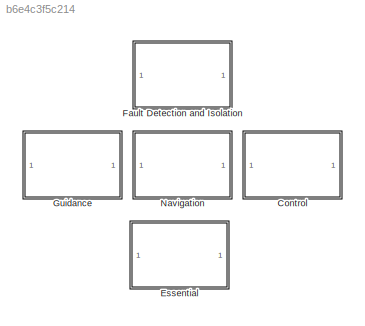
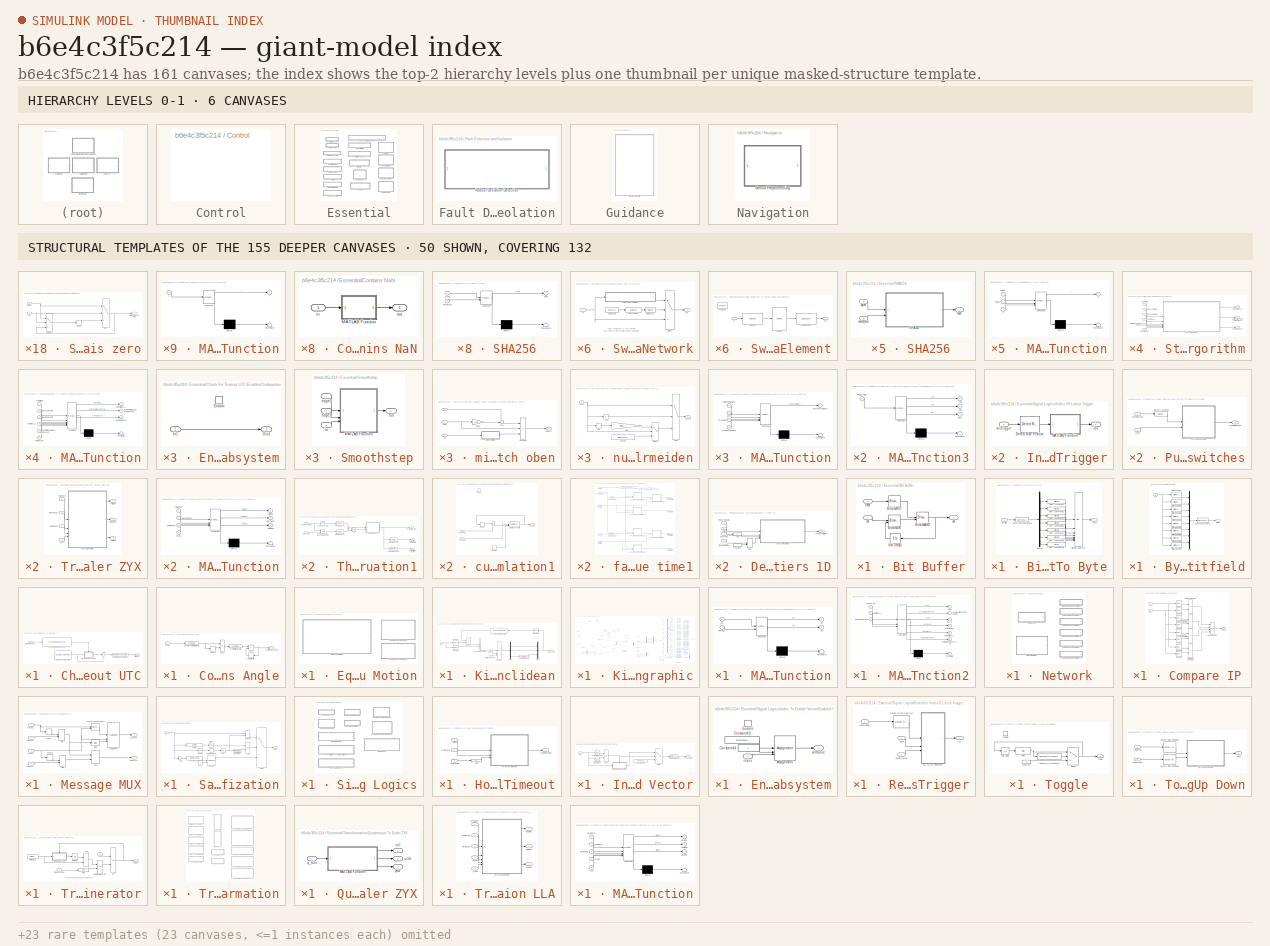
[diagram: thumbnail index - top-2 hierarchy levels (6 canvases) + 50 structural-template representatives of the remaining 155 canvases]
MODEL slx_b6e4c3f5c214
KIND library
CONFIG AbsTol = auto
CONFIG EnableMultiTasking = off
CONFIG FixedStep = auto
CONFIG MaxStep = auto
CONFIG MinStep = auto
CONFIG RelTol = 1e-3
CONFIG SampleTimeConstraint = Unconstrained
CONFIG SolverName = VariableStepAuto
CONFIG StartTime = 0.0
CONFIG StopTime = 10.0
BLOCK [SubSystem] Control
BLOCK [SubSystem] Essential
BLOCK [SubSystem] Essential/Bit Buffer
BLOCK [Reference] Essential/Bit Buffer/BitwiseAND  REF=simulink/Logic and Bit
Operations/Bitwise
Operator
  SourceBlock = simulink/Logic and Bit\nOperations/Bitwise\nOperator
  SourceType = Bitwise Operator
BLOCK [Reference] Essential/Bit Buffer/BitwiseNOT  REF=simulink/Logic and Bit
Operations/Bitwise
Operator
  SourceBlock = simulink/Logic and Bit\nOperations/Bitwise\nOperator
  SourceType = Bitwise Operator
BLOCK [Reference] Essential/Bit Buffer/BitwiseOR  REF=simulink/Logic and Bit
Operations/Bitwise
Operator
  SourceBlock = simulink/Logic and Bit\nOperations/Bitwise\nOperator
  SourceType = Bitwise Operator
BLOCK [UnitDelay] Essential/Bit Buffer/Unit Delay1
  HasFrameUpgradeWarning = on
  SampleTime = -1
BLOCK [Outport] Essential/Bit Buffer/out
  OutDataTypeStr = dataType
BLOCK [Inport] Essential/Bit Buffer/reset
  OutDataTypeStr = dataType
  Port = 2
BLOCK [Inport] Essential/Bit Buffer/set
  OutDataTypeStr = dataType
  PortDimensions = 1
BLOCK [SubSystem] Essential/Bitfield To Byte
BLOCK [Reference] Essential/Bitfield To Byte/Bitwise Operator  REF=simulink/Logic and Bit
Operations/Bitwise
Operator
  SourceBlock = simulink/Logic and Bit\nOperations/Bitwise\nOperator
  SourceType = Bitwise Operator
BLOCK [DataTypeConversion] Essential/Bitfield To Byte/Data Type Conversion
  OutDataTypeStr = uint8
  RndMeth = Floor
  SaturateOnIntegerOverflow = off
BLOCK [Demux] Essential/Bitfield To Byte/Demux
  Outputs = 8
BLOCK [ArithShift] Essential/Bitfield To Byte/Shift Arithmetic
  BitShiftDirection = Left
  BitShiftNumber = 1
  InputPortMap = u0
BLOCK [ArithShift] Essential/Bitfield To Byte/Shift Arithmetic1
  BitShiftDirection = Left
  BitShiftNumber = 2
  InputPortMap = u0
BLOCK [ArithShift] Essential/Bitfield To Byte/Shift Arithmetic2
  BitShiftDirection = Left
  BitShiftNumber = 3
  InputPortMap = u0
BLOCK [ArithShift] Essential/Bitfield To Byte/Shift Arithmetic3
  BitShiftDirection = Left
  BitShiftNumber = 4
  InputPortMap = u0
BLOCK [ArithShift] Essential/Bitfield To Byte/Shift Arithmetic4
  BitShiftDirection = Left
  BitShiftNumber = 5
  InputPortMap = u0
BLOCK [ArithShift] Essential/Bitfield To Byte/Shift Arithmetic5
  BitShiftDirection = Left
  BitShiftNumber = 6
  InputPortMap = u0
BLOCK [ArithShift] Essential/Bitfield To Byte/Shift Arithmetic6
  BitShiftDirection = Left
  BitShiftNumber = 7
  InputPortMap = u0
BLOCK [Inport] Essential/Bitfield To Byte/bitfield
  OutDataTypeStr = boolean
  PortDimensions = 8
BLOCK [Outport] Essential/Bitfield To Byte/byte
  OutDataTypeStr = uint8
  PortDimensions = 1
BLOCK [SubSystem] Essential/Byte To Bitfield
BLOCK [Reference] Essential/Byte To Bitfield/Bitwise Operator  REF=simulink/Logic and Bit
Operations/Bitwise
Operator
  SourceBlock = simulink/Logic and Bit\nOperations/Bitwise\nOperator
  SourceType = Bitwise Operator
BLOCK [Reference] Essential/Byte To Bitfield/Bitwise Operator1  REF=simulink/Logic and Bit
Operations/Bitwise
Operator
  SourceBlock = simulink/Logic and Bit\nOperations/Bitwise\nOperator
  SourceType = Bitwise Operator
BLOCK [Reference] Essential/Byte To Bitfield/Bitwise Operator2  REF=simulink/Logic and Bit
Operations/Bitwise
Operator
  SourceBlock = simulink/Logic and Bit\nOperations/Bitwise\nOperator
  SourceType = Bitwise Operator
BLOCK [Reference] Essential/Byte To Bitfield/Bitwise Operator3  REF=simulink/Logic and Bit
Operations/Bitwise
Operator
  SourceBlock = simulink/Logic and Bit\nOperations/Bitwise\nOperator
  SourceType = Bitwise Operator
BLOCK [Reference] Essential/Byte To Bitfield/Bitwise Operator4  REF=simulink/Logic and Bit
Operations/Bitwise
Operator
  SourceBlock = simulink/Logic and Bit\nOperations/Bitwise\nOperator
  SourceType = Bitwise Operator
BLOCK [Reference] Essential/Byte To Bitfield/Bitwise Operator5  REF=simulink/Logic and Bit
Operations/Bitwise
Operator
  SourceBlock = simulink/Logic and Bit\nOperations/Bitwise\nOperator
  SourceType = Bitwise Operator
BLOCK [Reference] Essential/Byte To Bitfield/Bitwise Operator6  REF=simulink/Logic and Bit
Operations/Bitwise
Operator
  SourceBlock = simulink/Logic and Bit\nOperations/Bitwise\nOperator
  SourceType = Bitwise Operator
BLOCK [Reference] Essential/Byte To Bitfield/Bitwise Operator7  REF=simulink/Logic and Bit
Operations/Bitwise
Operator
  SourceBlock = simulink/Logic and Bit\nOperations/Bitwise\nOperator
  SourceType = Bitwise Operator
BLOCK [DataTypeConversion] Essential/Byte To Bitfield/Data Type Conversion1
  OutDataTypeStr = boolean
  RndMeth = Floor
  SaturateOnIntegerOverflow = off
BLOCK [Mux] Essential/Byte To Bitfield/Mux
  DisplayOption = bar
  Inputs = 8
BLOCK [Outport] Essential/Byte To Bitfield/bitfield
  OutDataTypeStr = boolean
  PortDimensions = 8
BLOCK [Inport] Essential/Byte To Bitfield/byte
  OutDataTypeStr = uint8
  PortDimensions = 1
BLOCK [SubSystem] Essential/Check For Timeout UTC
BLOCK [Reference] Essential/Check For Timeout UTC/Compare To Constant  REF=simulink/Logic and Bit
Operations/Compare
To Constant
  SourceBlock = simulink/Logic and Bit\nOperations/Compare\nTo Constant
  SourceType = Compare To Constant
BLOCK [SubSystem] Essential/Check For Timeout UTC/Enabled Subsystem
  TreatAsAtomicUnit = on
BLOCK [EnablePort] Essential/Check For Timeout UTC/Enabled Subsystem/Enable
BLOCK [Inport] Essential/Check For Timeout UTC/Enabled Subsystem/In1
BLOCK [Outport] Essential/Check For Timeout UTC/Enabled Subsystem/Out1
  InitialOutput = -2*timeout
BLOCK [Reference] Essential/Check For Timeout UTC/Model Execution Time  REF=GenericTarget/Time/Model Execution Time
  SourceBlock = GenericTarget/Time/Model Execution Time
  SourceProductName = Generic Target
BLOCK [Sum] Essential/Check For Timeout UTC/Sum
  Inputs = |-+
BLOCK [Reference] Essential/Check For Timeout UTC/UTC Timestamp Moved On  REF=GenericTarget/Time/UTC Timestamp Moved On
  SourceBlock = GenericTarget/Time/UTC Timestamp Moved On
  SourceProductName = Generic Target
BLOCK [Outport] Essential/Check For Timeout UTC/timeout
  OutDataTypeStr = boolean
  PortDimensions = 1
BLOCK [Inport] Essential/Check For Timeout UTC/timestampUTC
  OutDataTypeStr = double
  PortDimensions = 1
  Unit = s
BLOCK [SubSystem] Essential/Contains NaN
BLOCK [SubSystem] Essential/Contains NaN/MATLAB Function
  ErrorFcn = Stateflow.Translate.translate
  PermitHierarchicalResolution = ExplicitOnly
  SFBlockType = MATLAB Function
  TreatAsAtomicUnit = on
BLOCK [Demux] Essential/Contains NaN/MATLAB Function/ Demux 
  Outputs = 1
BLOCK [S-Function] Essential/Contains NaN/MATLAB Function/ SFunction 
  EnableBusSupport = off
  FunctionName = sf_sfun
  PortCounts = [1 2]
  SFcnIsStateOwnerBlock = off
  SFunctionDeploymentMode = off
  Tag = Stateflow S-Function 15
BLOCK [Terminator] Essential/Contains NaN/MATLAB Function/ Terminator 
BLOCK [Inport] Essential/Contains NaN/MATLAB Function/u
BLOCK [Outport] Essential/Contains NaN/MATLAB Function/y
BLOCK [Inport] Essential/Contains NaN/in
BLOCK [Outport] Essential/Contains NaN/out
  OutDataTypeStr = boolean
  PortDimensions = 1
BLOCK [SubSystem] Essential/Continuous Angle
BLOCK [Sum] Essential/Continuous Angle/Add
  IconShape = rectangular
BLOCK [Sum] Essential/Continuous Angle/Add2
  IconShape = rectangular
  Inputs = +-
BLOCK [Reference] Essential/Continuous Angle/Ensure Symmetrical Input  REF=$bdroot/Essential/Symmetrical Angle
  SourceBlock = $bdroot/Essential/Symmetrical Angle
BLOCK [Memory] Essential/Continuous Angle/Memory1
BLOCK [Memory] Essential/Continuous Angle/Output Buffer
BLOCK [Reference] Essential/Continuous Angle/Symmetrical Angle  REF=$bdroot/Essential/Symmetrical Angle
  SourceBlock = $bdroot/Essential/Symmetrical Angle
BLOCK [Inport] Essential/Continuous Angle/angle
  OutDataTypeStr = double
  Unit = rad
BLOCK [Outport] Essential/Continuous Angle/continuousAngle
  OutDataTypeStr = double
  Unit = rad
BLOCK [SubSystem] Essential/Equations of Motion
BLOCK [SubSystem] Essential/Equations of Motion/Kinematic 3DoF Euclidean
BLOCK [Demux] Essential/Equations of Motion/Kinematic 3DoF Euclidean/Demux
  Outputs = 3
BLOCK [Integrator] Essential/Equations of Motion/Kinematic 3DoF Euclidean/Integrator
  ExternalReset = level
  InitialConditionSource = external
BLOCK [Mux] Essential/Equations of Motion/Kinematic 3DoF Euclidean/Mux
  DisplayOption = bar
  Inputs = 3
BLOCK [Product] Essential/Equations of Motion/Kinematic 3DoF Euclidean/Product
  Multiplication = Matrix(*)
BLOCK [Selector] Essential/Equations of Motion/Kinematic 3DoF Euclidean/Selector
  IndexOptions = Index vector (dialog)
  Indices = 1:2
  InputPortWidth = 3
  OutputSizes = 1
BLOCK [Selector] Essential/Equations of Motion/Kinematic 3DoF Euclidean/Selector1
  IndexOptions = Index vector (dialog)
  Indices = 3
  InputPortWidth = 3
  OutputSizes = 1
BLOCK [Selector] Essential/Equations of Motion/Kinematic 3DoF Euclidean/Selector2
  IndexOptions = Index vector (dialog)
  Indices = 3
  InputPortWidth = 3
  OutputSizes = 1
BLOCK [Reference] Essential/Equations of Motion/Kinematic 3DoF Euclidean/Symmetrical Angle  REF=$bdroot/Essential/Symmetrical Angle
  SourceBlock = $bdroot/Essential/Symmetrical Angle
BLOCK [Concatenate] Essential/Equations of Motion/Kinematic 3DoF Euclidean/Vector Concatenate
BLOCK [Reference] Essential/Equations of Motion/Kinematic 3DoF Euclidean/Yaw To Rotation Matrix  REF=$bdroot/Essential/Transformation/Yaw To Rotation Matrix
  LibrarySourceBlock = AVControl/Transformation/Yaw To Rotation Matrix
  SourceBlock = $bdroot/Essential/Transformation/Yaw To Rotation Matrix
BLOCK [Inport] Essential/Equations of Motion/Kinematic 3DoF Euclidean/initialPoseXYPsi
  OutDataTypeStr = double
  Port = 2
  PortDimensions = 3
BLOCK [Outport] Essential/Equations of Motion/Kinematic 3DoF Euclidean/poseXYPsi
  OutDataTypeStr = double
  PortDimensions = 3
BLOCK [Inport] Essential/Equations of Motion/Kinematic 3DoF Euclidean/reset
  OutDataTypeStr = boolean
  Port = 3
  PortDimensions = 1
BLOCK [Inport] Essential/Equations of Motion/Kinematic 3DoF Euclidean/uvr
  OutDataTypeStr = double
  PortDimensions = 3
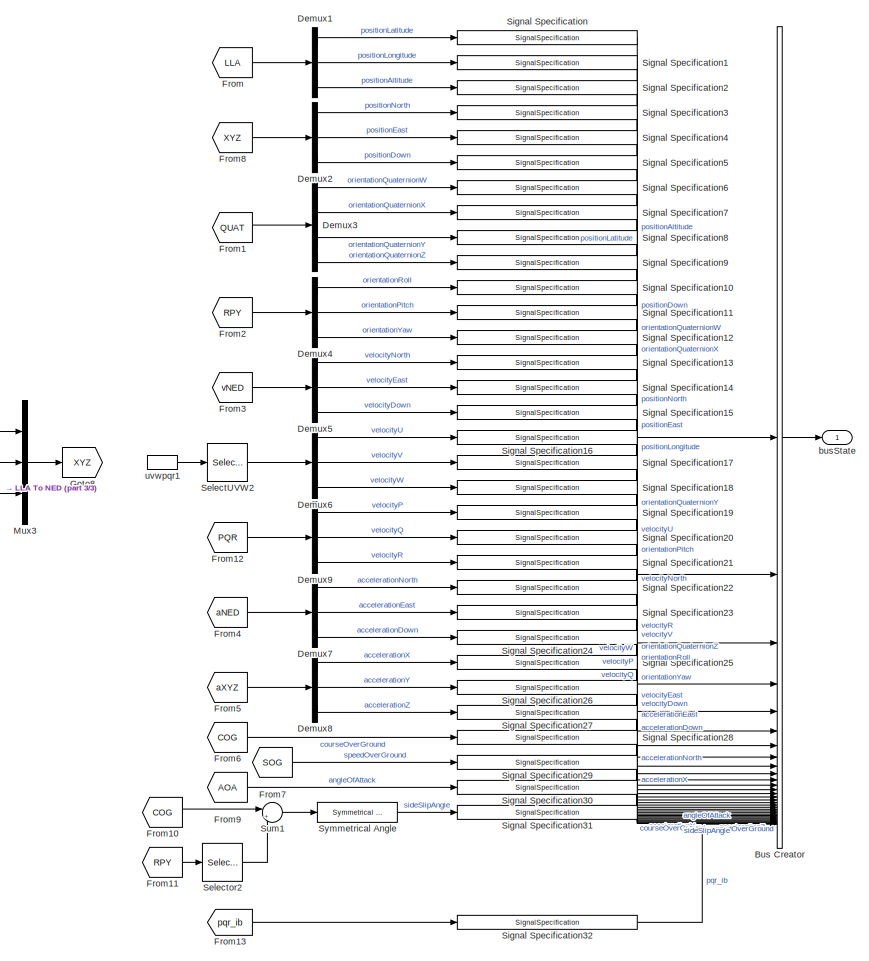
[diagram: Essential/Equations of Motion/Kinematic 6DoF Geographic - part 1/3, right side, full height]
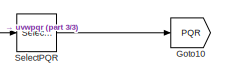
[diagram: Essential/Equations of Motion/Kinematic 6DoF Geographic - part 2/3, top left region]
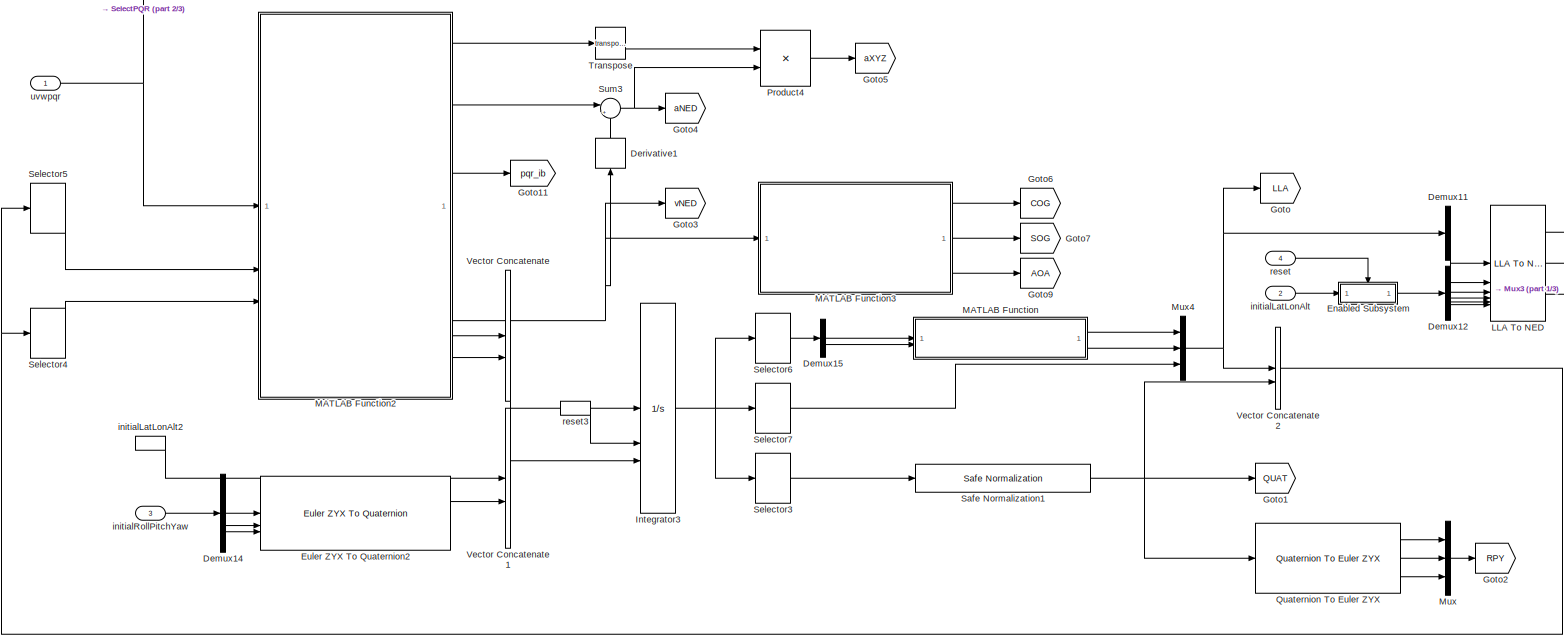
[diagram: Essential/Equations of Motion/Kinematic 6DoF Geographic - part 3/3, middle left region]
BLOCK [SubSystem] Essential/Equations of Motion/Kinematic 6DoF Geographic
BLOCK [BusCreator] Essential/Equations of Motion/Kinematic 6DoF Geographic/Bus Creator
  DisplayOption = bar
  InheritFromInputs = on
  Inputs = 33
BLOCK [Demux] Essential/Equations of Motion/Kinematic 6DoF Geographic/Demux1
  Outputs = 3
BLOCK [Demux] Essential/Equations of Motion/Kinematic 6DoF Geographic/Demux11
  Outputs = 3
BLOCK [Demux] Essential/Equations of Motion/Kinematic 6DoF Geographic/Demux12
  Outputs = 3
BLOCK [Demux] Essential/Equations of Motion/Kinematic 6DoF Geographic/Demux14
  Outputs = 3
BLOCK [Demux] Essential/Equations of Motion/Kinematic 6DoF Geographic/Demux15
  Outputs = 2
BLOCK [Demux] Essential/Equations of Motion/Kinematic 6DoF Geographic/Demux2
  Outputs = 3
BLOCK [Demux] Essential/Equations of Motion/Kinematic 6DoF Geographic/Demux3
BLOCK [Demux] Essential/Equations of Motion/Kinematic 6DoF Geographic/Demux4
  Outputs = 3
BLOCK [Demux] Essential/Equations of Motion/Kinematic 6DoF Geographic/Demux5
  Outputs = 3
BLOCK [Demux] Essential/Equations of Motion/Kinematic 6DoF Geographic/Demux6
  Outputs = 3
BLOCK [Demux] Essential/Equations of Motion/Kinematic 6DoF Geographic/Demux7
  Outputs = 3
BLOCK [Demux] Essential/Equations of Motion/Kinematic 6DoF Geographic/Demux8
  Outputs = 3
BLOCK [Demux] Essential/Equations of Motion/Kinematic 6DoF Geographic/Demux9
  Outputs = 3
BLOCK [Derivative] Essential/Equations of Motion/Kinematic 6DoF Geographic/Derivative1
  NameLocation = right
BLOCK [SubSystem] Essential/Equations of Motion/Kinematic 6DoF Geographic/Enabled Subsystem
  TreatAsAtomicUnit = on
BLOCK [EnablePort] Essential/Equations of Motion/Kinematic 6DoF Geographic/Enabled Subsystem/Enable
BLOCK [Inport] Essential/Equations of Motion/Kinematic 6DoF Geographic/Enabled Subsystem/In1
BLOCK [Outport] Essential/Equations of Motion/Kinematic 6DoF Geographic/Enabled Subsystem/Out1
  VectorParamsAs1DForOutWhenUnconnected = off
BLOCK [Reference] Essential/Equations of Motion/Kinematic 6DoF Geographic/Euler ZYX To Quaternion2  REF=$bdroot/Essential/Transformation/Euler ZYX To Quaternion
  LibrarySourceBlock = AVControl/Transformation/Euler ZYX To Quaternion
  SourceBlock = $bdroot/Essential/Transformation/Euler ZYX To Quaternion
BLOCK [From] Essential/Equations of Motion/Kinematic 6DoF Geographic/From
  GotoTag = LLA
BLOCK [From] Essential/Equations of Motion/Kinematic 6DoF Geographic/From1
  GotoTag = QUAT
BLOCK [From] Essential/Equations of Motion/Kinematic 6DoF Geographic/From10
  GotoTag = COG
BLOCK [From] Essential/Equations of Motion/Kinematic 6DoF Geographic/From11
  GotoTag = RPY
BLOCK [From] Essential/Equations of Motion/Kinematic 6DoF Geographic/From12
  GotoTag = PQR
BLOCK [From] Essential/Equations of Motion/Kinematic 6DoF Geographic/From13
  GotoTag = pqr_ib
BLOCK [From] Essential/Equations of Motion/Kinematic 6DoF Geographic/From2
  GotoTag = RPY
BLOCK [From] Essential/Equations of Motion/Kinematic 6DoF Geographic/From3
  GotoTag = vNED
BLOCK [From] Essential/Equations of Motion/Kinematic 6DoF Geographic/From4
  GotoTag = aNED
BLOCK [From] Essential/Equations of Motion/Kinematic 6DoF Geographic/From5
  GotoTag = aXYZ
BLOCK [From] Essential/Equations of Motion/Kinematic 6DoF Geographic/From6
  GotoTag = COG
BLOCK [From] Essential/Equations of Motion/Kinematic 6DoF Geographic/From7
  GotoTag = SOG
BLOCK [From] Essential/Equations of Motion/Kinematic 6DoF Geographic/From8
  GotoTag = XYZ
BLOCK [From] Essential/Equations of Motion/Kinematic 6DoF Geographic/From9
  GotoTag = AOA
BLOCK [Goto] Essential/Equations of Motion/Kinematic 6DoF Geographic/Goto
  GotoTag = LLA
BLOCK [Goto] Essential/Equations of Motion/Kinematic 6DoF Geographic/Goto1
  GotoTag = QUAT
BLOCK [Goto] Essential/Equations of Motion/Kinematic 6DoF Geographic/Goto10
  GotoTag = PQR
BLOCK [Goto] Essential/Equations of Motion/Kinematic 6DoF Geographic/Goto11
  GotoTag = pqr_ib
BLOCK [Goto] Essential/Equations of Motion/Kinematic 6DoF Geographic/Goto2
  GotoTag = RPY
BLOCK [Goto] Essential/Equations of Motion/Kinematic 6DoF Geographic/Goto3
  GotoTag = vNED
BLOCK [Goto] Essential/Equations of Motion/Kinematic 6DoF Geographic/Goto4
  GotoTag = aNED
BLOCK [Goto] Essential/Equations of Motion/Kinematic 6DoF Geographic/Goto5
  GotoTag = aXYZ
BLOCK [Goto] Essential/Equations of Motion/Kinematic 6DoF Geographic/Goto6
  GotoTag = COG
BLOCK [Goto] Essential/Equations of Motion/Kinematic 6DoF Geographic/Goto7
  GotoTag = SOG
BLOCK [Goto] Essential/Equations of Motion/Kinematic 6DoF Geographic/Goto8
  GotoTag = XYZ
BLOCK [Goto] Essential/Equations of Motion/Kinematic 6DoF Geographic/Goto9
  GotoTag = AOA
BLOCK [Integrator] Essential/Equations of Motion/Kinematic 6DoF Geographic/Integrator3
  ExternalReset = level
  InitialConditionSource = external
BLOCK [Reference] Essential/Equations of Motion/Kinematic 6DoF Geographic/LLA To NED  REF=$bdroot/Essential/Transformation/LLA To NED
  LibrarySourceBlock = AVControl/Transformation/LLA To NED
  SourceBlock = $bdroot/Essential/Transformation/LLA To NED
BLOCK [SubSystem] Essential/Equations of Motion/Kinematic 6DoF Geographic/MATLAB Function
  ErrorFcn = Stateflow.Translate.translate
  LibrarySourceBlock = simulink/User-Defined\nFunctions/MATLAB Function
  PermitHierarchicalResolution = ExplicitOnly
  SFBlockType = MATLAB Function
  TreatAsAtomicUnit = on
BLOCK [Demux] Essential/Equations of Motion/Kinematic 6DoF Geographic/MATLAB Function/ Demux 
  Outputs = 1
BLOCK [S-Function] Essential/Equations of Motion/Kinematic 6DoF Geographic/MATLAB Function/ SFunction 
  EnableBusSupport = off
  FunctionName = sf_sfun
  PortCounts = [2 3]
  SFcnIsStateOwnerBlock = off
  SFunctionDeploymentMode = off
  Tag = Stateflow S-Function 20
BLOCK [Terminator] Essential/Equations of Motion/Kinematic 6DoF Geographic/MATLAB Function/ Terminator 
BLOCK [Inport] Essential/Equations of Motion/Kinematic 6DoF Geographic/MATLAB Function/lambda
  Port = 2
BLOCK [Outport] Essential/Equations of Motion/Kinematic 6DoF Geographic/MATLAB Function/lat
BLOCK [Outport] Essential/Equations of Motion/Kinematic 6DoF Geographic/MATLAB Function/lon
  Port = 2
BLOCK [Inport] Essential/Equations of Motion/Kinematic 6DoF Geographic/MATLAB Function/phi
BLOCK [SubSystem] Essential/Equations of Motion/Kinematic 6DoF Geographic/MATLAB Function2
  ErrorFcn = Stateflow.Translate.translate
  PermitHierarchicalResolution = ExplicitOnly
  SFBlockType = MATLAB Function
  TreatAsAtomicUnit = on
BLOCK [Demux] Essential/Equations of Motion/Kinematic 6DoF Geographic/MATLAB Function2/ Demux 
  Outputs = 1
BLOCK [S-Function] Essential/Equations of Motion/Kinematic 6DoF Geographic/MATLAB Function2/ SFunction 
  EnableBusSupport = off
  FunctionName = sf_sfun
  PortCounts = [3 7]
  SFcnIsStateOwnerBlock = off
  SFunctionDeploymentMode = off
  Tag = Stateflow S-Function 39
BLOCK [Terminator] Essential/Equations of Motion/Kinematic 6DoF Geographic/MATLAB Function2/ Terminator 
BLOCK [Outport] Essential/Equations of Motion/Kinematic 6DoF Geographic/MATLAB Function2/Cb2n
BLOCK [Outport] Essential/Equations of Motion/Kinematic 6DoF Geographic/MATLAB Function2/accelerationGravityCoriolis
  Port = 2
BLOCK [Outport] Essential/Equations of Motion/Kinematic 6DoF Geographic/MATLAB Function2/dotPositionLLA
  Port = 5
BLOCK [Outport] Essential/Equations of Motion/Kinematic 6DoF Geographic/MATLAB Function2/dotQuaternionWXYZ
  Port = 6
BLOCK [Inport] Essential/Equations of Motion/Kinematic 6DoF Geographic/MATLAB Function2/positionLLA
  Port = 2
BLOCK [Outport] Essential/Equations of Motion/Kinematic 6DoF Geographic/MATLAB Function2/pqr_ib
  Port = 3
BLOCK [Inport] Essential/Equations of Motion/Kinematic 6DoF Geographic/MATLAB Function2/quaternionWXYZ
  Port = 3
BLOCK [Inport] Essential/Equations of Motion/Kinematic 6DoF Geographic/MATLAB Function2/uvwpqr_eb
BLOCK [Outport] Essential/Equations of Motion/Kinematic 6DoF Geographic/MATLAB Function2/velocityNED
  Port = 4
BLOCK [SubSystem] Essential/Equations of Motion/Kinematic 6DoF Geographic/MATLAB Function3
  ErrorFcn = Stateflow.Translate.translate
  PermitHierarchicalResolution = ExplicitOnly
  SFBlockType = MATLAB Function
  TreatAsAtomicUnit = on
BLOCK [Demux] Essential/Equations of Motion/Kinematic 6DoF Geographic/MATLAB Function3/ Demux 
  Outputs = 1
BLOCK [S-Function] Essential/Equations of Motion/Kinematic 6DoF Geographic/MATLAB Function3/ SFunction 
  EnableBusSupport = off
  FunctionName = sf_sfun
  PortCounts = [1 4]
  SFcnIsStateOwnerBlock = off
  SFunctionDeploymentMode = off
  Tag = Stateflow S-Function 40
BLOCK [Terminator] Essential/Equations of Motion/Kinematic 6DoF Geographic/MATLAB Function3/ Terminator 
BLOCK [Outport] Essential/Equations of Motion/Kinematic 6DoF Geographic/MATLAB Function3/aoa
  Port = 3
  VectorParamsAs1DForOutWhenUnconnected = off
BLOCK [Outport] Essential/Equations of Motion/Kinematic 6DoF Geographic/MATLAB Function3/cog
  VectorParamsAs1DForOutWhenUnconnected = off
BLOCK [Outport] Essential/Equations of Motion/Kinematic 6DoF Geographic/MATLAB Function3/sog
  Port = 2
  VectorParamsAs1DForOutWhenUnconnected = off
BLOCK [Inport] Essential/Equations of Motion/Kinematic 6DoF Geographic/MATLAB Function3/velocityNED
BLOCK [Mux] Essential/Equations of Motion/Kinematic 6DoF Geographic/Mux
  DisplayOption = bar
  Inputs = 3
BLOCK [Mux] Essential/Equations of Motion/Kinematic 6DoF Geographic/Mux3
  DisplayOption = bar
  Inputs = 3
BLOCK [Mux] Essential/Equations of Motion/Kinematic 6DoF Geographic/Mux4
  DisplayOption = bar
  Inputs = 3
BLOCK [Product] Essential/Equations of Motion/Kinematic 6DoF Geographic/Product4
  Multiplication = Matrix(*)
BLOCK [Reference] Essential/Equations of Motion/Kinematic 6DoF Geographic/Quaternion To Euler ZYX  REF=$bdroot/Essential/Transformation/Quaternion To Euler ZYX
  LibrarySourceBlock = AVControl/Transformation/Quaternion To Euler ZYX
  SourceBlock = $bdroot/Essential/Transformation/Quaternion To Euler ZYX
BLOCK [Reference] Essential/Equations of Motion/Kinematic 6DoF Geographic/Safe Normalization1  REF=$bdroot/Essential/Safe Normalization
  SourceBlock = $bdroot/Essential/Safe Normalization
BLOCK [Selector] Essential/Equations of Motion/Kinematic 6DoF Geographic/SelectPQR
  IndexOptions = Index vector (dialog)
  Indices = [4:6]
  InputPortWidth = 6
  OutputSizes = 1
BLOCK [Selector] Essential/Equations of Motion/Kinematic 6DoF Geographic/SelectUVW2
  IndexOptions = Index vector (dialog)
  Indices = [1:3]
  InputPortWidth = 6
  OutputSizes = 1
BLOCK [Selector] Essential/Equations of Motion/Kinematic 6DoF Geographic/Selector2
  IndexOptions = Index vector (dialog)
  Indices = 3
  InputPortWidth = 3
  OutputSizes = 1
BLOCK [Selector] Essential/Equations of Motion/Kinematic 6DoF Geographic/Selector3
  IndexOptions = Index vector (dialog)
  Indices = [4:7]
  InputPortWidth = 7
  OutputSizes = 1
BLOCK [Selector] Essential/Equations of Motion/Kinematic 6DoF Geographic/Selector4
  IndexOptions = Index vector (dialog)
  Indices = [4:7]
  InputPortWidth = 7
  OutputSizes = 1
BLOCK [Selector] Essential/Equations of Motion/Kinematic 6DoF Geographic/Selector5
  IndexOptions = Index vector (dialog)
  Indices = [1:3]
  InputPortWidth = 7
  OutputSizes = 1
BLOCK [Selector] Essential/Equations of Motion/Kinematic 6DoF Geographic/Selector6
  IndexOptions = Index vector (dialog)
  Indices = [1:2]
  InputPortWidth = 7
  OutputSizes = 1
BLOCK [Selector] Essential/Equations of Motion/Kinematic 6DoF Geographic/Selector7
  IndexOptions = Index vector (dialog)
  Indices = 3
  InputPortWidth = 7
  OutputSizes = 1
BLOCK [SignalSpecification] Essential/Equations of Motion/Kinematic 6DoF Geographic/Signal Specification
  Dimensions = 1
  OutDataTypeStr = double
  SignalType = real
  Unit = rad
BLOCK [SignalSpecification] Essential/Equations of Motion/Kinematic 6DoF Geographic/Signal Specification1
  Dimensions = 1
  OutDataTypeStr = double
  SignalType = real
  Unit = rad
BLOCK [SignalSpecification] Essential/Equations of Motion/Kinematic 6DoF Geographic/Signal Specification10
  Dimensions = 1
  OutDataTypeStr = double
  SignalType = real
  Unit = rad
BLOCK [SignalSpecification] Essential/Equations of Motion/Kinematic 6DoF Geographic/Signal Specification11
  Dimensions = 1
  OutDataTypeStr = double
  SignalType = real
  Unit = rad
BLOCK [SignalSpecification] Essential/Equations of Motion/Kinematic 6DoF Geographic/Signal Specification12
  Dimensions = 1
  OutDataTypeStr = double
  SignalType = real
  Unit = rad
BLOCK [SignalSpecification] Essential/Equations of Motion/Kinematic 6DoF Geographic/Signal Specification13
  Dimensions = 1
  OutDataTypeStr = double
  SignalType = real
  Unit = m/s
BLOCK [SignalSpecification] Essential/Equations of Motion/Kinematic 6DoF Geographic/Signal Specification14
  Dimensions = 1
  OutDataTypeStr = double
  SignalType = real
  Unit = m/s
BLOCK [SignalSpecification] Essential/Equations of Motion/Kinematic 6DoF Geographic/Signal Specification15
  Dimensions = 1
  OutDataTypeStr = double
  SignalType = real
  Unit = m/s
BLOCK [SignalSpecification] Essential/Equations of Motion/Kinematic 6DoF Geographic/Signal Specification16
  Dimensions = 1
  OutDataTypeStr = double
  SignalType = real
  Unit = m/s
BLOCK [SignalSpecification] Essential/Equations of Motion/Kinematic 6DoF Geographic/Signal Specification17
  Dimensions = 1
  OutDataTypeStr = double
  SignalType = real
  Unit = m/s
BLOCK [SignalSpecification] Essential/Equations of Motion/Kinematic 6DoF Geographic/Signal Specification18
  Dimensions = 1
  OutDataTypeStr = double
  SignalType = real
  Unit = m/s
BLOCK [SignalSpecification] Essential/Equations of Motion/Kinematic 6DoF Geographic/Signal Specification19
  Dimensions = 1
  OutDataTypeStr = double
  SignalType = real
  Unit = rad/s
BLOCK [SignalSpecification] Essential/Equations of Motion/Kinematic 6DoF Geographic/Signal Specification2
  Dimensions = 1
  OutDataTypeStr = double
  SignalType = real
  Unit = m
BLOCK [SignalSpecification] Essential/Equations of Motion/Kinematic 6DoF Geographic/Signal Specification20
  Dimensions = 1
  OutDataTypeStr = double
  SignalType = real
  Unit = rad/s
BLOCK [SignalSpecification] Essential/Equations of Motion/Kinematic 6DoF Geographic/Signal Specification21
  Dimensions = 1
  OutDataTypeStr = double
  SignalType = real
  Unit = rad/s
BLOCK [SignalSpecification] Essential/Equations of Motion/Kinematic 6DoF Geographic/Signal Specification22
  Dimensions = 1
  OutDataTypeStr = double
  SignalType = real
  Unit = m/s^2
BLOCK [SignalSpecification] Essential/Equations of Motion/Kinematic 6DoF Geographic/Signal Specification23
  Dimensions = 1
  OutDataTypeStr = double
  SignalType = real
  Unit = m/s^2
BLOCK [SignalSpecification] Essential/Equations of Motion/Kinematic 6DoF Geographic/Signal Specification24
  Dimensions = 1
  OutDataTypeStr = double
  SignalType = real
  Unit = m/s^2
BLOCK [SignalSpecification] Essential/Equations of Motion/Kinematic 6DoF Geographic/Signal Specification25
  Dimensions = 1
  OutDataTypeStr = double
  SignalType = real
  Unit = m/s^2
BLOCK [SignalSpecification] Essential/Equations of Motion/Kinematic 6DoF Geographic/Signal Specification26
  Dimensions = 1
  OutDataTypeStr = double
  SignalType = real
  Unit = m/s^2
BLOCK [SignalSpecification] Essential/Equations of Motion/Kinematic 6DoF Geographic/Signal Specification27
  Dimensions = 1
  OutDataTypeStr = double
  SignalType = real
  Unit = m/s^2
BLOCK [SignalSpecification] Essential/Equations of Motion/Kinematic 6DoF Geographic/Signal Specification28
  Dimensions = 1
  OutDataTypeStr = double
  SignalType = real
  Unit = rad
BLOCK [SignalSpecification] Essential/Equations of Motion/Kinematic 6DoF Geographic/Signal Specification29
  Dimensions = 1
  OutDataTypeStr = double
  SignalType = real
  Unit = m/s
BLOCK [SignalSpecification] Essential/Equations of Motion/Kinematic 6DoF Geographic/Signal Specification3
  Dimensions = 1
  OutDataTypeStr = double
  SignalType = real
  Unit = m
BLOCK [SignalSpecification] Essential/Equations of Motion/Kinematic 6DoF Geographic/Signal Specification30
  Dimensions = 1
  OutDataTypeStr = double
  SignalType = real
  Unit = rad
BLOCK [SignalSpecification] Essential/Equations of Motion/Kinematic 6DoF Geographic/Signal Specification31
  Dimensions = 1
  OutDataTypeStr = double
  SignalType = real
  Unit = rad
BLOCK [SignalSpecification] Essential/Equations of Motion/Kinematic 6DoF Geographic/Signal Specification32
  Dimensions = 3
  OutDataTypeStr = double
  SignalType = real
  Unit = rad/s
BLOCK [SignalSpecification] Essential/Equations of Motion/Kinematic 6DoF Geographic/Signal Specification4
  Dimensions = 1
  OutDataTypeStr = double
  SignalType = real
  Unit = m
BLOCK [SignalSpecification] Essential/Equations of Motion/Kinematic 6DoF Geographic/Signal Specification5
  Dimensions = 1
  OutDataTypeStr = double
  SignalType = real
  Unit = m
BLOCK [SignalSpecification] Essential/Equations of Motion/Kinematic 6DoF Geographic/Signal Specification6
  Dimensions = 1
  OutDataTypeStr = double
  SignalType = real
BLOCK [SignalSpecification] Essential/Equations of Motion/Kinematic 6DoF Geographic/Signal Specification7
  Dimensions = 1
  OutDataTypeStr = double
  SignalType = real
BLOCK [SignalSpecification] Essential/Equations of Motion/Kinematic 6DoF Geographic/Signal Specification8
  Dimensions = 1
  OutDataTypeStr = double
  SignalType = real
BLOCK [SignalSpecification] Essential/Equations of Motion/Kinematic 6DoF Geographic/Signal Specification9
  Dimensions = 1
  OutDataTypeStr = double
  SignalType = real
BLOCK [Sum] Essential/Equations of Motion/Kinematic 6DoF Geographic/Sum1
  Inputs = |+-
BLOCK [Sum] Essential/Equations of Motion/Kinematic 6DoF Geographic/Sum3
  Inputs = |++
BLOCK [Reference] Essential/Equations of Motion/Kinematic 6DoF Geographic/Symmetrical Angle  REF=$bdroot/Essential/Symmetrical Angle
  SourceBlock = $bdroot/Essential/Symmetrical Angle
BLOCK [Math] Essential/Equations of Motion/Kinematic 6DoF Geographic/Transpose
  Operator = transpose
BLOCK [Concatenate] Essential/Equations of Motion/Kinematic 6DoF Geographic/Vector Concatenate
BLOCK [Concatenate] Essential/Equations of Motion/Kinematic 6DoF Geographic/Vector Concatenate1
  NameLocation = right
BLOCK [Concatenate] Essential/Equations of Motion/Kinematic 6DoF Geographic/Vector Concatenate2
  NameLocation = right
BLOCK [Outport] Essential/Equations of Motion/Kinematic 6DoF Geographic/busState
  VectorParamsAs1DForOutWhenUnconnected = off
BLOCK [Inport] Essential/Equations of Motion/Kinematic 6DoF Geographic/initialLatLonAlt
  OutDataTypeStr = double
  Port = 2
  PortDimensions = 3
BLOCK [InportShadow] Essential/Equations of Motion/Kinematic 6DoF Geographic/initialLatLonAlt2
  OutDataTypeStr = double
  Port = 2
  PortDimensions = 3
BLOCK [Inport] Essential/Equations of Motion/Kinematic 6DoF Geographic/initialRollPitchYaw
  OutDataTypeStr = double
  Port = 3
  PortDimensions = 3
  Unit = rad
BLOCK [Inport] Essential/Equations of Motion/Kinematic 6DoF Geographic/reset
  OutDataTypeStr = boolean
  Port = 4
  PortDimensions = 1
BLOCK [InportShadow] Essential/Equations of Motion/Kinematic 6DoF Geographic/reset3
  OutDataTypeStr = boolean
  Port = 4
  PortDimensions = 1
BLOCK [Inport] Essential/Equations of Motion/Kinematic 6DoF Geographic/uvwpqr
  OutDataTypeStr = double
  PortDimensions = 6
BLOCK [InportShadow] Essential/Equations of Motion/Kinematic 6DoF Geographic/uvwpqr1
  OutDataTypeStr = double
  PortDimensions = 6
BLOCK [SubSystem] Essential/Equations of Motion/Strapdown Algorithm
BLOCK [SubSystem] Essential/Equations of Motion/Strapdown Algorithm/MATLAB Function
  ErrorFcn = Stateflow.Translate.translate
  PermitHierarchicalResolution = ExplicitOnly
  SFBlockType = MATLAB Function
  TreatAsAtomicUnit = on
BLOCK [Demux] Essential/Equations of Motion/Strapdown Algorithm/MATLAB Function/ Demux 
  Outputs = 1
BLOCK [S-Function] Essential/Equations of Motion/Strapdown Algorithm/MATLAB Function/ SFunction 
  EnableBusSupport = off
  FunctionName = sf_sfun
  PortCounts = [6 4]
  SFcnIsStateOwnerBlock = off
  SFunctionDeploymentMode = off
  Tag = Stateflow S-Function 24
BLOCK [Terminator] Essential/Equations of Motion/Strapdown Algorithm/MATLAB Function/ Terminator 
BLOCK [Inport] Essential/Equations of Motion/Strapdown Algorithm/MATLAB Function/imuAcceleration
  Port = 2
BLOCK [Inport] Essential/Equations of Motion/Strapdown Algorithm/MATLAB Function/imuAngularRate
  Port = 3
BLOCK [Inport] Essential/Equations of Motion/Strapdown Algorithm/MATLAB Function/orientationQuaternionWXYZ
  Port = 5
BLOCK [Outport] Essential/Equations of Motion/Strapdown Algorithm/MATLAB Function/outOrientationQuaternionWXYZ
  Port = 2
BLOCK [Outport] Essential/Equations of Motion/Strapdown Algorithm/MATLAB Function/outPositionLLA
BLOCK [Outport] Essential/Equations of Motion/Strapdown Algorithm/MATLAB Function/outVelocityUVW
  Port = 3
BLOCK [Inport] Essential/Equations of Motion/Strapdown Algorithm/MATLAB Function/positionLLA
  Port = 4
BLOCK [Inport] Essential/Equations of Motion/Strapdown Algorithm/MATLAB Function/sampletime
BLOCK [Inport] Essential/Equations of Motion/Strapdown Algorithm/MATLAB Function/velocityUVW
  Port = 6
BLOCK [Inport] Essential/Equations of Motion/Strapdown Algorithm/imuAcceleration
  OutDataTypeStr = double
  Port = 2
  PortDimensions = 3
  Unit = m/s^2
BLOCK [Inport] Essential/Equations of Motion/Strapdown Algorithm/imuAngularRate
  OutDataTypeStr = double
  Port = 3
  PortDimensions = 3
  Unit = rad/s
BLOCK [Inport] Essential/Equations of Motion/Strapdown Algorithm/orientationQuaternionWXYZ
  OutDataTypeStr = double
  Port = 5
  PortDimensions = 4
BLOCK [Outport] Essential/Equations of Motion/Strapdown Algorithm/outOrientationQuaternionWXYZ
  OutDataTypeStr = double
  Port = 2
  PortDimensions = 4
BLOCK [Outport] Essential/Equations of Motion/Strapdown Algorithm/outPositionLLA
  OutDataTypeStr = double
  PortDimensions = 3
BLOCK [Outport] Essential/Equations of Motion/Strapdown Algorithm/outVelocityUVW
  OutDataTypeStr = double
  Port = 3
  PortDimensions = 3
  Unit = m/s
BLOCK [Inport] Essential/Equations of Motion/Strapdown Algorithm/positionLLA
  OutDataTypeStr = double
  Port = 4
  PortDimensions = 3
BLOCK [Inport] Essential/Equations of Motion/Strapdown Algorithm/sampletime
  OutDataTypeStr = double
  PortDimensions = 1
  Unit = s
BLOCK [Inport] Essential/Equations of Motion/Strapdown Algorithm/velocityUVW
  OutDataTypeStr = double
  Port = 6
  PortDimensions = 3
  Unit = m/s
BLOCK [SubSystem] Essential/Is Finite
BLOCK [SubSystem] Essential/Is Finite/MATLAB Function
  ErrorFcn = Stateflow.Translate.translate
  PermitHierarchicalResolution = ExplicitOnly
  SFBlockType = MATLAB Function
  TreatAsAtomicUnit = on
BLOCK [Demux] Essential/Is Finite/MATLAB Function/ Demux 
  Outputs = 1
BLOCK [S-Function] Essential/Is Finite/MATLAB Function/ SFunction 
  EnableBusSupport = off
  FunctionName = sf_sfun
  PortCounts = [1 2]
  SFcnIsStateOwnerBlock = off
  SFunctionDeploymentMode = off
  Tag = Stateflow S-Function 14
BLOCK [Terminator] Essential/Is Finite/MATLAB Function/ Terminator 
BLOCK [Inport] Essential/Is Finite/MATLAB Function/u
BLOCK [Outport] Essential/Is Finite/MATLAB Function/y
BLOCK [Inport] Essential/Is Finite/in
  OutDataTypeStr = double
BLOCK [Outport] Essential/Is Finite/out
  OutDataTypeStr = boolean
BLOCK [SubSystem] Essential/Network
BLOCK [SubSystem] Essential/Network/Compare IP
BLOCK [Inport] Essential/Network/Compare IP/IP1
  OutDataTypeStr = uint8
  PortDimensions = 4
BLOCK [Inport] Essential/Network/Compare IP/IP2
  OutDataTypeStr = uint8
  Port = 2
  PortDimensions = 4
BLOCK [Logic] Essential/Network/Compare IP/Logical Operator
  AllPortsSameDT = off
  Inputs = 4
  OutDataTypeStr = boolean
BLOCK [RelationalOperator] Essential/Network/Compare IP/Relational Operator
  Operator = ==
  OutDataTypeStr = boolean
  RndMeth = Simplest
BLOCK [RelationalOperator] Essential/Network/Compare IP/Relational Operator1
  Operator = ==
  OutDataTypeStr = boolean
  RndMeth = Simplest
BLOCK [RelationalOperator] Essential/Network/Compare IP/Relational Operator2
  Operator = ==
  OutDataTypeStr = boolean
  RndMeth = Simplest
BLOCK [RelationalOperator] Essential/Network/Compare IP/Relational Operator3
  Operator = ==
  OutDataTypeStr = boolean
  RndMeth = Simplest
BLOCK [Selector] Essential/Network/Compare IP/Selector
  IndexOptions = Index vector (dialog)
  Indices = 1
  InputPortWidth = 4
  OutputSizes = 1
BLOCK [Selector] Essential/Network/Compare IP/Selector1
  IndexOptions = Index vector (dialog)
  Indices = 1
  InputPortWidth = 4
  OutputSizes = 1
BLOCK [Selector] Essential/Network/Compare IP/Selector2
  IndexOptions = Index vector (dialog)
  Indices = 2
  InputPortWidth = 4
  OutputSizes = 1
BLOCK [Selector] Essential/Network/Compare IP/Selector3
  IndexOptions = Index vector (dialog)
  Indices = 2
  InputPortWidth = 4
  OutputSizes = 1
BLOCK [Selector] Essential/Network/Compare IP/Selector4
  IndexOptions = Index vector (dialog)
  Indices = 3
  InputPortWidth = 4
  OutputSizes = 1
BLOCK [Selector] Essential/Network/Compare IP/Selector5
  IndexOptions = Index vector (dialog)
  Indices = 3
  InputPortWidth = 4
  OutputSizes = 1
BLOCK [Selector] Essential/Network/Compare IP/Selector6
  IndexOptions = Index vector (dialog)
  Indices = 4
  InputPortWidth = 4
  OutputSizes = 1
BLOCK [Selector] Essential/Network/Compare IP/Selector7
  IndexOptions = Index vector (dialog)
  Indices = 4
  InputPortWidth = 4
  OutputSizes = 1
BLOCK [Outport] Essential/Network/Compare IP/equal
  VectorParamsAs1DForOutWhenUnconnected = off
BLOCK [SubSystem] Essential/Network/Message MUX
BLOCK [Sum] Essential/Network/Message MUX/Add
  IconShape = rectangular
BLOCK [Assignment] Essential/Network/Message MUX/Assignment
  DiagnosticForDimensions = Warning
  IndexOptions = Starting index (port)
  Indices = 1
  OutputSizes = 1
BLOCK [Bias] Essential/Network/Message MUX/Bias
  Bias = 1
  SaturateOnIntegerOverflow = off
BLOCK [MinMax] Essential/Network/Message MUX/Min
  Inputs = 2
BLOCK [MinMax] Essential/Network/Message MUX/Min1
  Inputs = 2
BLOCK [Concatenate] Essential/Network/Message MUX/Vector Concatenate
BLOCK [Width] Essential/Network/Message MUX/Width
  DataType = uint32
BLOCK [Width] Essential/Network/Message MUX/Width1
  DataType = uint32
BLOCK [Inport] Essential/Network/Message MUX/bytesX
  OutDataTypeStr = uint8
BLOCK [Outport] Essential/Network/Message MUX/bytesXY
  OutDataTypeStr = uint8
BLOCK [Inport] Essential/Network/Message MUX/bytesY
  OutDataTypeStr = uint8
  Port = 3
BLOCK [Inport] Essential/Network/Message MUX/lengthX
  OutDataTypeStr = uint32
  Port = 2
  PortDimensions = 1
BLOCK [Outport] Essential/Network/Message MUX/lengthXY
  OutDataTypeStr = uint32
  Port = 2
  PortDimensions = 1
BLOCK [Inport] Essential/Network/Message MUX/lengthY
  OutDataTypeStr = uint32
  Port = 4
  PortDimensions = 1
BLOCK [SubSystem] Essential/Network/Swap Double Host To Network
BLOCK [Reference] Essential/Network/Swap Double Host To Network/Byte Pack1  REF=etargetslib/Byte Pack
  SourceBlock = etargetslib/Byte Pack
  SourceType = Byte pack
BLOCK [Constant] Essential/Network/Swap Double Host To Network/Constant
  Value = uint16(1)
BLOCK [Selector] Essential/Network/Swap Double Host To Network/Selector2
  IndexOptions = Index vector (dialog)
  Indices = 1
  InputPortWidth = 2
  OutputSizes = 1
BLOCK [SubSystem] Essential/Network/Swap Double Host To Network/Swap Each Element
  TreatAsAtomicUnit = on
BLOCK [Reference] Essential/Network/Swap Double Host To Network/Swap Each Element/Byte Pack  REF=etargetslib/Byte Pack
  SourceBlock = etargetslib/Byte Pack
  SourceType = Byte pack
BLOCK [Reference] Essential/Network/Swap Double Host To Network/Swap Each Element/Byte Unpack  REF=etargetslib/Byte Unpack
  SourceBlock = etargetslib/Byte Unpack
  SourceType = Byte Unpack
BLOCK [ForEach] Essential/Network/Swap Double Host To Network/Swap Each Element/For Each
  DisableCoverage = on
BLOCK [Selector] Essential/Network/Swap Double Host To Network/Swap Each Element/Selector
  IndexOptions = Index vector (dialog)
  Indices = [8 7 6 5 4 3 2 1]
  InputPortWidth = 8
  OutputSizes = 1
BLOCK [Inport] Essential/Network/Swap Double Host To Network/Swap Each Element/in
  Partition = on
  PartitionDimension = 1
  PartitionOffset = 0
  PartitionWidth = 1
BLOCK [Outport] Essential/Network/Swap Double Host To Network/Swap Each Element/out
  ConcatenationDimension = 1
BLOCK [Switch] Essential/Network/Swap Double Host To Network/Switch
  Criteria = u2 ~= 0
  InputSameDT = off
  SaturateOnIntegerOverflow = off
BLOCK [Inport] Essential/Network/Swap Double Host To Network/in
  OutDataTypeStr = double
BLOCK [Outport] Essential/Network/Swap Double Host To Network/out
  OutDataTypeStr = double
  VectorParamsAs1DForOutWhenUnconnected = off
BLOCK [SubSystem] Essential/Network/Swap Float Host To Network
BLOCK [Reference] Essential/Network/Swap Float Host To Network/Byte Pack1  REF=etargetslib/Byte Pack
  SourceBlock = etargetslib/Byte Pack
  SourceType = Byte pack
BLOCK [Constant] Essential/Network/Swap Float Host To Network/Constant
  Value = uint16(1)
BLOCK [Selector] Essential/Network/Swap Float Host To Network/Selector2
  IndexOptions = Index vector (dialog)
  Indices = 1
  InputPortWidth = 2
  OutputSizes = 1
BLOCK [SubSystem] Essential/Network/Swap Float Host To Network/Swap Each Element
  TreatAsAtomicUnit = on
BLOCK [Reference] Essential/Network/Swap Float Host To Network/Swap Each Element/Byte Pack  REF=etargetslib/Byte Pack
  SourceBlock = etargetslib/Byte Pack
  SourceType = Byte pack
BLOCK [Reference] Essential/Network/Swap Float Host To Network/Swap Each Element/Byte Unpack  REF=etargetslib/Byte Unpack
  SourceBlock = etargetslib/Byte Unpack
  SourceType = Byte Unpack
BLOCK [ForEach] Essential/Network/Swap Float Host To Network/Swap Each Element/For Each
  DisableCoverage = on
BLOCK [Selector] Essential/Network/Swap Float Host To Network/Swap Each Element/Selector
  IndexOptions = Index vector (dialog)
  Indices = [4 3 2 1]
  InputPortWidth = 4
  OutputSizes = 1
BLOCK [Inport] Essential/Network/Swap Float Host To Network/Swap Each Element/in
  Partition = on
  PartitionDimension = 1
  PartitionOffset = 0
  PartitionWidth = 1
BLOCK [Outport] Essential/Network/Swap Float Host To Network/Swap Each Element/out
  ConcatenationDimension = 1
BLOCK [Switch] Essential/Network/Swap Float Host To Network/Switch
  Criteria = u2 ~= 0
  InputSameDT = off
  SaturateOnIntegerOverflow = off
BLOCK [Inport] Essential/Network/Swap Float Host To Network/in
  OutDataTypeStr = single
BLOCK [Outport] Essential/Network/Swap Float Host To Network/out
  OutDataTypeStr = single
BLOCK [SubSystem] Essential/Network/Swap Int16 Host To Network
BLOCK [Reference] Essential/Network/Swap Int16 Host To Network/Byte Pack1  REF=etargetslib/Byte Pack
  SourceBlock = etargetslib/Byte Pack
  SourceType = Byte pack
BLOCK [Constant] Essential/Network/Swap Int16 Host To Network/Constant
  Value = uint16(1)
BLOCK [Selector] Essential/Network/Swap Int16 Host To Network/Selector2
  IndexOptions = Index vector (dialog)
  Indices = 1
  InputPortWidth = 2
  OutputSizes = 1
BLOCK [SubSystem] Essential/Network/Swap Int16 Host To Network/Swap Each Element
  TreatAsAtomicUnit = on
BLOCK [Reference] Essential/Network/Swap Int16 Host To Network/Swap Each Element/Byte Pack  REF=etargetslib/Byte Pack
  SourceBlock = etargetslib/Byte Pack
  SourceType = Byte pack
BLOCK [Reference] Essential/Network/Swap Int16 Host To Network/Swap Each Element/Byte Unpack  REF=etargetslib/Byte Unpack
  SourceBlock = etargetslib/Byte Unpack
  SourceType = Byte Unpack
BLOCK [ForEach] Essential/Network/Swap Int16 Host To Network/Swap Each Element/For Each
  DisableCoverage = on
BLOCK [Selector] Essential/Network/Swap Int16 Host To Network/Swap Each Element/Selector
  IndexOptions = Index vector (dialog)
  Indices = [2 1]
  InputPortWidth = 2
  OutputSizes = 1
BLOCK [Inport] Essential/Network/Swap Int16 Host To Network/Swap Each Element/in
  Partition = on
  PartitionDimension = 1
  PartitionOffset = 0
  PartitionWidth = 1
BLOCK [Outport] Essential/Network/Swap Int16 Host To Network/Swap Each Element/out
  ConcatenationDimension = 1
BLOCK [Switch] Essential/Network/Swap Int16 Host To Network/Switch
  Criteria = u2 ~= 0
  InputSameDT = off
  SaturateOnIntegerOverflow = off
BLOCK [Inport] Essential/Network/Swap Int16 Host To Network/in
  OutDataTypeStr = int16
BLOCK [Outport] Essential/Network/Swap Int16 Host To Network/out
  OutDataTypeStr = int16
BLOCK [SubSystem] Essential/Network/Swap Int32 Host To Network
BLOCK [Reference] Essential/Network/Swap Int32 Host To Network/Byte Pack1  REF=etargetslib/Byte Pack
  SourceBlock = etargetslib/Byte Pack
  SourceType = Byte pack
BLOCK [Constant] Essential/Network/Swap Int32 Host To Network/Constant
  Value = uint16(1)
BLOCK [Selector] Essential/Network/Swap Int32 Host To Network/Selector2
  IndexOptions = Index vector (dialog)
  Indices = 1
  InputPortWidth = 2
  OutputSizes = 1
BLOCK [SubSystem] Essential/Network/Swap Int32 Host To Network/Swap Each Element
  TreatAsAtomicUnit = on
BLOCK [Reference] Essential/Network/Swap Int32 Host To Network/Swap Each Element/Byte Pack  REF=etargetslib/Byte Pack
  SourceBlock = etargetslib/Byte Pack
  SourceType = Byte pack
BLOCK [Reference] Essential/Network/Swap Int32 Host To Network/Swap Each Element/Byte Unpack  REF=etargetslib/Byte Unpack
  SourceBlock = etargetslib/Byte Unpack
  SourceType = Byte Unpack
BLOCK [ForEach] Essential/Network/Swap Int32 Host To Network/Swap Each Element/For Each
  DisableCoverage = on
BLOCK [Selector] Essential/Network/Swap Int32 Host To Network/Swap Each Element/Selector
  IndexOptions = Index vector (dialog)
  Indices = [4 3 2 1]
  InputPortWidth = 4
  OutputSizes = 1
BLOCK [Inport] Essential/Network/Swap Int32 Host To Network/Swap Each Element/in
  Partition = on
  PartitionDimension = 1
  PartitionOffset = 0
  PartitionWidth = 1
BLOCK [Outport] Essential/Network/Swap Int32 Host To Network/Swap Each Element/out
  ConcatenationDimension = 1
BLOCK [Switch] Essential/Network/Swap Int32 Host To Network/Switch
  Criteria = u2 ~= 0
  InputSameDT = off
  SaturateOnIntegerOverflow = off
BLOCK [Inport] Essential/Network/Swap Int32 Host To Network/in
  OutDataTypeStr = int32
BLOCK [Outport] Essential/Network/Swap Int32 Host To Network/out
  OutDataTypeStr = int32
BLOCK [SubSystem] Essential/Network/Swap Uint16 Host To Network
BLOCK [Reference] Essential/Network/Swap Uint16 Host To Network/Byte Pack1  REF=etargetslib/Byte Pack
  SourceBlock = etargetslib/Byte Pack
  SourceType = Byte pack
BLOCK [Constant] Essential/Network/Swap Uint16 Host To Network/Constant
  Value = uint16(1)
BLOCK [Selector] Essential/Network/Swap Uint16 Host To Network/Selector2
  IndexOptions = Index vector (dialog)
  Indices = 1
  InputPortWidth = 2
  OutputSizes = 1
BLOCK [SubSystem] Essential/Network/Swap Uint16 Host To Network/Swap Each Element
  TreatAsAtomicUnit = on
BLOCK [Reference] Essential/Network/Swap Uint16 Host To Network/Swap Each Element/Byte Pack  REF=etargetslib/Byte Pack
  SourceBlock = etargetslib/Byte Pack
  SourceType = Byte pack
BLOCK [Reference] Essential/Network/Swap Uint16 Host To Network/Swap Each Element/Byte Unpack  REF=etargetslib/Byte Unpack
  SourceBlock = etargetslib/Byte Unpack
  SourceType = Byte Unpack
BLOCK [ForEach] Essential/Network/Swap Uint16 Host To Network/Swap Each Element/For Each
  DisableCoverage = on
BLOCK [Selector] Essential/Network/Swap Uint16 Host To Network/Swap Each Element/Selector
  IndexOptions = Index vector (dialog)
  Indices = [2 1]
  InputPortWidth = 2
  OutputSizes = 1
BLOCK [Inport] Essential/Network/Swap Uint16 Host To Network/Swap Each Element/in
  Partition = on
  PartitionDimension = 1
  PartitionOffset = 0
  PartitionWidth = 1
BLOCK [Outport] Essential/Network/Swap Uint16 Host To Network/Swap Each Element/out
  ConcatenationDimension = 1
BLOCK [Switch] Essential/Network/Swap Uint16 Host To Network/Switch
  Criteria = u2 ~= 0
  InputSameDT = off
  SaturateOnIntegerOverflow = off
BLOCK [Inport] Essential/Network/Swap Uint16 Host To Network/in
  OutDataTypeStr = uint16
BLOCK [Outport] Essential/Network/Swap Uint16 Host To Network/out
  OutDataTypeStr = uint16
BLOCK [SubSystem] Essential/Network/Swap Uint32 Host To Network
BLOCK [Reference] Essential/Network/Swap Uint32 Host To Network/Byte Pack1  REF=etargetslib/Byte Pack
  SourceBlock = etargetslib/Byte Pack
  SourceType = Byte pack
BLOCK [Constant] Essential/Network/Swap Uint32 Host To Network/Constant
  Value = uint16(1)
BLOCK [Selector] Essential/Network/Swap Uint32 Host To Network/Selector2
  IndexOptions = Index vector (dialog)
  Indices = 1
  InputPortWidth = 2
  OutputSizes = 1
BLOCK [SubSystem] Essential/Network/Swap Uint32 Host To Network/Swap Each Element
  TreatAsAtomicUnit = on
BLOCK [Reference] Essential/Network/Swap Uint32 Host To Network/Swap Each Element/Byte Pack  REF=etargetslib/Byte Pack
  SourceBlock = etargetslib/Byte Pack
  SourceType = Byte pack
BLOCK [Reference] Essential/Network/Swap Uint32 Host To Network/Swap Each Element/Byte Unpack  REF=etargetslib/Byte Unpack
  SourceBlock = etargetslib/Byte Unpack
  SourceType = Byte Unpack
BLOCK [ForEach] Essential/Network/Swap Uint32 Host To Network/Swap Each Element/For Each
  DisableCoverage = on
BLOCK [Selector] Essential/Network/Swap Uint32 Host To Network/Swap Each Element/Selector
  IndexOptions = Index vector (dialog)
  Indices = [4 3 2 1]
  InputPortWidth = 4
  OutputSizes = 1
BLOCK [Inport] Essential/Network/Swap Uint32 Host To Network/Swap Each Element/in
  Partition = on
  PartitionDimension = 1
  PartitionOffset = 0
  PartitionWidth = 1
BLOCK [Outport] Essential/Network/Swap Uint32 Host To Network/Swap Each Element/out
  ConcatenationDimension = 1
BLOCK [Switch] Essential/Network/Swap Uint32 Host To Network/Switch
  Criteria = u2 ~= 0
  InputSameDT = off
  SaturateOnIntegerOverflow = off
BLOCK [Inport] Essential/Network/Swap Uint32 Host To Network/in
  OutDataTypeStr = uint32
BLOCK [Outport] Essential/Network/Swap Uint32 Host To Network/out
  OutDataTypeStr = uint32
BLOCK [SubSystem] Essential/Positive Angle
BLOCK [SubSystem] Essential/Positive Angle/MATLAB Function
  ErrorFcn = Stateflow.Translate.translate
  PermitHierarchicalResolution = ExplicitOnly
  SFBlockType = MATLAB Function
  TreatAsAtomicUnit = on
BLOCK [Demux] Essential/Positive Angle/MATLAB Function/ Demux 
  Outputs = 1
BLOCK [S-Function] Essential/Positive Angle/MATLAB Function/ SFunction 
  EnableBusSupport = off
  FunctionName = sf_sfun
  PortCounts = [1 2]
  SFcnIsStateOwnerBlock = off
  SFunctionDeploymentMode = off
  Tag = Stateflow S-Function 2
BLOCK [Terminator] Essential/Positive Angle/MATLAB Function/ Terminator 
BLOCK [Inport] Essential/Positive Angle/MATLAB Function/u
BLOCK [Outport] Essential/Positive Angle/MATLAB Function/y
  VectorParamsAs1DForOutWhenUnconnected = off
BLOCK [Inport] Essential/Positive Angle/in
  OutDataTypeStr = double
  Unit = rad
BLOCK [Outport] Essential/Positive Angle/out
  OutDataTypeStr = double
  Unit = rad
  VectorParamsAs1DForOutWhenUnconnected = off
BLOCK [SubSystem] Essential/Replace NaN
BLOCK [SubSystem] Essential/Replace NaN/MATLAB Function
  ErrorFcn = Stateflow.Translate.translate
  PermitHierarchicalResolution = ExplicitOnly
  SFBlockType = MATLAB Function
  TreatAsAtomicUnit = on
BLOCK [Demux] Essential/Replace NaN/MATLAB Function/ Demux 
  Outputs = 1
BLOCK [S-Function] Essential/Replace NaN/MATLAB Function/ SFunction 
  EnableBusSupport = off
  FunctionName = sf_sfun
  Parameters = value
  PortCounts = [1 2]
  SFcnIsStateOwnerBlock = off
  SFunctionDeploymentMode = off
  Tag = Stateflow S-Function 37
BLOCK [Terminator] Essential/Replace NaN/MATLAB Function/ Terminator 
BLOCK [Inport] Essential/Replace NaN/MATLAB Function/u
BLOCK [Outport] Essential/Replace NaN/MATLAB Function/y
BLOCK [Inport] Essential/Replace NaN/in
  OutDataTypeStr = double
BLOCK [Outport] Essential/Replace NaN/out
  OutDataTypeStr = double
BLOCK [SubSystem] Essential/Replace Nonfinite
BLOCK [SubSystem] Essential/Replace Nonfinite/MATLAB Function
  ErrorFcn = Stateflow.Translate.translate
  PermitHierarchicalResolution = ExplicitOnly
  SFBlockType = MATLAB Function
  TreatAsAtomicUnit = on
BLOCK [Demux] Essential/Replace Nonfinite/MATLAB Function/ Demux 
  Outputs = 1
BLOCK [S-Function] Essential/Replace Nonfinite/MATLAB Function/ SFunction 
  EnableBusSupport = off
  FunctionName = sf_sfun
  Parameters = value
  PortCounts = [1 2]
  SFcnIsStateOwnerBlock = off
  SFunctionDeploymentMode = off
  Tag = Stateflow S-Function 36
BLOCK [Terminator] Essential/Replace Nonfinite/MATLAB Function/ Terminator 
BLOCK [Inport] Essential/Replace Nonfinite/MATLAB Function/u
BLOCK [Outport] Essential/Replace Nonfinite/MATLAB Function/y
BLOCK [Inport] Essential/Replace Nonfinite/in
BLOCK [Outport] Essential/Replace Nonfinite/out
BLOCK [SubSystem] Essential/SHA256
BLOCK [SubSystem] Essential/SHA256/SHA256
  ErrorFcn = Stateflow.Translate.translate
  PermitHierarchicalResolution = ExplicitOnly
  SFBlockType = MATLAB Function
  TreatAsAtomicUnit = on
BLOCK [Demux] Essential/SHA256/SHA256/ Demux 
  Outputs = 1
BLOCK [S-Function] Essential/SHA256/SHA256/ SFunction 
  EnableBusSupport = off
  FunctionName = sf_sfun
  PortCounts = [2 2]
  SFcnIsStateOwnerBlock = off
  SFunctionDeploymentMode = off
  Tag = Stateflow S-Function 21
BLOCK [Terminator] Essential/SHA256/SHA256/ Terminator 
BLOCK [Inport] Essential/SHA256/SHA256/bytes
BLOCK [Outport] Essential/SHA256/SHA256/hash
BLOCK [Inport] Essential/SHA256/SHA256/numBytes
  Port = 2
BLOCK [Inport] Essential/SHA256/bytes
  OutDataTypeStr = uint8
BLOCK [Outport] Essential/SHA256/hash
  OutDataTypeStr = uint8
  PortDimensions = 32
BLOCK [Inport] Essential/SHA256/numBytes
  Port = 2
  PortDimensions = 1
BLOCK [SubSystem] Essential/Safe Normalization
BLOCK [Logic] Essential/Safe Normalization/AND
  AllPortsSameDT = off
  OutDataTypeStr = boolean
BLOCK [Logic] Essential/Safe Normalization/AND1
  AllPortsSameDT = off
  Inputs = 1
  OutDataTypeStr = boolean
BLOCK [Assignment] Essential/Safe Normalization/Assignment
  DiagnosticForDimensions = Warning
  IndexOptions = Index vector (dialog)
  Indices = 1
  OutputSizes = 1
BLOCK [Reference] Essential/Safe Normalization/Compare To Constant  REF=simulink/Logic and Bit
Operations/Compare
To Constant
  SourceBlock = simulink/Logic and Bit\nOperations/Compare\nTo Constant
  SourceType = Compare To Constant
BLOCK [Gain] Essential/Safe Normalization/Gain
  Gain = 0
BLOCK [Reference] Essential/Safe Normalization/Is Finite  REF=$bdroot/Essential/Is Finite
  SourceBlock = $bdroot/Essential/Is Finite
BLOCK [Constant] Essential/Safe Normalization/One
BLOCK [Product] Essential/Safe Normalization/Product1
  Inputs = */
BLOCK [Reference] Essential/Safe Normalization/Replace NaN  REF=$bdroot/Essential/Replace NaN
  SourceBlock = $bdroot/Essential/Replace NaN
BLOCK [Sqrt] Essential/Safe Normalization/Sqrt
BLOCK [Math] Essential/Safe Normalization/Square
  Operator = square
BLOCK [Sum] Essential/Safe Normalization/Sum of Elements
  IconShape = rectangular
  Inputs = +
BLOCK [Switch] Essential/Safe Normalization/Switch
  Criteria = u2 ~= 0
  InputSameDT = off
  SaturateOnIntegerOverflow = off
  Threshold = 1e-12
BLOCK [Inport] Essential/Safe Normalization/in
  OutDataTypeStr = double
BLOCK [Outport] Essential/Safe Normalization/out
  OutDataTypeStr = double
BLOCK [SubSystem] Essential/Signal Logics
BLOCK [SubSystem] Essential/Signal Logics/Hold Timeout
BLOCK [Abs] Essential/Signal Logics/Hold Timeout/Abs
  SaturateOnIntegerOverflow = off
BLOCK [SubSystem] Essential/Signal Logics/Hold Timeout/MATLAB Function
  ErrorFcn = Stateflow.Translate.translate
  PermitHierarchicalResolution = ExplicitOnly
  SFBlockType = MATLAB Function
  TreatAsAtomicUnit = on
BLOCK [Demux] Essential/Signal Logics/Hold Timeout/MATLAB Function/ Demux 
  Outputs = 1
BLOCK [S-Function] Essential/Signal Logics/Hold Timeout/MATLAB Function/ SFunction 
  EnableBusSupport = off
  FunctionName = sf_sfun
  PortCounts = [3 2]
  SFcnIsStateOwnerBlock = off
  SFunctionDeploymentMode = off
  Tag = Stateflow S-Function 22
BLOCK [Terminator] Essential/Signal Logics/Hold Timeout/MATLAB Function/ Terminator 
BLOCK [Outport] Essential/Signal Logics/Hold Timeout/MATLAB Function/tfHoldTimeout
BLOCK [Inport] Essential/Signal Logics/Hold Timeout/MATLAB Function/tfTimeout
  Port = 2
BLOCK [Inport] Essential/Signal Logics/Hold Timeout/MATLAB Function/time
BLOCK [Inport] Essential/Signal Logics/Hold Timeout/MATLAB Function/timeHold
  Port = 3
BLOCK [Outport] Essential/Signal Logics/Hold Timeout/tfHoldTimeout
  OutDataTypeStr = boolean
  PortDimensions = 1
BLOCK [Inport] Essential/Signal Logics/Hold Timeout/tfTimeout
  OutDataTypeStr = boolean
  Port = 3
  PortDimensions = 1
BLOCK [Inport] Essential/Signal Logics/Hold Timeout/time
  OutDataTypeStr = double
  PortDimensions = 1
  Unit = s
BLOCK [Inport] Essential/Signal Logics/Hold Timeout/timeToHold
  OutDataTypeStr = double
  Port = 2
  PortDimensions = 1
  Unit = s
BLOCK [SubSystem] Essential/Signal Logics/Index Of Latest Trigger
BLOCK [Reference] Essential/Signal Logics/Index Of Latest Trigger/Detect Rise Positive  REF=simulink/Logic and Bit
Operations/Detect Rise
Positive
  SourceBlock = simulink/Logic and Bit\nOperations/Detect Rise\nPositive
  SourceType = Detect Rise Positive
BLOCK [SubSystem] Essential/Signal Logics/Index Of Latest Trigger/MATLAB Function
  ErrorFcn = Stateflow.Translate.translate
  PermitHierarchicalResolution = ExplicitOnly
  SFBlockType = MATLAB Function
  TreatAsAtomicUnit = on
BLOCK [Demux] Essential/Signal Logics/Index Of Latest Trigger/MATLAB Function/ Demux 
  Outputs = 1
BLOCK [S-Function] Essential/Signal Logics/Index Of Latest Trigger/MATLAB Function/ SFunction 
  EnableBusSupport = off
  FunctionName = sf_sfun
  PortCounts = [1 2]
  SFcnIsStateOwnerBlock = off
  SFunctionDeploymentMode = off
  Tag = Stateflow S-Function 13
BLOCK [Terminator] Essential/Signal Logics/Index Of Latest Trigger/MATLAB Function/ Terminator 
BLOCK [Inport] Essential/Signal Logics/Index Of Latest Trigger/MATLAB Function/buttons
BLOCK [Outport] Essential/Signal Logics/Index Of Latest Trigger/MATLAB Function/value
BLOCK [Outport] Essential/Signal Logics/Index Of Latest Trigger/idx
BLOCK [Inport] Essential/Signal Logics/Index Of Latest Trigger/vecTrigger
BLOCK [SubSystem] Essential/Signal Logics/Index To Enable Vector
BLOCK [Logic] Essential/Signal Logics/Index To Enable Vector/AND
  AllPortsSameDT = off
  OutDataTypeStr = boolean
BLOCK [DataTypeConversion] Essential/Signal Logics/Index To Enable Vector/Cast To Boolean
  OutDataTypeStr = boolean
  RndMeth = Floor
  SaturateOnIntegerOverflow = off
BLOCK [Reference] Essential/Signal Logics/Index To Enable Vector/Compare To Constant  REF=simulink/Logic and Bit
Operations/Compare
To Constant
  SourceBlock = simulink/Logic and Bit\nOperations/Compare\nTo Constant
  SourceType = Compare To Constant
BLOCK [Reference] Essential/Signal Logics/Index To Enable Vector/Compare To Zero  REF=simulink/Logic and Bit
Operations/Compare
To Zero
  SourceBlock = simulink/Logic and Bit\nOperations/Compare\nTo Zero
  SourceType = Compare To Zero
BLOCK [Constant] Essential/Signal Logics/Index To Enable Vector/Constant43
  OutDataTypeStr = uint8
  Value = zeros(outputSize,1)
BLOCK [SubSystem] Essential/Signal Logics/Index To Enable Vector/Enabled Subsystem
  TreatAsAtomicUnit = on
BLOCK [Assignment] Essential/Signal Logics/Index To Enable Vector/Enabled Subsystem/Assignment
  DiagnosticForDimensions = Warning
  IndexMode = Zero-based
  IndexOptions = Index vector (port)
  Indices = 1
  OutputSizes = 1
BLOCK [Constant] Essential/Signal Logics/Index To Enable Vector/Enabled Subsystem/Constant43
  OutDataTypeStr = uint8
  Value = zeros(outputSize,1)
BLOCK [Constant] Essential/Signal Logics/Index To Enable Vector/Enabled Subsystem/Constant44
  OutDataTypeStr = uint8
BLOCK [EnablePort] Essential/Signal Logics/Index To Enable Vector/Enabled Subsystem/Enable
BLOCK [Inport] Essential/Signal Logics/Index To Enable Vector/Enabled Subsystem/index
BLOCK [Outport] Essential/Signal Logics/Index To Enable Vector/Enabled Subsystem/vecValue
BLOCK [Switch] Essential/Signal Logics/Index To Enable Vector/Switch
  Criteria = u2 ~= 0
  InputSameDT = off
  SaturateOnIntegerOverflow = off
BLOCK [Inport] Essential/Signal Logics/Index To Enable Vector/idx
  OutDataTypeStr = uint8
BLOCK [Outport] Essential/Signal Logics/Index To Enable Vector/vecEnabled
  OutDataTypeStr = boolean
BLOCK [SubSystem] Essential/Signal Logics/Push Buttons To Toggle Switches
BLOCK [Reference] Essential/Signal Logics/Push Buttons To Toggle Switches/Detect Increase  REF=simulink/Logic and Bit
Operations/Detect
Increase
  SourceBlock = simulink/Logic and Bit\nOperations/Detect\nIncrease
  SourceType = Detect Increase
BLOCK [SubSystem] Essential/Signal Logics/Push Buttons To Toggle Switches/MATLAB Function
  ErrorFcn = Stateflow.Translate.translate
  LibrarySourceBlock = simulink/User-Defined\nFunctions/MATLAB Function
  PermitHierarchicalResolution = ExplicitOnly
  SFBlockType = MATLAB Function
  TreatAsAtomicUnit = on
BLOCK [Demux] Essential/Signal Logics/Push Buttons To Toggle Switches/MATLAB Function/ Demux 
  Outputs = 1
BLOCK [S-Function] Essential/Signal Logics/Push Buttons To Toggle Switches/MATLAB Function/ SFunction 
  EnableBusSupport = off
  FunctionName = sf_sfun
  PortCounts = [2 2]
  SFcnIsStateOwnerBlock = off
  SFunctionDeploymentMode = off
  Tag = Stateflow S-Function 33
BLOCK [Terminator] Essential/Signal Logics/Push Buttons To Toggle Switches/MATLAB Function/ Terminator 
BLOCK [Outport] Essential/Signal Logics/Push Buttons To Toggle Switches/MATLAB Function/output
BLOCK [Inport] Essential/Signal Logics/Push Buttons To Toggle Switches/MATLAB Function/resetEvent
  Port = 2
BLOCK [Inport] Essential/Signal Logics/Push Buttons To Toggle Switches/MATLAB Function/riseEvent
BLOCK [Inport] Essential/Signal Logics/Push Buttons To Toggle Switches/pushButtons
  OutDataTypeStr = boolean
BLOCK [Inport] Essential/Signal Logics/Push Buttons To Toggle Switches/reset
  OutDataTypeStr = boolean
  Port = 2
  PortDimensions = 1
BLOCK [Outport] Essential/Signal Logics/Push Buttons To Toggle Switches/toggleSwitches
  OutDataTypeStr = boolean
BLOCK [SubSystem] Essential/Signal Logics/Resetable Index Of Latest Trigger
BLOCK [Reference] Essential/Signal Logics/Resetable Index Of Latest Trigger/Detect Rise Positive  REF=simulink/Logic and Bit
Operations/Detect Rise
Positive
  SourceBlock = simulink/Logic and Bit\nOperations/Detect Rise\nPositive
  SourceType = Detect Rise Positive
BLOCK [SubSystem] Essential/Signal Logics/Resetable Index Of Latest Trigger/MATLAB Function
  ErrorFcn = Stateflow.Translate.translate
  PermitHierarchicalResolution = ExplicitOnly
  SFBlockType = MATLAB Function
  TreatAsAtomicUnit = on
BLOCK [Demux] Essential/Signal Logics/Resetable Index Of Latest Trigger/MATLAB Function/ Demux 
  Outputs = 1
BLOCK [S-Function] Essential/Signal Logics/Resetable Index Of Latest Trigger/MATLAB Function/ SFunction 
  EnableBusSupport = off
  FunctionName = sf_sfun
  PortCounts = [3 2]
  SFcnIsStateOwnerBlock = off
  SFunctionDeploymentMode = off
  Tag = Stateflow S-Function 18
BLOCK [Terminator] Essential/Signal Logics/Resetable Index Of Latest Trigger/MATLAB Function/ Terminator 
BLOCK [Inport] Essential/Signal Logics/Resetable Index Of Latest Trigger/MATLAB Function/buttons
BLOCK [Inport] Essential/Signal Logics/Resetable Index Of Latest Trigger/MATLAB Function/reset
  Port = 2
BLOCK [Inport] Essential/Signal Logics/Resetable Index Of Latest Trigger/MATLAB Function/resetValue
  Port = 3
BLOCK [Outport] Essential/Signal Logics/Resetable Index Of Latest Trigger/MATLAB Function/value
BLOCK [Outport] Essential/Signal Logics/Resetable Index Of Latest Trigger/idx
  OutDataTypeStr = uint8
  PortDimensions = 1
BLOCK [Inport] Essential/Signal Logics/Resetable Index Of Latest Trigger/reset
  OutDataTypeStr = boolean
  Port = 2
  PortDimensions = 1
BLOCK [Inport] Essential/Signal Logics/Resetable Index Of Latest Trigger/resetValue
  OutDataTypeStr = uint8
  Port = 3
  PortDimensions = 1
BLOCK [Inport] Essential/Signal Logics/Resetable Index Of Latest Trigger/vecTrigger
BLOCK [SubSystem] Essential/Signal Logics/Resetable Toggle Value Up
BLOCK [Reference] Essential/Signal Logics/Resetable Toggle Value Up/Detect Rise Positive  REF=simulink/Logic and Bit
Operations/Detect Rise
Positive
  SourceBlock = simulink/Logic and Bit\nOperations/Detect Rise\nPositive
  SourceType = Detect Rise Positive
BLOCK [SubSystem] Essential/Signal Logics/Resetable Toggle Value Up/MATLAB Function
  ErrorFcn = Stateflow.Translate.translate
  PermitHierarchicalResolution = ExplicitOnly
  SFBlockType = MATLAB Function
  TreatAsAtomicUnit = on
BLOCK [Demux] Essential/Signal Logics/Resetable Toggle Value Up/MATLAB Function/ Demux 
  Outputs = 1
BLOCK [S-Function] Essential/Signal Logics/Resetable Toggle Value Up/MATLAB Function/ SFunction 
  EnableBusSupport = off
  FunctionName = sf_sfun
  Parameters = maxValue
  PortCounts = [2 2]
  SFcnIsStateOwnerBlock = off
  SFunctionDeploymentMode = off
  Tag = Stateflow S-Function 16
BLOCK [Terminator] Essential/Signal Logics/Resetable Toggle Value Up/MATLAB Function/ Terminator 
BLOCK [Inport] Essential/Signal Logics/Resetable Toggle Value Up/MATLAB Function/reset
  Port = 2
BLOCK [Inport] Essential/Signal Logics/Resetable Toggle Value Up/MATLAB Function/triggerRise
BLOCK [Outport] Essential/Signal Logics/Resetable Toggle Value Up/MATLAB Function/value
BLOCK [Inport] Essential/Signal Logics/Resetable Toggle Value Up/reset
  OutDataTypeStr = boolean
  Port = 2
  PortDimensions = 1
BLOCK [Inport] Essential/Signal Logics/Resetable Toggle Value Up/triggerUp
  PortDimensions = 1
BLOCK [Outport] Essential/Signal Logics/Resetable Toggle Value Up/value
  OutDataTypeStr = uint8
  PortDimensions = 1
BLOCK [SubSystem] Essential/Signal Logics/Time To Latest Event
BLOCK [SubSystem] Essential/Signal Logics/Time To Latest Event/CalculateTimeToLatestEvent
  ErrorFcn = Stateflow.Translate.translate
  PermitHierarchicalResolution = ExplicitOnly
  SFBlockType = MATLAB Function
  TreatAsAtomicUnit = on
BLOCK [Demux] Essential/Signal Logics/Time To Latest Event/CalculateTimeToLatestEvent/ Demux 
  Outputs = 1
BLOCK [S-Function] Essential/Signal Logics/Time To Latest Event/CalculateTimeToLatestEvent/ SFunction 
  EnableBusSupport = off
  FunctionName = sf_sfun
  PortCounts = [2 2]
  SFcnIsStateOwnerBlock = off
  SFunctionDeploymentMode = off
  Tag = Stateflow S-Function 32
BLOCK [Terminator] Essential/Signal Logics/Time To Latest Event/CalculateTimeToLatestEvent/ Terminator 
BLOCK [Inport] Essential/Signal Logics/Time To Latest Event/CalculateTimeToLatestEvent/event
BLOCK [Inport] Essential/Signal Logics/Time To Latest Event/CalculateTimeToLatestEvent/t
  Port = 2
BLOCK [Outport] Essential/Signal Logics/Time To Latest Event/CalculateTimeToLatestEvent/timeToLatestEvent
BLOCK [Inport] Essential/Signal Logics/Time To Latest Event/event
  OutDataTypeStr = boolean
  PortDimensions = 1
BLOCK [Inport] Essential/Signal Logics/Time To Latest Event/steadyClock
  OutDataTypeStr = double
  Port = 2
  PortDimensions = 1
  Unit = s
BLOCK [Outport] Essential/Signal Logics/Time To Latest Event/timeToLatestEvent
  OutDataTypeStr = double
  PortDimensions = 1
  Unit = s
BLOCK [SubSystem] Essential/Signal Logics/Toggle Value Up
BLOCK [SubSystem] Essential/Signal Logics/Toggle Value Up Down
BLOCK [Reference] Essential/Signal Logics/Toggle Value Up Down/Detect Rise Positive1  REF=simulink/Logic and Bit
Operations/Detect Rise
Positive
  SourceBlock = simulink/Logic and Bit\nOperations/Detect Rise\nPositive
  SourceType = Detect Rise Positive
BLOCK [Reference] Essential/Signal Logics/Toggle Value Up Down/Detect Rise Positive2  REF=simulink/Logic and Bit
Operations/Detect Rise
Positive
  SourceBlock = simulink/Logic and Bit\nOperations/Detect Rise\nPositive
  SourceType = Detect Rise Positive
BLOCK [SubSystem] Essential/Signal Logics/Toggle Value Up Down/MATLAB Function
  ErrorFcn = Stateflow.Translate.translate
  PermitHierarchicalResolution = ExplicitOnly
  SFBlockType = MATLAB Function
  TreatAsAtomicUnit = on
BLOCK [Demux] Essential/Signal Logics/Toggle Value Up Down/MATLAB Function/ Demux 
  Outputs = 1
BLOCK [S-Function] Essential/Signal Logics/Toggle Value Up Down/MATLAB Function/ SFunction 
  EnableBusSupport = off
  FunctionName = sf_sfun
  Parameters = maxValue
  PortCounts = [2 2]
  SFcnIsStateOwnerBlock = off
  SFunctionDeploymentMode = off
  Tag = Stateflow S-Function 12
BLOCK [Terminator] Essential/Signal Logics/Toggle Value Up Down/MATLAB Function/ Terminator 
BLOCK [Inport] Essential/Signal Logics/Toggle Value Up Down/MATLAB Function/down
  Port = 2
BLOCK [Inport] Essential/Signal Logics/Toggle Value Up Down/MATLAB Function/up
BLOCK [Outport] Essential/Signal Logics/Toggle Value Up Down/MATLAB Function/y
BLOCK [Inport] Essential/Signal Logics/Toggle Value Up Down/triggerDown
  Port = 2
  PortDimensions = 1
BLOCK [Inport] Essential/Signal Logics/Toggle Value Up Down/triggerUp
  PortDimensions = 1
BLOCK [Outport] Essential/Signal Logics/Toggle Value Up Down/value
  OutDataTypeStr = uint8
  PortDimensions = 1
BLOCK [Reference] Essential/Signal Logics/Toggle Value Up/Detect Rise Positive  REF=simulink/Logic and Bit
Operations/Detect Rise
Positive
  SourceBlock = simulink/Logic and Bit\nOperations/Detect Rise\nPositive
  SourceType = Detect Rise Positive
BLOCK [SubSystem] Essential/Signal Logics/Toggle Value Up/Toggle
  TreatAsAtomicUnit = on
BLOCK [Bias] Essential/Signal Logics/Toggle Value Up/Toggle/Bias
  Bias = uint8(1)
  SaturateOnIntegerOverflow = off
BLOCK [Reference] Essential/Signal Logics/Toggle Value Up/Toggle/Compare To Constant  REF=simulink/Logic and Bit
Operations/Compare
To Constant
  SourceBlock = simulink/Logic and Bit\nOperations/Compare\nTo Constant
  SourceType = Compare To Constant
BLOCK [Constant] Essential/Signal Logics/Toggle Value Up/Toggle/Constant
  OutDataTypeStr = uint8
  Value = 0
BLOCK [EnablePort] Essential/Signal Logics/Toggle Value Up/Toggle/Enable
BLOCK [Switch] Essential/Signal Logics/Toggle Value Up/Toggle/Switch
  Criteria = u2 ~= 0
  InputSameDT = off
  SaturateOnIntegerOverflow = off
BLOCK [UnitDelay] Essential/Signal Logics/Toggle Value Up/Toggle/Unit Delay
  HasFrameUpgradeWarning = on
  InitialCondition = uint8(0)
  SampleTime = -1
BLOCK [Outport] Essential/Signal Logics/Toggle Value Up/Toggle/value
  OutDataTypeStr = uint8
  PortDimensions = 1
BLOCK [Inport] Essential/Signal Logics/Toggle Value Up/triggerUp
  PortDimensions = 1
BLOCK [Outport] Essential/Signal Logics/Toggle Value Up/value
BLOCK [SubSystem] Essential/Signal Logics/Trigger Generator
BLOCK [Sum] Essential/Signal Logics/Trigger Generator/Add
  IconShape = rectangular
  Inputs = -+
BLOCK [Bias] Essential/Signal Logics/Trigger Generator/Bias
  Bias = -1.0e-12
  SaturateOnIntegerOverflow = off
BLOCK [DigitalClock] Essential/Signal Logics/Trigger Generator/Digital Clock
  SampleTime = SampleTime
BLOCK [SubSystem] Essential/Signal Logics/Trigger Generator/Enabled Subsystem
  TreatAsAtomicUnit = on
BLOCK [EnablePort] Essential/Signal Logics/Trigger Generator/Enabled Subsystem/Enable
BLOCK [Outport] Essential/Signal Logics/Trigger Generator/Enabled Subsystem/offsetTime
BLOCK [Inport] Essential/Signal Logics/Trigger Generator/Enabled Subsystem/time
BLOCK [Logic] Essential/Signal Logics/Trigger Generator/OR
  AllPortsSameDT = off
  Operator = OR
  OutDataTypeStr = boolean
BLOCK [RelationalOperator] Essential/Signal Logics/Trigger Generator/Relational Operator
  InputSameDT = off
  OutDataTypeStr = boolean
  RndMeth = Simplest
BLOCK [UnitDelay] Essential/Signal Logics/Trigger Generator/Unit Delay
  HasFrameUpgradeWarning = on
  SampleTime = SampleTime
BLOCK [Inport] Essential/Signal Logics/Trigger Generator/reset
  OutDataTypeStr = boolean
  Port = 2
  PortDimensions = 1
BLOCK [Outport] Essential/Signal Logics/Trigger Generator/trigger
  OutDataTypeStr = boolean
  PortDimensions = 1
BLOCK [Inport] Essential/Signal Logics/Trigger Generator/triggerPeriod
  OutDataTypeStr = double
  PortDimensions = 1
  Unit = s
BLOCK [SubSystem] Essential/Smoothstep
BLOCK [SubSystem] Essential/Smoothstep/MATLAB Function
  ErrorFcn = Stateflow.Translate.translate
  PermitHierarchicalResolution = ExplicitOnly
  SFBlockType = MATLAB Function
  TreatAsAtomicUnit = on
BLOCK [Demux] Essential/Smoothstep/MATLAB Function/ Demux 
  Outputs = 1
BLOCK [S-Function] Essential/Smoothstep/MATLAB Function/ SFunction 
  EnableBusSupport = off
  FunctionName = sf_sfun
  PortCounts = [3 2]
  SFcnIsStateOwnerBlock = off
  SFunctionDeploymentMode = off
  Tag = Stateflow S-Function 3
BLOCK [Terminator] Essential/Smoothstep/MATLAB Function/ Terminator 
BLOCK [Inport] Essential/Smoothstep/MATLAB Function/edge0
BLOCK [Inport] Essential/Smoothstep/MATLAB Function/edge1
  Port = 2
BLOCK [Inport] Essential/Smoothstep/MATLAB Function/x
  Port = 3
BLOCK [Outport] Essential/Smoothstep/MATLAB Function/y
  VectorParamsAs1DForOutWhenUnconnected = off
BLOCK [Inport] Essential/Smoothstep/edge0
  OutDataTypeStr = double
  PortDimensions = 1
BLOCK [Inport] Essential/Smoothstep/edge1
  OutDataTypeStr = double
  Port = 2
  PortDimensions = 1
BLOCK [Inport] Essential/Smoothstep/in
  OutDataTypeStr = double
  Port = 3
  PortDimensions = 1
BLOCK [Outport] Essential/Smoothstep/out
  OutDataTypeStr = double
  PortDimensions = 1
  VectorParamsAs1DForOutWhenUnconnected = off
BLOCK [SubSystem] Essential/Symmetrical Angle
BLOCK [SubSystem] Essential/Symmetrical Angle/MATLAB Function1
  ErrorFcn = Stateflow.Translate.translate
  PermitHierarchicalResolution = ExplicitOnly
  SFBlockType = MATLAB Function
  TreatAsAtomicUnit = on
BLOCK [Demux] Essential/Symmetrical Angle/MATLAB Function1/ Demux 
  Outputs = 1
BLOCK [S-Function] Essential/Symmetrical Angle/MATLAB Function1/ SFunction 
  EnableBusSupport = off
  FunctionName = sf_sfun
  PortCounts = [1 2]
  SFcnIsStateOwnerBlock = off
  SFunctionDeploymentMode = off
  Tag = Stateflow S-Function 1
BLOCK [Terminator] Essential/Symmetrical Angle/MATLAB Function1/ Terminator 
BLOCK [Inport] Essential/Symmetrical Angle/MATLAB Function1/u
BLOCK [Outport] Essential/Symmetrical Angle/MATLAB Function1/y
  VectorParamsAs1DForOutWhenUnconnected = off
BLOCK [Inport] Essential/Symmetrical Angle/in
  OutDataTypeStr = double
  Unit = rad
BLOCK [Outport] Essential/Symmetrical Angle/out
  OutDataTypeStr = double
  Unit = rad
  VectorParamsAs1DForOutWhenUnconnected = off
BLOCK [SubSystem] Essential/Transformation
BLOCK [SubSystem] Essential/Transformation/Euler ZYX To Quaternion
BLOCK [SubSystem] Essential/Transformation/Euler ZYX To Quaternion/MATLAB Function1
  ErrorFcn = Stateflow.Translate.translate
  PermitHierarchicalResolution = ExplicitOnly
  SFBlockType = MATLAB Function
  TreatAsAtomicUnit = on
BLOCK [Demux] Essential/Transformation/Euler ZYX To Quaternion/MATLAB Function1/ Demux 
  Outputs = 1
BLOCK [S-Function] Essential/Transformation/Euler ZYX To Quaternion/MATLAB Function1/ SFunction 
  EnableBusSupport = off
  FunctionName = sf_sfun
  PortCounts = [3 2]
  SFcnIsStateOwnerBlock = off
  SFunctionDeploymentMode = off
  Tag = Stateflow S-Function 6
BLOCK [Terminator] Essential/Transformation/Euler ZYX To Quaternion/MATLAB Function1/ Terminator 
BLOCK [Inport] Essential/Transformation/Euler ZYX To Quaternion/MATLAB Function1/pitch
  Port = 2
BLOCK [Outport] Essential/Transformation/Euler ZYX To Quaternion/MATLAB Function1/q
BLOCK [Inport] Essential/Transformation/Euler ZYX To Quaternion/MATLAB Function1/roll
BLOCK [Inport] Essential/Transformation/Euler ZYX To Quaternion/MATLAB Function1/yaw
  Port = 3
BLOCK [Inport] Essential/Transformation/Euler ZYX To Quaternion/pitch
  OutDataTypeStr = double
  Port = 2
  PortDimensions = 1
  Unit = rad
BLOCK [Outport] Essential/Transformation/Euler ZYX To Quaternion/q_b2n
  OutDataTypeStr = double
  PortDimensions = 4
BLOCK [Inport] Essential/Transformation/Euler ZYX To Quaternion/roll
  OutDataTypeStr = double
  PortDimensions = 1
  Unit = rad
BLOCK [Inport] Essential/Transformation/Euler ZYX To Quaternion/yaw
  OutDataTypeStr = double
  Port = 3
  PortDimensions = 1
  Unit = rad
BLOCK [SubSystem] Essential/Transformation/Euler ZYX To Rotation Matrix
BLOCK [SubSystem] Essential/Transformation/Euler ZYX To Rotation Matrix/MATLAB Function
  ErrorFcn = Stateflow.Translate.translate
  PermitHierarchicalResolution = ExplicitOnly
  SFBlockType = MATLAB Function
  TreatAsAtomicUnit = on
BLOCK [Demux] Essential/Transformation/Euler ZYX To Rotation Matrix/MATLAB Function/ Demux 
  Outputs = 1
BLOCK [S-Function] Essential/Transformation/Euler ZYX To Rotation Matrix/MATLAB Function/ SFunction 
  EnableBusSupport = off
  FunctionName = sf_sfun
  PortCounts = [3 2]
  SFcnIsStateOwnerBlock = off
  SFunctionDeploymentMode = off
  Tag = Stateflow S-Function 11
BLOCK [Terminator] Essential/Transformation/Euler ZYX To Rotation Matrix/MATLAB Function/ Terminator 
BLOCK [Outport] Essential/Transformation/Euler ZYX To Rotation Matrix/MATLAB Function/R
BLOCK [Inport] Essential/Transformation/Euler ZYX To Rotation Matrix/MATLAB Function/pitch
  Port = 2
BLOCK [Inport] Essential/Transformation/Euler ZYX To Rotation Matrix/MATLAB Function/roll
BLOCK [Inport] Essential/Transformation/Euler ZYX To Rotation Matrix/MATLAB Function/yaw
  Port = 3
BLOCK [Outport] Essential/Transformation/Euler ZYX To Rotation Matrix/Rb2n
  OutDataTypeStr = double
  PortDimensions = [3 3]
BLOCK [Inport] Essential/Transformation/Euler ZYX To Rotation Matrix/pitch
  OutDataTypeStr = double
  Port = 2
  PortDimensions = 1
  Unit = rad
BLOCK [Inport] Essential/Transformation/Euler ZYX To Rotation Matrix/roll
  OutDataTypeStr = double
  PortDimensions = 1
  Unit = rad
BLOCK [Inport] Essential/Transformation/Euler ZYX To Rotation Matrix/yaw
  OutDataTypeStr = double
  Port = 3
  PortDimensions = 1
  Unit = rad
BLOCK [SubSystem] Essential/Transformation/LLA To NED
BLOCK [SubSystem] Essential/Transformation/LLA To NED Vector
BLOCK [SubSystem] Essential/Transformation/LLA To NED Vector/MATLAB Function
  ErrorFcn = Stateflow.Translate.translate
  PermitHierarchicalResolution = ExplicitOnly
  SFBlockType = MATLAB Function
  TreatAsAtomicUnit = on
BLOCK [Demux] Essential/Transformation/LLA To NED Vector/MATLAB Function/ Demux 
  Outputs = 1
BLOCK [S-Function] Essential/Transformation/LLA To NED Vector/MATLAB Function/ SFunction 
  EnableBusSupport = off
  FunctionName = sf_sfun
  PortCounts = [2 2]
  SFcnIsStateOwnerBlock = off
  SFunctionDeploymentMode = off
  Tag = Stateflow S-Function 38
BLOCK [Terminator] Essential/Transformation/LLA To NED Vector/MATLAB Function/ Terminator 
BLOCK [Outport] Essential/Transformation/LLA To NED Vector/MATLAB Function/NED
BLOCK [Inport] Essential/Transformation/LLA To NED Vector/MATLAB Function/originLLA
  Port = 2
BLOCK [Inport] Essential/Transformation/LLA To NED Vector/MATLAB Function/positionLLA
BLOCK [Inport] Essential/Transformation/LLA To NED Vector/originLLA
  OutDataTypeStr = double
  Port = 2
BLOCK [Inport] Essential/Transformation/LLA To NED Vector/positionLLA
  OutDataTypeStr = double
BLOCK [Outport] Essential/Transformation/LLA To NED Vector/positionNED
  OutDataTypeStr = double
  Unit = m
BLOCK [Outport] Essential/Transformation/LLA To NED/D
  OutDataTypeStr = double
  Port = 3
  Unit = m
  VectorParamsAs1DForOutWhenUnconnected = off
BLOCK [Outport] Essential/Transformation/LLA To NED/E
  OutDataTypeStr = double
  Port = 2
  Unit = m
  VectorParamsAs1DForOutWhenUnconnected = off
BLOCK [SubSystem] Essential/Transformation/LLA To NED/MATLAB Function
  ErrorFcn = Stateflow.Translate.translate
  PermitHierarchicalResolution = ExplicitOnly
  SFBlockType = MATLAB Function
  TreatAsAtomicUnit = on
BLOCK [Demux] Essential/Transformation/LLA To NED/MATLAB Function/ Demux 
  Outputs = 1
BLOCK [S-Function] Essential/Transformation/LLA To NED/MATLAB Function/ SFunction 
  EnableBusSupport = off
  FunctionName = sf_sfun
  PortCounts = [6 4]
  SFcnIsStateOwnerBlock = off
  SFunctionDeploymentMode = off
  Tag = Stateflow S-Function 4
BLOCK [Terminator] Essential/Transformation/LLA To NED/MATLAB Function/ Terminator 
BLOCK [Outport] Essential/Transformation/LLA To NED/MATLAB Function/D
  Port = 3
  VectorParamsAs1DForOutWhenUnconnected = off
BLOCK [Outport] Essential/Transformation/LLA To NED/MATLAB Function/E
  Port = 2
  VectorParamsAs1DForOutWhenUnconnected = off
BLOCK [Outport] Essential/Transformation/LLA To NED/MATLAB Function/N
  VectorParamsAs1DForOutWhenUnconnected = off
BLOCK [Inport] Essential/Transformation/LLA To NED/MATLAB Function/alt
  Port = 3
BLOCK [Inport] Essential/Transformation/LLA To NED/MATLAB Function/lat
BLOCK [Inport] Essential/Transformation/LLA To NED/MATLAB Function/lon
  Port = 2
BLOCK [Inport] Essential/Transformation/LLA To NED/MATLAB Function/originAlt
  Port = 6
BLOCK [Inport] Essential/Transformation/LLA To NED/MATLAB Function/originLat
  Port = 4
BLOCK [Inport] Essential/Transformation/LLA To NED/MATLAB Function/originLon
  Port = 5
BLOCK [Outport] Essential/Transformation/LLA To NED/N
  OutDataTypeStr = double
  Unit = m
  VectorParamsAs1DForOutWhenUnconnected = off
BLOCK [Inport] Essential/Transformation/LLA To NED/alt
  OutDataTypeStr = double
  Port = 3
  Unit = m
BLOCK [Inport] Essential/Transformation/LLA To NED/lat
  OutDataTypeStr = double
  Unit = rad
BLOCK [Inport] Essential/Transformation/LLA To NED/lon
  OutDataTypeStr = double
  Port = 2
  Unit = rad
BLOCK [Inport] Essential/Transformation/LLA To NED/originAlt
  OutDataTypeStr = double
  Port = 6
  PortDimensions = 1
  Unit = m
BLOCK [Inport] Essential/Transformation/LLA To NED/originLat
  OutDataTypeStr = double
  Port = 4
  PortDimensions = 1
  Unit = rad
BLOCK [Inport] Essential/Transformation/LLA To NED/originLon
  OutDataTypeStr = double
  Port = 5
  PortDimensions = 1
  Unit = rad
BLOCK [SubSystem] Essential/Transformation/NED To LLA
BLOCK [SubSystem] Essential/Transformation/NED To LLA Vector
BLOCK [SubSystem] Essential/Transformation/NED To LLA Vector/MATLAB Function
  ErrorFcn = Stateflow.Translate.translate
  PermitHierarchicalResolution = ExplicitOnly
  SFBlockType = MATLAB Function
  TreatAsAtomicUnit = on
BLOCK [Demux] Essential/Transformation/NED To LLA Vector/MATLAB Function/ Demux 
  Outputs = 1
BLOCK [S-Function] Essential/Transformation/NED To LLA Vector/MATLAB Function/ SFunction 
  EnableBusSupport = off
  FunctionName = sf_sfun
  PortCounts = [2 2]
  SFcnIsStateOwnerBlock = off
  SFunctionDeploymentMode = off
  Tag = Stateflow S-Function 41
BLOCK [Terminator] Essential/Transformation/NED To LLA Vector/MATLAB Function/ Terminator 
BLOCK [Inport] Essential/Transformation/NED To LLA Vector/MATLAB Function/originLLA
  Port = 2
BLOCK [Outport] Essential/Transformation/NED To LLA Vector/MATLAB Function/positionLLA
BLOCK [Inport] Essential/Transformation/NED To LLA Vector/MATLAB Function/positionNED
BLOCK [Inport] Essential/Transformation/NED To LLA Vector/originLLA
  OutDataTypeStr = double
  Port = 2
BLOCK [Outport] Essential/Transformation/NED To LLA Vector/positionLLA
BLOCK [Inport] Essential/Transformation/NED To LLA Vector/positionNED
  OutDataTypeStr = double
  Unit = m
BLOCK [Inport] Essential/Transformation/NED To LLA/D
  OutDataTypeStr = double
  Port = 3
  Unit = m
BLOCK [Inport] Essential/Transformation/NED To LLA/E
  OutDataTypeStr = double
  Port = 2
  Unit = m
BLOCK [SubSystem] Essential/Transformation/NED To LLA/MATLAB Function
  ErrorFcn = Stateflow.Translate.translate
  PermitHierarchicalResolution = ExplicitOnly
  SFBlockType = MATLAB Function
  TreatAsAtomicUnit = on
BLOCK [Demux] Essential/Transformation/NED To LLA/MATLAB Function/ Demux 
  Outputs = 1
BLOCK [S-Function] Essential/Transformation/NED To LLA/MATLAB Function/ SFunction 
  EnableBusSupport = off
  FunctionName = sf_sfun
  PortCounts = [6 4]
  SFcnIsStateOwnerBlock = off
  SFunctionDeploymentMode = off
  Tag = Stateflow S-Function 7
BLOCK [Terminator] Essential/Transformation/NED To LLA/MATLAB Function/ Terminator 
BLOCK [Inport] Essential/Transformation/NED To LLA/MATLAB Function/D
  Port = 3
BLOCK [Inport] Essential/Transformation/NED To LLA/MATLAB Function/E
  Port = 2
BLOCK [Inport] Essential/Transformation/NED To LLA/MATLAB Function/N
BLOCK [Outport] Essential/Transformation/NED To LLA/MATLAB Function/alt
  Port = 3
BLOCK [Outport] Essential/Transformation/NED To LLA/MATLAB Function/lat
BLOCK [Outport] Essential/Transformation/NED To LLA/MATLAB Function/lon
  Port = 2
BLOCK [Inport] Essential/Transformation/NED To LLA/MATLAB Function/originAlt
  Port = 6
BLOCK [Inport] Essential/Transformation/NED To LLA/MATLAB Function/originLat
  Port = 4
BLOCK [Inport] Essential/Transformation/NED To LLA/MATLAB Function/originLon
  Port = 5
BLOCK [Inport] Essential/Transformation/NED To LLA/N
  OutDataTypeStr = double
  Unit = m
BLOCK [Outport] Essential/Transformation/NED To LLA/alt
  OutDataTypeStr = double
  Port = 3
  Unit = m
BLOCK [Outport] Essential/Transformation/NED To LLA/lat
  OutDataTypeStr = double
  Unit = rad
BLOCK [Outport] Essential/Transformation/NED To LLA/lon
  OutDataTypeStr = double
  Port = 2
  Unit = rad
BLOCK [Inport] Essential/Transformation/NED To LLA/originAlt
  OutDataTypeStr = double
  Port = 6
  PortDimensions = 1
  Unit = m
BLOCK [Inport] Essential/Transformation/NED To LLA/originLat
  OutDataTypeStr = double
  Port = 4
  PortDimensions = 1
  Unit = rad
BLOCK [Inport] Essential/Transformation/NED To LLA/originLon
  OutDataTypeStr = double
  Port = 5
  PortDimensions = 1
  Unit = rad
BLOCK [SubSystem] Essential/Transformation/Quaternion To Euler ZYX
BLOCK [SubSystem] Essential/Transformation/Quaternion To Euler ZYX/MATLAB Function
  ErrorFcn = Stateflow.Translate.translate
  PermitHierarchicalResolution = ExplicitOnly
  SFBlockType = MATLAB Function
  TreatAsAtomicUnit = on
BLOCK [Demux] Essential/Transformation/Quaternion To Euler ZYX/MATLAB Function/ Demux 
  Outputs = 1
BLOCK [S-Function] Essential/Transformation/Quaternion To Euler ZYX/MATLAB Function/ SFunction 
  EnableBusSupport = off
  FunctionName = sf_sfun
  PortCounts = [1 4]
  SFcnIsStateOwnerBlock = off
  SFunctionDeploymentMode = off
  Tag = Stateflow S-Function 5
BLOCK [Terminator] Essential/Transformation/Quaternion To Euler ZYX/MATLAB Function/ Terminator 
BLOCK [Outport] Essential/Transformation/Quaternion To Euler ZYX/MATLAB Function/pitch
  Port = 2
BLOCK [Inport] Essential/Transformation/Quaternion To Euler ZYX/MATLAB Function/q
BLOCK [Outport] Essential/Transformation/Quaternion To Euler ZYX/MATLAB Function/roll
BLOCK [Outport] Essential/Transformation/Quaternion To Euler ZYX/MATLAB Function/yaw
  Port = 3
BLOCK [Outport] Essential/Transformation/Quaternion To Euler ZYX/pitch
  OutDataTypeStr = double
  Port = 2
  PortDimensions = 1
  Unit = rad
BLOCK [Inport] Essential/Transformation/Quaternion To Euler ZYX/q_b2n
  OutDataTypeStr = double
  PortDimensions = 4
BLOCK [Outport] Essential/Transformation/Quaternion To Euler ZYX/roll
  OutDataTypeStr = double
  PortDimensions = 1
  Unit = rad
BLOCK [Outport] Essential/Transformation/Quaternion To Euler ZYX/yaw
  OutDataTypeStr = double
  Port = 3
  PortDimensions = 1
  Unit = rad
BLOCK [SubSystem] Essential/Transformation/Quaternion To Rotation Matrix
BLOCK [Outport] Essential/Transformation/Quaternion To Rotation Matrix/Cb2n
  OutDataTypeStr = double
BLOCK [SubSystem] Essential/Transformation/Quaternion To Rotation Matrix/MATLAB Function
  ErrorFcn = Stateflow.Translate.translate
  PermitHierarchicalResolution = ExplicitOnly
  SFBlockType = MATLAB Function
  TreatAsAtomicUnit = on
BLOCK [Demux] Essential/Transformation/Quaternion To Rotation Matrix/MATLAB Function/ Demux 
  Outputs = 1
BLOCK [S-Function] Essential/Transformation/Quaternion To Rotation Matrix/MATLAB Function/ SFunction 
  EnableBusSupport = off
  FunctionName = sf_sfun
  PortCounts = [1 2]
  SFcnIsStateOwnerBlock = off
  SFunctionDeploymentMode = off
  Tag = Stateflow S-Function 8
BLOCK [Terminator] Essential/Transformation/Quaternion To Rotation Matrix/MATLAB Function/ Terminator 
BLOCK [Outport] Essential/Transformation/Quaternion To Rotation Matrix/MATLAB Function/matCb2n
BLOCK [Inport] Essential/Transformation/Quaternion To Rotation Matrix/MATLAB Function/qb2n
BLOCK [Inport] Essential/Transformation/Quaternion To Rotation Matrix/q_b2n
  OutDataTypeStr = double
  PortDimensions = 4
BLOCK [SubSystem] Essential/Transformation/Transform Sensor Euler ZYX
BLOCK [SubSystem] Essential/Transformation/Transform Sensor Euler ZYX/MATLAB Function
  ErrorFcn = Stateflow.Translate.translate
  PermitHierarchicalResolution = ExplicitOnly
  SFBlockType = MATLAB Function
  TreatAsAtomicUnit = on
BLOCK [Demux] Essential/Transformation/Transform Sensor Euler ZYX/MATLAB Function/ Demux 
  Outputs = 1
BLOCK [S-Function] Essential/Transformation/Transform Sensor Euler ZYX/MATLAB Function/ SFunction 
  EnableBusSupport = off
  FunctionName = sf_sfun
  PortCounts = [4 4]
  SFcnIsStateOwnerBlock = off
  SFunctionDeploymentMode = off
  Tag = Stateflow S-Function 35
BLOCK [Terminator] Essential/Transformation/Transform Sensor Euler ZYX/MATLAB Function/ Terminator 
BLOCK [Inport] Essential/Transformation/Transform Sensor Euler ZYX/MATLAB Function/R_b2s
  Port = 4
BLOCK [Outport] Essential/Transformation/Transform Sensor Euler ZYX/MATLAB Function/pitchBody
  Port = 2
BLOCK [Inport] Essential/Transformation/Transform Sensor Euler ZYX/MATLAB Function/pitchSensor
  Port = 2
BLOCK [Outport] Essential/Transformation/Transform Sensor Euler ZYX/MATLAB Function/rollBody
BLOCK [Inport] Essential/Transformation/Transform Sensor Euler ZYX/MATLAB Function/rollSensor
BLOCK [Outport] Essential/Transformation/Transform Sensor Euler ZYX/MATLAB Function/yawBody
  Port = 3
BLOCK [Inport] Essential/Transformation/Transform Sensor Euler ZYX/MATLAB Function/yawSensor
  Port = 3
BLOCK [Inport] Essential/Transformation/Transform Sensor Euler ZYX/R_b2s
  OutDataTypeStr = double
  Port = 4
  PortDimensions = [3 3]
BLOCK [Outport] Essential/Transformation/Transform Sensor Euler ZYX/pitchBody
  OutDataTypeStr = double
  Port = 2
  PortDimensions = 1
  Unit = rad
BLOCK [Inport] Essential/Transformation/Transform Sensor Euler ZYX/pitchSensor
  OutDataTypeStr = double
  Port = 2
  PortDimensions = 1
  Unit = rad
BLOCK [Outport] Essential/Transformation/Transform Sensor Euler ZYX/rollBody
  OutDataTypeStr = double
  PortDimensions = 1
  Unit = rad
BLOCK [Inport] Essential/Transformation/Transform Sensor Euler ZYX/rollSensor
  OutDataTypeStr = double
  PortDimensions = 1
  Unit = rad
BLOCK [Outport] Essential/Transformation/Transform Sensor Euler ZYX/yawBody
  OutDataTypeStr = double
  Port = 3
  PortDimensions = 1
  Unit = rad
BLOCK [Inport] Essential/Transformation/Transform Sensor Euler ZYX/yawSensor
  OutDataTypeStr = double
  Port = 3
  PortDimensions = 1
  Unit = rad
BLOCK [SubSystem] Essential/Transformation/Transform Sensor Position LLA
BLOCK [SubSystem] Essential/Transformation/Transform Sensor Position LLA/MATLAB Function
  ErrorFcn = Stateflow.Translate.translate
  PermitHierarchicalResolution = ExplicitOnly
  SFBlockType = MATLAB Function
  TreatAsAtomicUnit = on
BLOCK [Demux] Essential/Transformation/Transform Sensor Position LLA/MATLAB Function/ Demux 
  Outputs = 1
BLOCK [S-Function] Essential/Transformation/Transform Sensor Position LLA/MATLAB Function/ SFunction 
  EnableBusSupport = off
  FunctionName = sf_sfun
  PortCounts = [5 4]
  SFcnIsStateOwnerBlock = off
  SFunctionDeploymentMode = off
  Tag = Stateflow S-Function 9
BLOCK [Terminator] Essential/Transformation/Transform Sensor Position LLA/MATLAB Function/ Terminator 
BLOCK [Inport] Essential/Transformation/Transform Sensor Position LLA/MATLAB Function/R_b2n
  Port = 4
BLOCK [Outport] Essential/Transformation/Transform Sensor Position LLA/MATLAB Function/altBody
  Port = 3
BLOCK [Inport] Essential/Transformation/Transform Sensor Position LLA/MATLAB Function/altSensor
  Port = 3
BLOCK [Outport] Essential/Transformation/Transform Sensor Position LLA/MATLAB Function/latBody
BLOCK [Inport] Essential/Transformation/Transform Sensor Position LLA/MATLAB Function/latSensor
BLOCK [Outport] Essential/Transformation/Transform Sensor Position LLA/MATLAB Function/lonBody
  Port = 2
BLOCK [Inport] Essential/Transformation/Transform Sensor Position LLA/MATLAB Function/lonSensor
  Port = 2
BLOCK [Inport] Essential/Transformation/Transform Sensor Position LLA/MATLAB Function/r_b2s
  Port = 5
BLOCK [Inport] Essential/Transformation/Transform Sensor Position LLA/R_b2n
  OutDataTypeStr = double
  Port = 4
  PortDimensions = [3 3]
BLOCK [Outport] Essential/Transformation/Transform Sensor Position LLA/altBody
  OutDataTypeStr = double
  Port = 3
  PortDimensions = 1
  Unit = m
BLOCK [Inport] Essential/Transformation/Transform Sensor Position LLA/altSensor
  OutDataTypeStr = double
  Port = 3
  PortDimensions = 1
  Unit = m
BLOCK [Outport] Essential/Transformation/Transform Sensor Position LLA/latBody
  OutDataTypeStr = double
  PortDimensions = 1
  Unit = rad
BLOCK [Inport] Essential/Transformation/Transform Sensor Position LLA/latSensor
  OutDataTypeStr = double
  PortDimensions = 1
  Unit = rad
BLOCK [Outport] Essential/Transformation/Transform Sensor Position LLA/lonBody
  OutDataTypeStr = double
  Port = 2
  PortDimensions = 1
  Unit = rad
BLOCK [Inport] Essential/Transformation/Transform Sensor Position LLA/lonSensor
  OutDataTypeStr = double
  Port = 2
  PortDimensions = 1
  Unit = rad
BLOCK [Inport] Essential/Transformation/Transform Sensor Position LLA/r_b2s
  OutDataTypeStr = double
  Port = 5
  PortDimensions = 3
BLOCK [SubSystem] Essential/Transformation/Transform Sensor Quaternion WXYZ
BLOCK [SubSystem] Essential/Transformation/Transform Sensor Quaternion WXYZ/MATLAB Function
  ErrorFcn = Stateflow.Translate.translate
  PermitHierarchicalResolution = ExplicitOnly
  SFBlockType = MATLAB Function
  TreatAsAtomicUnit = on
BLOCK [Demux] Essential/Transformation/Transform Sensor Quaternion WXYZ/MATLAB Function/ Demux 
  Outputs = 1
BLOCK [S-Function] Essential/Transformation/Transform Sensor Quaternion WXYZ/MATLAB Function/ SFunction 
  EnableBusSupport = off
  FunctionName = sf_sfun
  PortCounts = [2 2]
  SFcnIsStateOwnerBlock = off
  SFunctionDeploymentMode = off
  Tag = Stateflow S-Function 19
BLOCK [Terminator] Essential/Transformation/Transform Sensor Quaternion WXYZ/MATLAB Function/ Terminator 
BLOCK [Inport] Essential/Transformation/Transform Sensor Quaternion WXYZ/MATLAB Function/R_b2s
  Port = 2
BLOCK [Outport] Essential/Transformation/Transform Sensor Quaternion WXYZ/MATLAB Function/quaternionBody
BLOCK [Inport] Essential/Transformation/Transform Sensor Quaternion WXYZ/MATLAB Function/quaternionSensor
BLOCK [Inport] Essential/Transformation/Transform Sensor Quaternion WXYZ/R_b2s
  OutDataTypeStr = double
  Port = 2
  PortDimensions = [3 3]
BLOCK [Outport] Essential/Transformation/Transform Sensor Quaternion WXYZ/quaternionBody
  OutDataTypeStr = double
  PortDimensions = 4
BLOCK [Inport] Essential/Transformation/Transform Sensor Quaternion WXYZ/quaternionSensor
  OutDataTypeStr = double
  PortDimensions = 4
BLOCK [SubSystem] Essential/Transformation/Transform Sensor Velocity PQR
BLOCK [SubSystem] Essential/Transformation/Transform Sensor Velocity PQR/MATLAB Function
  ErrorFcn = Stateflow.Translate.translate
  PermitHierarchicalResolution = ExplicitOnly
  SFBlockType = MATLAB Function
  TreatAsAtomicUnit = on
BLOCK [Demux] Essential/Transformation/Transform Sensor Velocity PQR/MATLAB Function/ Demux 
  Outputs = 1
BLOCK [S-Function] Essential/Transformation/Transform Sensor Velocity PQR/MATLAB Function/ SFunction 
  EnableBusSupport = off
  FunctionName = sf_sfun
  PortCounts = [4 4]
  SFcnIsStateOwnerBlock = off
  SFunctionDeploymentMode = off
  Tag = Stateflow S-Function 34
BLOCK [Terminator] Essential/Transformation/Transform Sensor Velocity PQR/MATLAB Function/ Terminator 
BLOCK [Inport] Essential/Transformation/Transform Sensor Velocity PQR/MATLAB Function/R_b2s
  Port = 4
BLOCK [Outport] Essential/Transformation/Transform Sensor Velocity PQR/MATLAB Function/pBody
BLOCK [Inport] Essential/Transformation/Transform Sensor Velocity PQR/MATLAB Function/pSensor
BLOCK [Outport] Essential/Transformation/Transform Sensor Velocity PQR/MATLAB Function/qBody
  Port = 2
BLOCK [Inport] Essential/Transformation/Transform Sensor Velocity PQR/MATLAB Function/qSensor
  Port = 2
BLOCK [Outport] Essential/Transformation/Transform Sensor Velocity PQR/MATLAB Function/rBody
  Port = 3
BLOCK [Inport] Essential/Transformation/Transform Sensor Velocity PQR/MATLAB Function/rSensor
  Port = 3
BLOCK [Inport] Essential/Transformation/Transform Sensor Velocity PQR/R_b2s
  OutDataTypeStr = double
  Port = 4
  PortDimensions = [3 3]
BLOCK [Outport] Essential/Transformation/Transform Sensor Velocity PQR/pBody
  OutDataTypeStr = double
  PortDimensions = 1
  Unit = rad/s
BLOCK [Inport] Essential/Transformation/Transform Sensor Velocity PQR/pSensor
  OutDataTypeStr = double
  PortDimensions = 1
  Unit = rad/s
BLOCK [Outport] Essential/Transformation/Transform Sensor Velocity PQR/qBody
  OutDataTypeStr = double
  Port = 2
  PortDimensions = 1
  Unit = rad/s
BLOCK [Inport] Essential/Transformation/Transform Sensor Velocity PQR/qSensor
  OutDataTypeStr = double
  Port = 2
  PortDimensions = 1
  Unit = rad/s
BLOCK [Outport] Essential/Transformation/Transform Sensor Velocity PQR/rBody
  OutDataTypeStr = double
  Port = 3
  PortDimensions = 1
  Unit = rad/s
BLOCK [Inport] Essential/Transformation/Transform Sensor Velocity PQR/rSensor
  OutDataTypeStr = double
  Port = 3
  PortDimensions = 1
  Unit = rad/s
BLOCK [SubSystem] Essential/Transformation/Transform Sensor Velocity UVW
BLOCK [SubSystem] Essential/Transformation/Transform Sensor Velocity UVW/MATLAB Function
  ErrorFcn = Stateflow.Translate.translate
  PermitHierarchicalResolution = ExplicitOnly
  SFBlockType = MATLAB Function
  TreatAsAtomicUnit = on
BLOCK [Demux] Essential/Transformation/Transform Sensor Velocity UVW/MATLAB Function/ Demux 
  Outputs = 1
BLOCK [S-Function] Essential/Transformation/Transform Sensor Velocity UVW/MATLAB Function/ SFunction 
  EnableBusSupport = off
  FunctionName = sf_sfun
  PortCounts = [6 4]
  SFcnIsStateOwnerBlock = off
  SFunctionDeploymentMode = off
  Tag = Stateflow S-Function 10
BLOCK [Terminator] Essential/Transformation/Transform Sensor Velocity UVW/MATLAB Function/ Terminator 
BLOCK [Inport] Essential/Transformation/Transform Sensor Velocity UVW/MATLAB Function/R_b2s
  Port = 4
BLOCK [Inport] Essential/Transformation/Transform Sensor Velocity UVW/MATLAB Function/pqr
  Port = 6
BLOCK [Inport] Essential/Transformation/Transform Sensor Velocity UVW/MATLAB Function/r_b2s
  Port = 5
BLOCK [Outport] Essential/Transformation/Transform Sensor Velocity UVW/MATLAB Function/uBody
BLOCK [Inport] Essential/Transformation/Transform Sensor Velocity UVW/MATLAB Function/uSensor
BLOCK [Outport] Essential/Transformation/Transform Sensor Velocity UVW/MATLAB Function/vBody
  Port = 2
BLOCK [Inport] Essential/Transformation/Transform Sensor Velocity UVW/MATLAB Function/vSensor
  Port = 2
BLOCK [Outport] Essential/Transformation/Transform Sensor Velocity UVW/MATLAB Function/wBody
  Port = 3
BLOCK [Inport] Essential/Transformation/Transform Sensor Velocity UVW/MATLAB Function/wSensor
  Port = 3
BLOCK [Inport] Essential/Transformation/Transform Sensor Velocity UVW/R_b2s
  OutDataTypeStr = double
  Port = 4
  PortDimensions = [3 3]
BLOCK [Inport] Essential/Transformation/Transform Sensor Velocity UVW/pqr
  OutDataTypeStr = double
  Port = 6
  PortDimensions = 3
  Unit = rad/s
BLOCK [Inport] Essential/Transformation/Transform Sensor Velocity UVW/r_b2s
  OutDataTypeStr = double
  Port = 5
  PortDimensions = 3
  Unit = m
BLOCK [Outport] Essential/Transformation/Transform Sensor Velocity UVW/uBody
  OutDataTypeStr = double
  PortDimensions = 1
  Unit = m/s
BLOCK [Inport] Essential/Transformation/Transform Sensor Velocity UVW/uSensor
  OutDataTypeStr = double
  PortDimensions = 1
  Unit = m/s
BLOCK [Outport] Essential/Transformation/Transform Sensor Velocity UVW/vBody
  OutDataTypeStr = double
  Port = 2
  PortDimensions = 1
  Unit = m/s
BLOCK [Inport] Essential/Transformation/Transform Sensor Velocity UVW/vSensor
  OutDataTypeStr = double
  Port = 2
  PortDimensions = 1
  Unit = m/s
BLOCK [Outport] Essential/Transformation/Transform Sensor Velocity UVW/wBody
  OutDataTypeStr = double
  Port = 3
  PortDimensions = 1
  Unit = m/s
BLOCK [Inport] Essential/Transformation/Transform Sensor Velocity UVW/wSensor
  OutDataTypeStr = double
  Port = 3
  PortDimensions = 1
  Unit = m/s
BLOCK [SubSystem] Essential/Transformation/Yaw To Rotation Matrix
BLOCK [SubSystem] Essential/Transformation/Yaw To Rotation Matrix/MATLAB Function
  ErrorFcn = Stateflow.Translate.translate
  PermitHierarchicalResolution = ExplicitOnly
  SFBlockType = MATLAB Function
  TreatAsAtomicUnit = on
BLOCK [Demux] Essential/Transformation/Yaw To Rotation Matrix/MATLAB Function/ Demux 
  Outputs = 1
BLOCK [S-Function] Essential/Transformation/Yaw To Rotation Matrix/MATLAB Function/ SFunction 
  EnableBusSupport = off
  FunctionName = sf_sfun
  PortCounts = [1 2]
  SFcnIsStateOwnerBlock = off
  SFunctionDeploymentMode = off
  Tag = Stateflow S-Function 17
BLOCK [Terminator] Essential/Transformation/Yaw To Rotation Matrix/MATLAB Function/ Terminator 
BLOCK [Outport] Essential/Transformation/Yaw To Rotation Matrix/MATLAB Function/R
BLOCK [Inport] Essential/Transformation/Yaw To Rotation Matrix/MATLAB Function/yaw
BLOCK [Outport] Essential/Transformation/Yaw To Rotation Matrix/Rb2n
  OutDataTypeStr = double
  PortDimensions = [2 2]
BLOCK [Inport] Essential/Transformation/Yaw To Rotation Matrix/yaw
  OutDataTypeStr = double
  PortDimensions = 1
  Unit = rad
BLOCK [SubSystem] Fault Detection and Isolation
BLOCK [SubSystem] Fault Detection and Isolation/Robust Deviation Detection
BLOCK [Logic] Fault Detection and Isolation/Robust Deviation Detection/AND
  AllPortsSameDT = off
  OutDataTypeStr = boolean
BLOCK [Abs] Fault Detection and Isolation/Robust Deviation Detection/Abs
  SaturateOnIntegerOverflow = off
BLOCK [BusCreator] Fault Detection and Isolation/Robust Deviation Detection/Bus Creator
  DisplayOption = bar
  InheritFromInputs = on
  Inputs = 8
BLOCK [Reference] Fault Detection and Isolation/Robust Deviation Detection/Compare To Zero  REF=simulink/Logic and Bit
Operations/Compare
To Zero
  SourceBlock = simulink/Logic and Bit\nOperations/Compare\nTo Zero
  SourceType = Compare To Zero
BLOCK [Reference] Fault Detection and Isolation/Robust Deviation Detection/Detect Change  REF=simulink/Logic and Bit
Operations/Detect
Change
  SourceBlock = simulink/Logic and Bit\nOperations/Detect\nChange
  SourceType = Detect Change
BLOCK [Gain] Fault Detection and Isolation/Robust Deviation Detection/Detectable Deviation is defined to locate between intersection and mean of fault propability density function is 4//3
  Gain = 4/3
  NameLocation = top
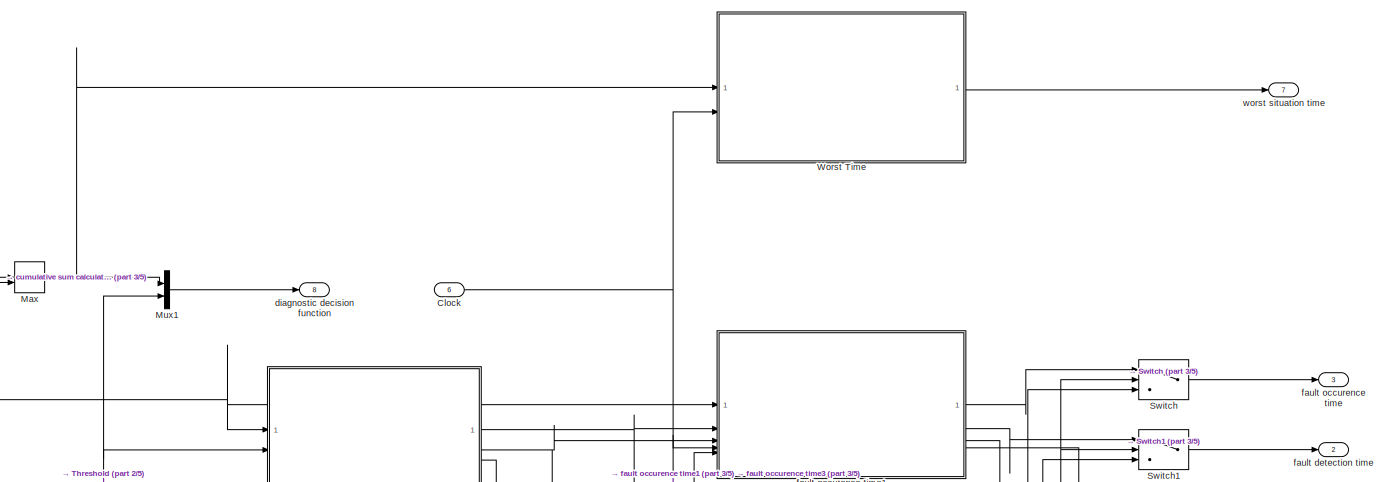
[diagram: Fault Detection and Isolation/Robust Deviation Detection/FaultDetection - part 1/5, top right region]
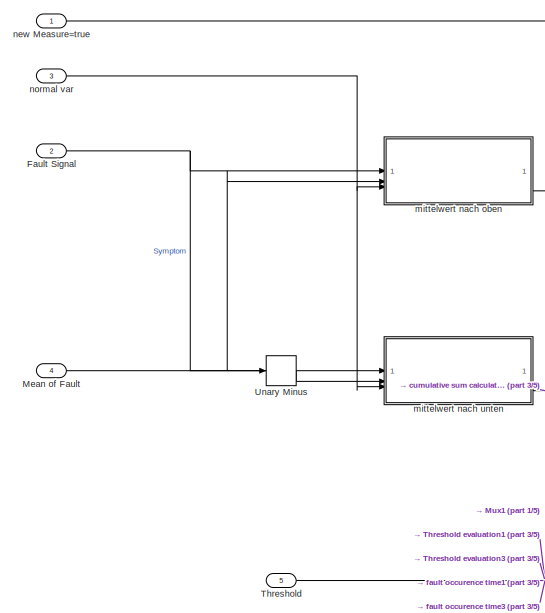
[diagram: Fault Detection and Isolation/Robust Deviation Detection/FaultDetection - part 2/5, middle left region]
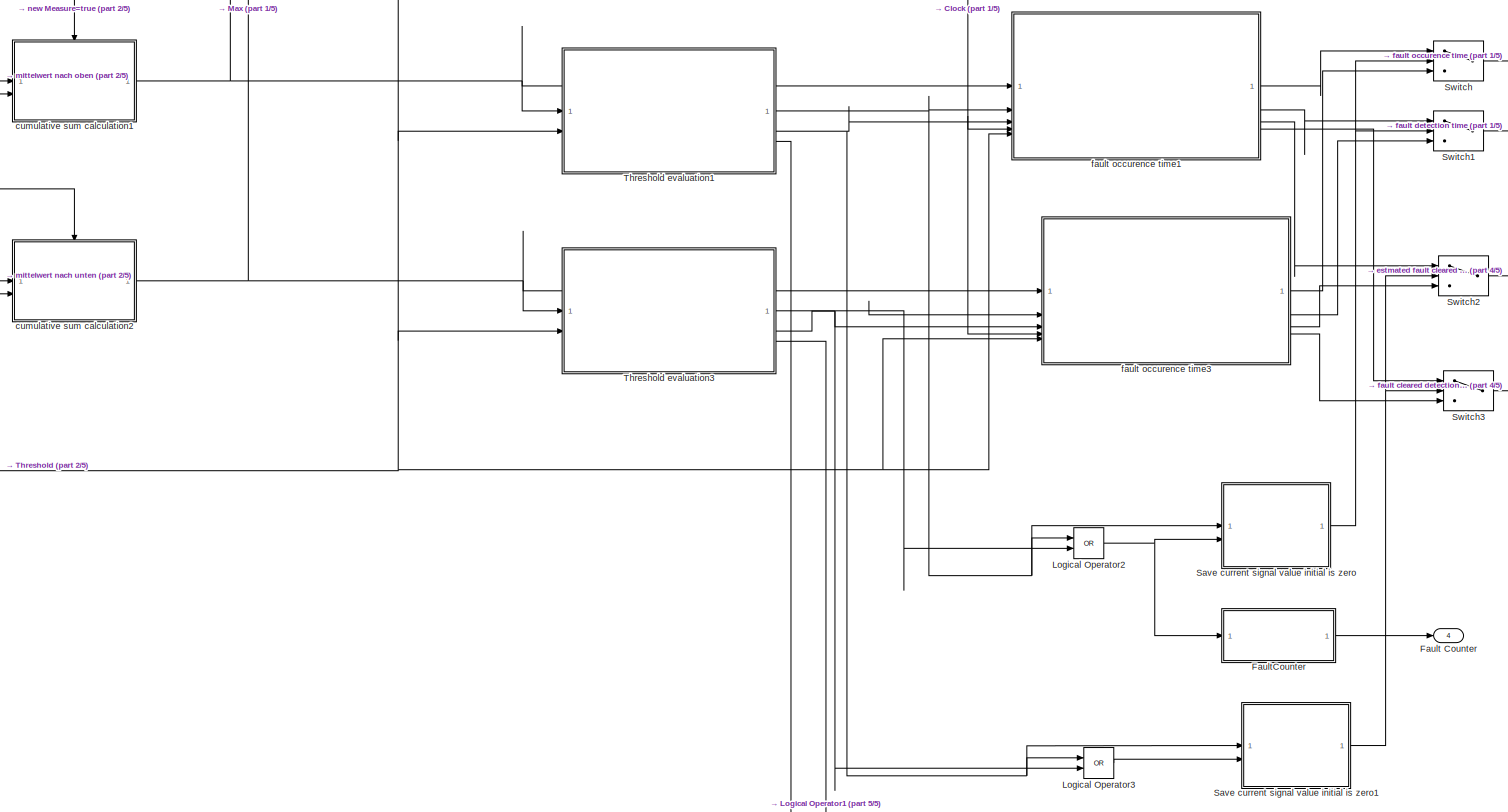
[diagram: Fault Detection and Isolation/Robust Deviation Detection/FaultDetection - part 3/5, central region]
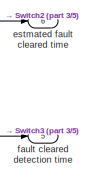
[diagram: Fault Detection and Isolation/Robust Deviation Detection/FaultDetection - part 4/5, middle right region]
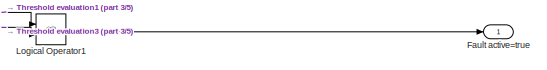
[diagram: Fault Detection and Isolation/Robust Deviation Detection/FaultDetection - part 5/5, bottom right region]
BLOCK [SubSystem] Fault Detection and Isolation/Robust Deviation Detection/FaultDetection
BLOCK [Inport] Fault Detection and Isolation/Robust Deviation Detection/FaultDetection/Clock
  Port = 6
BLOCK [Outport] Fault Detection and Isolation/Robust Deviation Detection/FaultDetection/Fault Counter
  Port = 4
  VectorParamsAs1DForOutWhenUnconnected = off
BLOCK [Inport] Fault Detection and Isolation/Robust Deviation Detection/FaultDetection/Fault Signal
  Port = 2
BLOCK [Outport] Fault Detection and Isolation/Robust Deviation Detection/FaultDetection/Fault active=true
  VectorParamsAs1DForOutWhenUnconnected = off
BLOCK [SubSystem] Fault Detection and Isolation/Robust Deviation Detection/FaultDetection/FaultCounter
BLOCK [DataTypeConversion] Fault Detection and Isolation/Robust Deviation Detection/FaultDetection/FaultCounter/Data Type Conversion
  OutDataTypeStr = uint32
  RndMeth = Floor
  SaturateOnIntegerOverflow = off
BLOCK [Inport] Fault Detection and Isolation/Robust Deviation Detection/FaultDetection/FaultCounter/Fault=true
BLOCK [Memory] Fault Detection and Isolation/Robust Deviation Detection/FaultDetection/FaultCounter/Memory
  InheritSampleTime = on
BLOCK [Sum] Fault Detection and Isolation/Robust Deviation Detection/FaultDetection/FaultCounter/Sum
  Inputs = |++
BLOCK [Outport] Fault Detection and Isolation/Robust Deviation Detection/FaultDetection/FaultCounter/number
BLOCK [Logic] Fault Detection and Isolation/Robust Deviation Detection/FaultDetection/Logical Operator1
  AllPortsSameDT = off
  Operator = OR
  OutDataTypeStr = boolean
BLOCK [Logic] Fault Detection and Isolation/Robust Deviation Detection/FaultDetection/Logical Operator2
  AllPortsSameDT = off
  Operator = OR
  OutDataTypeStr = boolean
BLOCK [Logic] Fault Detection and Isolation/Robust Deviation Detection/FaultDetection/Logical Operator3
  AllPortsSameDT = off
  Operator = OR
  OutDataTypeStr = boolean
BLOCK [MinMax] Fault Detection and Isolation/Robust Deviation Detection/FaultDetection/Max
  Function = max
  Inputs = 2
BLOCK [Inport] Fault Detection and Isolation/Robust Deviation Detection/FaultDetection/Mean of Fault
  Port = 4
BLOCK [Mux] Fault Detection and Isolation/Robust Deviation Detection/FaultDetection/Mux1
  DisplayOption = bar
  Inputs = 2
BLOCK [SubSystem] Fault Detection and Isolation/Robust Deviation Detection/FaultDetection/Save current signal value initial is zero
BLOCK [Switch] Fault Detection and Isolation/Robust Deviation Detection/FaultDetection/Save current signal value initial is zero/Init
  Criteria = u2 ~= 0
  InputSameDT = off
  OutDataTypeStr = Inherit: Inherit via back propagation
  SaturateOnIntegerOverflow = off
  ZeroCross = off
BLOCK [Inport] Fault Detection and Isolation/Robust Deviation Detection/FaultDetection/Save current signal value initial is zero/Input
BLOCK [Memory] Fault Detection and Isolation/Robust Deviation Detection/FaultDetection/Save current signal value initial is zero/Memory
  InheritSampleTime = on
BLOCK [Switch] Fault Detection and Isolation/Robust Deviation Detection/FaultDetection/Save current signal value initial is zero/Reset
  Criteria = u2 ~= 0
  InputSameDT = off
  OutDataTypeStr = Inherit: Inherit via back propagation
  SaturateOnIntegerOverflow = off
  ZeroCross = off
BLOCK [Outport] Fault Detection and Isolation/Robust Deviation Detection/FaultDetection/Save current signal value initial is zero/initial=0  saved value
  VectorParamsAs1DForOutWhenUnconnected = off
BLOCK [Inport] Fault Detection and Isolation/Robust Deviation Detection/FaultDetection/Save current signal value initial is zero/set
  Port = 2
BLOCK [SubSystem] Fault Detection and Isolation/Robust Deviation Detection/FaultDetection/Save current signal value initial is zero1
BLOCK [Switch] Fault Detection and Isolation/Robust Deviation Detection/FaultDetection/Save current signal value initial is zero1/Init
  Criteria = u2 ~= 0
  InputSameDT = off
  OutDataTypeStr = Inherit: Inherit via back propagation
  SaturateOnIntegerOverflow = off
  ZeroCross = off
BLOCK [Inport] Fault Detection and Isolation/Robust Deviation Detection/FaultDetection/Save current signal value initial is zero1/Input
BLOCK [Memory] Fault Detection and Isolation/Robust Deviation Detection/FaultDetection/Save current signal value initial is zero1/Memory
  InheritSampleTime = on
BLOCK [Switch] Fault Detection and Isolation/Robust Deviation Detection/FaultDetection/Save current signal value initial is zero1/Reset
  Criteria = u2 ~= 0
  InputSameDT = off
  OutDataTypeStr = Inherit: Inherit via back propagation
  SaturateOnIntegerOverflow = off
  ZeroCross = off
BLOCK [Outport] Fault Detection and Isolation/Robust Deviation Detection/FaultDetection/Save current signal value initial is zero1/initial=0  saved value
  VectorParamsAs1DForOutWhenUnconnected = off
BLOCK [Inport] Fault Detection and Isolation/Robust Deviation Detection/FaultDetection/Save current signal value initial is zero1/set
  Port = 2
BLOCK [Switch] Fault Detection and Isolation/Robust Deviation Detection/FaultDetection/Switch
  Criteria = u2 ~= 0
  InputSameDT = off
  SaturateOnIntegerOverflow = off
BLOCK [Switch] Fault Detection and Isolation/Robust Deviation Detection/FaultDetection/Switch1
  Criteria = u2 ~= 0
  InputSameDT = off
  SaturateOnIntegerOverflow = off
BLOCK [Switch] Fault Detection and Isolation/Robust Deviation Detection/FaultDetection/Switch2
  Criteria = u2 ~= 0
  InputSameDT = off
  SaturateOnIntegerOverflow = off
BLOCK [Switch] Fault Detection and Isolation/Robust Deviation Detection/FaultDetection/Switch3
  Criteria = u2 ~= 0
  InputSameDT = off
  SaturateOnIntegerOverflow = off
BLOCK [Inport] Fault Detection and Isolation/Robust Deviation Detection/FaultDetection/Threshold
  Port = 5
BLOCK [SubSystem] Fault Detection and Isolation/Robust Deviation Detection/FaultDetection/Threshold evaluation1
BLOCK [Reference] Fault Detection and Isolation/Robust Deviation Detection/FaultDetection/Threshold evaluation1/Compare To Zero  REF=simulink/Logic and Bit
Operations/Compare
To Zero
  SourceBlock = simulink/Logic and Bit\nOperations/Compare\nTo Zero
  SourceType = Compare To Zero
BLOCK [Reference] Fault Detection and Isolation/Robust Deviation Detection/FaultDetection/Threshold evaluation1/Detect Decrease  REF=simulink/Logic and Bit
Operations/Detect
Decrease
  SourceBlock = simulink/Logic and Bit\nOperations/Detect\nDecrease
  SourceType = Detect Decrease
BLOCK [Reference] Fault Detection and Isolation/Robust Deviation Detection/FaultDetection/Threshold evaluation1/Detect Increase  REF=simulink/Logic and Bit
Operations/Detect
Increase
  SourceBlock = simulink/Logic and Bit\nOperations/Detect\nIncrease
  SourceType = Detect Increase
BLOCK [Reference] Fault Detection and Isolation/Robust Deviation Detection/FaultDetection/Threshold evaluation1/Detect Increase1  REF=simulink/Logic and Bit
Operations/Detect
Increase
  SourceBlock = simulink/Logic and Bit\nOperations/Detect\nIncrease
  SourceType = Detect Increase
BLOCK [Reference] Fault Detection and Isolation/Robust Deviation Detection/FaultDetection/Threshold evaluation1/Detect Increase2  REF=simulink/Logic and Bit
Operations/Detect
Increase
  SourceBlock = simulink/Logic and Bit\nOperations/Detect\nIncrease
  SourceType = Detect Increase
BLOCK [Outport] Fault Detection and Isolation/Robust Deviation Detection/FaultDetection/Threshold evaluation1/Fault active = true
  Port = 3
  VectorParamsAs1DForOutWhenUnconnected = off
BLOCK [SubSystem] Fault Detection and Isolation/Robust Deviation Detection/FaultDetection/Threshold evaluation1/FehlerSpeicher
BLOCK [Switch] Fault Detection and Isolation/Robust Deviation Detection/FaultDetection/Threshold evaluation1/FehlerSpeicher/Init
  Criteria = u2 ~= 0
  InputSameDT = off
  OutDataTypeStr = Inherit: Inherit via back propagation
  SaturateOnIntegerOverflow = off
  ZeroCross = off
BLOCK [Inport] Fault Detection and Isolation/Robust Deviation Detection/FaultDetection/Threshold evaluation1/FehlerSpeicher/Input
BLOCK [Memory] Fault Detection and Isolation/Robust Deviation Detection/FaultDetection/Threshold evaluation1/FehlerSpeicher/Memory
  InheritSampleTime = on
BLOCK [Switch] Fault Detection and Isolation/Robust Deviation Detection/FaultDetection/Threshold evaluation1/FehlerSpeicher/Reset
  Criteria = u2 ~= 0
  InputSameDT = off
  OutDataTypeStr = Inherit: Inherit via back propagation
  SaturateOnIntegerOverflow = off
  ZeroCross = off
BLOCK [Outport] Fault Detection and Isolation/Robust Deviation Detection/FaultDetection/Threshold evaluation1/FehlerSpeicher/initial=0  saved value
  VectorParamsAs1DForOutWhenUnconnected = off
BLOCK [Inport] Fault Detection and Isolation/Robust Deviation Detection/FaultDetection/Threshold evaluation1/FehlerSpeicher/set
  Port = 2
BLOCK [Logic] Fault Detection and Isolation/Robust Deviation Detection/FaultDetection/Threshold evaluation1/OR
  AllPortsSameDT = off
  Operator = OR
  OutDataTypeStr = boolean
BLOCK [Inport] Fault Detection and Isolation/Robust Deviation Detection/FaultDetection/Threshold evaluation1/Threshold
  Port = 2
BLOCK [Inport] Fault Detection and Isolation/Robust Deviation Detection/FaultDetection/Threshold evaluation1/decision function
BLOCK [RelationalOperator] Fault Detection and Isolation/Robust Deviation Detection/FaultDetection/Threshold evaluation1/decisionfunction crosses threshold
  InputSameDT = off
  OutDataTypeStr = boolean
BLOCK [Outport] Fault Detection and Isolation/Robust Deviation Detection/FaultDetection/Threshold evaluation1/pulse if fault cleared
  Port = 2
  VectorParamsAs1DForOutWhenUnconnected = off
BLOCK [Outport] Fault Detection and Isolation/Robust Deviation Detection/FaultDetection/Threshold evaluation1/pulse if fault detected
  VectorParamsAs1DForOutWhenUnconnected = off
BLOCK [SubSystem] Fault Detection and Isolation/Robust Deviation Detection/FaultDetection/Threshold evaluation3
BLOCK [Reference] Fault Detection and Isolation/Robust Deviation Detection/FaultDetection/Threshold evaluation3/Compare To Zero  REF=simulink/Logic and Bit
Operations/Compare
To Zero
  SourceBlock = simulink/Logic and Bit\nOperations/Compare\nTo Zero
  SourceType = Compare To Zero
BLOCK [Reference] Fault Detection and Isolation/Robust Deviation Detection/FaultDetection/Threshold evaluation3/Detect Decrease  REF=simulink/Logic and Bit
Operations/Detect
Decrease
  SourceBlock = simulink/Logic and Bit\nOperations/Detect\nDecrease
  SourceType = Detect Decrease
BLOCK [Reference] Fault Detection and Isolation/Robust Deviation Detection/FaultDetection/Threshold evaluation3/Detect Increase  REF=simulink/Logic and Bit
Operations/Detect
Increase
  SourceBlock = simulink/Logic and Bit\nOperations/Detect\nIncrease
  SourceType = Detect Increase
BLOCK [Reference] Fault Detection and Isolation/Robust Deviation Detection/FaultDetection/Threshold evaluation3/Detect Increase1  REF=simulink/Logic and Bit
Operations/Detect
Increase
  SourceBlock = simulink/Logic and Bit\nOperations/Detect\nIncrease
  SourceType = Detect Increase
BLOCK [Reference] Fault Detection and Isolation/Robust Deviation Detection/FaultDetection/Threshold evaluation3/Detect Increase2  REF=simulink/Logic and Bit
Operations/Detect
Increase
  SourceBlock = simulink/Logic and Bit\nOperations/Detect\nIncrease
  SourceType = Detect Increase
BLOCK [Outport] Fault Detection and Isolation/Robust Deviation Detection/FaultDetection/Threshold evaluation3/Fault active = true
  Port = 3
  VectorParamsAs1DForOutWhenUnconnected = off
BLOCK [SubSystem] Fault Detection and Isolation/Robust Deviation Detection/FaultDetection/Threshold evaluation3/FehlerSpeicher
BLOCK [Switch] Fault Detection and Isolation/Robust Deviation Detection/FaultDetection/Threshold evaluation3/FehlerSpeicher/Init
  Criteria = u2 ~= 0
  InputSameDT = off
  OutDataTypeStr = Inherit: Inherit via back propagation
  SaturateOnIntegerOverflow = off
  ZeroCross = off
BLOCK [Inport] Fault Detection and Isolation/Robust Deviation Detection/FaultDetection/Threshold evaluation3/FehlerSpeicher/Input
BLOCK [Memory] Fault Detection and Isolation/Robust Deviation Detection/FaultDetection/Threshold evaluation3/FehlerSpeicher/Memory
  InheritSampleTime = on
BLOCK [Switch] Fault Detection and Isolation/Robust Deviation Detection/FaultDetection/Threshold evaluation3/FehlerSpeicher/Reset
  Criteria = u2 ~= 0
  InputSameDT = off
  OutDataTypeStr = Inherit: Inherit via back propagation
  SaturateOnIntegerOverflow = off
  ZeroCross = off
BLOCK [Outport] Fault Detection and Isolation/Robust Deviation Detection/FaultDetection/Threshold evaluation3/FehlerSpeicher/initial=0  saved value
  VectorParamsAs1DForOutWhenUnconnected = off
BLOCK [Inport] Fault Detection and Isolation/Robust Deviation Detection/FaultDetection/Threshold evaluation3/FehlerSpeicher/set
  Port = 2
BLOCK [Logic] Fault Detection and Isolation/Robust Deviation Detection/FaultDetection/Threshold evaluation3/OR
  AllPortsSameDT = off
  Operator = OR
  OutDataTypeStr = boolean
BLOCK [Inport] Fault Detection and Isolation/Robust Deviation Detection/FaultDetection/Threshold evaluation3/Threshold
  Port = 2
BLOCK [Inport] Fault Detection and Isolation/Robust Deviation Detection/FaultDetection/Threshold evaluation3/decision function
BLOCK [RelationalOperator] Fault Detection and Isolation/Robust Deviation Detection/FaultDetection/Threshold evaluation3/decisionfunction crosses threshold
  InputSameDT = off
  OutDataTypeStr = boolean
BLOCK [Outport] Fault Detection and Isolation/Robust Deviation Detection/FaultDetection/Threshold evaluation3/pulse if fault cleared
  Port = 2
  VectorParamsAs1DForOutWhenUnconnected = off
BLOCK [Outport] Fault Detection and Isolation/Robust Deviation Detection/FaultDetection/Threshold evaluation3/pulse if fault detected
  VectorParamsAs1DForOutWhenUnconnected = off
BLOCK [UnaryMinus] Fault Detection and Isolation/Robust Deviation Detection/FaultDetection/Unary Minus
BLOCK [SubSystem] Fault Detection and Isolation/Robust Deviation Detection/FaultDetection/Worst Time
BLOCK [Memory] Fault Detection and Isolation/Robust Deviation Detection/FaultDetection/Worst Time/Memory
  InheritSampleTime = on
BLOCK [SubSystem] Fault Detection and Isolation/Robust Deviation Detection/FaultDetection/Worst Time/Save current signal value initial is zero
BLOCK [Switch] Fault Detection and Isolation/Robust Deviation Detection/FaultDetection/Worst Time/Save current signal value initial is zero/Init
  Criteria = u2 ~= 0
  InputSameDT = off
  OutDataTypeStr = Inherit: Inherit via back propagation
  SaturateOnIntegerOverflow = off
  ZeroCross = off
BLOCK [Inport] Fault Detection and Isolation/Robust Deviation Detection/FaultDetection/Worst Time/Save current signal value initial is zero/Input
BLOCK [Memory] Fault Detection and Isolation/Robust Deviation Detection/FaultDetection/Worst Time/Save current signal value initial is zero/Memory
  InheritSampleTime = on
BLOCK [Switch] Fault Detection and Isolation/Robust Deviation Detection/FaultDetection/Worst Time/Save current signal value initial is zero/Reset
  Criteria = u2 ~= 0
  InputSameDT = off
  OutDataTypeStr = Inherit: Inherit via back propagation
  SaturateOnIntegerOverflow = off
  ZeroCross = off
BLOCK [Outport] Fault Detection and Isolation/Robust Deviation Detection/FaultDetection/Worst Time/Save current signal value initial is zero/initial=0  saved value
  VectorParamsAs1DForOutWhenUnconnected = off
BLOCK [Inport] Fault Detection and Isolation/Robust Deviation Detection/FaultDetection/Worst Time/Save current signal value initial is zero/set
  Port = 2
BLOCK [SubSystem] Fault Detection and Isolation/Robust Deviation Detection/FaultDetection/Worst Time/Save current signal value initial is zero2
BLOCK [Switch] Fault Detection and Isolation/Robust Deviation Detection/FaultDetection/Worst Time/Save current signal value initial is zero2/Init
  Criteria = u2 ~= 0
  InputSameDT = off
  OutDataTypeStr = Inherit: Inherit via back propagation
  SaturateOnIntegerOverflow = off
  ZeroCross = off
BLOCK [Inport] Fault Detection and Isolation/Robust Deviation Detection/FaultDetection/Worst Time/Save current signal value initial is zero2/Input
BLOCK [Memory] Fault Detection and Isolation/Robust Deviation Detection/FaultDetection/Worst Time/Save current signal value initial is zero2/Memory
  InheritSampleTime = on
BLOCK [Switch] Fault Detection and Isolation/Robust Deviation Detection/FaultDetection/Worst Time/Save current signal value initial is zero2/Reset
  Criteria = u2 ~= 0
  InputSameDT = off
  OutDataTypeStr = Inherit: Inherit via back propagation
  SaturateOnIntegerOverflow = off
  ZeroCross = off
BLOCK [Outport] Fault Detection and Isolation/Robust Deviation Detection/FaultDetection/Worst Time/Save current signal value initial is zero2/initial=0  saved value
  VectorParamsAs1DForOutWhenUnconnected = off
BLOCK [Inport] Fault Detection and Isolation/Robust Deviation Detection/FaultDetection/Worst Time/Save current signal value initial is zero2/set
  Port = 2
BLOCK [Inport] Fault Detection and Isolation/Robust Deviation Detection/FaultDetection/Worst Time/current time
  Port = 2
BLOCK [Inport] Fault Detection and Isolation/Robust Deviation Detection/FaultDetection/Worst Time/decision function
BLOCK [RelationalOperator] Fault Detection and Isolation/Robust Deviation Detection/FaultDetection/Worst Time/decisionfunction crosses threshold
  InputSameDT = off
  OutDataTypeStr = boolean
BLOCK [Outport] Fault Detection and Isolation/Robust Deviation Detection/FaultDetection/Worst Time/worst situation
  VectorParamsAs1DForOutWhenUnconnected = off
BLOCK [SubSystem] Fault Detection and Isolation/Robust Deviation Detection/FaultDetection/cumulative sum calculation1
BLOCK [Outport] Fault Detection and Isolation/Robust Deviation Detection/FaultDetection/cumulative sum calculation1/CUSUM
  VectorParamsAs1DForOutWhenUnconnected = off
BLOCK [Constant] Fault Detection and Isolation/Robust Deviation Detection/FaultDetection/cumulative sum calculation1/Constant
  Value = 0
BLOCK [EnablePort] Fault Detection and Isolation/Robust Deviation Detection/FaultDetection/cumulative sum calculation1/Enable
BLOCK [Inport] Fault Detection and Isolation/Robust Deviation Detection/FaultDetection/cumulative sum calculation1/LogLikRat
BLOCK [Memory] Fault Detection and Isolation/Robust Deviation Detection/FaultDetection/cumulative sum calculation1/Memory
  InheritSampleTime = on
BLOCK [Reference] Fault Detection and Isolation/Robust Deviation Detection/FaultDetection/cumulative sum calculation1/Saturation Dynamic  REF=simulink/Discontinuities/Saturation
Dynamic
  SourceBlock = simulink/Discontinuities/Saturation\nDynamic
  SourceType = Saturation Dynamic
BLOCK [Sum] Fault Detection and Isolation/Robust Deviation Detection/FaultDetection/cumulative sum calculation1/Sum
  Inputs = |++
BLOCK [Inport] Fault Detection and Isolation/Robust Deviation Detection/FaultDetection/cumulative sum calculation1/Threshold
  Port = 2
BLOCK [SubSystem] Fault Detection and Isolation/Robust Deviation Detection/FaultDetection/cumulative sum calculation2
BLOCK [Outport] Fault Detection and Isolation/Robust Deviation Detection/FaultDetection/cumulative sum calculation2/CUSUM
  VectorParamsAs1DForOutWhenUnconnected = off
BLOCK [Constant] Fault Detection and Isolation/Robust Deviation Detection/FaultDetection/cumulative sum calculation2/Constant
  Value = 0
BLOCK [EnablePort] Fault Detection and Isolation/Robust Deviation Detection/FaultDetection/cumulative sum calculation2/Enable
BLOCK [Inport] Fault Detection and Isolation/Robust Deviation Detection/FaultDetection/cumulative sum calculation2/LogLikRat
BLOCK [Memory] Fault Detection and Isolation/Robust Deviation Detection/FaultDetection/cumulative sum calculation2/Memory
  InheritSampleTime = on
BLOCK [Reference] Fault Detection and Isolation/Robust Deviation Detection/FaultDetection/cumulative sum calculation2/Saturation Dynamic  REF=simulink/Discontinuities/Saturation
Dynamic
  SourceBlock = simulink/Discontinuities/Saturation\nDynamic
  SourceType = Saturation Dynamic
BLOCK [Sum] Fault Detection and Isolation/Robust Deviation Detection/FaultDetection/cumulative sum calculation2/Sum
  Inputs = |++
BLOCK [Inport] Fault Detection and Isolation/Robust Deviation Detection/FaultDetection/cumulative sum calculation2/Threshold
  Port = 2
BLOCK [Outport] Fault Detection and Isolation/Robust Deviation Detection/FaultDetection/diagnostic decision function
  Port = 8
  VectorParamsAs1DForOutWhenUnconnected = off
BLOCK [Outport] Fault Detection and Isolation/Robust Deviation Detection/FaultDetection/estmated fault cleared time
  Port = 6
  VectorParamsAs1DForOutWhenUnconnected = off
BLOCK [Outport] Fault Detection and Isolation/Robust Deviation Detection/FaultDetection/fault cleared detection time
  Port = 5
  VectorParamsAs1DForOutWhenUnconnected = off
BLOCK [Outport] Fault Detection and Isolation/Robust Deviation Detection/FaultDetection/fault detection time
  Port = 2
  VectorParamsAs1DForOutWhenUnconnected = off
BLOCK [Outport] Fault Detection and Isolation/Robust Deviation Detection/FaultDetection/fault occurence time
  Port = 3
  VectorParamsAs1DForOutWhenUnconnected = off
BLOCK [SubSystem] Fault Detection and Isolation/Robust Deviation Detection/FaultDetection/fault occurence time1
BLOCK [Reference] Fault Detection and Isolation/Robust Deviation Detection/FaultDetection/fault occurence time1/Compare To Zero1  REF=simulink/Logic and Bit
Operations/Compare
To Zero
  SourceBlock = simulink/Logic and Bit\nOperations/Compare\nTo Zero
  SourceType = Compare To Zero
BLOCK [SubSystem] Fault Detection and Isolation/Robust Deviation Detection/FaultDetection/fault occurence time1/Save current signal value initial is zero
BLOCK [Switch] Fault Detection and Isolation/Robust Deviation Detection/FaultDetection/fault occurence time1/Save current signal value initial is zero/Init
  Criteria = u2 ~= 0
  InputSameDT = off
  OutDataTypeStr = Inherit: Inherit via back propagation
  SaturateOnIntegerOverflow = off
  ZeroCross = off
BLOCK [Inport] Fault Detection and Isolation/Robust Deviation Detection/FaultDetection/fault occurence time1/Save current signal value initial is zero/Input
BLOCK [Memory] Fault Detection and Isolation/Robust Deviation Detection/FaultDetection/fault occurence time1/Save current signal value initial is zero/Memory
  InheritSampleTime = on
BLOCK [Switch] Fault Detection and Isolation/Robust Deviation Detection/FaultDetection/fault occurence time1/Save current signal value initial is zero/Reset
  Criteria = u2 ~= 0
  InputSameDT = off
  OutDataTypeStr = Inherit: Inherit via back propagation
  SaturateOnIntegerOverflow = off
  ZeroCross = off
BLOCK [Outport] Fault Detection and Isolation/Robust Deviation Detection/FaultDetection/fault occurence time1/Save current signal value initial is zero/initial=0  saved value
  VectorParamsAs1DForOutWhenUnconnected = off
BLOCK [Inport] Fault Detection and Isolation/Robust Deviation Detection/FaultDetection/fault occurence time1/Save current signal value initial is zero/set
  Port = 2
BLOCK [SubSystem] Fault Detection and Isolation/Robust Deviation Detection/FaultDetection/fault occurence time1/Save current signal value initial is zero1
BLOCK [Switch] Fault Detection and Isolation/Robust Deviation Detection/FaultDetection/fault occurence time1/Save current signal value initial is zero1/Init
  Criteria = u2 ~= 0
  InputSameDT = off
  OutDataTypeStr = Inherit: Inherit via back propagation
  SaturateOnIntegerOverflow = off
  ZeroCross = off
BLOCK [Inport] Fault Detection and Isolation/Robust Deviation Detection/FaultDetection/fault occurence time1/Save current signal value initial is zero1/Input
BLOCK [Memory] Fault Detection and Isolation/Robust Deviation Detection/FaultDetection/fault occurence time1/Save current signal value initial is zero1/Memory
  InheritSampleTime = on
BLOCK [Switch] Fault Detection and Isolation/Robust Deviation Detection/FaultDetection/fault occurence time1/Save current signal value initial is zero1/Reset
  Criteria = u2 ~= 0
  InputSameDT = off
  OutDataTypeStr = Inherit: Inherit via back propagation
  SaturateOnIntegerOverflow = off
  ZeroCross = off
BLOCK [Outport] Fault Detection and Isolation/Robust Deviation Detection/FaultDetection/fault occurence time1/Save current signal value initial is zero1/initial=0  saved value
  VectorParamsAs1DForOutWhenUnconnected = off
BLOCK [Inport] Fault Detection and Isolation/Robust Deviation Detection/FaultDetection/fault occurence time1/Save current signal value initial is zero1/set
  Port = 2
BLOCK [SubSystem] Fault Detection and Isolation/Robust Deviation Detection/FaultDetection/fault occurence time1/Save current signal value initial is zero2
BLOCK [Switch] Fault Detection and Isolation/Robust Deviation Detection/FaultDetection/fault occurence time1/Save current signal value initial is zero2/Init
  Criteria = u2 ~= 0
  InputSameDT = off
  OutDataTypeStr = Inherit: Inherit via back propagation
  SaturateOnIntegerOverflow = off
  ZeroCross = off
BLOCK [Inport] Fault Detection and Isolation/Robust Deviation Detection/FaultDetection/fault occurence time1/Save current signal value initial is zero2/Input
BLOCK [Memory] Fault Detection and Isolation/Robust Deviation Detection/FaultDetection/fault occurence time1/Save current signal value initial is zero2/Memory
  InheritSampleTime = on
BLOCK [Switch] Fault Detection and Isolation/Robust Deviation Detection/FaultDetection/fault occurence time1/Save current signal value initial is zero2/Reset
  Criteria = u2 ~= 0
  InputSameDT = off
  OutDataTypeStr = Inherit: Inherit via back propagation
  SaturateOnIntegerOverflow = off
  ZeroCross = off
BLOCK [Outport] Fault Detection and Isolation/Robust Deviation Detection/FaultDetection/fault occurence time1/Save current signal value initial is zero2/initial=0  saved value
  VectorParamsAs1DForOutWhenUnconnected = off
BLOCK [Inport] Fault Detection and Isolation/Robust Deviation Detection/FaultDetection/fault occurence time1/Save current signal value initial is zero2/set
  Port = 2
BLOCK [SubSystem] Fault Detection and Isolation/Robust Deviation Detection/FaultDetection/fault occurence time1/Save current signal value initial is zero3
BLOCK [Switch] Fault Detection and Isolation/Robust Deviation Detection/FaultDetection/fault occurence time1/Save current signal value initial is zero3/Init
  Criteria = u2 ~= 0
  InputSameDT = off
  OutDataTypeStr = Inherit: Inherit via back propagation
  SaturateOnIntegerOverflow = off
  ZeroCross = off
BLOCK [Inport] Fault Detection and Isolation/Robust Deviation Detection/FaultDetection/fault occurence time1/Save current signal value initial is zero3/Input
BLOCK [Memory] Fault Detection and Isolation/Robust Deviation Detection/FaultDetection/fault occurence time1/Save current signal value initial is zero3/Memory
  InheritSampleTime = on
BLOCK [Switch] Fault Detection and Isolation/Robust Deviation Detection/FaultDetection/fault occurence time1/Save current signal value initial is zero3/Reset
  Criteria = u2 ~= 0
  InputSameDT = off
  OutDataTypeStr = Inherit: Inherit via back propagation
  SaturateOnIntegerOverflow = off
  ZeroCross = off
BLOCK [Outport] Fault Detection and Isolation/Robust Deviation Detection/FaultDetection/fault occurence time1/Save current signal value initial is zero3/initial=0  saved value
  VectorParamsAs1DForOutWhenUnconnected = off
BLOCK [Inport] Fault Detection and Isolation/Robust Deviation Detection/FaultDetection/fault occurence time1/Save current signal value initial is zero3/set
  Port = 2
BLOCK [SubSystem] Fault Detection and Isolation/Robust Deviation Detection/FaultDetection/fault occurence time1/Save current signal value initial is zero4
BLOCK [Switch] Fault Detection and Isolation/Robust Deviation Detection/FaultDetection/fault occurence time1/Save current signal value initial is zero4/Init
  Criteria = u2 ~= 0
  InputSameDT = off
  OutDataTypeStr = Inherit: Inherit via back propagation
  SaturateOnIntegerOverflow = off
  ZeroCross = off
BLOCK [Inport] Fault Detection and Isolation/Robust Deviation Detection/FaultDetection/fault occurence time1/Save current signal value initial is zero4/Input
BLOCK [Memory] Fault Detection and Isolation/Robust Deviation Detection/FaultDetection/fault occurence time1/Save current signal value initial is zero4/Memory
  InheritSampleTime = on
BLOCK [Switch] Fault Detection and Isolation/Robust Deviation Detection/FaultDetection/fault occurence time1/Save current signal value initial is zero4/Reset
  Criteria = u2 ~= 0
  InputSameDT = off
  OutDataTypeStr = Inherit: Inherit via back propagation
  SaturateOnIntegerOverflow = off
  ZeroCross = off
BLOCK [Outport] Fault Detection and Isolation/Robust Deviation Detection/FaultDetection/fault occurence time1/Save current signal value initial is zero4/initial=0  saved value
  VectorParamsAs1DForOutWhenUnconnected = off
BLOCK [Inport] Fault Detection and Isolation/Robust Deviation Detection/FaultDetection/fault occurence time1/Save current signal value initial is zero4/set
  Port = 2
BLOCK [SubSystem] Fault Detection and Isolation/Robust Deviation Detection/FaultDetection/fault occurence time1/Save current signal value initial is zero5
BLOCK [Switch] Fault Detection and Isolation/Robust Deviation Detection/FaultDetection/fault occurence time1/Save current signal value initial is zero5/Init
  Criteria = u2 ~= 0
  InputSameDT = off
  OutDataTypeStr = Inherit: Inherit via back propagation
  SaturateOnIntegerOverflow = off
  ZeroCross = off
BLOCK [Inport] Fault Detection and Isolation/Robust Deviation Detection/FaultDetection/fault occurence time1/Save current signal value initial is zero5/Input
BLOCK [Memory] Fault Detection and Isolation/Robust Deviation Detection/FaultDetection/fault occurence time1/Save current signal value initial is zero5/Memory
  InheritSampleTime = on
BLOCK [Switch] Fault Detection and Isolation/Robust Deviation Detection/FaultDetection/fault occurence time1/Save current signal value initial is zero5/Reset
  Criteria = u2 ~= 0
  InputSameDT = off
  OutDataTypeStr = Inherit: Inherit via back propagation
  SaturateOnIntegerOverflow = off
  ZeroCross = off
BLOCK [Outport] Fault Detection and Isolation/Robust Deviation Detection/FaultDetection/fault occurence time1/Save current signal value initial is zero5/initial=0  saved value
  VectorParamsAs1DForOutWhenUnconnected = off
BLOCK [Inport] Fault Detection and Isolation/Robust Deviation Detection/FaultDetection/fault occurence time1/Save current signal value initial is zero5/set
  Port = 2
BLOCK [Inport] Fault Detection and Isolation/Robust Deviation Detection/FaultDetection/fault occurence time1/Threshold
  Port = 5
BLOCK [Inport] Fault Detection and Isolation/Robust Deviation Detection/FaultDetection/fault occurence time1/current time
  Port = 4
BLOCK [Inport] Fault Detection and Isolation/Robust Deviation Detection/FaultDetection/fault occurence time1/decision function
BLOCK [RelationalOperator] Fault Detection and Isolation/Robust Deviation Detection/FaultDetection/fault occurence time1/decisionfunction crosses threshold
  InputSameDT = off
  OutDataTypeStr = boolean
BLOCK [Outport] Fault Detection and Isolation/Robust Deviation Detection/FaultDetection/fault occurence time1/estimated fault occurence time
  VectorParamsAs1DForOutWhenUnconnected = off
BLOCK [Outport] Fault Detection and Isolation/Robust Deviation Detection/FaultDetection/fault occurence time1/estmated fault cleared time
  Port = 3
  VectorParamsAs1DForOutWhenUnconnected = off
BLOCK [Outport] Fault Detection and Isolation/Robust Deviation Detection/FaultDetection/fault occurence time1/fault cleared detection time
  Port = 4
  VectorParamsAs1DForOutWhenUnconnected = off
BLOCK [Outport] Fault Detection and Isolation/Robust Deviation Detection/FaultDetection/fault occurence time1/fault detection time
  Port = 2
  VectorParamsAs1DForOutWhenUnconnected = off
BLOCK [Inport] Fault Detection and Isolation/Robust Deviation Detection/FaultDetection/fault occurence time1/pulse at fault detection
  Port = 2
BLOCK [Inport] Fault Detection and Isolation/Robust Deviation Detection/FaultDetection/fault occurence time1/pulse if fault cleared
  Port = 3
BLOCK [SubSystem] Fault Detection and Isolation/Robust Deviation Detection/FaultDetection/fault occurence time3
BLOCK [Reference] Fault Detection and Isolation/Robust Deviation Detection/FaultDetection/fault occurence time3/Compare To Zero1  REF=simulink/Logic and Bit
Operations/Compare
To Zero
  SourceBlock = simulink/Logic and Bit\nOperations/Compare\nTo Zero
  SourceType = Compare To Zero
BLOCK [SubSystem] Fault Detection and Isolation/Robust Deviation Detection/FaultDetection/fault occurence time3/Save current signal value initial is zero
BLOCK [Switch] Fault Detection and Isolation/Robust Deviation Detection/FaultDetection/fault occurence time3/Save current signal value initial is zero/Init
  Criteria = u2 ~= 0
  InputSameDT = off
  OutDataTypeStr = Inherit: Inherit via back propagation
  SaturateOnIntegerOverflow = off
  ZeroCross = off
BLOCK [Inport] Fault Detection and Isolation/Robust Deviation Detection/FaultDetection/fault occurence time3/Save current signal value initial is zero/Input
BLOCK [Memory] Fault Detection and Isolation/Robust Deviation Detection/FaultDetection/fault occurence time3/Save current signal value initial is zero/Memory
  InheritSampleTime = on
BLOCK [Switch] Fault Detection and Isolation/Robust Deviation Detection/FaultDetection/fault occurence time3/Save current signal value initial is zero/Reset
  Criteria = u2 ~= 0
  InputSameDT = off
  OutDataTypeStr = Inherit: Inherit via back propagation
  SaturateOnIntegerOverflow = off
  ZeroCross = off
BLOCK [Outport] Fault Detection and Isolation/Robust Deviation Detection/FaultDetection/fault occurence time3/Save current signal value initial is zero/initial=0  saved value
  VectorParamsAs1DForOutWhenUnconnected = off
BLOCK [Inport] Fault Detection and Isolation/Robust Deviation Detection/FaultDetection/fault occurence time3/Save current signal value initial is zero/set
  Port = 2
BLOCK [SubSystem] Fault Detection and Isolation/Robust Deviation Detection/FaultDetection/fault occurence time3/Save current signal value initial is zero1
BLOCK [Switch] Fault Detection and Isolation/Robust Deviation Detection/FaultDetection/fault occurence time3/Save current signal value initial is zero1/Init
  Criteria = u2 ~= 0
  InputSameDT = off
  OutDataTypeStr = Inherit: Inherit via back propagation
  SaturateOnIntegerOverflow = off
  ZeroCross = off
BLOCK [Inport] Fault Detection and Isolation/Robust Deviation Detection/FaultDetection/fault occurence time3/Save current signal value initial is zero1/Input
BLOCK [Memory] Fault Detection and Isolation/Robust Deviation Detection/FaultDetection/fault occurence time3/Save current signal value initial is zero1/Memory
  InheritSampleTime = on
BLOCK [Switch] Fault Detection and Isolation/Robust Deviation Detection/FaultDetection/fault occurence time3/Save current signal value initial is zero1/Reset
  Criteria = u2 ~= 0
  InputSameDT = off
  OutDataTypeStr = Inherit: Inherit via back propagation
  SaturateOnIntegerOverflow = off
  ZeroCross = off
BLOCK [Outport] Fault Detection and Isolation/Robust Deviation Detection/FaultDetection/fault occurence time3/Save current signal value initial is zero1/initial=0  saved value
  VectorParamsAs1DForOutWhenUnconnected = off
BLOCK [Inport] Fault Detection and Isolation/Robust Deviation Detection/FaultDetection/fault occurence time3/Save current signal value initial is zero1/set
  Port = 2
BLOCK [SubSystem] Fault Detection and Isolation/Robust Deviation Detection/FaultDetection/fault occurence time3/Save current signal value initial is zero2
BLOCK [Switch] Fault Detection and Isolation/Robust Deviation Detection/FaultDetection/fault occurence time3/Save current signal value initial is zero2/Init
  Criteria = u2 ~= 0
  InputSameDT = off
  OutDataTypeStr = Inherit: Inherit via back propagation
  SaturateOnIntegerOverflow = off
  ZeroCross = off
BLOCK [Inport] Fault Detection and Isolation/Robust Deviation Detection/FaultDetection/fault occurence time3/Save current signal value initial is zero2/Input
BLOCK [Memory] Fault Detection and Isolation/Robust Deviation Detection/FaultDetection/fault occurence time3/Save current signal value initial is zero2/Memory
  InheritSampleTime = on
BLOCK [Switch] Fault Detection and Isolation/Robust Deviation Detection/FaultDetection/fault occurence time3/Save current signal value initial is zero2/Reset
  Criteria = u2 ~= 0
  InputSameDT = off
  OutDataTypeStr = Inherit: Inherit via back propagation
  SaturateOnIntegerOverflow = off
  ZeroCross = off
BLOCK [Outport] Fault Detection and Isolation/Robust Deviation Detection/FaultDetection/fault occurence time3/Save current signal value initial is zero2/initial=0  saved value
  VectorParamsAs1DForOutWhenUnconnected = off
BLOCK [Inport] Fault Detection and Isolation/Robust Deviation Detection/FaultDetection/fault occurence time3/Save current signal value initial is zero2/set
  Port = 2
BLOCK [SubSystem] Fault Detection and Isolation/Robust Deviation Detection/FaultDetection/fault occurence time3/Save current signal value initial is zero3
BLOCK [Switch] Fault Detection and Isolation/Robust Deviation Detection/FaultDetection/fault occurence time3/Save current signal value initial is zero3/Init
  Criteria = u2 ~= 0
  InputSameDT = off
  OutDataTypeStr = Inherit: Inherit via back propagation
  SaturateOnIntegerOverflow = off
  ZeroCross = off
BLOCK [Inport] Fault Detection and Isolation/Robust Deviation Detection/FaultDetection/fault occurence time3/Save current signal value initial is zero3/Input
BLOCK [Memory] Fault Detection and Isolation/Robust Deviation Detection/FaultDetection/fault occurence time3/Save current signal value initial is zero3/Memory
  InheritSampleTime = on
BLOCK [Switch] Fault Detection and Isolation/Robust Deviation Detection/FaultDetection/fault occurence time3/Save current signal value initial is zero3/Reset
  Criteria = u2 ~= 0
  InputSameDT = off
  OutDataTypeStr = Inherit: Inherit via back propagation
  SaturateOnIntegerOverflow = off
  ZeroCross = off
BLOCK [Outport] Fault Detection and Isolation/Robust Deviation Detection/FaultDetection/fault occurence time3/Save current signal value initial is zero3/initial=0  saved value
  VectorParamsAs1DForOutWhenUnconnected = off
BLOCK [Inport] Fault Detection and Isolation/Robust Deviation Detection/FaultDetection/fault occurence time3/Save current signal value initial is zero3/set
  Port = 2
BLOCK [SubSystem] Fault Detection and Isolation/Robust Deviation Detection/FaultDetection/fault occurence time3/Save current signal value initial is zero4
BLOCK [Switch] Fault Detection and Isolation/Robust Deviation Detection/FaultDetection/fault occurence time3/Save current signal value initial is zero4/Init
  Criteria = u2 ~= 0
  InputSameDT = off
  OutDataTypeStr = Inherit: Inherit via back propagation
  SaturateOnIntegerOverflow = off
  ZeroCross = off
BLOCK [Inport] Fault Detection and Isolation/Robust Deviation Detection/FaultDetection/fault occurence time3/Save current signal value initial is zero4/Input
BLOCK [Memory] Fault Detection and Isolation/Robust Deviation Detection/FaultDetection/fault occurence time3/Save current signal value initial is zero4/Memory
  InheritSampleTime = on
BLOCK [Switch] Fault Detection and Isolation/Robust Deviation Detection/FaultDetection/fault occurence time3/Save current signal value initial is zero4/Reset
  Criteria = u2 ~= 0
  InputSameDT = off
  OutDataTypeStr = Inherit: Inherit via back propagation
  SaturateOnIntegerOverflow = off
  ZeroCross = off
BLOCK [Outport] Fault Detection and Isolation/Robust Deviation Detection/FaultDetection/fault occurence time3/Save current signal value initial is zero4/initial=0  saved value
  VectorParamsAs1DForOutWhenUnconnected = off
BLOCK [Inport] Fault Detection and Isolation/Robust Deviation Detection/FaultDetection/fault occurence time3/Save current signal value initial is zero4/set
  Port = 2
BLOCK [SubSystem] Fault Detection and Isolation/Robust Deviation Detection/FaultDetection/fault occurence time3/Save current signal value initial is zero5
BLOCK [Switch] Fault Detection and Isolation/Robust Deviation Detection/FaultDetection/fault occurence time3/Save current signal value initial is zero5/Init
  Criteria = u2 ~= 0
  InputSameDT = off
  OutDataTypeStr = Inherit: Inherit via back propagation
  SaturateOnIntegerOverflow = off
  ZeroCross = off
BLOCK [Inport] Fault Detection and Isolation/Robust Deviation Detection/FaultDetection/fault occurence time3/Save current signal value initial is zero5/Input
BLOCK [Memory] Fault Detection and Isolation/Robust Deviation Detection/FaultDetection/fault occurence time3/Save current signal value initial is zero5/Memory
  InheritSampleTime = on
BLOCK [Switch] Fault Detection and Isolation/Robust Deviation Detection/FaultDetection/fault occurence time3/Save current signal value initial is zero5/Reset
  Criteria = u2 ~= 0
  InputSameDT = off
  OutDataTypeStr = Inherit: Inherit via back propagation
  SaturateOnIntegerOverflow = off
  ZeroCross = off
BLOCK [Outport] Fault Detection and Isolation/Robust Deviation Detection/FaultDetection/fault occurence time3/Save current signal value initial is zero5/initial=0  saved value
  VectorParamsAs1DForOutWhenUnconnected = off
BLOCK [Inport] Fault Detection and Isolation/Robust Deviation Detection/FaultDetection/fault occurence time3/Save current signal value initial is zero5/set
  Port = 2
BLOCK [Inport] Fault Detection and Isolation/Robust Deviation Detection/FaultDetection/fault occurence time3/Threshold
  Port = 5
BLOCK [Inport] Fault Detection and Isolation/Robust Deviation Detection/FaultDetection/fault occurence time3/current time
  Port = 4
BLOCK [Inport] Fault Detection and Isolation/Robust Deviation Detection/FaultDetection/fault occurence time3/decision function
BLOCK [RelationalOperator] Fault Detection and Isolation/Robust Deviation Detection/FaultDetection/fault occurence time3/decisionfunction crosses threshold
  InputSameDT = off
  OutDataTypeStr = boolean
BLOCK [Outport] Fault Detection and Isolation/Robust Deviation Detection/FaultDetection/fault occurence time3/estimated fault occurence time
  VectorParamsAs1DForOutWhenUnconnected = off
BLOCK [Outport] Fault Detection and Isolation/Robust Deviation Detection/FaultDetection/fault occurence time3/estmated fault cleared time
  Port = 3
  VectorParamsAs1DForOutWhenUnconnected = off
BLOCK [Outport] Fault Detection and Isolation/Robust Deviation Detection/FaultDetection/fault occurence time3/fault cleared detection time
  Port = 4
  VectorParamsAs1DForOutWhenUnconnected = off
BLOCK [Outport] Fault Detection and Isolation/Robust Deviation Detection/FaultDetection/fault occurence time3/fault detection time
  Port = 2
  VectorParamsAs1DForOutWhenUnconnected = off
BLOCK [Inport] Fault Detection and Isolation/Robust Deviation Detection/FaultDetection/fault occurence time3/pulse at fault detection
  Port = 2
BLOCK [Inport] Fault Detection and Isolation/Robust Deviation Detection/FaultDetection/fault occurence time3/pulse if fault cleared
  Port = 3
BLOCK [SubSystem] Fault Detection and Isolation/Robust Deviation Detection/FaultDetection/mittelwert nach oben
BLOCK [Gain] Fault Detection and Isolation/Robust Deviation Detection/FaultDetection/mittelwert nach oben/Gain2
  Gain = 0.5
BLOCK [Product] Fault Detection and Isolation/Robust Deviation Detection/FaultDetection/mittelwert nach oben/Product1
  Inputs = **/
  RndMeth = Zero
BLOCK [Sum] Fault Detection and Isolation/Robust Deviation Detection/FaultDetection/mittelwert nach oben/Sum
  Inputs = +-|
BLOCK [Outport] Fault Detection and Isolation/Robust Deviation Detection/FaultDetection/mittelwert nach oben/log lik rat
  VectorParamsAs1DForOutWhenUnconnected = off
BLOCK [Inport] Fault Detection and Isolation/Robust Deviation Detection/FaultDetection/mittelwert nach oben/mean
  Port = 2
BLOCK [SubSystem] Fault Detection and Isolation/Robust Deviation Detection/FaultDetection/mittelwert nach oben/null Vermeiden
BLOCK [Abs] Fault Detection and Isolation/Robust Deviation Detection/FaultDetection/mittelwert nach oben/null Vermeiden/Abs
BLOCK [Constant] Fault Detection and Isolation/Robust Deviation Detection/FaultDetection/mittelwert nach oben/null Vermeiden/Constant
  Value = kleinsterWert
BLOCK [Gain] Fault Detection and Isolation/Robust Deviation Detection/FaultDetection/mittelwert nach oben/null Vermeiden/Gain
  Gain = kleinsterWert
BLOCK [Signum] Fault Detection and Isolation/Robust Deviation Detection/FaultDetection/mittelwert nach oben/null Vermeiden/Sign
BLOCK [Switch] Fault Detection and Isolation/Robust Deviation Detection/FaultDetection/mittelwert nach oben/null Vermeiden/Switch
  Threshold = kleinsterWert
BLOCK [Switch] Fault Detection and Isolation/Robust Deviation Detection/FaultDetection/mittelwert nach oben/null Vermeiden/Switch1
  Criteria = u2 ~= 0
  Threshold = 1
BLOCK [Outport] Fault Detection and Isolation/Robust Deviation Detection/FaultDetection/mittelwert nach oben/null Vermeiden/non zero
  VectorParamsAs1DForOutWhenUnconnected = off
BLOCK [Inport] Fault Detection and Isolation/Robust Deviation Detection/FaultDetection/mittelwert nach oben/null Vermeiden/value
BLOCK [Inport] Fault Detection and Isolation/Robust Deviation Detection/FaultDetection/mittelwert nach oben/var
  Port = 3
BLOCK [Inport] Fault Detection and Isolation/Robust Deviation Detection/FaultDetection/mittelwert nach oben/z
BLOCK [SubSystem] Fault Detection and Isolation/Robust Deviation Detection/FaultDetection/mittelwert nach unten
BLOCK [Gain] Fault Detection and Isolation/Robust Deviation Detection/FaultDetection/mittelwert nach unten/Gain2
  Gain = 0.5
BLOCK [Product] Fault Detection and Isolation/Robust Deviation Detection/FaultDetection/mittelwert nach unten/Product1
  Inputs = **/
  RndMeth = Zero
BLOCK [Sum] Fault Detection and Isolation/Robust Deviation Detection/FaultDetection/mittelwert nach unten/Sum
  Inputs = +-|
BLOCK [Outport] Fault Detection and Isolation/Robust Deviation Detection/FaultDetection/mittelwert nach unten/log lik rat
  VectorParamsAs1DForOutWhenUnconnected = off
BLOCK [Inport] Fault Detection and Isolation/Robust Deviation Detection/FaultDetection/mittelwert nach unten/mean
  Port = 2
BLOCK [SubSystem] Fault Detection and Isolation/Robust Deviation Detection/FaultDetection/mittelwert nach unten/null Vermeiden
BLOCK [Abs] Fault Detection and Isolation/Robust Deviation Detection/FaultDetection/mittelwert nach unten/null Vermeiden/Abs
BLOCK [Constant] Fault Detection and Isolation/Robust Deviation Detection/FaultDetection/mittelwert nach unten/null Vermeiden/Constant
  Value = kleinsterWert
BLOCK [Gain] Fault Detection and Isolation/Robust Deviation Detection/FaultDetection/mittelwert nach unten/null Vermeiden/Gain
  Gain = kleinsterWert
BLOCK [Signum] Fault Detection and Isolation/Robust Deviation Detection/FaultDetection/mittelwert nach unten/null Vermeiden/Sign
BLOCK [Switch] Fault Detection and Isolation/Robust Deviation Detection/FaultDetection/mittelwert nach unten/null Vermeiden/Switch
  Threshold = kleinsterWert
BLOCK [Switch] Fault Detection and Isolation/Robust Deviation Detection/FaultDetection/mittelwert nach unten/null Vermeiden/Switch1
  Criteria = u2 ~= 0
  Threshold = 1
BLOCK [Outport] Fault Detection and Isolation/Robust Deviation Detection/FaultDetection/mittelwert nach unten/null Vermeiden/non zero
  VectorParamsAs1DForOutWhenUnconnected = off
BLOCK [Inport] Fault Detection and Isolation/Robust Deviation Detection/FaultDetection/mittelwert nach unten/null Vermeiden/value
BLOCK [Inport] Fault Detection and Isolation/Robust Deviation Detection/FaultDetection/mittelwert nach unten/var
  Port = 3
BLOCK [Inport] Fault Detection and Isolation/Robust Deviation Detection/FaultDetection/mittelwert nach unten/z
BLOCK [Inport] Fault Detection and Isolation/Robust Deviation Detection/FaultDetection/new Measure=true
BLOCK [Inport] Fault Detection and Isolation/Robust Deviation Detection/FaultDetection/normal var
  Port = 3
BLOCK [Outport] Fault Detection and Isolation/Robust Deviation Detection/FaultDetection/worst situation time
  Port = 7
  VectorParamsAs1DForOutWhenUnconnected = off
BLOCK [Product] Fault Detection and Isolation/Robust Deviation Detection/Product1
BLOCK [SignalSpecification] Fault Detection and Isolation/Robust Deviation Detection/Signal Specification
  OutDataTypeStr = boolean
BLOCK [SignalSpecification] Fault Detection and Isolation/Robust Deviation Detection/Signal Specification1
  OutDataTypeStr = double
  SignalType = real
  Unit = s
BLOCK [SignalSpecification] Fault Detection and Isolation/Robust Deviation Detection/Signal Specification2
  OutDataTypeStr = double
  SignalType = real
  Unit = s
BLOCK [SignalSpecification] Fault Detection and Isolation/Robust Deviation Detection/Signal Specification3
  OutDataTypeStr = double
  SignalType = real
  Unit = s
BLOCK [SignalSpecification] Fault Detection and Isolation/Robust Deviation Detection/Signal Specification4
  OutDataTypeStr = double
  SignalType = real
  Unit = s
BLOCK [SignalSpecification] Fault Detection and Isolation/Robust Deviation Detection/Signal Specification5
  OutDataTypeStr = double
  SignalType = real
  Unit = s
BLOCK [SignalSpecification] Fault Detection and Isolation/Robust Deviation Detection/Signal Specification6
  OutDataTypeStr = uint32
  SignalType = real
BLOCK [SignalSpecification] Fault Detection and Isolation/Robust Deviation Detection/Signal Specification7
  OutDataTypeStr = double
  SignalType = real
BLOCK [Outport] Fault Detection and Isolation/Robust Deviation Detection/faultInfo
BLOCK [Inport] Fault Detection and Isolation/Robust Deviation Detection/maxNumSamplesForDetection
  Port = 4
BLOCK [Inport] Fault Detection and Isolation/Robust Deviation Detection/minDetectableDeviation
  Port = 3
BLOCK [SubSystem] Fault Detection and Isolation/Robust Deviation Detection/mittelwert nach oben
BLOCK [Gain] Fault Detection and Isolation/Robust Deviation Detection/mittelwert nach oben/Gain2
  Gain = 0.5
BLOCK [Product] Fault Detection and Isolation/Robust Deviation Detection/mittelwert nach oben/Product1
  Inputs = **/
  RndMeth = Zero
BLOCK [Sum] Fault Detection and Isolation/Robust Deviation Detection/mittelwert nach oben/Sum
  Inputs = +-|
BLOCK [Outport] Fault Detection and Isolation/Robust Deviation Detection/mittelwert nach oben/log lik rat
  VectorParamsAs1DForOutWhenUnconnected = off
BLOCK [Inport] Fault Detection and Isolation/Robust Deviation Detection/mittelwert nach oben/mean
BLOCK [SubSystem] Fault Detection and Isolation/Robust Deviation Detection/mittelwert nach oben/null Vermeiden
BLOCK [Abs] Fault Detection and Isolation/Robust Deviation Detection/mittelwert nach oben/null Vermeiden/Abs
BLOCK [Constant] Fault Detection and Isolation/Robust Deviation Detection/mittelwert nach oben/null Vermeiden/Constant
  Value = kleinsterWert
BLOCK [Gain] Fault Detection and Isolation/Robust Deviation Detection/mittelwert nach oben/null Vermeiden/Gain
  Gain = kleinsterWert
BLOCK [Signum] Fault Detection and Isolation/Robust Deviation Detection/mittelwert nach oben/null Vermeiden/Sign
BLOCK [Switch] Fault Detection and Isolation/Robust Deviation Detection/mittelwert nach oben/null Vermeiden/Switch
  Threshold = kleinsterWert
BLOCK [Switch] Fault Detection and Isolation/Robust Deviation Detection/mittelwert nach oben/null Vermeiden/Switch1
  Criteria = u2 ~= 0
  Threshold = 1
BLOCK [Outport] Fault Detection and Isolation/Robust Deviation Detection/mittelwert nach oben/null Vermeiden/non zero
  VectorParamsAs1DForOutWhenUnconnected = off
BLOCK [Inport] Fault Detection and Isolation/Robust Deviation Detection/mittelwert nach oben/null Vermeiden/value
BLOCK [Inport] Fault Detection and Isolation/Robust Deviation Detection/mittelwert nach oben/var
  Port = 3
BLOCK [Inport] Fault Detection and Isolation/Robust Deviation Detection/mittelwert nach oben/z
  Port = 2
BLOCK [Constant] Fault Detection and Isolation/Robust Deviation Detection/nSamples Adapt Window
  Value = intmax('int32')
BLOCK [Inport] Fault Detection and Isolation/Robust Deviation Detection/residualSignal
  Port = 2
BLOCK [SubSystem] Fault Detection and Isolation/Robust Deviation Detection/statistics
BLOCK [Constant] Fault Detection and Isolation/Robust Deviation Detection/statistics/Constant1
  Value = 0
BLOCK [SubSystem] Fault Detection and Isolation/Robust Deviation Detection/statistics/Messwertzähler
BLOCK [Constant] Fault Detection and Isolation/Robust Deviation Detection/statistics/Messwertzähler/Constant1
  Value = 0
BLOCK [Memory] Fault Detection and Isolation/Robust Deviation Detection/statistics/Messwertzähler/Memory
  InheritSampleTime = on
BLOCK [Reference] Fault Detection and Isolation/Robust Deviation Detection/statistics/Messwertzähler/Saturation Dynamic  REF=simulink/Discontinuities/Saturation
Dynamic
  SourceBlock = simulink/Discontinuities/Saturation\nDynamic
  SourceType = Saturation Dynamic
BLOCK [Sum] Fault Detection and Isolation/Robust Deviation Detection/statistics/Messwertzähler/Sum
  Inputs = |++
BLOCK [Inport] Fault Detection and Isolation/Robust Deviation Detection/statistics/Messwertzähler/measurement state
BLOCK [Inport] Fault Detection and Isolation/Robust Deviation Detection/statistics/Messwertzähler/n max
  Port = 2
BLOCK [Outport] Fault Detection and Isolation/Robust Deviation Detection/statistics/Messwertzähler/number
BLOCK [SubSystem] Fault Detection and Isolation/Robust Deviation Detection/statistics/Subsystem
BLOCK [Bias] Fault Detection and Isolation/Robust Deviation Detection/statistics/Subsystem/Bias
  Bias = -1
  SaturateOnIntegerOverflow = off
BLOCK [Constant] Fault Detection and Isolation/Robust Deviation Detection/statistics/Subsystem/Constant
BLOCK [Constant] Fault Detection and Isolation/Robust Deviation Detection/statistics/Subsystem/Constant1
BLOCK [EnablePort] Fault Detection and Isolation/Robust Deviation Detection/statistics/Subsystem/Enable
BLOCK [Math] Fault Detection and Isolation/Robust Deviation Detection/statistics/Subsystem/Math Function
  Operator = reciprocal
  SignedPower = on
BLOCK [Math] Fault Detection and Isolation/Robust Deviation Detection/statistics/Subsystem/Math Function1
  Operator = reciprocal
  SignedPower = on
BLOCK [Math] Fault Detection and Isolation/Robust Deviation Detection/statistics/Subsystem/Math Function2
  Operator = square
  SignedPower = on
BLOCK [Product] Fault Detection and Isolation/Robust Deviation Detection/statistics/Subsystem/Product
  Inputs = 3
  RndMeth = Zero
BLOCK [Product] Fault Detection and Isolation/Robust Deviation Detection/statistics/Subsystem/Product1
  RndMeth = Zero
BLOCK [SubSystem] Fault Detection and Isolation/Robust Deviation Detection/statistics/Subsystem/Subsystem
BLOCK [DataTypeDuplicate] Fault Detection and Isolation/Robust Deviation Detection/statistics/Subsystem/Subsystem/FixPt Data Type Duplicate1
  NumInputPorts = 3
BLOCK [Gain] Fault Detection and Isolation/Robust Deviation Detection/statistics/Subsystem/Subsystem/Gain
  Gain = 0
BLOCK [Inport] Fault Detection and Isolation/Robust Deviation Detection/statistics/Subsystem/Subsystem/IC
  Port = 2
BLOCK [Switch] Fault Detection and Isolation/Robust Deviation Detection/statistics/Subsystem/Subsystem/Init
  Criteria = u2 ~= 0
  InputSameDT = off
  OutDataTypeStr = Inherit: Inherit via back propagation
  SaturateOnIntegerOverflow = off
  ZeroCross = off
BLOCK [Memory] Fault Detection and Isolation/Robust Deviation Detection/statistics/Subsystem/Subsystem/Memory
  InheritSampleTime = on
  InitialCondition = 1
BLOCK [Memory] Fault Detection and Isolation/Robust Deviation Detection/statistics/Subsystem/Subsystem/Memory1
  InheritSampleTime = on
BLOCK [Inport] Fault Detection and Isolation/Robust Deviation Detection/statistics/Subsystem/Subsystem/u
BLOCK [Outport] Fault Detection and Isolation/Robust Deviation Detection/statistics/Subsystem/Subsystem/y
BLOCK [Sum] Fault Detection and Isolation/Robust Deviation Detection/statistics/Subsystem/Sum
  Inputs = |++
BLOCK [Sum] Fault Detection and Isolation/Robust Deviation Detection/statistics/Subsystem/Sum1
  Inputs = +-
BLOCK [Inport] Fault Detection and Isolation/Robust Deviation Detection/statistics/Subsystem/mean
BLOCK [Inport] Fault Detection and Isolation/Robust Deviation Detection/statistics/Subsystem/measurement
  Port = 3
BLOCK [Inport] Fault Detection and Isolation/Robust Deviation Detection/statistics/Subsystem/n measurements
  Port = 2
BLOCK [Switch] Fault Detection and Isolation/Robust Deviation Detection/statistics/Subsystem/skip first
  InputSameDT = off
  SaturateOnIntegerOverflow = off
  Threshold = 1
BLOCK [Switch] Fault Detection and Isolation/Robust Deviation Detection/statistics/Subsystem/skip first1
  InputSameDT = off
  SaturateOnIntegerOverflow = off
  Threshold = 1
BLOCK [Outport] Fault Detection and Isolation/Robust Deviation Detection/statistics/Subsystem/var
  InitialOutput = 1
BLOCK [Inport] Fault Detection and Isolation/Robust Deviation Detection/statistics/measurement state 1//0
  Port = 2
BLOCK [Inport] Fault Detection and Isolation/Robust Deviation Detection/statistics/measurement value
BLOCK [Inport] Fault Detection and Isolation/Robust Deviation Detection/statistics/n max
  Port = 3
BLOCK [Outport] Fault Detection and Isolation/Robust Deviation Detection/statistics/var
BLOCK [Inport] Fault Detection and Isolation/Robust Deviation Detection/timestamp
BLOCK [SubSystem] Guidance
BLOCK [SubSystem] Guidance/Trajectory Track Error
BLOCK [DataTypeConversion] Guidance/Trajectory Track Error/Data Type Conversion
  OutDataTypeStr = int32
  RndMeth = Floor
  SaturateOnIntegerOverflow = off
BLOCK [DataTypeConversion] Guidance/Trajectory Track Error/Data Type Conversion1
  OutDataTypeStr = int32
  RndMeth = Floor
  SaturateOnIntegerOverflow = off
BLOCK [DataTypeConversion] Guidance/Trajectory Track Error/Data Type Conversion2
  OutDataTypeStr = int32
  RndMeth = Floor
  SaturateOnIntegerOverflow = off
BLOCK [DataTypeConversion] Guidance/Trajectory Track Error/Data Type Conversion3
  OutDataTypeStr = boolean
  RndMeth = Floor
  SaturateOnIntegerOverflow = off
BLOCK [SubSystem] Guidance/Trajectory Track Error/MATLAB Function1
  ErrorFcn = Stateflow.Translate.translate
  PermitHierarchicalResolution = ExplicitOnly
  SFBlockType = MATLAB Function
  TreatAsAtomicUnit = on
BLOCK [Demux] Guidance/Trajectory Track Error/MATLAB Function1/ Demux 
  Outputs = 1
BLOCK [S-Function] Guidance/Trajectory Track Error/MATLAB Function1/ SFunction 
  EnableBusSupport = off
  FunctionName = sf_sfun
  PortCounts = [4 7]
  SFcnIsStateOwnerBlock = off
  SFunctionDeploymentMode = off
  Tag = Stateflow S-Function 23
BLOCK [Terminator] Guidance/Trajectory Track Error/MATLAB Function1/ Terminator 
BLOCK [Outport] Guidance/Trajectory Track Error/MATLAB Function1/closestSegmentIndices
  Port = 3
BLOCK [Outport] Guidance/Trajectory Track Error/MATLAB Function1/closestSegmentLinearInterpolationRatio
  Port = 4
BLOCK [Inport] Guidance/Trajectory Track Error/MATLAB Function1/matTimeLatLon
  Port = 3
BLOCK [Inport] Guidance/Trajectory Track Error/MATLAB Function1/numPoints
  Port = 4
BLOCK [Inport] Guidance/Trajectory Track Error/MATLAB Function1/positionLLA
  Port = 2
BLOCK [Outport] Guidance/Trajectory Track Error/MATLAB Function1/targetSegmentIndices
  Port = 5
BLOCK [Outport] Guidance/Trajectory Track Error/MATLAB Function1/targetSegmentLinearInterpolationRatio
  Port = 6
BLOCK [Inport] Guidance/Trajectory Track Error/MATLAB Function1/time
BLOCK [Outport] Guidance/Trajectory Track Error/MATLAB Function1/trackError
  Port = 2
BLOCK [Outport] Guidance/Trajectory Track Error/MATLAB Function1/valid
BLOCK [Outport] Guidance/Trajectory Track Error/closestSegmentIndices
  OutDataTypeStr = int32
  Port = 3
  PortDimensions = 2
BLOCK [Outport] Guidance/Trajectory Track Error/closestSegmentLinearInterpolationRatio
  OutDataTypeStr = double
  Port = 4
  PortDimensions = 1
BLOCK [Inport] Guidance/Trajectory Track Error/matTimeLatLon
  OutDataTypeStr = double
  Port = 3
BLOCK [Inport] Guidance/Trajectory Track Error/numPoints
  Port = 4
  PortDimensions = 1
BLOCK [Inport] Guidance/Trajectory Track Error/positionLLA
  OutDataTypeStr = double
  Port = 2
  PortDimensions = 3
BLOCK [Outport] Guidance/Trajectory Track Error/targetSegmentIndices
  OutDataTypeStr = int32
  Port = 5
  PortDimensions = 2
BLOCK [Outport] Guidance/Trajectory Track Error/targetSegmentLinearInterpolationRatio
  OutDataTypeStr = double
  Port = 6
  PortDimensions = 1
BLOCK [Inport] Guidance/Trajectory Track Error/time
  OutDataTypeStr = double
  PortDimensions = 1
  Unit = s
BLOCK [Outport] Guidance/Trajectory Track Error/trackError
  OutDataTypeStr = double
  Port = 2
  PortDimensions = 2
  Unit = m
BLOCK [Outport] Guidance/Trajectory Track Error/valid
  OutDataTypeStr = boolean
  PortDimensions = 1
BLOCK [SubSystem] Navigation
BLOCK [SubSystem] Navigation/Sensor Preprocessing
BLOCK [SubSystem] Navigation/Sensor Preprocessing/Butterworth Filter
BLOCK [SubSystem] Navigation/Sensor Preprocessing/Butterworth Filter/Butterworth Low Pass and Derivation
BLOCK [Outport] Navigation/Sensor Preprocessing/Butterworth Filter/Butterworth Low Pass and Derivation/A
  VectorParamsAs1DForOutWhenUnconnected = off
BLOCK [Outport] Navigation/Sensor Preprocessing/Butterworth Filter/Butterworth Low Pass and Derivation/B
  Port = 2
  VectorParamsAs1DForOutWhenUnconnected = off
BLOCK [Outport] Navigation/Sensor Preprocessing/Butterworth Filter/Butterworth Low Pass and Derivation/C
  Port = 3
  VectorParamsAs1DForOutWhenUnconnected = off
BLOCK [Constant] Navigation/Sensor Preprocessing/Butterworth Filter/Butterworth Low Pass and Derivation/Constant
  Value = 0
BLOCK [Constant] Navigation/Sensor Preprocessing/Butterworth Filter/Butterworth Low Pass and Derivation/Constant1
  Value = n_Ableitung
BLOCK [Constant] Navigation/Sensor Preprocessing/Butterworth Filter/Butterworth Low Pass and Derivation/Constant2
  Value = nozerosFlag
BLOCK [Constant] Navigation/Sensor Preprocessing/Butterworth Filter/Butterworth Low Pass and Derivation/Constant3
BLOCK [Outport] Navigation/Sensor Preprocessing/Butterworth Filter/Butterworth Low Pass and Derivation/D
  Port = 4
  VectorParamsAs1DForOutWhenUnconnected = off
BLOCK [Math] Navigation/Sensor Preprocessing/Butterworth Filter/Butterworth Low Pass and Derivation/Math Function
  Operator = reciprocal
  SignedPower = on
BLOCK [Memory] Navigation/Sensor Preprocessing/Butterworth Filter/Butterworth Low Pass and Derivation/Memory
  InheritSampleTime = on
  InitialCondition = 1
BLOCK [Math] Navigation/Sensor Preprocessing/Butterworth Filter/Butterworth Low Pass and Derivation/Power
  Operator = pow
  SignedPower = on
BLOCK [Product] Navigation/Sensor Preprocessing/Butterworth Filter/Butterworth Low Pass and Derivation/Product
BLOCK [Product] Navigation/Sensor Preprocessing/Butterworth Filter/Butterworth Low Pass and Derivation/Product1
BLOCK [Product] Navigation/Sensor Preprocessing/Butterworth Filter/Butterworth Low Pass and Derivation/Product2
BLOCK [Product] Navigation/Sensor Preprocessing/Butterworth Filter/Butterworth Low Pass and Derivation/Product3
BLOCK [SignalSpecification] Navigation/Sensor Preprocessing/Butterworth Filter/Butterworth Low Pass and Derivation/Signal Specification
  Dimensions = [n_Ordnung_Butter_Simulink n_Ordnung_Butter_Simulink]
BLOCK [SignalSpecification] Navigation/Sensor Preprocessing/Butterworth Filter/Butterworth Low Pass and Derivation/Signal Specification1
  Dimensions = [n_Ordnung_Butter_Simulink 1 ]
BLOCK [SignalSpecification] Navigation/Sensor Preprocessing/Butterworth Filter/Butterworth Low Pass and Derivation/Signal Specification2
  Dimensions = [1 n_Ordnung_Butter_Simulink]
BLOCK [SignalSpecification] Navigation/Sensor Preprocessing/Butterworth Filter/Butterworth Low Pass and Derivation/Signal Specification3
  Dimensions = [1 1]
BLOCK [SignalSpecification] Navigation/Sensor Preprocessing/Butterworth Filter/Butterworth Low Pass and Derivation/Signal Specification4
  Dimensions = 1
BLOCK [SubSystem] Navigation/Sensor Preprocessing/Butterworth Filter/Butterworth Low Pass and Derivation/Subsystem
BLOCK [Outport] Navigation/Sensor Preprocessing/Butterworth Filter/Butterworth Low Pass and Derivation/Subsystem/A
  VectorParamsAs1DForOutWhenUnconnected = off
BLOCK [Outport] Navigation/Sensor Preprocessing/Butterworth Filter/Butterworth Low Pass and Derivation/Subsystem/B
  Port = 2
  VectorParamsAs1DForOutWhenUnconnected = off
BLOCK [SubSystem] Navigation/Sensor Preprocessing/Butterworth Filter/Butterworth Low Pass and Derivation/Subsystem/Butter 2 p,k1
  ErrorFcn = Stateflow.Translate.translate
  PermitHierarchicalResolution = ExplicitOnly
  SFBlockType = MATLAB Function
  TreatAsAtomicUnit = on
BLOCK [Demux] Navigation/Sensor Preprocessing/Butterworth Filter/Butterworth Low Pass and Derivation/Subsystem/Butter 2 p,k1/ Demux 
  Outputs = 1
BLOCK [Ground] Navigation/Sensor Preprocessing/Butterworth Filter/Butterworth Low Pass and Derivation/Subsystem/Butter 2 p,k1/ Ground 
BLOCK [S-Function] Navigation/Sensor Preprocessing/Butterworth Filter/Butterworth Low Pass and Derivation/Subsystem/Butter 2 p,k1/ SFunction 
  EnableBusSupport = off
  FunctionName = sf_sfun
  Parameters = n_Ordnung_Butter_Simulink
  PortCounts = [1 2]
  SFcnIsStateOwnerBlock = off
  SFunctionDeploymentMode = off
  Tag = Stateflow S-Function 30
BLOCK [Terminator] Navigation/Sensor Preprocessing/Butterworth Filter/Butterworth Low Pass and Derivation/Subsystem/Butter 2 p,k1/ Terminator 
BLOCK [Outport] Navigation/Sensor Preprocessing/Butterworth Filter/Butterworth Low Pass and Derivation/Subsystem/Butter 2 p,k1/p
  VectorParamsAs1DForOutWhenUnconnected = off
BLOCK [Outport] Navigation/Sensor Preprocessing/Butterworth Filter/Butterworth Low Pass and Derivation/Subsystem/C
  Port = 3
  VectorParamsAs1DForOutWhenUnconnected = off
BLOCK [Constant] Navigation/Sensor Preprocessing/Butterworth Filter/Butterworth Low Pass and Derivation/Subsystem/Constant
  Value = Nullstellen
BLOCK [Outport] Navigation/Sensor Preprocessing/Butterworth Filter/Butterworth Low Pass and Derivation/Subsystem/D
  Port = 4
  VectorParamsAs1DForOutWhenUnconnected = off
BLOCK [EnablePort] Navigation/Sensor Preprocessing/Butterworth Filter/Butterworth Low Pass and Derivation/Subsystem/Enable
BLOCK [SubSystem] Navigation/Sensor Preprocessing/Butterworth Filter/Butterworth Low Pass and Derivation/Subsystem/myzp2ss
  ErrorFcn = Stateflow.Translate.translate
  PermitHierarchicalResolution = ExplicitOnly
  SFBlockType = MATLAB Function
  TreatAsAtomicUnit = on
BLOCK [Demux] Navigation/Sensor Preprocessing/Butterworth Filter/Butterworth Low Pass and Derivation/Subsystem/myzp2ss/ Demux 
  Outputs = 1
BLOCK [S-Function] Navigation/Sensor Preprocessing/Butterworth Filter/Butterworth Low Pass and Derivation/Subsystem/myzp2ss/ SFunction 
  EnableBusSupport = off
  FunctionName = sf_sfun
  Parameters = nozerosFlag
  PortCounts = [2 5]
  SFcnIsStateOwnerBlock = off
  SFunctionDeploymentMode = off
  Tag = Stateflow S-Function 31
BLOCK [Terminator] Navigation/Sensor Preprocessing/Butterworth Filter/Butterworth Low Pass and Derivation/Subsystem/myzp2ss/ Terminator 
BLOCK [Outport] Navigation/Sensor Preprocessing/Butterworth Filter/Butterworth Low Pass and Derivation/Subsystem/myzp2ss/a
  VectorParamsAs1DForOutWhenUnconnected = off
BLOCK [Outport] Navigation/Sensor Preprocessing/Butterworth Filter/Butterworth Low Pass and Derivation/Subsystem/myzp2ss/b
  Port = 2
  VectorParamsAs1DForOutWhenUnconnected = off
BLOCK [Outport] Navigation/Sensor Preprocessing/Butterworth Filter/Butterworth Low Pass and Derivation/Subsystem/myzp2ss/c
  Port = 3
  VectorParamsAs1DForOutWhenUnconnected = off
BLOCK [Outport] Navigation/Sensor Preprocessing/Butterworth Filter/Butterworth Low Pass and Derivation/Subsystem/myzp2ss/d
  Port = 4
  VectorParamsAs1DForOutWhenUnconnected = off
BLOCK [Inport] Navigation/Sensor Preprocessing/Butterworth Filter/Butterworth Low Pass and Derivation/Subsystem/myzp2ss/p
  Port = 2
BLOCK [Inport] Navigation/Sensor Preprocessing/Butterworth Filter/Butterworth Low Pass and Derivation/Subsystem/myzp2ss/z
BLOCK [Switch] Navigation/Sensor Preprocessing/Butterworth Filter/Butterworth Low Pass and Derivation/Switch
  Criteria = u2 ~= 0
  InputSameDT = off
  SaturateOnIntegerOverflow = off
BLOCK [Inport] Navigation/Sensor Preprocessing/Butterworth Filter/Butterworth Low Pass and Derivation/T
BLOCK [Reference] Navigation/Sensor Preprocessing/Butterworth Filter/Detect Change  REF=simulink/Logic and Bit
Operations/Detect
Change
  SourceBlock = simulink/Logic and Bit\nOperations/Detect\nChange
  SourceType = Detect Change
BLOCK [Inport] Navigation/Sensor Preprocessing/Butterworth Filter/T
  Port = 2
BLOCK [SubSystem] Navigation/Sensor Preprocessing/Butterworth Filter/Zustandsraummodell x0=x_t_inf(u=u_t_0)
BLOCK [Inport] Navigation/Sensor Preprocessing/Butterworth Filter/Zustandsraummodell x0=x_t_inf(u=u_t_0)/A
BLOCK [Inport] Navigation/Sensor Preprocessing/Butterworth Filter/Zustandsraummodell x0=x_t_inf(u=u_t_0)/B
  Port = 2
BLOCK [Inport] Navigation/Sensor Preprocessing/Butterworth Filter/Zustandsraummodell x0=x_t_inf(u=u_t_0)/C
  Port = 3
BLOCK [Inport] Navigation/Sensor Preprocessing/Butterworth Filter/Zustandsraummodell x0=x_t_inf(u=u_t_0)/D
  Port = 4
BLOCK [Product] Navigation/Sensor Preprocessing/Butterworth Filter/Zustandsraummodell x0=x_t_inf(u=u_t_0)/Divide
  Inputs = /**
  Multiplication = Matrix(*)
BLOCK [ForEach] Navigation/Sensor Preprocessing/Butterworth Filter/Zustandsraummodell x0=x_t_inf(u=u_t_0)/For Each
  DisableCoverage = on
BLOCK [Gain] Navigation/Sensor Preprocessing/Butterworth Filter/Zustandsraummodell x0=x_t_inf(u=u_t_0)/Gain
  AttributesFormatString = = -1
  Gain = -1
BLOCK [Terminator] Navigation/Sensor Preprocessing/Butterworth Filter/Zustandsraummodell x0=x_t_inf(u=u_t_0)/Terminator
BLOCK [SubSystem] Navigation/Sensor Preprocessing/Butterworth Filter/Zustandsraummodell x0=x_t_inf(u=u_t_0)/Zustandsraummodell discrete Integrator
BLOCK [Inport] Navigation/Sensor Preprocessing/Butterworth Filter/Zustandsraummodell x0=x_t_inf(u=u_t_0)/Zustandsraummodell discrete Integrator/A
  NameLocation = top
BLOCK [Inport] Navigation/Sensor Preprocessing/Butterworth Filter/Zustandsraummodell x0=x_t_inf(u=u_t_0)/Zustandsraummodell discrete Integrator/B
  Port = 2
BLOCK [Inport] Navigation/Sensor Preprocessing/Butterworth Filter/Zustandsraummodell x0=x_t_inf(u=u_t_0)/Zustandsraummodell discrete Integrator/C
  Port = 3
BLOCK [Inport] Navigation/Sensor Preprocessing/Butterworth Filter/Zustandsraummodell x0=x_t_inf(u=u_t_0)/Zustandsraummodell discrete Integrator/D
  Port = 4
BLOCK [DiscreteIntegrator] Navigation/Sensor Preprocessing/Butterworth Filter/Zustandsraummodell x0=x_t_inf(u=u_t_0)/Zustandsraummodell discrete Integrator/Discrete-Time Integrator
  ExternalReset = level
  ICPrevOutput = DiscIntNeverNeededParam
  ICPrevScaledInput = DiscIntNeverNeededParam
  InitialConditionSetting = Auto
  InitialConditionSource = external
  SampleTime = -1
BLOCK [Product] Navigation/Sensor Preprocessing/Butterworth Filter/Zustandsraummodell x0=x_t_inf(u=u_t_0)/Zustandsraummodell discrete Integrator/Product
  Multiplication = Matrix(*)
  NameLocation = top
BLOCK [Product] Navigation/Sensor Preprocessing/Butterworth Filter/Zustandsraummodell x0=x_t_inf(u=u_t_0)/Zustandsraummodell discrete Integrator/Product1
  Multiplication = Matrix(*)
BLOCK [Product] Navigation/Sensor Preprocessing/Butterworth Filter/Zustandsraummodell x0=x_t_inf(u=u_t_0)/Zustandsraummodell discrete Integrator/Product2
  Multiplication = Matrix(*)
BLOCK [Product] Navigation/Sensor Preprocessing/Butterworth Filter/Zustandsraummodell x0=x_t_inf(u=u_t_0)/Zustandsraummodell discrete Integrator/Product3
  Multiplication = Matrix(*)
BLOCK [Reshape] Navigation/Sensor Preprocessing/Butterworth Filter/Zustandsraummodell x0=x_t_inf(u=u_t_0)/Zustandsraummodell discrete Integrator/Reshape
  OutputDimensionality = Column vector (2-D)
BLOCK [Sum] Navigation/Sensor Preprocessing/Butterworth Filter/Zustandsraummodell x0=x_t_inf(u=u_t_0)/Zustandsraummodell discrete Integrator/Sum
  Inputs = |++
BLOCK [Sum] Navigation/Sensor Preprocessing/Butterworth Filter/Zustandsraummodell x0=x_t_inf(u=u_t_0)/Zustandsraummodell discrete Integrator/Sum1
  Inputs = ++|
BLOCK [Inport] Navigation/Sensor Preprocessing/Butterworth Filter/Zustandsraummodell x0=x_t_inf(u=u_t_0)/Zustandsraummodell discrete Integrator/reset
  Port = 7
BLOCK [Inport] Navigation/Sensor Preprocessing/Butterworth Filter/Zustandsraummodell x0=x_t_inf(u=u_t_0)/Zustandsraummodell discrete Integrator/u
  Port = 5
BLOCK [Outport] Navigation/Sensor Preprocessing/Butterworth Filter/Zustandsraummodell x0=x_t_inf(u=u_t_0)/Zustandsraummodell discrete Integrator/x
  Port = 2
  VectorParamsAs1DForOutWhenUnconnected = off
BLOCK [Outport] Navigation/Sensor Preprocessing/Butterworth Filter/Zustandsraummodell x0=x_t_inf(u=u_t_0)/Zustandsraummodell discrete Integrator/y
  VectorParamsAs1DForOutWhenUnconnected = off
BLOCK [Inport] Navigation/Sensor Preprocessing/Butterworth Filter/Zustandsraummodell x0=x_t_inf(u=u_t_0)/Zustandsraummodell discrete Integrator/y_ini
  Port = 6
BLOCK [Inport] Navigation/Sensor Preprocessing/Butterworth Filter/Zustandsraummodell x0=x_t_inf(u=u_t_0)/reset
  Port = 6
BLOCK [Inport] Navigation/Sensor Preprocessing/Butterworth Filter/Zustandsraummodell x0=x_t_inf(u=u_t_0)/u
  Partition = on
  PartitionDimension = 1
  PartitionOffset = 0
  PartitionWidth = 1
  Port = 5
BLOCK [Outport] Navigation/Sensor Preprocessing/Butterworth Filter/Zustandsraummodell x0=x_t_inf(u=u_t_0)/y
  ConcatenationDimension = 1
  VectorParamsAs1DForOutWhenUnconnected = off
BLOCK [Inport] Navigation/Sensor Preprocessing/Butterworth Filter/u
BLOCK [Outport] Navigation/Sensor Preprocessing/Butterworth Filter/y
  VectorParamsAs1DForOutWhenUnconnected = off
BLOCK [SubSystem] Navigation/Sensor Preprocessing/Detect Outliers 1D
BLOCK [Abs] Navigation/Sensor Preprocessing/Detect Outliers 1D/Abs2
  SaturateOnIntegerOverflow = off
BLOCK [Constant] Navigation/Sensor Preprocessing/Detect Outliers 1D/Constant
  OutDataTypeStr = uint32
BLOCK [SubSystem] Navigation/Sensor Preprocessing/Detect Outliers 1D/MATLAB Function
  ErrorFcn = Stateflow.Translate.translate
  PermitHierarchicalResolution = ExplicitOnly
  SFBlockType = MATLAB Function
  TreatAsAtomicUnit = on
BLOCK [Demux] Navigation/Sensor Preprocessing/Detect Outliers 1D/MATLAB Function/ Demux 
  Outputs = 1
BLOCK [S-Function] Navigation/Sensor Preprocessing/Detect Outliers 1D/MATLAB Function/ SFunction 
  EnableBusSupport = off
  FunctionName = sf_sfun
  PortCounts = [4 2]
  SFcnIsStateOwnerBlock = off
  SFunctionDeploymentMode = off
  Tag = Stateflow S-Function 27
BLOCK [Terminator] Navigation/Sensor Preprocessing/Detect Outliers 1D/MATLAB Function/ Terminator 
BLOCK [Inport] Navigation/Sensor Preprocessing/Detect Outliers 1D/MATLAB Function/data
  Port = 2
BLOCK [Inport] Navigation/Sensor Preprocessing/Detect Outliers 1D/MATLAB Function/maxNumOutliers
  Port = 4
BLOCK [Outport] Navigation/Sensor Preprocessing/Detect Outliers 1D/MATLAB Function/numberOfOutliers
BLOCK [Inport] Navigation/Sensor Preprocessing/Detect Outliers 1D/MATLAB Function/threshold
  Port = 3
BLOCK [Inport] Navigation/Sensor Preprocessing/Detect Outliers 1D/MATLAB Function/triggerNewData
BLOCK [MinMax] Navigation/Sensor Preprocessing/Detect Outliers 1D/Max
  Function = max
  Inputs = 2
BLOCK [Inport] Navigation/Sensor Preprocessing/Detect Outliers 1D/data
  OutDataTypeStr = double
  Port = 2
  PortDimensions = 1
BLOCK [Inport] Navigation/Sensor Preprocessing/Detect Outliers 1D/maxNumOutliers
  OutDataTypeStr = uint32
  Port = 4
  PortDimensions = 1
BLOCK [Outport] Navigation/Sensor Preprocessing/Detect Outliers 1D/numberOfOutliers
  OutDataTypeStr = uint32
  PortDimensions = 1
BLOCK [Inport] Navigation/Sensor Preprocessing/Detect Outliers 1D/threshold
  OutDataTypeStr = double
  Port = 3
  PortDimensions = 1
BLOCK [Inport] Navigation/Sensor Preprocessing/Detect Outliers 1D/triggerNewData
  OutDataTypeStr = boolean
  PortDimensions = 1
BLOCK [SubSystem] Navigation/Sensor Preprocessing/Detect Outliers Angle 1D
BLOCK [Abs] Navigation/Sensor Preprocessing/Detect Outliers Angle 1D/Abs2
  SaturateOnIntegerOverflow = off
BLOCK [Constant] Navigation/Sensor Preprocessing/Detect Outliers Angle 1D/Constant
  OutDataTypeStr = uint32
BLOCK [SubSystem] Navigation/Sensor Preprocessing/Detect Outliers Angle 1D/MATLAB Function
  ErrorFcn = Stateflow.Translate.translate
  PermitHierarchicalResolution = ExplicitOnly
  SFBlockType = MATLAB Function
  TreatAsAtomicUnit = on
BLOCK [Demux] Navigation/Sensor Preprocessing/Detect Outliers Angle 1D/MATLAB Function/ Demux 
  Outputs = 1
BLOCK [S-Function] Navigation/Sensor Preprocessing/Detect Outliers Angle 1D/MATLAB Function/ SFunction 
  EnableBusSupport = off
  FunctionName = sf_sfun
  PortCounts = [4 2]
  SFcnIsStateOwnerBlock = off
  SFunctionDeploymentMode = off
  Tag = Stateflow S-Function 29
BLOCK [Terminator] Navigation/Sensor Preprocessing/Detect Outliers Angle 1D/MATLAB Function/ Terminator 
BLOCK [Inport] Navigation/Sensor Preprocessing/Detect Outliers Angle 1D/MATLAB Function/data
  Port = 2
BLOCK [Inport] Navigation/Sensor Preprocessing/Detect Outliers Angle 1D/MATLAB Function/maxNumOutliers
  Port = 4
BLOCK [Outport] Navigation/Sensor Preprocessing/Detect Outliers Angle 1D/MATLAB Function/numberOfOutliers
BLOCK [Inport] Navigation/Sensor Preprocessing/Detect Outliers Angle 1D/MATLAB Function/threshold
  Port = 3
BLOCK [Inport] Navigation/Sensor Preprocessing/Detect Outliers Angle 1D/MATLAB Function/triggerNewData
BLOCK [MinMax] Navigation/Sensor Preprocessing/Detect Outliers Angle 1D/Max
  Function = max
  Inputs = 2
BLOCK [Inport] Navigation/Sensor Preprocessing/Detect Outliers Angle 1D/data
  OutDataTypeStr = double
  Port = 2
  PortDimensions = 1
BLOCK [Inport] Navigation/Sensor Preprocessing/Detect Outliers Angle 1D/maxNumOutliers
  OutDataTypeStr = uint32
  Port = 4
  PortDimensions = 1
BLOCK [Outport] Navigation/Sensor Preprocessing/Detect Outliers Angle 1D/numberOfOutliers
  OutDataTypeStr = uint32
  PortDimensions = 1
BLOCK [Inport] Navigation/Sensor Preprocessing/Detect Outliers Angle 1D/threshold
  OutDataTypeStr = double
  Port = 3
  PortDimensions = 1
BLOCK [Inport] Navigation/Sensor Preprocessing/Detect Outliers Angle 1D/triggerNewData
  OutDataTypeStr = boolean
  PortDimensions = 1
BLOCK [SubSystem] Navigation/Sensor Preprocessing/Detect Outliers GNSS
BLOCK [Abs] Navigation/Sensor Preprocessing/Detect Outliers GNSS/Abs1
  SaturateOnIntegerOverflow = off
BLOCK [Abs] Navigation/Sensor Preprocessing/Detect Outliers GNSS/Abs2
  SaturateOnIntegerOverflow = off
BLOCK [Constant] Navigation/Sensor Preprocessing/Detect Outliers GNSS/Constant
  OutDataTypeStr = uint32
BLOCK [SubSystem] Navigation/Sensor Preprocessing/Detect Outliers GNSS/MATLAB Function
  ErrorFcn = Stateflow.Translate.translate
  PermitHierarchicalResolution = ExplicitOnly
  SFBlockType = MATLAB Function
  TreatAsAtomicUnit = on
BLOCK [Demux] Navigation/Sensor Preprocessing/Detect Outliers GNSS/MATLAB Function/ Demux 
  Outputs = 1
BLOCK [S-Function] Navigation/Sensor Preprocessing/Detect Outliers GNSS/MATLAB Function/ SFunction 
  EnableBusSupport = off
  FunctionName = sf_sfun
  PortCounts = [5 2]
  SFcnIsStateOwnerBlock = off
  SFunctionDeploymentMode = off
  Tag = Stateflow S-Function 28
BLOCK [Terminator] Navigation/Sensor Preprocessing/Detect Outliers GNSS/MATLAB Function/ Terminator 
BLOCK [Inport] Navigation/Sensor Preprocessing/Detect Outliers GNSS/MATLAB Function/maxNumOutliers
  Port = 5
BLOCK [Outport] Navigation/Sensor Preprocessing/Detect Outliers GNSS/MATLAB Function/numberOfOutliers
BLOCK [Inport] Navigation/Sensor Preprocessing/Detect Outliers GNSS/MATLAB Function/positionLLA
  Port = 2
BLOCK [Inport] Navigation/Sensor Preprocessing/Detect Outliers GNSS/MATLAB Function/thresholdHorizontal
  Port = 3
BLOCK [Inport] Navigation/Sensor Preprocessing/Detect Outliers GNSS/MATLAB Function/thresholdVertical
  Port = 4
BLOCK [Inport] Navigation/Sensor Preprocessing/Detect Outliers GNSS/MATLAB Function/triggerNewData
BLOCK [MinMax] Navigation/Sensor Preprocessing/Detect Outliers GNSS/Max
  Function = max
  Inputs = 2
BLOCK [Inport] Navigation/Sensor Preprocessing/Detect Outliers GNSS/maxNumOutliers
  OutDataTypeStr = uint32
  Port = 5
  PortDimensions = 1
BLOCK [Outport] Navigation/Sensor Preprocessing/Detect Outliers GNSS/numberOfOutliers
  OutDataTypeStr = uint32
  PortDimensions = 1
BLOCK [Inport] Navigation/Sensor Preprocessing/Detect Outliers GNSS/positionLLA
  OutDataTypeStr = double
  Port = 2
  PortDimensions = 3
BLOCK [Inport] Navigation/Sensor Preprocessing/Detect Outliers GNSS/thresholdHorizontal
  OutDataTypeStr = double
  Port = 3
  PortDimensions = 1
  Unit = m
BLOCK [Inport] Navigation/Sensor Preprocessing/Detect Outliers GNSS/thresholdVertical
  OutDataTypeStr = double
  Port = 4
  PortDimensions = 1
  Unit = m
BLOCK [Inport] Navigation/Sensor Preprocessing/Detect Outliers GNSS/triggerNewData
  OutDataTypeStr = boolean
  PortDimensions = 1
BLOCK [SubSystem] Navigation/Sensor Preprocessing/Smoothed Quaternion Time Derivative
BLOCK [Demux] Navigation/Sensor Preprocessing/Smoothed Quaternion Time Derivative/Demux
BLOCK [Mux] Navigation/Sensor Preprocessing/Smoothed Quaternion Time Derivative/Mux
  DisplayOption = bar
  Inputs = 3
BLOCK [SubSystem] Navigation/Sensor Preprocessing/Smoothed Quaternion Time Derivative/SmoothedOrientationDeviation
  ErrorFcn = Stateflow.Translate.translate
  PermitHierarchicalResolution = ExplicitOnly
  SFBlockType = MATLAB Function
  TreatAsAtomicUnit = on
BLOCK [Demux] Navigation/Sensor Preprocessing/Smoothed Quaternion Time Derivative/SmoothedOrientationDeviation/ Demux 
  Outputs = 1
BLOCK [S-Function] Navigation/Sensor Preprocessing/Smoothed Quaternion Time Derivative/SmoothedOrientationDeviation/ SFunction 
  EnableBusSupport = off
  FunctionName = sf_sfun
  PortCounts = [7 4]
  SFcnIsStateOwnerBlock = off
  SFunctionDeploymentMode = off
  Tag = Stateflow S-Function 25
BLOCK [Terminator] Navigation/Sensor Preprocessing/Smoothed Quaternion Time Derivative/SmoothedOrientationDeviation/ Terminator 
BLOCK [Inport] Navigation/Sensor Preprocessing/Smoothed Quaternion Time Derivative/SmoothedOrientationDeviation/T
  Port = 7
BLOCK [Outport] Navigation/Sensor Preprocessing/Smoothed Quaternion Time Derivative/SmoothedOrientationDeviation/p
BLOCK [Outport] Navigation/Sensor Preprocessing/Smoothed Quaternion Time Derivative/SmoothedOrientationDeviation/q
  Port = 2
BLOCK [Inport] Navigation/Sensor Preprocessing/Smoothed Quaternion Time Derivative/SmoothedOrientationDeviation/qw
  Port = 3
BLOCK [Inport] Navigation/Sensor Preprocessing/Smoothed Quaternion Time Derivative/SmoothedOrientationDeviation/qx
  Port = 4
BLOCK [Inport] Navigation/Sensor Preprocessing/Smoothed Quaternion Time Derivative/SmoothedOrientationDeviation/qy
  Port = 5
BLOCK [Inport] Navigation/Sensor Preprocessing/Smoothed Quaternion Time Derivative/SmoothedOrientationDeviation/qz
  Port = 6
BLOCK [Outport] Navigation/Sensor Preprocessing/Smoothed Quaternion Time Derivative/SmoothedOrientationDeviation/r
  Port = 3
BLOCK [Inport] Navigation/Sensor Preprocessing/Smoothed Quaternion Time Derivative/SmoothedOrientationDeviation/time
BLOCK [Inport] Navigation/Sensor Preprocessing/Smoothed Quaternion Time Derivative/SmoothedOrientationDeviation/trigger
  Port = 2
BLOCK [Outport] Navigation/Sensor Preprocessing/Smoothed Quaternion Time Derivative/pqr
  OutDataTypeStr = double
  PortDimensions = 3
  Unit = rad/s
BLOCK [Inport] Navigation/Sensor Preprocessing/Smoothed Quaternion Time Derivative/q_b2n
  OutDataTypeStr = double
  Port = 3
  PortDimensions = 4
BLOCK [Inport] Navigation/Sensor Preprocessing/Smoothed Quaternion Time Derivative/time
  OutDataTypeStr = double
  PortDimensions = 1
  Unit = s
BLOCK [Inport] Navigation/Sensor Preprocessing/Smoothed Quaternion Time Derivative/timeconstant
  OutDataTypeStr = double
  Port = 4
  PortDimensions = 1
  Unit = s
BLOCK [Inport] Navigation/Sensor Preprocessing/Smoothed Quaternion Time Derivative/trigger
  OutDataTypeStr = boolean
  Port = 2
  PortDimensions = 1
BLOCK [SubSystem] Navigation/Sensor Preprocessing/Triggered Low Pass
BLOCK [SubSystem] Navigation/Sensor Preprocessing/Triggered Low Pass/TriggeredLowPass
  ErrorFcn = Stateflow.Translate.translate
  PermitHierarchicalResolution = ExplicitOnly
  SFBlockType = MATLAB Function
  TreatAsAtomicUnit = on
BLOCK [Demux] Navigation/Sensor Preprocessing/Triggered Low Pass/TriggeredLowPass/ Demux 
  Outputs = 1
BLOCK [S-Function] Navigation/Sensor Preprocessing/Triggered Low Pass/TriggeredLowPass/ SFunction 
  EnableBusSupport = off
  FunctionName = sf_sfun
  PortCounts = [4 2]
  SFcnIsStateOwnerBlock = off
  SFunctionDeploymentMode = off
  Tag = Stateflow S-Function 26
BLOCK [Terminator] Navigation/Sensor Preprocessing/Triggered Low Pass/TriggeredLowPass/ Terminator 
BLOCK [Inport] Navigation/Sensor Preprocessing/Triggered Low Pass/TriggeredLowPass/T
  Port = 4
BLOCK [Inport] Navigation/Sensor Preprocessing/Triggered Low Pass/TriggeredLowPass/time
BLOCK [Inport] Navigation/Sensor Preprocessing/Triggered Low Pass/TriggeredLowPass/trigger
  Port = 2
BLOCK [Inport] Navigation/Sensor Preprocessing/Triggered Low Pass/TriggeredLowPass/u
  Port = 3
BLOCK [Outport] Navigation/Sensor Preprocessing/Triggered Low Pass/TriggeredLowPass/y
BLOCK [Inport] Navigation/Sensor Preprocessing/Triggered Low Pass/input
  OutDataTypeStr = double
  Port = 3
BLOCK [Outport] Navigation/Sensor Preprocessing/Triggered Low Pass/output
  OutDataTypeStr = double
BLOCK [Inport] Navigation/Sensor Preprocessing/Triggered Low Pass/time
  OutDataTypeStr = double
  PortDimensions = 1
  Unit = s
BLOCK [Inport] Navigation/Sensor Preprocessing/Triggered Low Pass/timeconstant
  OutDataTypeStr = double
  Port = 4
  PortDimensions = 1
  Unit = s
BLOCK [Inport] Navigation/Sensor Preprocessing/Triggered Low Pass/trigger
  OutDataTypeStr = boolean
  Port = 2
  PortDimensions = 1
ANNOTATION Essential/Network/Swap Double Host To Network: Check endianess of this machine (only swap on little-endian-based machines)
ANNOTATION Essential/Network/Swap Float Host To Network: Check endianess of this machine (only swap on little-endian-based machines)
ANNOTATION Essential/Network/Swap Int16 Host To Network: Check endianess of this machine (only swap on little-endian-based machines)
ANNOTATION Essential/Network/Swap Int32 Host To Network: Check endianess of this machine (only swap on little-endian-based machines)
ANNOTATION Essential/Network/Swap Uint16 Host To Network: Check endianess of this machine (only swap on little-endian-based machines)
ANNOTATION Essential/Network/Swap Uint32 Host To Network: Check endianess of this machine (only swap on little-endian-based machines)
ANNOTATION Essential/Signal Logics/Trigger Generator: required for safe comparison of doubles
ANNOTATION Fault Detection and Isolation/Robust Deviation Detection: Minimum Detectable Deviation
ANNOTATION Fault Detection and Isolation/Robust Deviation Detection: nSamples max tolerable detection delay
ANNOTATION Fault Detection and Isolation/Robust Deviation Detection: Zweck der Methode Mit dem Verfahren ist es möglich, sehr kleine aber dauerhafte Abweichungen über einen längeren Zeitraum zu erkennen. Beispiel: Bei Fehlersignal = StellIstWert - StellSollWert kommt es bei dynamischen Übergangsvorgängen kurzfristig zu größeren Abweichungen. Mit der Methoden kann z.B. eine Abweichung von 1% über 2 Minuten erkannt werden. Es empfielt sich, das Fehlersignal so zu mod...<+3007ch>
ANNOTATION Fault Detection and Isolation/Robust Deviation Detection: new Measure
ANNOTATION Fault Detection and Isolation/Robust Deviation Detection: Quelle: Diagnosis and Fault-Tolerant Control Typ Buchteil Autor Mogens Blanke Autor Michel Kinnaert Autor Jan Lunze Autor Marcel Staroswiecki Autor J Schröder ISBN 978-3-540-01056-2 Datum 2006-01-01
ANNOTATION Fault Detection and Isolation/Robust Deviation Detection: (nSamples max tolerable detection delay) = (max DetectionTime seconds) / Sampletime
ANNOTATION Fault Detection and Isolation/Robust Deviation Detection: Erkennungsschwelle=(Minimum Detectable Deviation)*2/3
ANNOTATION Fault Detection and Isolation/Robust Deviation Detection: Actual Deviation
ANNOTATION Fault Detection and Isolation/Robust Deviation Detection: Detect new Measurement
ANNOTATION Fault Detection and Isolation/Robust Deviation Detection/FaultDetection/fault occurence time1: Hier wird die Fehler auftrittszeit nur dann hinein gegeben und gespeichert, wenn eine Fehler erkannt wurde
ANNOTATION Fault Detection and Isolation/Robust Deviation Detection/FaultDetection/fault occurence time1: Hier wird jedes mal die Zeit gespeichert, wenn die Entscheidungsfunktion bei null beginnt zu steigen
ANNOTATION Fault Detection and Isolation/Robust Deviation Detection/FaultDetection/fault occurence time3: Hier wird die Fehler auftrittszeit nur dann hinein gegeben und gespeichert, wenn eine Fehler erkannt wurde
ANNOTATION Fault Detection and Isolation/Robust Deviation Detection/FaultDetection/fault occurence time3: Hier wird jedes mal die Zeit gespeichert, wenn die Entscheidungsfunktion bei null beginnt zu steigen
ANNOTATION Fault Detection and Isolation/Robust Deviation Detection/statistics/Subsystem/Subsystem: Initial Value
ANNOTATION Fault Detection and Isolation/Robust Deviation Detection/statistics/Subsystem/Subsystem: Xnew
NET Essential/Bit Buffer/BitwiseAND:1 -> Essential/Bit Buffer/Unit Delay1:1, Essential/Bit Buffer/out:1
LINE Essential/Bit Buffer/BitwiseNOT:1 -> Essential/Bit Buffer/BitwiseAND:1
LINE Essential/Bit Buffer/BitwiseOR:1 -> Essential/Bit Buffer/BitwiseAND:2
LINE Essential/Bit Buffer/Unit Delay1:1 -> Essential/Bit Buffer/BitwiseOR:2
LINE Essential/Bit Buffer/reset:1 -> Essential/Bit Buffer/BitwiseNOT:1
LINE Essential/Bit Buffer/set:1 -> Essential/Bit Buffer/BitwiseOR:1
LINE Essential/Bitfield To Byte/Bitwise Operator:1 -> Essential/Bitfield To Byte/byte:1
LINE Essential/Bitfield To Byte/Data Type Conversion:1 -> Essential/Bitfield To Byte/Demux:1
LINE Essential/Bitfield To Byte/Demux:1 -> Essential/Bitfield To Byte/Bitwise Operator:1
LINE Essential/Bitfield To Byte/Demux:2 -> Essential/Bitfield To Byte/Shift Arithmetic:1
LINE Essential/Bitfield To Byte/Demux:3 -> Essential/Bitfield To Byte/Shift Arithmetic1:1
LINE Essential/Bitfield To Byte/Demux:4 -> Essential/Bitfield To Byte/Shift Arithmetic2:1
LINE Essential/Bitfield To Byte/Demux:5 -> Essential/Bitfield To Byte/Shift Arithmetic3:1
LINE Essential/Bitfield To Byte/Demux:6 -> Essential/Bitfield To Byte/Shift Arithmetic4:1
LINE Essential/Bitfield To Byte/Demux:7 -> Essential/Bitfield To Byte/Shift Arithmetic5:1
LINE Essential/Bitfield To Byte/Demux:8 -> Essential/Bitfield To Byte/Shift Arithmetic6:1
LINE Essential/Bitfield To Byte/Shift Arithmetic1:1 -> Essential/Bitfield To Byte/Bitwise Operator:3
LINE Essential/Bitfield To Byte/Shift Arithmetic2:1 -> Essential/Bitfield To Byte/Bitwise Operator:4
LINE Essential/Bitfield To Byte/Shift Arithmetic3:1 -> Essential/Bitfield To Byte/Bitwise Operator:5
LINE Essential/Bitfield To Byte/Shift Arithmetic4:1 -> Essential/Bitfield To Byte/Bitwise Operator:6
LINE Essential/Bitfield To Byte/Shift Arithmetic5:1 -> Essential/Bitfield To Byte/Bitwise Operator:7
LINE Essential/Bitfield To Byte/Shift Arithmetic6:1 -> Essential/Bitfield To Byte/Bitwise Operator:8
LINE Essential/Bitfield To Byte/Shift Arithmetic:1 -> Essential/Bitfield To Byte/Bitwise Operator:2
LINE Essential/Bitfield To Byte/bitfield:1 -> Essential/Bitfield To Byte/Data Type Conversion:1
LINE Essential/Byte To Bitfield/Bitwise Operator1:1 -> Essential/Byte To Bitfield/Mux:2
LINE Essential/Byte To Bitfield/Bitwise Operator2:1 -> Essential/Byte To Bitfield/Mux:3
LINE Essential/Byte To Bitfield/Bitwise Operator3:1 -> Essential/Byte To Bitfield/Mux:4
LINE Essential/Byte To Bitfield/Bitwise Operator4:1 -> Essential/Byte To Bitfield/Mux:5
LINE Essential/Byte To Bitfield/Bitwise Operator5:1 -> Essential/Byte To Bitfield/Mux:6
LINE Essential/Byte To Bitfield/Bitwise Operator6:1 -> Essential/Byte To Bitfield/Mux:7
LINE Essential/Byte To Bitfield/Bitwise Operator7:1 -> Essential/Byte To Bitfield/Mux:8
LINE Essential/Byte To Bitfield/Bitwise Operator:1 -> Essential/Byte To Bitfield/Mux:1
LINE Essential/Byte To Bitfield/Data Type Conversion1:1 -> Essential/Byte To Bitfield/bitfield:1
LINE Essential/Byte To Bitfield/Mux:1 -> Essential/Byte To Bitfield/Data Type Conversion1:1
NET Essential/Byte To Bitfield/byte:1 -> Essential/Byte To Bitfield/Bitwise Operator1:1, Essential/Byte To Bitfield/Bitwise Operator2:1, Essential/Byte To Bitfield/Bitwise Operator3:1, Essential/Byte To Bitfield/Bitwise Operator4:1, Essential/Byte To Bitfield/Bitwise Operator5:1, Essential/Byte To Bitfield/Bitwise Operator6:1, Essential/Byte To Bitfield/Bitwise Operator7:1, Essential/Byte To Bitfield/Bitwise Operator:1
LINE Essential/Check For Timeout UTC/Compare To Constant:1 -> Essential/Check For Timeout UTC/timeout:1
LINE Essential/Check For Timeout UTC/Enabled Subsystem/In1:1 -> Essential/Check For Timeout UTC/Enabled Subsystem/Out1:1
LINE Essential/Check For Timeout UTC/Enabled Subsystem:1 -> Essential/Check For Timeout UTC/Sum:1
NET Essential/Check For Timeout UTC/Model Execution Time:1 -> Essential/Check For Timeout UTC/Enabled Subsystem:1, Essential/Check For Timeout UTC/Sum:2
LINE Essential/Check For Timeout UTC/Sum:1 -> Essential/Check For Timeout UTC/Compare To Constant:1
LINE Essential/Check For Timeout UTC/UTC Timestamp Moved On:1 -> Essential/Check For Timeout UTC/Enabled Subsystem:enable
LINE Essential/Check For Timeout UTC/timestampUTC:1 -> Essential/Check For Timeout UTC/UTC Timestamp Moved On:1
LINE Essential/Contains NaN/MATLAB Function:1 -> Essential/Contains NaN/out:1
LINE Essential/Contains NaN/in:1 -> Essential/Contains NaN/MATLAB Function:1
LINE Essential/Continuous Angle/Add2:1 -> Essential/Continuous Angle/Symmetrical Angle:1
NET Essential/Continuous Angle/Add:1 -> Essential/Continuous Angle/Output Buffer:1, Essential/Continuous Angle/continuousAngle:1
NET Essential/Continuous Angle/Ensure Symmetrical Input:1 -> Essential/Continuous Angle/Add2:1, Essential/Continuous Angle/Memory1:1
LINE Essential/Continuous Angle/Memory1:1 -> Essential/Continuous Angle/Add2:2
LINE Essential/Continuous Angle/Output Buffer:1 -> Essential/Continuous Angle/Add:2
LINE Essential/Continuous Angle/Symmetrical Angle:1 -> Essential/Continuous Angle/Add:1
LINE Essential/Continuous Angle/angle:1 -> Essential/Continuous Angle/Ensure Symmetrical Input:1
LINE Essential/Equations of Motion/Kinematic 3DoF Euclidean/Demux:1 -> Essential/Equations of Motion/Kinematic 3DoF Euclidean/Mux:1
LINE Essential/Equations of Motion/Kinematic 3DoF Euclidean/Demux:2 -> Essential/Equations of Motion/Kinematic 3DoF Euclidean/Mux:2
LINE Essential/Equations of Motion/Kinematic 3DoF Euclidean/Demux:3 -> Essential/Equations of Motion/Kinematic 3DoF Euclidean/Symmetrical Angle:1
LINE Essential/Equations of Motion/Kinematic 3DoF Euclidean/Integrator:1 -> Essential/Equations of Motion/Kinematic 3DoF Euclidean/Demux:1
NET Essential/Equations of Motion/Kinematic 3DoF Euclidean/Mux:1 -> Essential/Equations of Motion/Kinematic 3DoF Euclidean/Selector2:1, Essential/Equations of Motion/Kinematic 3DoF Euclidean/poseXYPsi:1
LINE Essential/Equations of Motion/Kinematic 3DoF Euclidean/Product:1 -> Essential/Equations of Motion/Kinematic 3DoF Euclidean/Vector Concatenate:1
LINE Essential/Equations of Motion/Kinematic 3DoF Euclidean/Selector1:1 -> Essential/Equations of Motion/Kinematic 3DoF Euclidean/Vector Concatenate:2
LINE Essential/Equations of Motion/Kinematic 3DoF Euclidean/Selector2:1 -> Essential/Equations of Motion/Kinematic 3DoF Euclidean/Yaw To Rotation Matrix:1
LINE Essential/Equations of Motion/Kinematic 3DoF Euclidean/Selector:1 -> Essential/Equations of Motion/Kinematic 3DoF Euclidean/Product:2
LINE Essential/Equations of Motion/Kinematic 3DoF Euclidean/Symmetrical Angle:1 -> Essential/Equations of Motion/Kinematic 3DoF Euclidean/Mux:3
LINE Essential/Equations of Motion/Kinematic 3DoF Euclidean/Vector Concatenate:1 -> Essential/Equations of Motion/Kinematic 3DoF Euclidean/Integrator:1
LINE Essential/Equations of Motion/Kinematic 3DoF Euclidean/Yaw To Rotation Matrix:1 -> Essential/Equations of Motion/Kinematic 3DoF Euclidean/Product:1
LINE Essential/Equations of Motion/Kinematic 3DoF Euclidean/initialPoseXYPsi:1 -> Essential/Equations of Motion/Kinematic 3DoF Euclidean/Integrator:3
LINE Essential/Equations of Motion/Kinematic 3DoF Euclidean/reset:1 -> Essential/Equations of Motion/Kinematic 3DoF Euclidean/Integrator:2
NET Essential/Equations of Motion/Kinematic 3DoF Euclidean/uvr:1 -> Essential/Equations of Motion/Kinematic 3DoF Euclidean/Selector1:1, Essential/Equations of Motion/Kinematic 3DoF Euclidean/Selector:1
LINE Essential/Equations of Motion/Kinematic 6DoF Geographic/Bus Creator:1 -> Essential/Equations of Motion/Kinematic 6DoF Geographic/busState:1
LINE Essential/Equations of Motion/Kinematic 6DoF Geographic/Demux11:1 -> Essential/Equations of Motion/Kinematic 6DoF Geographic/LLA To NED:1
LINE Essential/Equations of Motion/Kinematic 6DoF Geographic/Demux11:2 -> Essential/Equations of Motion/Kinematic 6DoF Geographic/LLA To NED:2
LINE Essential/Equations of Motion/Kinematic 6DoF Geographic/Demux11:3 -> Essential/Equations of Motion/Kinematic 6DoF Geographic/LLA To NED:3
LINE Essential/Equations of Motion/Kinematic 6DoF Geographic/Demux12:1 -> Essential/Equations of Motion/Kinematic 6DoF Geographic/LLA To NED:4
LINE Essential/Equations of Motion/Kinematic 6DoF Geographic/Demux12:2 -> Essential/Equations of Motion/Kinematic 6DoF Geographic/LLA To NED:5
LINE Essential/Equations of Motion/Kinematic 6DoF Geographic/Demux12:3 -> Essential/Equations of Motion/Kinematic 6DoF Geographic/LLA To NED:6
LINE Essential/Equations of Motion/Kinematic 6DoF Geographic/Demux14:1 -> Essential/Equations of Motion/Kinematic 6DoF Geographic/Euler ZYX To Quaternion2:1
LINE Essential/Equations of Motion/Kinematic 6DoF Geographic/Demux14:2 -> Essential/Equations of Motion/Kinematic 6DoF Geographic/Euler ZYX To Quaternion2:2
LINE Essential/Equations of Motion/Kinematic 6DoF Geographic/Demux14:3 -> Essential/Equations of Motion/Kinematic 6DoF Geographic/Euler ZYX To Quaternion2:3
LINE Essential/Equations of Motion/Kinematic 6DoF Geographic/Demux15:1 -> Essential/Equations of Motion/Kinematic 6DoF Geographic/MATLAB Function:1
LINE Essential/Equations of Motion/Kinematic 6DoF Geographic/Demux15:2 -> Essential/Equations of Motion/Kinematic 6DoF Geographic/MATLAB Function:2
LINE Essential/Equations of Motion/Kinematic 6DoF Geographic/Demux1:1 -> Essential/Equations of Motion/Kinematic 6DoF Geographic/Signal Specification:1
LINE Essential/Equations of Motion/Kinematic 6DoF Geographic/Demux1:2 -> Essential/Equations of Motion/Kinematic 6DoF Geographic/Signal Specification1:1
LINE Essential/Equations of Motion/Kinematic 6DoF Geographic/Demux1:3 -> Essential/Equations of Motion/Kinematic 6DoF Geographic/Signal Specification2:1
LINE Essential/Equations of Motion/Kinematic 6DoF Geographic/Demux2:1 -> Essential/Equations of Motion/Kinematic 6DoF Geographic/Signal Specification3:1
LINE Essential/Equations of Motion/Kinematic 6DoF Geographic/Demux2:2 -> Essential/Equations of Motion/Kinematic 6DoF Geographic/Signal Specification4:1
LINE Essential/Equations of Motion/Kinematic 6DoF Geographic/Demux2:3 -> Essential/Equations of Motion/Kinematic 6DoF Geographic/Signal Specification5:1
LINE Essential/Equations of Motion/Kinematic 6DoF Geographic/Demux3:1 -> Essential/Equations of Motion/Kinematic 6DoF Geographic/Signal Specification6:1
LINE Essential/Equations of Motion/Kinematic 6DoF Geographic/Demux3:2 -> Essential/Equations of Motion/Kinematic 6DoF Geographic/Signal Specification7:1
LINE Essential/Equations of Motion/Kinematic 6DoF Geographic/Demux3:3 -> Essential/Equations of Motion/Kinematic 6DoF Geographic/Signal Specification8:1
LINE Essential/Equations of Motion/Kinematic 6DoF Geographic/Demux3:4 -> Essential/Equations of Motion/Kinematic 6DoF Geographic/Signal Specification9:1
LINE Essential/Equations of Motion/Kinematic 6DoF Geographic/Demux4:1 -> Essential/Equations of Motion/Kinematic 6DoF Geographic/Signal Specification10:1
LINE Essential/Equations of Motion/Kinematic 6DoF Geographic/Demux4:2 -> Essential/Equations of Motion/Kinematic 6DoF Geographic/Signal Specification11:1
LINE Essential/Equations of Motion/Kinematic 6DoF Geographic/Demux4:3 -> Essential/Equations of Motion/Kinematic 6DoF Geographic/Signal Specification12:1
LINE Essential/Equations of Motion/Kinematic 6DoF Geographic/Demux5:1 -> Essential/Equations of Motion/Kinematic 6DoF Geographic/Signal Specification13:1
LINE Essential/Equations of Motion/Kinematic 6DoF Geographic/Demux5:2 -> Essential/Equations of Motion/Kinematic 6DoF Geographic/Signal Specification14:1
LINE Essential/Equations of Motion/Kinematic 6DoF Geographic/Demux5:3 -> Essential/Equations of Motion/Kinematic 6DoF Geographic/Signal Specification15:1
LINE Essential/Equations of Motion/Kinematic 6DoF Geographic/Demux6:1 -> Essential/Equations of Motion/Kinematic 6DoF Geographic/Signal Specification16:1
LINE Essential/Equations of Motion/Kinematic 6DoF Geographic/Demux6:2 -> Essential/Equations of Motion/Kinematic 6DoF Geographic/Signal Specification17:1
LINE Essential/Equations of Motion/Kinematic 6DoF Geographic/Demux6:3 -> Essential/Equations of Motion/Kinematic 6DoF Geographic/Signal Specification18:1
LINE Essential/Equations of Motion/Kinematic 6DoF Geographic/Demux7:1 -> Essential/Equations of Motion/Kinematic 6DoF Geographic/Signal Specification22:1
LINE Essential/Equations of Motion/Kinematic 6DoF Geographic/Demux7:2 -> Essential/Equations of Motion/Kinematic 6DoF Geographic/Signal Specification23:1
LINE Essential/Equations of Motion/Kinematic 6DoF Geographic/Demux7:3 -> Essential/Equations of Motion/Kinematic 6DoF Geographic/Signal Specification24:1
LINE Essential/Equations of Motion/Kinematic 6DoF Geographic/Demux8:1 -> Essential/Equations of Motion/Kinematic 6DoF Geographic/Signal Specification25:1
LINE Essential/Equations of Motion/Kinematic 6DoF Geographic/Demux8:2 -> Essential/Equations of Motion/Kinematic 6DoF Geographic/Signal Specification26:1
LINE Essential/Equations of Motion/Kinematic 6DoF Geographic/Demux8:3 -> Essential/Equations of Motion/Kinematic 6DoF Geographic/Signal Specification27:1
LINE Essential/Equations of Motion/Kinematic 6DoF Geographic/Demux9:1 -> Essential/Equations of Motion/Kinematic 6DoF Geographic/Signal Specification19:1
LINE Essential/Equations of Motion/Kinematic 6DoF Geographic/Demux9:2 -> Essential/Equations of Motion/Kinematic 6DoF Geographic/Signal Specification20:1
LINE Essential/Equations of Motion/Kinematic 6DoF Geographic/Demux9:3 -> Essential/Equations of Motion/Kinematic 6DoF Geographic/Signal Specification21:1
LINE Essential/Equations of Motion/Kinematic 6DoF Geographic/Derivative1:1 -> Essential/Equations of Motion/Kinematic 6DoF Geographic/Sum3:2
LINE Essential/Equations of Motion/Kinematic 6DoF Geographic/Enabled Subsystem/In1:1 -> Essential/Equations of Motion/Kinematic 6DoF Geographic/Enabled Subsystem/Out1:1
LINE Essential/Equations of Motion/Kinematic 6DoF Geographic/Enabled Subsystem:1 -> Essential/Equations of Motion/Kinematic 6DoF Geographic/Demux12:1
LINE Essential/Equations of Motion/Kinematic 6DoF Geographic/Euler ZYX To Quaternion2:1 -> Essential/Equations of Motion/Kinematic 6DoF Geographic/Vector Concatenate1:2
LINE Essential/Equations of Motion/Kinematic 6DoF Geographic/From10:1 -> Essential/Equations of Motion/Kinematic 6DoF Geographic/Sum1:1
LINE Essential/Equations of Motion/Kinematic 6DoF Geographic/From11:1 -> Essential/Equations of Motion/Kinematic 6DoF Geographic/Selector2:1
LINE Essential/Equations of Motion/Kinematic 6DoF Geographic/From12:1 -> Essential/Equations of Motion/Kinematic 6DoF Geographic/Demux9:1
LINE Essential/Equations of Motion/Kinematic 6DoF Geographic/From13:1 -> Essential/Equations of Motion/Kinematic 6DoF Geographic/Signal Specification32:1
LINE Essential/Equations of Motion/Kinematic 6DoF Geographic/From1:1 -> Essential/Equations of Motion/Kinematic 6DoF Geographic/Demux3:1
LINE Essential/Equations of Motion/Kinematic 6DoF Geographic/From2:1 -> Essential/Equations of Motion/Kinematic 6DoF Geographic/Demux4:1
LINE Essential/Equations of Motion/Kinematic 6DoF Geographic/From3:1 -> Essential/Equations of Motion/Kinematic 6DoF Geographic/Demux5:1
LINE Essential/Equations of Motion/Kinematic 6DoF Geographic/From4:1 -> Essential/Equations of Motion/Kinematic 6DoF Geographic/Demux7:1
LINE Essential/Equations of Motion/Kinematic 6DoF Geographic/From5:1 -> Essential/Equations of Motion/Kinematic 6DoF Geographic/Demux8:1
LINE Essential/Equations of Motion/Kinematic 6DoF Geographic/From6:1 -> Essential/Equations of Motion/Kinematic 6DoF Geographic/Signal Specification28:1
LINE Essential/Equations of Motion/Kinematic 6DoF Geographic/From7:1 -> Essential/Equations of Motion/Kinematic 6DoF Geographic/Signal Specification29:1
LINE Essential/Equations of Motion/Kinematic 6DoF Geographic/From8:1 -> Essential/Equations of Motion/Kinematic 6DoF Geographic/Demux2:1
LINE Essential/Equations of Motion/Kinematic 6DoF Geographic/From9:1 -> Essential/Equations of Motion/Kinematic 6DoF Geographic/Signal Specification30:1
LINE Essential/Equations of Motion/Kinematic 6DoF Geographic/From:1 -> Essential/Equations of Motion/Kinematic 6DoF Geographic/Demux1:1
NET Essential/Equations of Motion/Kinematic 6DoF Geographic/Integrator3:1 -> Essential/Equations of Motion/Kinematic 6DoF Geographic/Selector3:1, Essential/Equations of Motion/Kinematic 6DoF Geographic/Selector6:1, Essential/Equations of Motion/Kinematic 6DoF Geographic/Selector7:1
LINE Essential/Equations of Motion/Kinematic 6DoF Geographic/LLA To NED:1 -> Essential/Equations of Motion/Kinematic 6DoF Geographic/Mux3:1
LINE Essential/Equations of Motion/Kinematic 6DoF Geographic/LLA To NED:2 -> Essential/Equations of Motion/Kinematic 6DoF Geographic/Mux3:2
LINE Essential/Equations of Motion/Kinematic 6DoF Geographic/LLA To NED:3 -> Essential/Equations of Motion/Kinematic 6DoF Geographic/Mux3:3
LINE Essential/Equations of Motion/Kinematic 6DoF Geographic/MATLAB Function2:1 -> Essential/Equations of Motion/Kinematic 6DoF Geographic/Transpose:1
LINE Essential/Equations of Motion/Kinematic 6DoF Geographic/MATLAB Function2:2 -> Essential/Equations of Motion/Kinematic 6DoF Geographic/Sum3:1
LINE Essential/Equations of Motion/Kinematic 6DoF Geographic/MATLAB Function2:3 -> Essential/Equations of Motion/Kinematic 6DoF Geographic/Goto11:1
NET Essential/Equations of Motion/Kinematic 6DoF Geographic/MATLAB Function2:4 -> Essential/Equations of Motion/Kinematic 6DoF Geographic/Derivative1:1, Essential/Equations of Motion/Kinematic 6DoF Geographic/Goto3:1, Essential/Equations of Motion/Kinematic 6DoF Geographic/MATLAB Function3:1
LINE Essential/Equations of Motion/Kinematic 6DoF Geographic/MATLAB Function2:5 -> Essential/Equations of Motion/Kinematic 6DoF Geographic/Vector Concatenate:1
LINE Essential/Equations of Motion/Kinematic 6DoF Geographic/MATLAB Function2:6 -> Essential/Equations of Motion/Kinematic 6DoF Geographic/Vector Concatenate:2
LINE Essential/Equations of Motion/Kinematic 6DoF Geographic/MATLAB Function3:1 -> Essential/Equations of Motion/Kinematic 6DoF Geographic/Goto6:1
LINE Essential/Equations of Motion/Kinematic 6DoF Geographic/MATLAB Function3:2 -> Essential/Equations of Motion/Kinematic 6DoF Geographic/Goto7:1
LINE Essential/Equations of Motion/Kinematic 6DoF Geographic/MATLAB Function3:3 -> Essential/Equations of Motion/Kinematic 6DoF Geographic/Goto9:1
LINE Essential/Equations of Motion/Kinematic 6DoF Geographic/MATLAB Function:1 -> Essential/Equations of Motion/Kinematic 6DoF Geographic/Mux4:1
LINE Essential/Equations of Motion/Kinematic 6DoF Geographic/MATLAB Function:2 -> Essential/Equations of Motion/Kinematic 6DoF Geographic/Mux4:2
LINE Essential/Equations of Motion/Kinematic 6DoF Geographic/Mux3:1 -> Essential/Equations of Motion/Kinematic 6DoF Geographic/Goto8:1
NET Essential/Equations of Motion/Kinematic 6DoF Geographic/Mux4:1 -> Essential/Equations of Motion/Kinematic 6DoF Geographic/Demux11:1, Essential/Equations of Motion/Kinematic 6DoF Geographic/Goto:1, Essential/Equations of Motion/Kinematic 6DoF Geographic/Vector Concatenate2:1
LINE Essential/Equations of Motion/Kinematic 6DoF Geographic/Mux:1 -> Essential/Equations of Motion/Kinematic 6DoF Geographic/Goto2:1
LINE Essential/Equations of Motion/Kinematic 6DoF Geographic/Product4:1 -> Essential/Equations of Motion/Kinematic 6DoF Geographic/Goto5:1
LINE Essential/Equations of Motion/Kinematic 6DoF Geographic/Quaternion To Euler ZYX:1 -> Essential/Equations of Motion/Kinematic 6DoF Geographic/Mux:1
LINE Essential/Equations of Motion/Kinematic 6DoF Geographic/Quaternion To Euler ZYX:2 -> Essential/Equations of Motion/Kinematic 6DoF Geographic/Mux:2
LINE Essential/Equations of Motion/Kinematic 6DoF Geographic/Quaternion To Euler ZYX:3 -> Essential/Equations of Motion/Kinematic 6DoF Geographic/Mux:3
NET Essential/Equations of Motion/Kinematic 6DoF Geographic/Safe Normalization1:1 -> Essential/Equations of Motion/Kinematic 6DoF Geographic/Goto1:1, Essential/Equations of Motion/Kinematic 6DoF Geographic/Quaternion To Euler ZYX:1, Essential/Equations of Motion/Kinematic 6DoF Geographic/Vector Concatenate2:2
LINE Essential/Equations of Motion/Kinematic 6DoF Geographic/SelectPQR:1 -> Essential/Equations of Motion/Kinematic 6DoF Geographic/Goto10:1
LINE Essential/Equations of Motion/Kinematic 6DoF Geographic/SelectUVW2:1 -> Essential/Equations of Motion/Kinematic 6DoF Geographic/Demux6:1
LINE Essential/Equations of Motion/Kinematic 6DoF Geographic/Selector2:1 -> Essential/Equations of Motion/Kinematic 6DoF Geographic/Sum1:2
LINE Essential/Equations of Motion/Kinematic 6DoF Geographic/Selector3:1 -> Essential/Equations of Motion/Kinematic 6DoF Geographic/Safe Normalization1:1
LINE Essential/Equations of Motion/Kinematic 6DoF Geographic/Selector4:1 -> Essential/Equations of Motion/Kinematic 6DoF Geographic/MATLAB Function2:3
LINE Essential/Equations of Motion/Kinematic 6DoF Geographic/Selector5:1 -> Essential/Equations of Motion/Kinematic 6DoF Geographic/MATLAB Function2:2
LINE Essential/Equations of Motion/Kinematic 6DoF Geographic/Selector6:1 -> Essential/Equations of Motion/Kinematic 6DoF Geographic/Demux15:1
LINE Essential/Equations of Motion/Kinematic 6DoF Geographic/Selector7:1 -> Essential/Equations of Motion/Kinematic 6DoF Geographic/Mux4:3
LINE Essential/Equations of Motion/Kinematic 6DoF Geographic/Signal Specification10:1 -> Essential/Equations of Motion/Kinematic 6DoF Geographic/Bus Creator:11
LINE Essential/Equations of Motion/Kinematic 6DoF Geographic/Signal Specification11:1 -> Essential/Equations of Motion/Kinematic 6DoF Geographic/Bus Creator:12
LINE Essential/Equations of Motion/Kinematic 6DoF Geographic/Signal Specification12:1 -> Essential/Equations of Motion/Kinematic 6DoF Geographic/Bus Creator:13
LINE Essential/Equations of Motion/Kinematic 6DoF Geographic/Signal Specification13:1 -> Essential/Equations of Motion/Kinematic 6DoF Geographic/Bus Creator:14
LINE Essential/Equations of Motion/Kinematic 6DoF Geographic/Signal Specification14:1 -> Essential/Equations of Motion/Kinematic 6DoF Geographic/Bus Creator:15
LINE Essential/Equations of Motion/Kinematic 6DoF Geographic/Signal Specification15:1 -> Essential/Equations of Motion/Kinematic 6DoF Geographic/Bus Creator:16
LINE Essential/Equations of Motion/Kinematic 6DoF Geographic/Signal Specification16:1 -> Essential/Equations of Motion/Kinematic 6DoF Geographic/Bus Creator:17
LINE Essential/Equations of Motion/Kinematic 6DoF Geographic/Signal Specification17:1 -> Essential/Equations of Motion/Kinematic 6DoF Geographic/Bus Creator:18
LINE Essential/Equations of Motion/Kinematic 6DoF Geographic/Signal Specification18:1 -> Essential/Equations of Motion/Kinematic 6DoF Geographic/Bus Creator:19
LINE Essential/Equations of Motion/Kinematic 6DoF Geographic/Signal Specification19:1 -> Essential/Equations of Motion/Kinematic 6DoF Geographic/Bus Creator:20
LINE Essential/Equations of Motion/Kinematic 6DoF Geographic/Signal Specification1:1 -> Essential/Equations of Motion/Kinematic 6DoF Geographic/Bus Creator:2
LINE Essential/Equations of Motion/Kinematic 6DoF Geographic/Signal Specification20:1 -> Essential/Equations of Motion/Kinematic 6DoF Geographic/Bus Creator:21
LINE Essential/Equations of Motion/Kinematic 6DoF Geographic/Signal Specification21:1 -> Essential/Equations of Motion/Kinematic 6DoF Geographic/Bus Creator:22
LINE Essential/Equations of Motion/Kinematic 6DoF Geographic/Signal Specification22:1 -> Essential/Equations of Motion/Kinematic 6DoF Geographic/Bus Creator:23
LINE Essential/Equations of Motion/Kinematic 6DoF Geographic/Signal Specification23:1 -> Essential/Equations of Motion/Kinematic 6DoF Geographic/Bus Creator:24
LINE Essential/Equations of Motion/Kinematic 6DoF Geographic/Signal Specification24:1 -> Essential/Equations of Motion/Kinematic 6DoF Geographic/Bus Creator:25
LINE Essential/Equations of Motion/Kinematic 6DoF Geographic/Signal Specification25:1 -> Essential/Equations of Motion/Kinematic 6DoF Geographic/Bus Creator:26
LINE Essential/Equations of Motion/Kinematic 6DoF Geographic/Signal Specification26:1 -> Essential/Equations of Motion/Kinematic 6DoF Geographic/Bus Creator:27
LINE Essential/Equations of Motion/Kinematic 6DoF Geographic/Signal Specification27:1 -> Essential/Equations of Motion/Kinematic 6DoF Geographic/Bus Creator:28
LINE Essential/Equations of Motion/Kinematic 6DoF Geographic/Signal Specification28:1 -> Essential/Equations of Motion/Kinematic 6DoF Geographic/Bus Creator:29
LINE Essential/Equations of Motion/Kinematic 6DoF Geographic/Signal Specification29:1 -> Essential/Equations of Motion/Kinematic 6DoF Geographic/Bus Creator:30
LINE Essential/Equations of Motion/Kinematic 6DoF Geographic/Signal Specification2:1 -> Essential/Equations of Motion/Kinematic 6DoF Geographic/Bus Creator:3
LINE Essential/Equations of Motion/Kinematic 6DoF Geographic/Signal Specification30:1 -> Essential/Equations of Motion/Kinematic 6DoF Geographic/Bus Creator:31
LINE Essential/Equations of Motion/Kinematic 6DoF Geographic/Signal Specification31:1 -> Essential/Equations of Motion/Kinematic 6DoF Geographic/Bus Creator:32
LINE Essential/Equations of Motion/Kinematic 6DoF Geographic/Signal Specification32:1 -> Essential/Equations of Motion/Kinematic 6DoF Geographic/Bus Creator:33
LINE Essential/Equations of Motion/Kinematic 6DoF Geographic/Signal Specification3:1 -> Essential/Equations of Motion/Kinematic 6DoF Geographic/Bus Creator:4
LINE Essential/Equations of Motion/Kinematic 6DoF Geographic/Signal Specification4:1 -> Essential/Equations of Motion/Kinematic 6DoF Geographic/Bus Creator:5
LINE Essential/Equations of Motion/Kinematic 6DoF Geographic/Signal Specification5:1 -> Essential/Equations of Motion/Kinematic 6DoF Geographic/Bus Creator:6
LINE Essential/Equations of Motion/Kinematic 6DoF Geographic/Signal Specification6:1 -> Essential/Equations of Motion/Kinematic 6DoF Geographic/Bus Creator:7
LINE Essential/Equations of Motion/Kinematic 6DoF Geographic/Signal Specification7:1 -> Essential/Equations of Motion/Kinematic 6DoF Geographic/Bus Creator:8
LINE Essential/Equations of Motion/Kinematic 6DoF Geographic/Signal Specification8:1 -> Essential/Equations of Motion/Kinematic 6DoF Geographic/Bus Creator:9
LINE Essential/Equations of Motion/Kinematic 6DoF Geographic/Signal Specification9:1 -> Essential/Equations of Motion/Kinematic 6DoF Geographic/Bus Creator:10
LINE Essential/Equations of Motion/Kinematic 6DoF Geographic/Signal Specification:1 -> Essential/Equations of Motion/Kinematic 6DoF Geographic/Bus Creator:1
LINE Essential/Equations of Motion/Kinematic 6DoF Geographic/Sum1:1 -> Essential/Equations of Motion/Kinematic 6DoF Geographic/Symmetrical Angle:1
NET Essential/Equations of Motion/Kinematic 6DoF Geographic/Sum3:1 -> Essential/Equations of Motion/Kinematic 6DoF Geographic/Goto4:1, Essential/Equations of Motion/Kinematic 6DoF Geographic/Product4:2
LINE Essential/Equations of Motion/Kinematic 6DoF Geographic/Symmetrical Angle:1 -> Essential/Equations of Motion/Kinematic 6DoF Geographic/Signal Specification31:1
LINE Essential/Equations of Motion/Kinematic 6DoF Geographic/Transpose:1 -> Essential/Equations of Motion/Kinematic 6DoF Geographic/Product4:1
LINE Essential/Equations of Motion/Kinematic 6DoF Geographic/Vector Concatenate1:1 -> Essential/Equations of Motion/Kinematic 6DoF Geographic/Integrator3:3
NET Essential/Equations of Motion/Kinematic 6DoF Geographic/Vector Concatenate2:1 -> Essential/Equations of Motion/Kinematic 6DoF Geographic/Selector4:1, Essential/Equations of Motion/Kinematic 6DoF Geographic/Selector5:1
LINE Essential/Equations of Motion/Kinematic 6DoF Geographic/Vector Concatenate:1 -> Essential/Equations of Motion/Kinematic 6DoF Geographic/Integrator3:1
LINE Essential/Equations of Motion/Kinematic 6DoF Geographic/initialLatLonAlt2:1 -> Essential/Equations of Motion/Kinematic 6DoF Geographic/Vector Concatenate1:1
LINE Essential/Equations of Motion/Kinematic 6DoF Geographic/initialLatLonAlt:1 -> Essential/Equations of Motion/Kinematic 6DoF Geographic/Enabled Subsystem:1
LINE Essential/Equations of Motion/Kinematic 6DoF Geographic/initialRollPitchYaw:1 -> Essential/Equations of Motion/Kinematic 6DoF Geographic/Demux14:1
LINE Essential/Equations of Motion/Kinematic 6DoF Geographic/reset3:1 -> Essential/Equations of Motion/Kinematic 6DoF Geographic/Integrator3:2
LINE Essential/Equations of Motion/Kinematic 6DoF Geographic/reset:1 -> Essential/Equations of Motion/Kinematic 6DoF Geographic/Enabled Subsystem:enable
LINE Essential/Equations of Motion/Kinematic 6DoF Geographic/uvwpqr1:1 -> Essential/Equations of Motion/Kinematic 6DoF Geographic/SelectUVW2:1
NET Essential/Equations of Motion/Kinematic 6DoF Geographic/uvwpqr:1 -> Essential/Equations of Motion/Kinematic 6DoF Geographic/MATLAB Function2:1, Essential/Equations of Motion/Kinematic 6DoF Geographic/SelectPQR:1
LINE Essential/Equations of Motion/Strapdown Algorithm/MATLAB Function:1 -> Essential/Equations of Motion/Strapdown Algorithm/outPositionLLA:1
LINE Essential/Equations of Motion/Strapdown Algorithm/MATLAB Function:2 -> Essential/Equations of Motion/Strapdown Algorithm/outOrientationQuaternionWXYZ:1
LINE Essential/Equations of Motion/Strapdown Algorithm/MATLAB Function:3 -> Essential/Equations of Motion/Strapdown Algorithm/outVelocityUVW:1
LINE Essential/Equations of Motion/Strapdown Algorithm/imuAcceleration:1 -> Essential/Equations of Motion/Strapdown Algorithm/MATLAB Function:2
LINE Essential/Equations of Motion/Strapdown Algorithm/imuAngularRate:1 -> Essential/Equations of Motion/Strapdown Algorithm/MATLAB Function:3
LINE Essential/Equations of Motion/Strapdown Algorithm/orientationQuaternionWXYZ:1 -> Essential/Equations of Motion/Strapdown Algorithm/MATLAB Function:5
LINE Essential/Equations of Motion/Strapdown Algorithm/positionLLA:1 -> Essential/Equations of Motion/Strapdown Algorithm/MATLAB Function:4
LINE Essential/Equations of Motion/Strapdown Algorithm/sampletime:1 -> Essential/Equations of Motion/Strapdown Algorithm/MATLAB Function:1
LINE Essential/Equations of Motion/Strapdown Algorithm/velocityUVW:1 -> Essential/Equations of Motion/Strapdown Algorithm/MATLAB Function:6
LINE Essential/Is Finite/MATLAB Function:1 -> Essential/Is Finite/out:1
LINE Essential/Is Finite/in:1 -> Essential/Is Finite/MATLAB Function:1
NET Essential/Network/Compare IP/IP1:1 -> Essential/Network/Compare IP/Selector2:1, Essential/Network/Compare IP/Selector4:1, Essential/Network/Compare IP/Selector6:1, Essential/Network/Compare IP/Selector:1
NET Essential/Network/Compare IP/IP2:1 -> Essential/Network/Compare IP/Selector1:1, Essential/Network/Compare IP/Selector3:1, Essential/Network/Compare IP/Selector5:1, Essential/Network/Compare IP/Selector7:1
LINE Essential/Network/Compare IP/Logical Operator:1 -> Essential/Network/Compare IP/equal:1
LINE Essential/Network/Compare IP/Relational Operator1:1 -> Essential/Network/Compare IP/Logical Operator:2
LINE Essential/Network/Compare IP/Relational Operator2:1 -> Essential/Network/Compare IP/Logical Operator:3
LINE Essential/Network/Compare IP/Relational Operator3:1 -> Essential/Network/Compare IP/Logical Operator:4
LINE Essential/Network/Compare IP/Relational Operator:1 -> Essential/Network/Compare IP/Logical Operator:1
LINE Essential/Network/Compare IP/Selector1:1 -> Essential/Network/Compare IP/Relational Operator:2
LINE Essential/Network/Compare IP/Selector2:1 -> Essential/Network/Compare IP/Relational Operator1:1
LINE Essential/Network/Compare IP/Selector3:1 -> Essential/Network/Compare IP/Relational Operator1:2
LINE Essential/Network/Compare IP/Selector4:1 -> Essential/Network/Compare IP/Relational Operator2:1
LINE Essential/Network/Compare IP/Selector5:1 -> Essential/Network/Compare IP/Relational Operator2:2
LINE Essential/Network/Compare IP/Selector6:1 -> Essential/Network/Compare IP/Relational Operator3:1
LINE Essential/Network/Compare IP/Selector7:1 -> Essential/Network/Compare IP/Relational Operator3:2
LINE Essential/Network/Compare IP/Selector:1 -> Essential/Network/Compare IP/Relational Operator:1
LINE Essential/Network/Message MUX/Add:1 -> Essential/Network/Message MUX/lengthXY:1
LINE Essential/Network/Message MUX/Assignment:1 -> Essential/Network/Message MUX/bytesXY:1
LINE Essential/Network/Message MUX/Bias:1 -> Essential/Network/Message MUX/Assignment:3
LINE Essential/Network/Message MUX/Min1:1 -> Essential/Network/Message MUX/Add:2
NET Essential/Network/Message MUX/Min:1 -> Essential/Network/Message MUX/Add:1, Essential/Network/Message MUX/Bias:1
LINE Essential/Network/Message MUX/Vector Concatenate:1 -> Essential/Network/Message MUX/Assignment:1
LINE Essential/Network/Message MUX/Width1:1 -> Essential/Network/Message MUX/Min1:1
LINE Essential/Network/Message MUX/Width:1 -> Essential/Network/Message MUX/Min:1
NET Essential/Network/Message MUX/bytesX:1 -> Essential/Network/Message MUX/Vector Concatenate:1, Essential/Network/Message MUX/Width:1
NET Essential/Network/Message MUX/bytesY:1 -> Essential/Network/Message MUX/Assignment:2, Essential/Network/Message MUX/Vector Concatenate:2, Essential/Network/Message MUX/Width1:1
LINE Essential/Network/Message MUX/lengthX:1 -> Essential/Network/Message MUX/Min:2
LINE Essential/Network/Message MUX/lengthY:1 -> Essential/Network/Message MUX/Min1:2
LINE Essential/Network/Swap Double Host To Network/Byte Pack1:1 -> Essential/Network/Swap Double Host To Network/Selector2:1
LINE Essential/Network/Swap Double Host To Network/Constant:1 -> Essential/Network/Swap Double Host To Network/Byte Pack1:1
LINE Essential/Network/Swap Double Host To Network/Selector2:1 -> Essential/Network/Swap Double Host To Network/Switch:2
LINE Essential/Network/Swap Double Host To Network/Swap Each Element/Byte Pack:1 -> Essential/Network/Swap Double Host To Network/Swap Each Element/Selector:1
LINE Essential/Network/Swap Double Host To Network/Swap Each Element/Byte Unpack:1 -> Essential/Network/Swap Double Host To Network/Swap Each Element/out:1
LINE Essential/Network/Swap Double Host To Network/Swap Each Element/Selector:1 -> Essential/Network/Swap Double Host To Network/Swap Each Element/Byte Unpack:1
LINE Essential/Network/Swap Double Host To Network/Swap Each Element/in:1 -> Essential/Network/Swap Double Host To Network/Swap Each Element/Byte Pack:1
LINE Essential/Network/Swap Double Host To Network/Swap Each Element:1 -> Essential/Network/Swap Double Host To Network/Switch:1
LINE Essential/Network/Swap Double Host To Network/Switch:1 -> Essential/Network/Swap Double Host To Network/out:1
NET Essential/Network/Swap Double Host To Network/in:1 -> Essential/Network/Swap Double Host To Network/Swap Each Element:1, Essential/Network/Swap Double Host To Network/Switch:3
LINE Essential/Network/Swap Float Host To Network/Byte Pack1:1 -> Essential/Network/Swap Float Host To Network/Selector2:1
LINE Essential/Network/Swap Float Host To Network/Constant:1 -> Essential/Network/Swap Float Host To Network/Byte Pack1:1
LINE Essential/Network/Swap Float Host To Network/Selector2:1 -> Essential/Network/Swap Float Host To Network/Switch:2
LINE Essential/Network/Swap Float Host To Network/Swap Each Element/Byte Pack:1 -> Essential/Network/Swap Float Host To Network/Swap Each Element/Selector:1
LINE Essential/Network/Swap Float Host To Network/Swap Each Element/Byte Unpack:1 -> Essential/Network/Swap Float Host To Network/Swap Each Element/out:1
LINE Essential/Network/Swap Float Host To Network/Swap Each Element/Selector:1 -> Essential/Network/Swap Float Host To Network/Swap Each Element/Byte Unpack:1
LINE Essential/Network/Swap Float Host To Network/Swap Each Element/in:1 -> Essential/Network/Swap Float Host To Network/Swap Each Element/Byte Pack:1
LINE Essential/Network/Swap Float Host To Network/Swap Each Element:1 -> Essential/Network/Swap Float Host To Network/Switch:1
LINE Essential/Network/Swap Float Host To Network/Switch:1 -> Essential/Network/Swap Float Host To Network/out:1
NET Essential/Network/Swap Float Host To Network/in:1 -> Essential/Network/Swap Float Host To Network/Swap Each Element:1, Essential/Network/Swap Float Host To Network/Switch:3
LINE Essential/Network/Swap Int16 Host To Network/Byte Pack1:1 -> Essential/Network/Swap Int16 Host To Network/Selector2:1
LINE Essential/Network/Swap Int16 Host To Network/Constant:1 -> Essential/Network/Swap Int16 Host To Network/Byte Pack1:1
LINE Essential/Network/Swap Int16 Host To Network/Selector2:1 -> Essential/Network/Swap Int16 Host To Network/Switch:2
LINE Essential/Network/Swap Int16 Host To Network/Swap Each Element/Byte Pack:1 -> Essential/Network/Swap Int16 Host To Network/Swap Each Element/Selector:1
LINE Essential/Network/Swap Int16 Host To Network/Swap Each Element/Byte Unpack:1 -> Essential/Network/Swap Int16 Host To Network/Swap Each Element/out:1
LINE Essential/Network/Swap Int16 Host To Network/Swap Each Element/Selector:1 -> Essential/Network/Swap Int16 Host To Network/Swap Each Element/Byte Unpack:1
LINE Essential/Network/Swap Int16 Host To Network/Swap Each Element/in:1 -> Essential/Network/Swap Int16 Host To Network/Swap Each Element/Byte Pack:1
LINE Essential/Network/Swap Int16 Host To Network/Swap Each Element:1 -> Essential/Network/Swap Int16 Host To Network/Switch:1
LINE Essential/Network/Swap Int16 Host To Network/Switch:1 -> Essential/Network/Swap Int16 Host To Network/out:1
NET Essential/Network/Swap Int16 Host To Network/in:1 -> Essential/Network/Swap Int16 Host To Network/Swap Each Element:1, Essential/Network/Swap Int16 Host To Network/Switch:3
LINE Essential/Network/Swap Int32 Host To Network/Byte Pack1:1 -> Essential/Network/Swap Int32 Host To Network/Selector2:1
LINE Essential/Network/Swap Int32 Host To Network/Constant:1 -> Essential/Network/Swap Int32 Host To Network/Byte Pack1:1
LINE Essential/Network/Swap Int32 Host To Network/Selector2:1 -> Essential/Network/Swap Int32 Host To Network/Switch:2
LINE Essential/Network/Swap Int32 Host To Network/Swap Each Element/Byte Pack:1 -> Essential/Network/Swap Int32 Host To Network/Swap Each Element/Selector:1
LINE Essential/Network/Swap Int32 Host To Network/Swap Each Element/Byte Unpack:1 -> Essential/Network/Swap Int32 Host To Network/Swap Each Element/out:1
LINE Essential/Network/Swap Int32 Host To Network/Swap Each Element/Selector:1 -> Essential/Network/Swap Int32 Host To Network/Swap Each Element/Byte Unpack:1
LINE Essential/Network/Swap Int32 Host To Network/Swap Each Element/in:1 -> Essential/Network/Swap Int32 Host To Network/Swap Each Element/Byte Pack:1
LINE Essential/Network/Swap Int32 Host To Network/Swap Each Element:1 -> Essential/Network/Swap Int32 Host To Network/Switch:1
LINE Essential/Network/Swap Int32 Host To Network/Switch:1 -> Essential/Network/Swap Int32 Host To Network/out:1
NET Essential/Network/Swap Int32 Host To Network/in:1 -> Essential/Network/Swap Int32 Host To Network/Swap Each Element:1, Essential/Network/Swap Int32 Host To Network/Switch:3
LINE Essential/Network/Swap Uint16 Host To Network/Byte Pack1:1 -> Essential/Network/Swap Uint16 Host To Network/Selector2:1
LINE Essential/Network/Swap Uint16 Host To Network/Constant:1 -> Essential/Network/Swap Uint16 Host To Network/Byte Pack1:1
LINE Essential/Network/Swap Uint16 Host To Network/Selector2:1 -> Essential/Network/Swap Uint16 Host To Network/Switch:2
LINE Essential/Network/Swap Uint16 Host To Network/Swap Each Element/Byte Pack:1 -> Essential/Network/Swap Uint16 Host To Network/Swap Each Element/Selector:1
LINE Essential/Network/Swap Uint16 Host To Network/Swap Each Element/Byte Unpack:1 -> Essential/Network/Swap Uint16 Host To Network/Swap Each Element/out:1
LINE Essential/Network/Swap Uint16 Host To Network/Swap Each Element/Selector:1 -> Essential/Network/Swap Uint16 Host To Network/Swap Each Element/Byte Unpack:1
LINE Essential/Network/Swap Uint16 Host To Network/Swap Each Element/in:1 -> Essential/Network/Swap Uint16 Host To Network/Swap Each Element/Byte Pack:1
LINE Essential/Network/Swap Uint16 Host To Network/Swap Each Element:1 -> Essential/Network/Swap Uint16 Host To Network/Switch:1
LINE Essential/Network/Swap Uint16 Host To Network/Switch:1 -> Essential/Network/Swap Uint16 Host To Network/out:1
NET Essential/Network/Swap Uint16 Host To Network/in:1 -> Essential/Network/Swap Uint16 Host To Network/Swap Each Element:1, Essential/Network/Swap Uint16 Host To Network/Switch:3
LINE Essential/Network/Swap Uint32 Host To Network/Byte Pack1:1 -> Essential/Network/Swap Uint32 Host To Network/Selector2:1
LINE Essential/Network/Swap Uint32 Host To Network/Constant:1 -> Essential/Network/Swap Uint32 Host To Network/Byte Pack1:1
LINE Essential/Network/Swap Uint32 Host To Network/Selector2:1 -> Essential/Network/Swap Uint32 Host To Network/Switch:2
LINE Essential/Network/Swap Uint32 Host To Network/Swap Each Element/Byte Pack:1 -> Essential/Network/Swap Uint32 Host To Network/Swap Each Element/Selector:1
LINE Essential/Network/Swap Uint32 Host To Network/Swap Each Element/Byte Unpack:1 -> Essential/Network/Swap Uint32 Host To Network/Swap Each Element/out:1
LINE Essential/Network/Swap Uint32 Host To Network/Swap Each Element/Selector:1 -> Essential/Network/Swap Uint32 Host To Network/Swap Each Element/Byte Unpack:1
LINE Essential/Network/Swap Uint32 Host To Network/Swap Each Element/in:1 -> Essential/Network/Swap Uint32 Host To Network/Swap Each Element/Byte Pack:1
LINE Essential/Network/Swap Uint32 Host To Network/Swap Each Element:1 -> Essential/Network/Swap Uint32 Host To Network/Switch:1
LINE Essential/Network/Swap Uint32 Host To Network/Switch:1 -> Essential/Network/Swap Uint32 Host To Network/out:1
NET Essential/Network/Swap Uint32 Host To Network/in:1 -> Essential/Network/Swap Uint32 Host To Network/Swap Each Element:1, Essential/Network/Swap Uint32 Host To Network/Switch:3
LINE Essential/Positive Angle/MATLAB Function:1 -> Essential/Positive Angle/out:1
LINE Essential/Positive Angle/in:1 -> Essential/Positive Angle/MATLAB Function:1
LINE Essential/Replace NaN/MATLAB Function:1 -> Essential/Replace NaN/out:1
LINE Essential/Replace NaN/in:1 -> Essential/Replace NaN/MATLAB Function:1
LINE Essential/Replace Nonfinite/MATLAB Function:1 -> Essential/Replace Nonfinite/out:1
LINE Essential/Replace Nonfinite/in:1 -> Essential/Replace Nonfinite/MATLAB Function:1
LINE Essential/SHA256/SHA256:1 -> Essential/SHA256/hash:1
LINE Essential/SHA256/bytes:1 -> Essential/SHA256/SHA256:1
LINE Essential/SHA256/numBytes:1 -> Essential/SHA256/SHA256:2
LINE Essential/Safe Normalization/AND1:1 -> Essential/Safe Normalization/AND:1
LINE Essential/Safe Normalization/AND:1 -> Essential/Safe Normalization/Switch:2
LINE Essential/Safe Normalization/Assignment:1 -> Essential/Safe Normalization/Switch:3
LINE Essential/Safe Normalization/Compare To Constant:1 -> Essential/Safe Normalization/AND:2
LINE Essential/Safe Normalization/Gain:1 -> Essential/Safe Normalization/Replace NaN:1
LINE Essential/Safe Normalization/Is Finite:1 -> Essential/Safe Normalization/AND1:1
LINE Essential/Safe Normalization/One:1 -> Essential/Safe Normalization/Assignment:2
LINE Essential/Safe Normalization/Product1:1 -> Essential/Safe Normalization/Switch:1
LINE Essential/Safe Normalization/Replace NaN:1 -> Essential/Safe Normalization/Assignment:1
NET Essential/Safe Normalization/Sqrt:1 -> Essential/Safe Normalization/Compare To Constant:1, Essential/Safe Normalization/Product1:2
LINE Essential/Safe Normalization/Square:1 -> Essential/Safe Normalization/Sum of Elements:1
LINE Essential/Safe Normalization/Sum of Elements:1 -> Essential/Safe Normalization/Sqrt:1
LINE Essential/Safe Normalization/Switch:1 -> Essential/Safe Normalization/out:1
NET Essential/Safe Normalization/in:1 -> Essential/Safe Normalization/Gain:1, Essential/Safe Normalization/Is Finite:1, Essential/Safe Normalization/Product1:1, Essential/Safe Normalization/Square:1
LINE Essential/Signal Logics/Hold Timeout/Abs:1 -> Essential/Signal Logics/Hold Timeout/MATLAB Function:3
LINE Essential/Signal Logics/Hold Timeout/MATLAB Function:1 -> Essential/Signal Logics/Hold Timeout/tfHoldTimeout:1
LINE Essential/Signal Logics/Hold Timeout/tfTimeout:1 -> Essential/Signal Logics/Hold Timeout/MATLAB Function:2
LINE Essential/Signal Logics/Hold Timeout/time:1 -> Essential/Signal Logics/Hold Timeout/MATLAB Function:1
LINE Essential/Signal Logics/Hold Timeout/timeToHold:1 -> Essential/Signal Logics/Hold Timeout/Abs:1
LINE Essential/Signal Logics/Index Of Latest Trigger/Detect Rise Positive:1 -> Essential/Signal Logics/Index Of Latest Trigger/MATLAB Function:1
LINE Essential/Signal Logics/Index Of Latest Trigger/MATLAB Function:1 -> Essential/Signal Logics/Index Of Latest Trigger/idx:1
LINE Essential/Signal Logics/Index Of Latest Trigger/vecTrigger:1 -> Essential/Signal Logics/Index Of Latest Trigger/Detect Rise Positive:1
NET Essential/Signal Logics/Index To Enable Vector/AND:1 -> Essential/Signal Logics/Index To Enable Vector/Enabled Subsystem:enable, Essential/Signal Logics/Index To Enable Vector/Switch:2
LINE Essential/Signal Logics/Index To Enable Vector/Cast To Boolean:1 -> Essential/Signal Logics/Index To Enable Vector/vecEnabled:1
LINE Essential/Signal Logics/Index To Enable Vector/Compare To Constant:1 -> Essential/Signal Logics/Index To Enable Vector/AND:2
LINE Essential/Signal Logics/Index To Enable Vector/Compare To Zero:1 -> Essential/Signal Logics/Index To Enable Vector/AND:1
LINE Essential/Signal Logics/Index To Enable Vector/Constant43:1 -> Essential/Signal Logics/Index To Enable Vector/Switch:3
LINE Essential/Signal Logics/Index To Enable Vector/Enabled Subsystem/Assignment:1 -> Essential/Signal Logics/Index To Enable Vector/Enabled Subsystem/vecValue:1
LINE Essential/Signal Logics/Index To Enable Vector/Enabled Subsystem/Constant43:1 -> Essential/Signal Logics/Index To Enable Vector/Enabled Subsystem/Assignment:1
LINE Essential/Signal Logics/Index To Enable Vector/Enabled Subsystem/Constant44:1 -> Essential/Signal Logics/Index To Enable Vector/Enabled Subsystem/Assignment:2
LINE Essential/Signal Logics/Index To Enable Vector/Enabled Subsystem/index:1 -> Essential/Signal Logics/Index To Enable Vector/Enabled Subsystem/Assignment:3
LINE Essential/Signal Logics/Index To Enable Vector/Enabled Subsystem:1 -> Essential/Signal Logics/Index To Enable Vector/Switch:1
LINE Essential/Signal Logics/Index To Enable Vector/Switch:1 -> Essential/Signal Logics/Index To Enable Vector/Cast To Boolean:1
NET Essential/Signal Logics/Index To Enable Vector/idx:1 -> Essential/Signal Logics/Index To Enable Vector/Compare To Constant:1, Essential/Signal Logics/Index To Enable Vector/Compare To Zero:1, Essential/Signal Logics/Index To Enable Vector/Enabled Subsystem:1
LINE Essential/Signal Logics/Push Buttons To Toggle Switches/Detect Increase:1 -> Essential/Signal Logics/Push Buttons To Toggle Switches/MATLAB Function:1
LINE Essential/Signal Logics/Push Buttons To Toggle Switches/MATLAB Function:1 -> Essential/Signal Logics/Push Buttons To Toggle Switches/toggleSwitches:1
LINE Essential/Signal Logics/Push Buttons To Toggle Switches/pushButtons:1 -> Essential/Signal Logics/Push Buttons To Toggle Switches/Detect Increase:1
LINE Essential/Signal Logics/Push Buttons To Toggle Switches/reset:1 -> Essential/Signal Logics/Push Buttons To Toggle Switches/MATLAB Function:2
LINE Essential/Signal Logics/Resetable Index Of Latest Trigger/Detect Rise Positive:1 -> Essential/Signal Logics/Resetable Index Of Latest Trigger/MATLAB Function:1
LINE Essential/Signal Logics/Resetable Index Of Latest Trigger/MATLAB Function:1 -> Essential/Signal Logics/Resetable Index Of Latest Trigger/idx:1
LINE Essential/Signal Logics/Resetable Index Of Latest Trigger/reset:1 -> Essential/Signal Logics/Resetable Index Of Latest Trigger/MATLAB Function:2
LINE Essential/Signal Logics/Resetable Index Of Latest Trigger/resetValue:1 -> Essential/Signal Logics/Resetable Index Of Latest Trigger/MATLAB Function:3
LINE Essential/Signal Logics/Resetable Index Of Latest Trigger/vecTrigger:1 -> Essential/Signal Logics/Resetable Index Of Latest Trigger/Detect Rise Positive:1
LINE Essential/Signal Logics/Resetable Toggle Value Up/Detect Rise Positive:1 -> Essential/Signal Logics/Resetable Toggle Value Up/MATLAB Function:1
LINE Essential/Signal Logics/Resetable Toggle Value Up/MATLAB Function:1 -> Essential/Signal Logics/Resetable Toggle Value Up/value:1
LINE Essential/Signal Logics/Resetable Toggle Value Up/reset:1 -> Essential/Signal Logics/Resetable Toggle Value Up/MATLAB Function:2
LINE Essential/Signal Logics/Resetable Toggle Value Up/triggerUp:1 -> Essential/Signal Logics/Resetable Toggle Value Up/Detect Rise Positive:1
LINE Essential/Signal Logics/Time To Latest Event/CalculateTimeToLatestEvent:1 -> Essential/Signal Logics/Time To Latest Event/timeToLatestEvent:1
LINE Essential/Signal Logics/Time To Latest Event/event:1 -> Essential/Signal Logics/Time To Latest Event/CalculateTimeToLatestEvent:1
LINE Essential/Signal Logics/Time To Latest Event/steadyClock:1 -> Essential/Signal Logics/Time To Latest Event/CalculateTimeToLatestEvent:2
LINE Essential/Signal Logics/Toggle Value Up Down/Detect Rise Positive1:1 -> Essential/Signal Logics/Toggle Value Up Down/MATLAB Function:1
LINE Essential/Signal Logics/Toggle Value Up Down/Detect Rise Positive2:1 -> Essential/Signal Logics/Toggle Value Up Down/MATLAB Function:2
LINE Essential/Signal Logics/Toggle Value Up Down/MATLAB Function:1 -> Essential/Signal Logics/Toggle Value Up Down/value:1
LINE Essential/Signal Logics/Toggle Value Up Down/triggerDown:1 -> Essential/Signal Logics/Toggle Value Up Down/Detect Rise Positive2:1
LINE Essential/Signal Logics/Toggle Value Up Down/triggerUp:1 -> Essential/Signal Logics/Toggle Value Up Down/Detect Rise Positive1:1
LINE Essential/Signal Logics/Toggle Value Up/Detect Rise Positive:1 -> Essential/Signal Logics/Toggle Value Up/Toggle:enable
NET Essential/Signal Logics/Toggle Value Up/Toggle/Bias:1 -> Essential/Signal Logics/Toggle Value Up/Toggle/Compare To Constant:1, Essential/Signal Logics/Toggle Value Up/Toggle/Switch:1
LINE Essential/Signal Logics/Toggle Value Up/Toggle/Compare To Constant:1 -> Essential/Signal Logics/Toggle Value Up/Toggle/Switch:2
LINE Essential/Signal Logics/Toggle Value Up/Toggle/Constant:1 -> Essential/Signal Logics/Toggle Value Up/Toggle/Switch:3
NET Essential/Signal Logics/Toggle Value Up/Toggle/Switch:1 -> Essential/Signal Logics/Toggle Value Up/Toggle/Unit Delay:1, Essential/Signal Logics/Toggle Value Up/Toggle/value:1
LINE Essential/Signal Logics/Toggle Value Up/Toggle/Unit Delay:1 -> Essential/Signal Logics/Toggle Value Up/Toggle/Bias:1
LINE Essential/Signal Logics/Toggle Value Up/Toggle:1 -> Essential/Signal Logics/Toggle Value Up/value:1
LINE Essential/Signal Logics/Toggle Value Up/triggerUp:1 -> Essential/Signal Logics/Toggle Value Up/Detect Rise Positive:1
LINE Essential/Signal Logics/Trigger Generator/Add:1 -> Essential/Signal Logics/Trigger Generator/Relational Operator:1
LINE Essential/Signal Logics/Trigger Generator/Bias:1 -> Essential/Signal Logics/Trigger Generator/Relational Operator:2
NET Essential/Signal Logics/Trigger Generator/Digital Clock:1 -> Essential/Signal Logics/Trigger Generator/Add:2, Essential/Signal Logics/Trigger Generator/Enabled Subsystem:1
LINE Essential/Signal Logics/Trigger Generator/Enabled Subsystem/time:1 -> Essential/Signal Logics/Trigger Generator/Enabled Subsystem/offsetTime:1
LINE Essential/Signal Logics/Trigger Generator/Enabled Subsystem:1 -> Essential/Signal Logics/Trigger Generator/Unit Delay:1
NET Essential/Signal Logics/Trigger Generator/OR:1 -> Essential/Signal Logics/Trigger Generator/Enabled Subsystem:enable, Essential/Signal Logics/Trigger Generator/trigger:1
LINE Essential/Signal Logics/Trigger Generator/Relational Operator:1 -> Essential/Signal Logics/Trigger Generator/OR:2
LINE Essential/Signal Logics/Trigger Generator/Unit Delay:1 -> Essential/Signal Logics/Trigger Generator/Add:1
LINE Essential/Signal Logics/Trigger Generator/reset:1 -> Essential/Signal Logics/Trigger Generator/OR:1
LINE Essential/Signal Logics/Trigger Generator/triggerPeriod:1 -> Essential/Signal Logics/Trigger Generator/Bias:1
LINE Essential/Smoothstep/MATLAB Function:1 -> Essential/Smoothstep/out:1
LINE Essential/Smoothstep/edge0:1 -> Essential/Smoothstep/MATLAB Function:1
LINE Essential/Smoothstep/edge1:1 -> Essential/Smoothstep/MATLAB Function:2
LINE Essential/Smoothstep/in:1 -> Essential/Smoothstep/MATLAB Function:3
LINE Essential/Symmetrical Angle/MATLAB Function1:1 -> Essential/Symmetrical Angle/out:1
LINE Essential/Symmetrical Angle/in:1 -> Essential/Symmetrical Angle/MATLAB Function1:1
LINE Essential/Transformation/Euler ZYX To Quaternion/MATLAB Function1:1 -> Essential/Transformation/Euler ZYX To Quaternion/q_b2n:1
LINE Essential/Transformation/Euler ZYX To Quaternion/pitch:1 -> Essential/Transformation/Euler ZYX To Quaternion/MATLAB Function1:2
LINE Essential/Transformation/Euler ZYX To Quaternion/roll:1 -> Essential/Transformation/Euler ZYX To Quaternion/MATLAB Function1:1
LINE Essential/Transformation/Euler ZYX To Quaternion/yaw:1 -> Essential/Transformation/Euler ZYX To Quaternion/MATLAB Function1:3
LINE Essential/Transformation/Euler ZYX To Rotation Matrix/MATLAB Function:1 -> Essential/Transformation/Euler ZYX To Rotation Matrix/Rb2n:1
LINE Essential/Transformation/Euler ZYX To Rotation Matrix/pitch:1 -> Essential/Transformation/Euler ZYX To Rotation Matrix/MATLAB Function:2
LINE Essential/Transformation/Euler ZYX To Rotation Matrix/roll:1 -> Essential/Transformation/Euler ZYX To Rotation Matrix/MATLAB Function:1
LINE Essential/Transformation/Euler ZYX To Rotation Matrix/yaw:1 -> Essential/Transformation/Euler ZYX To Rotation Matrix/MATLAB Function:3
LINE Essential/Transformation/LLA To NED Vector/MATLAB Function:1 -> Essential/Transformation/LLA To NED Vector/positionNED:1
LINE Essential/Transformation/LLA To NED Vector/originLLA:1 -> Essential/Transformation/LLA To NED Vector/MATLAB Function:2
LINE Essential/Transformation/LLA To NED Vector/positionLLA:1 -> Essential/Transformation/LLA To NED Vector/MATLAB Function:1
LINE Essential/Transformation/LLA To NED/MATLAB Function:1 -> Essential/Transformation/LLA To NED/N:1
LINE Essential/Transformation/LLA To NED/MATLAB Function:2 -> Essential/Transformation/LLA To NED/E:1
LINE Essential/Transformation/LLA To NED/MATLAB Function:3 -> Essential/Transformation/LLA To NED/D:1
LINE Essential/Transformation/LLA To NED/alt:1 -> Essential/Transformation/LLA To NED/MATLAB Function:3
LINE Essential/Transformation/LLA To NED/lat:1 -> Essential/Transformation/LLA To NED/MATLAB Function:1
LINE Essential/Transformation/LLA To NED/lon:1 -> Essential/Transformation/LLA To NED/MATLAB Function:2
LINE Essential/Transformation/LLA To NED/originAlt:1 -> Essential/Transformation/LLA To NED/MATLAB Function:6
LINE Essential/Transformation/LLA To NED/originLat:1 -> Essential/Transformation/LLA To NED/MATLAB Function:4
LINE Essential/Transformation/LLA To NED/originLon:1 -> Essential/Transformation/LLA To NED/MATLAB Function:5
LINE Essential/Transformation/NED To LLA Vector/MATLAB Function:1 -> Essential/Transformation/NED To LLA Vector/positionLLA:1
LINE Essential/Transformation/NED To LLA Vector/originLLA:1 -> Essential/Transformation/NED To LLA Vector/MATLAB Function:2
LINE Essential/Transformation/NED To LLA Vector/positionNED:1 -> Essential/Transformation/NED To LLA Vector/MATLAB Function:1
LINE Essential/Transformation/NED To LLA/D:1 -> Essential/Transformation/NED To LLA/MATLAB Function:3
LINE Essential/Transformation/NED To LLA/E:1 -> Essential/Transformation/NED To LLA/MATLAB Function:2
LINE Essential/Transformation/NED To LLA/MATLAB Function:1 -> Essential/Transformation/NED To LLA/lat:1
LINE Essential/Transformation/NED To LLA/MATLAB Function:2 -> Essential/Transformation/NED To LLA/lon:1
LINE Essential/Transformation/NED To LLA/MATLAB Function:3 -> Essential/Transformation/NED To LLA/alt:1
LINE Essential/Transformation/NED To LLA/N:1 -> Essential/Transformation/NED To LLA/MATLAB Function:1
LINE Essential/Transformation/NED To LLA/originAlt:1 -> Essential/Transformation/NED To LLA/MATLAB Function:6
LINE Essential/Transformation/NED To LLA/originLat:1 -> Essential/Transformation/NED To LLA/MATLAB Function:4
LINE Essential/Transformation/NED To LLA/originLon:1 -> Essential/Transformation/NED To LLA/MATLAB Function:5
LINE Essential/Transformation/Quaternion To Euler ZYX/MATLAB Function:1 -> Essential/Transformation/Quaternion To Euler ZYX/roll:1
LINE Essential/Transformation/Quaternion To Euler ZYX/MATLAB Function:2 -> Essential/Transformation/Quaternion To Euler ZYX/pitch:1
LINE Essential/Transformation/Quaternion To Euler ZYX/MATLAB Function:3 -> Essential/Transformation/Quaternion To Euler ZYX/yaw:1
LINE Essential/Transformation/Quaternion To Euler ZYX/q_b2n:1 -> Essential/Transformation/Quaternion To Euler ZYX/MATLAB Function:1
LINE Essential/Transformation/Quaternion To Rotation Matrix/MATLAB Function:1 -> Essential/Transformation/Quaternion To Rotation Matrix/Cb2n:1
LINE Essential/Transformation/Quaternion To Rotation Matrix/q_b2n:1 -> Essential/Transformation/Quaternion To Rotation Matrix/MATLAB Function:1
LINE Essential/Transformation/Transform Sensor Euler ZYX/MATLAB Function:1 -> Essential/Transformation/Transform Sensor Euler ZYX/rollBody:1
LINE Essential/Transformation/Transform Sensor Euler ZYX/MATLAB Function:2 -> Essential/Transformation/Transform Sensor Euler ZYX/pitchBody:1
LINE Essential/Transformation/Transform Sensor Euler ZYX/MATLAB Function:3 -> Essential/Transformation/Transform Sensor Euler ZYX/yawBody:1
LINE Essential/Transformation/Transform Sensor Euler ZYX/R_b2s:1 -> Essential/Transformation/Transform Sensor Euler ZYX/MATLAB Function:4
LINE Essential/Transformation/Transform Sensor Euler ZYX/pitchSensor:1 -> Essential/Transformation/Transform Sensor Euler ZYX/MATLAB Function:2
LINE Essential/Transformation/Transform Sensor Euler ZYX/rollSensor:1 -> Essential/Transformation/Transform Sensor Euler ZYX/MATLAB Function:1
LINE Essential/Transformation/Transform Sensor Euler ZYX/yawSensor:1 -> Essential/Transformation/Transform Sensor Euler ZYX/MATLAB Function:3
LINE Essential/Transformation/Transform Sensor Position LLA/MATLAB Function:1 -> Essential/Transformation/Transform Sensor Position LLA/latBody:1
LINE Essential/Transformation/Transform Sensor Position LLA/MATLAB Function:2 -> Essential/Transformation/Transform Sensor Position LLA/lonBody:1
LINE Essential/Transformation/Transform Sensor Position LLA/MATLAB Function:3 -> Essential/Transformation/Transform Sensor Position LLA/altBody:1
LINE Essential/Transformation/Transform Sensor Position LLA/R_b2n:1 -> Essential/Transformation/Transform Sensor Position LLA/MATLAB Function:4
LINE Essential/Transformation/Transform Sensor Position LLA/altSensor:1 -> Essential/Transformation/Transform Sensor Position LLA/MATLAB Function:3
LINE Essential/Transformation/Transform Sensor Position LLA/latSensor:1 -> Essential/Transformation/Transform Sensor Position LLA/MATLAB Function:1
LINE Essential/Transformation/Transform Sensor Position LLA/lonSensor:1 -> Essential/Transformation/Transform Sensor Position LLA/MATLAB Function:2
LINE Essential/Transformation/Transform Sensor Position LLA/r_b2s:1 -> Essential/Transformation/Transform Sensor Position LLA/MATLAB Function:5
LINE Essential/Transformation/Transform Sensor Quaternion WXYZ/MATLAB Function:1 -> Essential/Transformation/Transform Sensor Quaternion WXYZ/quaternionBody:1
LINE Essential/Transformation/Transform Sensor Quaternion WXYZ/R_b2s:1 -> Essential/Transformation/Transform Sensor Quaternion WXYZ/MATLAB Function:2
LINE Essential/Transformation/Transform Sensor Quaternion WXYZ/quaternionSensor:1 -> Essential/Transformation/Transform Sensor Quaternion WXYZ/MATLAB Function:1
LINE Essential/Transformation/Transform Sensor Velocity PQR/MATLAB Function:1 -> Essential/Transformation/Transform Sensor Velocity PQR/pBody:1
LINE Essential/Transformation/Transform Sensor Velocity PQR/MATLAB Function:2 -> Essential/Transformation/Transform Sensor Velocity PQR/qBody:1
LINE Essential/Transformation/Transform Sensor Velocity PQR/MATLAB Function:3 -> Essential/Transformation/Transform Sensor Velocity PQR/rBody:1
LINE Essential/Transformation/Transform Sensor Velocity PQR/R_b2s:1 -> Essential/Transformation/Transform Sensor Velocity PQR/MATLAB Function:4
LINE Essential/Transformation/Transform Sensor Velocity PQR/pSensor:1 -> Essential/Transformation/Transform Sensor Velocity PQR/MATLAB Function:1
LINE Essential/Transformation/Transform Sensor Velocity PQR/qSensor:1 -> Essential/Transformation/Transform Sensor Velocity PQR/MATLAB Function:2
LINE Essential/Transformation/Transform Sensor Velocity PQR/rSensor:1 -> Essential/Transformation/Transform Sensor Velocity PQR/MATLAB Function:3
LINE Essential/Transformation/Transform Sensor Velocity UVW/MATLAB Function:1 -> Essential/Transformation/Transform Sensor Velocity UVW/uBody:1
LINE Essential/Transformation/Transform Sensor Velocity UVW/MATLAB Function:2 -> Essential/Transformation/Transform Sensor Velocity UVW/vBody:1
LINE Essential/Transformation/Transform Sensor Velocity UVW/MATLAB Function:3 -> Essential/Transformation/Transform Sensor Velocity UVW/wBody:1
LINE Essential/Transformation/Transform Sensor Velocity UVW/R_b2s:1 -> Essential/Transformation/Transform Sensor Velocity UVW/MATLAB Function:4
LINE Essential/Transformation/Transform Sensor Velocity UVW/pqr:1 -> Essential/Transformation/Transform Sensor Velocity UVW/MATLAB Function:6
LINE Essential/Transformation/Transform Sensor Velocity UVW/r_b2s:1 -> Essential/Transformation/Transform Sensor Velocity UVW/MATLAB Function:5
LINE Essential/Transformation/Transform Sensor Velocity UVW/uSensor:1 -> Essential/Transformation/Transform Sensor Velocity UVW/MATLAB Function:1
LINE Essential/Transformation/Transform Sensor Velocity UVW/vSensor:1 -> Essential/Transformation/Transform Sensor Velocity UVW/MATLAB Function:2
LINE Essential/Transformation/Transform Sensor Velocity UVW/wSensor:1 -> Essential/Transformation/Transform Sensor Velocity UVW/MATLAB Function:3
LINE Essential/Transformation/Yaw To Rotation Matrix/MATLAB Function:1 -> Essential/Transformation/Yaw To Rotation Matrix/Rb2n:1
LINE Essential/Transformation/Yaw To Rotation Matrix/yaw:1 -> Essential/Transformation/Yaw To Rotation Matrix/MATLAB Function:1
NET Fault Detection and Isolation/Robust Deviation Detection/AND:1 -> Fault Detection and Isolation/Robust Deviation Detection/FaultDetection:1, Fault Detection and Isolation/Robust Deviation Detection/statistics:2
NET Fault Detection and Isolation/Robust Deviation Detection/Abs:1 -> Fault Detection and Isolation/Robust Deviation Detection/Detectable Deviation is defined to locate between intersection and mean of fault propability density function is 4//3:1, Fault Detection and Isolation/Robust Deviation Detection/mittelwert nach oben:2
LINE Fault Detection and Isolation/Robust Deviation Detection/Bus Creator:1 -> Fault Detection and Isolation/Robust Deviation Detection/faultInfo:1
LINE Fault Detection and Isolation/Robust Deviation Detection/Compare To Zero:1 -> Fault Detection and Isolation/Robust Deviation Detection/AND:1
LINE Fault Detection and Isolation/Robust Deviation Detection/Detect Change:1 -> Fault Detection and Isolation/Robust Deviation Detection/AND:2
NET Fault Detection and Isolation/Robust Deviation Detection/Detectable Deviation is defined to locate between intersection and mean of fault propability density function is 4//3:1 -> Fault Detection and Isolation/Robust Deviation Detection/FaultDetection:4, Fault Detection and Isolation/Robust Deviation Detection/mittelwert nach oben:1
NET Fault Detection and Isolation/Robust Deviation Detection/FaultDetection/Clock:1 -> Fault Detection and Isolation/Robust Deviation Detection/FaultDetection/Worst Time:2, Fault Detection and Isolation/Robust Deviation Detection/FaultDetection/fault occurence time1:4, Fault Detection and Isolation/Robust Deviation Detection/FaultDetection/fault occurence time3:4
NET Fault Detection and Isolation/Robust Deviation Detection/FaultDetection/Fault Signal:1 -> Fault Detection and Isolation/Robust Deviation Detection/FaultDetection/mittelwert nach oben:1, Fault Detection and Isolation/Robust Deviation Detection/FaultDetection/mittelwert nach unten:1
LINE Fault Detection and Isolation/Robust Deviation Detection/FaultDetection/FaultCounter/Data Type Conversion:1 -> Fault Detection and Isolation/Robust Deviation Detection/FaultDetection/FaultCounter/Sum:2
LINE Fault Detection and Isolation/Robust Deviation Detection/FaultDetection/FaultCounter/Fault=true:1 -> Fault Detection and Isolation/Robust Deviation Detection/FaultDetection/FaultCounter/Data Type Conversion:1
LINE Fault Detection and Isolation/Robust Deviation Detection/FaultDetection/FaultCounter/Memory:1 -> Fault Detection and Isolation/Robust Deviation Detection/FaultDetection/FaultCounter/Sum:1
NET Fault Detection and Isolation/Robust Deviation Detection/FaultDetection/FaultCounter/Sum:1 -> Fault Detection and Isolation/Robust Deviation Detection/FaultDetection/FaultCounter/Memory:1, Fault Detection and Isolation/Robust Deviation Detection/FaultDetection/FaultCounter/number:1
LINE Fault Detection and Isolation/Robust Deviation Detection/FaultDetection/FaultCounter:1 -> Fault Detection and Isolation/Robust Deviation Detection/FaultDetection/Fault Counter:1
LINE Fault Detection and Isolation/Robust Deviation Detection/FaultDetection/Logical Operator1:1 -> Fault Detection and Isolation/Robust Deviation Detection/FaultDetection/Fault active=true:1
NET Fault Detection and Isolation/Robust Deviation Detection/FaultDetection/Logical Operator2:1 -> Fault Detection and Isolation/Robust Deviation Detection/FaultDetection/FaultCounter:1, Fault Detection and Isolation/Robust Deviation Detection/FaultDetection/Save current signal value initial is zero:2
LINE Fault Detection and Isolation/Robust Deviation Detection/FaultDetection/Logical Operator3:1 -> Fault Detection and Isolation/Robust Deviation Detection/FaultDetection/Save current signal value initial is zero1:2
NET Fault Detection and Isolation/Robust Deviation Detection/FaultDetection/Max:1 -> Fault Detection and Isolation/Robust Deviation Detection/FaultDetection/Mux1:1, Fault Detection and Isolation/Robust Deviation Detection/FaultDetection/Worst Time:1
NET Fault Detection and Isolation/Robust Deviation Detection/FaultDetection/Mean of Fault:1 -> Fault Detection and Isolation/Robust Deviation Detection/FaultDetection/Unary Minus:1, Fault Detection and Isolation/Robust Deviation Detection/FaultDetection/mittelwert nach oben:2
LINE Fault Detection and Isolation/Robust Deviation Detection/FaultDetection/Mux1:1 -> Fault Detection and Isolation/Robust Deviation Detection/FaultDetection/diagnostic decision function:1
NET Fault Detection and Isolation/Robust Deviation Detection/FaultDetection/Save current signal value initial is zero/Init:1 -> Fault Detection and Isolation/Robust Deviation Detection/FaultDetection/Save current signal value initial is zero/Reset:3, Fault Detection and Isolation/Robust Deviation Detection/FaultDetection/Save current signal value initial is zero/initial=0  saved value:1
NET Fault Detection and Isolation/Robust Deviation Detection/FaultDetection/Save current signal value initial is zero/Input:1 -> Fault Detection and Isolation/Robust Deviation Detection/FaultDetection/Save current signal value initial is zero/Init:1, Fault Detection and Isolation/Robust Deviation Detection/FaultDetection/Save current signal value initial is zero/Reset:1
LINE Fault Detection and Isolation/Robust Deviation Detection/FaultDetection/Save current signal value initial is zero/Memory:1 -> Fault Detection and Isolation/Robust Deviation Detection/FaultDetection/Save current signal value initial is zero/Init:3
LINE Fault Detection and Isolation/Robust Deviation Detection/FaultDetection/Save current signal value initial is zero/Reset:1 -> Fault Detection and Isolation/Robust Deviation Detection/FaultDetection/Save current signal value initial is zero/Memory:1
NET Fault Detection and Isolation/Robust Deviation Detection/FaultDetection/Save current signal value initial is zero/set:1 -> Fault Detection and Isolation/Robust Deviation Detection/FaultDetection/Save current signal value initial is zero/Init:2, Fault Detection and Isolation/Robust Deviation Detection/FaultDetection/Save current signal value initial is zero/Reset:2
NET Fault Detection and Isolation/Robust Deviation Detection/FaultDetection/Save current signal value initial is zero1/Init:1 -> Fault Detection and Isolation/Robust Deviation Detection/FaultDetection/Save current signal value initial is zero1/Reset:3, Fault Detection and Isolation/Robust Deviation Detection/FaultDetection/Save current signal value initial is zero1/initial=0  saved value:1
NET Fault Detection and Isolation/Robust Deviation Detection/FaultDetection/Save current signal value initial is zero1/Input:1 -> Fault Detection and Isolation/Robust Deviation Detection/FaultDetection/Save current signal value initial is zero1/Init:1, Fault Detection and Isolation/Robust Deviation Detection/FaultDetection/Save current signal value initial is zero1/Reset:1
LINE Fault Detection and Isolation/Robust Deviation Detection/FaultDetection/Save current signal value initial is zero1/Memory:1 -> Fault Detection and Isolation/Robust Deviation Detection/FaultDetection/Save current signal value initial is zero1/Init:3
LINE Fault Detection and Isolation/Robust Deviation Detection/FaultDetection/Save current signal value initial is zero1/Reset:1 -> Fault Detection and Isolation/Robust Deviation Detection/FaultDetection/Save current signal value initial is zero1/Memory:1
NET Fault Detection and Isolation/Robust Deviation Detection/FaultDetection/Save current signal value initial is zero1/set:1 -> Fault Detection and Isolation/Robust Deviation Detection/FaultDetection/Save current signal value initial is zero1/Init:2, Fault Detection and Isolation/Robust Deviation Detection/FaultDetection/Save current signal value initial is zero1/Reset:2
NET Fault Detection and Isolation/Robust Deviation Detection/FaultDetection/Save current signal value initial is zero1:1 -> Fault Detection and Isolation/Robust Deviation Detection/FaultDetection/Switch2:2, Fault Detection and Isolation/Robust Deviation Detection/FaultDetection/Switch3:2
NET Fault Detection and Isolation/Robust Deviation Detection/FaultDetection/Save current signal value initial is zero:1 -> Fault Detection and Isolation/Robust Deviation Detection/FaultDetection/Switch1:2, Fault Detection and Isolation/Robust Deviation Detection/FaultDetection/Switch:2
LINE Fault Detection and Isolation/Robust Deviation Detection/FaultDetection/Switch1:1 -> Fault Detection and Isolation/Robust Deviation Detection/FaultDetection/fault detection time:1
LINE Fault Detection and Isolation/Robust Deviation Detection/FaultDetection/Switch2:1 -> Fault Detection and Isolation/Robust Deviation Detection/FaultDetection/estmated fault cleared time:1
LINE Fault Detection and Isolation/Robust Deviation Detection/FaultDetection/Switch3:1 -> Fault Detection and Isolation/Robust Deviation Detection/FaultDetection/fault cleared detection time:1
LINE Fault Detection and Isolation/Robust Deviation Detection/FaultDetection/Switch:1 -> Fault Detection and Isolation/Robust Deviation Detection/FaultDetection/fault occurence time:1
LINE Fault Detection and Isolation/Robust Deviation Detection/FaultDetection/Threshold evaluation1/Compare To Zero:1 -> Fault Detection and Isolation/Robust Deviation Detection/FaultDetection/Threshold evaluation1/Detect Increase1:1
LINE Fault Detection and Isolation/Robust Deviation Detection/FaultDetection/Threshold evaluation1/Detect Decrease:1 -> Fault Detection and Isolation/Robust Deviation Detection/FaultDetection/Threshold evaluation1/pulse if fault cleared:1
LINE Fault Detection and Isolation/Robust Deviation Detection/FaultDetection/Threshold evaluation1/Detect Increase1:1 -> Fault Detection and Isolation/Robust Deviation Detection/FaultDetection/Threshold evaluation1/OR:1
LINE Fault Detection and Isolation/Robust Deviation Detection/FaultDetection/Threshold evaluation1/Detect Increase2:1 -> Fault Detection and Isolation/Robust Deviation Detection/FaultDetection/Threshold evaluation1/pulse if fault detected:1
NET Fault Detection and Isolation/Robust Deviation Detection/FaultDetection/Threshold evaluation1/Detect Increase:1 -> Fault Detection and Isolation/Robust Deviation Detection/FaultDetection/Threshold evaluation1/FehlerSpeicher:1, Fault Detection and Isolation/Robust Deviation Detection/FaultDetection/Threshold evaluation1/OR:2
NET Fault Detection and Isolation/Robust Deviation Detection/FaultDetection/Threshold evaluation1/FehlerSpeicher/Init:1 -> Fault Detection and Isolation/Robust Deviation Detection/FaultDetection/Threshold evaluation1/FehlerSpeicher/Reset:3, Fault Detection and Isolation/Robust Deviation Detection/FaultDetection/Threshold evaluation1/FehlerSpeicher/initial=0  saved value:1
NET Fault Detection and Isolation/Robust Deviation Detection/FaultDetection/Threshold evaluation1/FehlerSpeicher/Input:1 -> Fault Detection and Isolation/Robust Deviation Detection/FaultDetection/Threshold evaluation1/FehlerSpeicher/Init:1, Fault Detection and Isolation/Robust Deviation Detection/FaultDetection/Threshold evaluation1/FehlerSpeicher/Reset:1
LINE Fault Detection and Isolation/Robust Deviation Detection/FaultDetection/Threshold evaluation1/FehlerSpeicher/Memory:1 -> Fault Detection and Isolation/Robust Deviation Detection/FaultDetection/Threshold evaluation1/FehlerSpeicher/Init:3
LINE Fault Detection and Isolation/Robust Deviation Detection/FaultDetection/Threshold evaluation1/FehlerSpeicher/Reset:1 -> Fault Detection and Isolation/Robust Deviation Detection/FaultDetection/Threshold evaluation1/FehlerSpeicher/Memory:1
NET Fault Detection and Isolation/Robust Deviation Detection/FaultDetection/Threshold evaluation1/FehlerSpeicher/set:1 -> Fault Detection and Isolation/Robust Deviation Detection/FaultDetection/Threshold evaluation1/FehlerSpeicher/Init:2, Fault Detection and Isolation/Robust Deviation Detection/FaultDetection/Threshold evaluation1/FehlerSpeicher/Reset:2
NET Fault Detection and Isolation/Robust Deviation Detection/FaultDetection/Threshold evaluation1/FehlerSpeicher:1 -> Fault Detection and Isolation/Robust Deviation Detection/FaultDetection/Threshold evaluation1/Detect Decrease:1, Fault Detection and Isolation/Robust Deviation Detection/FaultDetection/Threshold evaluation1/Detect Increase2:1, Fault Detection and Isolation/Robust Deviation Detection/FaultDetection/Threshold evaluation1/Fault active = true:1
LINE Fault Detection and Isolation/Robust Deviation Detection/FaultDetection/Threshold evaluation1/OR:1 -> Fault Detection and Isolation/Robust Deviation Detection/FaultDetection/Threshold evaluation1/FehlerSpeicher:2
LINE Fault Detection and Isolation/Robust Deviation Detection/FaultDetection/Threshold evaluation1/Threshold:1 -> Fault Detection and Isolation/Robust Deviation Detection/FaultDetection/Threshold evaluation1/decisionfunction crosses threshold:2
NET Fault Detection and Isolation/Robust Deviation Detection/FaultDetection/Threshold evaluation1/decision function:1 -> Fault Detection and Isolation/Robust Deviation Detection/FaultDetection/Threshold evaluation1/Compare To Zero:1, Fault Detection and Isolation/Robust Deviation Detection/FaultDetection/Threshold evaluation1/decisionfunction crosses threshold:1
LINE Fault Detection and Isolation/Robust Deviation Detection/FaultDetection/Threshold evaluation1/decisionfunction crosses threshold:1 -> Fault Detection and Isolation/Robust Deviation Detection/FaultDetection/Threshold evaluation1/Detect Increase:1
NET Fault Detection and Isolation/Robust Deviation Detection/FaultDetection/Threshold evaluation1:1 -> Fault Detection and Isolation/Robust Deviation Detection/FaultDetection/Logical Operator2:1, Fault Detection and Isolation/Robust Deviation Detection/FaultDetection/Save current signal value initial is zero:1, Fault Detection and Isolation/Robust Deviation Detection/FaultDetection/fault occurence time1:2
NET Fault Detection and Isolation/Robust Deviation Detection/FaultDetection/Threshold evaluation1:2 -> Fault Detection and Isolation/Robust Deviation Detection/FaultDetection/Logical Operator3:1, Fault Detection and Isolation/Robust Deviation Detection/FaultDetection/Save current signal value initial is zero1:1, Fault Detection and Isolation/Robust Deviation Detection/FaultDetection/fault occurence time1:3
LINE Fault Detection and Isolation/Robust Deviation Detection/FaultDetection/Threshold evaluation1:3 -> Fault Detection and Isolation/Robust Deviation Detection/FaultDetection/Logical Operator1:1
LINE Fault Detection and Isolation/Robust Deviation Detection/FaultDetection/Threshold evaluation3/Compare To Zero:1 -> Fault Detection and Isolation/Robust Deviation Detection/FaultDetection/Threshold evaluation3/Detect Increase1:1
LINE Fault Detection and Isolation/Robust Deviation Detection/FaultDetection/Threshold evaluation3/Detect Decrease:1 -> Fault Detection and Isolation/Robust Deviation Detection/FaultDetection/Threshold evaluation3/pulse if fault cleared:1
LINE Fault Detection and Isolation/Robust Deviation Detection/FaultDetection/Threshold evaluation3/Detect Increase1:1 -> Fault Detection and Isolation/Robust Deviation Detection/FaultDetection/Threshold evaluation3/OR:1
LINE Fault Detection and Isolation/Robust Deviation Detection/FaultDetection/Threshold evaluation3/Detect Increase2:1 -> Fault Detection and Isolation/Robust Deviation Detection/FaultDetection/Threshold evaluation3/pulse if fault detected:1
NET Fault Detection and Isolation/Robust Deviation Detection/FaultDetection/Threshold evaluation3/Detect Increase:1 -> Fault Detection and Isolation/Robust Deviation Detection/FaultDetection/Threshold evaluation3/FehlerSpeicher:1, Fault Detection and Isolation/Robust Deviation Detection/FaultDetection/Threshold evaluation3/OR:2
NET Fault Detection and Isolation/Robust Deviation Detection/FaultDetection/Threshold evaluation3/FehlerSpeicher/Init:1 -> Fault Detection and Isolation/Robust Deviation Detection/FaultDetection/Threshold evaluation3/FehlerSpeicher/Reset:3, Fault Detection and Isolation/Robust Deviation Detection/FaultDetection/Threshold evaluation3/FehlerSpeicher/initial=0  saved value:1
NET Fault Detection and Isolation/Robust Deviation Detection/FaultDetection/Threshold evaluation3/FehlerSpeicher/Input:1 -> Fault Detection and Isolation/Robust Deviation Detection/FaultDetection/Threshold evaluation3/FehlerSpeicher/Init:1, Fault Detection and Isolation/Robust Deviation Detection/FaultDetection/Threshold evaluation3/FehlerSpeicher/Reset:1
LINE Fault Detection and Isolation/Robust Deviation Detection/FaultDetection/Threshold evaluation3/FehlerSpeicher/Memory:1 -> Fault Detection and Isolation/Robust Deviation Detection/FaultDetection/Threshold evaluation3/FehlerSpeicher/Init:3
LINE Fault Detection and Isolation/Robust Deviation Detection/FaultDetection/Threshold evaluation3/FehlerSpeicher/Reset:1 -> Fault Detection and Isolation/Robust Deviation Detection/FaultDetection/Threshold evaluation3/FehlerSpeicher/Memory:1
NET Fault Detection and Isolation/Robust Deviation Detection/FaultDetection/Threshold evaluation3/FehlerSpeicher/set:1 -> Fault Detection and Isolation/Robust Deviation Detection/FaultDetection/Threshold evaluation3/FehlerSpeicher/Init:2, Fault Detection and Isolation/Robust Deviation Detection/FaultDetection/Threshold evaluation3/FehlerSpeicher/Reset:2
NET Fault Detection and Isolation/Robust Deviation Detection/FaultDetection/Threshold evaluation3/FehlerSpeicher:1 -> Fault Detection and Isolation/Robust Deviation Detection/FaultDetection/Threshold evaluation3/Detect Decrease:1, Fault Detection and Isolation/Robust Deviation Detection/FaultDetection/Threshold evaluation3/Detect Increase2:1, Fault Detection and Isolation/Robust Deviation Detection/FaultDetection/Threshold evaluation3/Fault active = true:1
LINE Fault Detection and Isolation/Robust Deviation Detection/FaultDetection/Threshold evaluation3/OR:1 -> Fault Detection and Isolation/Robust Deviation Detection/FaultDetection/Threshold evaluation3/FehlerSpeicher:2
LINE Fault Detection and Isolation/Robust Deviation Detection/FaultDetection/Threshold evaluation3/Threshold:1 -> Fault Detection and Isolation/Robust Deviation Detection/FaultDetection/Threshold evaluation3/decisionfunction crosses threshold:2
NET Fault Detection and Isolation/Robust Deviation Detection/FaultDetection/Threshold evaluation3/decision function:1 -> Fault Detection and Isolation/Robust Deviation Detection/FaultDetection/Threshold evaluation3/Compare To Zero:1, Fault Detection and Isolation/Robust Deviation Detection/FaultDetection/Threshold evaluation3/decisionfunction crosses threshold:1
LINE Fault Detection and Isolation/Robust Deviation Detection/FaultDetection/Threshold evaluation3/decisionfunction crosses threshold:1 -> Fault Detection and Isolation/Robust Deviation Detection/FaultDetection/Threshold evaluation3/Detect Increase:1
NET Fault Detection and Isolation/Robust Deviation Detection/FaultDetection/Threshold evaluation3:1 -> Fault Detection and Isolation/Robust Deviation Detection/FaultDetection/Logical Operator2:2, Fault Detection and Isolation/Robust Deviation Detection/FaultDetection/fault occurence time3:2
NET Fault Detection and Isolation/Robust Deviation Detection/FaultDetection/Threshold evaluation3:2 -> Fault Detection and Isolation/Robust Deviation Detection/FaultDetection/Logical Operator3:2, Fault Detection and Isolation/Robust Deviation Detection/FaultDetection/fault occurence time3:3
LINE Fault Detection and Isolation/Robust Deviation Detection/FaultDetection/Threshold evaluation3:3 -> Fault Detection and Isolation/Robust Deviation Detection/FaultDetection/Logical Operator1:2
NET Fault Detection and Isolation/Robust Deviation Detection/FaultDetection/Threshold:1 -> Fault Detection and Isolation/Robust Deviation Detection/FaultDetection/Mux1:2, Fault Detection and Isolation/Robust Deviation Detection/FaultDetection/Threshold evaluation1:2, Fault Detection and Isolation/Robust Deviation Detection/FaultDetection/Threshold evaluation3:2, Fault Detection and Isolation/Robust Deviation Detection/FaultDetection/cumulative sum calculation1:2, Fault Detection and Isolation/Robust Deviation Detection/FaultDetection/cumulative sum calculation2:2, Fault Detection and Isolation/Robust Deviation Detection/FaultDetection/fault occurence time1:5, Fault Detection and Isolation/Robust Deviation Detection/FaultDetection/fault occurence time3:5
LINE Fault Detection and Isolation/Robust Deviation Detection/FaultDetection/Unary Minus:1 -> Fault Detection and Isolation/Robust Deviation Detection/FaultDetection/mittelwert nach unten:2
LINE Fault Detection and Isolation/Robust Deviation Detection/FaultDetection/Worst Time/Memory:1 -> Fault Detection and Isolation/Robust Deviation Detection/FaultDetection/Worst Time/decisionfunction crosses threshold:2
NET Fault Detection and Isolation/Robust Deviation Detection/FaultDetection/Worst Time/Save current signal value initial is zero/Init:1 -> Fault Detection and Isolation/Robust Deviation Detection/FaultDetection/Worst Time/Save current signal value initial is zero/Reset:3, Fault Detection and Isolation/Robust Deviation Detection/FaultDetection/Worst Time/Save current signal value initial is zero/initial=0  saved value:1
NET Fault Detection and Isolation/Robust Deviation Detection/FaultDetection/Worst Time/Save current signal value initial is zero/Input:1 -> Fault Detection and Isolation/Robust Deviation Detection/FaultDetection/Worst Time/Save current signal value initial is zero/Init:1, Fault Detection and Isolation/Robust Deviation Detection/FaultDetection/Worst Time/Save current signal value initial is zero/Reset:1
LINE Fault Detection and Isolation/Robust Deviation Detection/FaultDetection/Worst Time/Save current signal value initial is zero/Memory:1 -> Fault Detection and Isolation/Robust Deviation Detection/FaultDetection/Worst Time/Save current signal value initial is zero/Init:3
LINE Fault Detection and Isolation/Robust Deviation Detection/FaultDetection/Worst Time/Save current signal value initial is zero/Reset:1 -> Fault Detection and Isolation/Robust Deviation Detection/FaultDetection/Worst Time/Save current signal value initial is zero/Memory:1
NET Fault Detection and Isolation/Robust Deviation Detection/FaultDetection/Worst Time/Save current signal value initial is zero/set:1 -> Fault Detection and Isolation/Robust Deviation Detection/FaultDetection/Worst Time/Save current signal value initial is zero/Init:2, Fault Detection and Isolation/Robust Deviation Detection/FaultDetection/Worst Time/Save current signal value initial is zero/Reset:2
NET Fault Detection and Isolation/Robust Deviation Detection/FaultDetection/Worst Time/Save current signal value initial is zero2/Init:1 -> Fault Detection and Isolation/Robust Deviation Detection/FaultDetection/Worst Time/Save current signal value initial is zero2/Reset:3, Fault Detection and Isolation/Robust Deviation Detection/FaultDetection/Worst Time/Save current signal value initial is zero2/initial=0  saved value:1
NET Fault Detection and Isolation/Robust Deviation Detection/FaultDetection/Worst Time/Save current signal value initial is zero2/Input:1 -> Fault Detection and Isolation/Robust Deviation Detection/FaultDetection/Worst Time/Save current signal value initial is zero2/Init:1, Fault Detection and Isolation/Robust Deviation Detection/FaultDetection/Worst Time/Save current signal value initial is zero2/Reset:1
LINE Fault Detection and Isolation/Robust Deviation Detection/FaultDetection/Worst Time/Save current signal value initial is zero2/Memory:1 -> Fault Detection and Isolation/Robust Deviation Detection/FaultDetection/Worst Time/Save current signal value initial is zero2/Init:3
LINE Fault Detection and Isolation/Robust Deviation Detection/FaultDetection/Worst Time/Save current signal value initial is zero2/Reset:1 -> Fault Detection and Isolation/Robust Deviation Detection/FaultDetection/Worst Time/Save current signal value initial is zero2/Memory:1
NET Fault Detection and Isolation/Robust Deviation Detection/FaultDetection/Worst Time/Save current signal value initial is zero2/set:1 -> Fault Detection and Isolation/Robust Deviation Detection/FaultDetection/Worst Time/Save current signal value initial is zero2/Init:2, Fault Detection and Isolation/Robust Deviation Detection/FaultDetection/Worst Time/Save current signal value initial is zero2/Reset:2
LINE Fault Detection and Isolation/Robust Deviation Detection/FaultDetection/Worst Time/Save current signal value initial is zero2:1 -> Fault Detection and Isolation/Robust Deviation Detection/FaultDetection/Worst Time/worst situation:1
LINE Fault Detection and Isolation/Robust Deviation Detection/FaultDetection/Worst Time/Save current signal value initial is zero:1 -> Fault Detection and Isolation/Robust Deviation Detection/FaultDetection/Worst Time/Memory:1
LINE Fault Detection and Isolation/Robust Deviation Detection/FaultDetection/Worst Time/current time:1 -> Fault Detection and Isolation/Robust Deviation Detection/FaultDetection/Worst Time/Save current signal value initial is zero2:1
NET Fault Detection and Isolation/Robust Deviation Detection/FaultDetection/Worst Time/decision function:1 -> Fault Detection and Isolation/Robust Deviation Detection/FaultDetection/Worst Time/Save current signal value initial is zero:1, Fault Detection and Isolation/Robust Deviation Detection/FaultDetection/Worst Time/decisionfunction crosses threshold:1
NET Fault Detection and Isolation/Robust Deviation Detection/FaultDetection/Worst Time/decisionfunction crosses threshold:1 -> Fault Detection and Isolation/Robust Deviation Detection/FaultDetection/Worst Time/Save current signal value initial is zero2:2, Fault Detection and Isolation/Robust Deviation Detection/FaultDetection/Worst Time/Save current signal value initial is zero:2
LINE Fault Detection and Isolation/Robust Deviation Detection/FaultDetection/Worst Time:1 -> Fault Detection and Isolation/Robust Deviation Detection/FaultDetection/worst situation time:1
LINE Fault Detection and Isolation/Robust Deviation Detection/FaultDetection/cumulative sum calculation1/Constant:1 -> Fault Detection and Isolation/Robust Deviation Detection/FaultDetection/cumulative sum calculation1/Saturation Dynamic:3
LINE Fault Detection and Isolation/Robust Deviation Detection/FaultDetection/cumulative sum calculation1/LogLikRat:1 -> Fault Detection and Isolation/Robust Deviation Detection/FaultDetection/cumulative sum calculation1/Sum:2
LINE Fault Detection and Isolation/Robust Deviation Detection/FaultDetection/cumulative sum calculation1/Memory:1 -> Fault Detection and Isolation/Robust Deviation Detection/FaultDetection/cumulative sum calculation1/Sum:1
NET Fault Detection and Isolation/Robust Deviation Detection/FaultDetection/cumulative sum calculation1/Saturation Dynamic:1 -> Fault Detection and Isolation/Robust Deviation Detection/FaultDetection/cumulative sum calculation1/CUSUM:1, Fault Detection and Isolation/Robust Deviation Detection/FaultDetection/cumulative sum calculation1/Memory:1
LINE Fault Detection and Isolation/Robust Deviation Detection/FaultDetection/cumulative sum calculation1/Sum:1 -> Fault Detection and Isolation/Robust Deviation Detection/FaultDetection/cumulative sum calculation1/Saturation Dynamic:2
LINE Fault Detection and Isolation/Robust Deviation Detection/FaultDetection/cumulative sum calculation1/Threshold:1 -> Fault Detection and Isolation/Robust Deviation Detection/FaultDetection/cumulative sum calculation1/Saturation Dynamic:1
NET Fault Detection and Isolation/Robust Deviation Detection/FaultDetection/cumulative sum calculation1:1 -> Fault Detection and Isolation/Robust Deviation Detection/FaultDetection/Max:1, Fault Detection and Isolation/Robust Deviation Detection/FaultDetection/Threshold evaluation1:1, Fault Detection and Isolation/Robust Deviation Detection/FaultDetection/fault occurence time1:1
LINE Fault Detection and Isolation/Robust Deviation Detection/FaultDetection/cumulative sum calculation2/Constant:1 -> Fault Detection and Isolation/Robust Deviation Detection/FaultDetection/cumulative sum calculation2/Saturation Dynamic:3
LINE Fault Detection and Isolation/Robust Deviation Detection/FaultDetection/cumulative sum calculation2/LogLikRat:1 -> Fault Detection and Isolation/Robust Deviation Detection/FaultDetection/cumulative sum calculation2/Sum:2
LINE Fault Detection and Isolation/Robust Deviation Detection/FaultDetection/cumulative sum calculation2/Memory:1 -> Fault Detection and Isolation/Robust Deviation Detection/FaultDetection/cumulative sum calculation2/Sum:1
NET Fault Detection and Isolation/Robust Deviation Detection/FaultDetection/cumulative sum calculation2/Saturation Dynamic:1 -> Fault Detection and Isolation/Robust Deviation Detection/FaultDetection/cumulative sum calculation2/CUSUM:1, Fault Detection and Isolation/Robust Deviation Detection/FaultDetection/cumulative sum calculation2/Memory:1
LINE Fault Detection and Isolation/Robust Deviation Detection/FaultDetection/cumulative sum calculation2/Sum:1 -> Fault Detection and Isolation/Robust Deviation Detection/FaultDetection/cumulative sum calculation2/Saturation Dynamic:2
LINE Fault Detection and Isolation/Robust Deviation Detection/FaultDetection/cumulative sum calculation2/Threshold:1 -> Fault Detection and Isolation/Robust Deviation Detection/FaultDetection/cumulative sum calculation2/Saturation Dynamic:1
NET Fault Detection and Isolation/Robust Deviation Detection/FaultDetection/cumulative sum calculation2:1 -> Fault Detection and Isolation/Robust Deviation Detection/FaultDetection/Max:2, Fault Detection and Isolation/Robust Deviation Detection/FaultDetection/Threshold evaluation3:1, Fault Detection and Isolation/Robust Deviation Detection/FaultDetection/fault occurence time3:1
LINE Fault Detection and Isolation/Robust Deviation Detection/FaultDetection/fault occurence time1/Compare To Zero1:1 -> Fault Detection and Isolation/Robust Deviation Detection/FaultDetection/fault occurence time1/Save current signal value initial is zero:2
NET Fault Detection and Isolation/Robust Deviation Detection/FaultDetection/fault occurence time1/Save current signal value initial is zero/Init:1 -> Fault Detection and Isolation/Robust Deviation Detection/FaultDetection/fault occurence time1/Save current signal value initial is zero/Reset:3, Fault Detection and Isolation/Robust Deviation Detection/FaultDetection/fault occurence time1/Save current signal value initial is zero/initial=0  saved value:1
NET Fault Detection and Isolation/Robust Deviation Detection/FaultDetection/fault occurence time1/Save current signal value initial is zero/Input:1 -> Fault Detection and Isolation/Robust Deviation Detection/FaultDetection/fault occurence time1/Save current signal value initial is zero/Init:1, Fault Detection and Isolation/Robust Deviation Detection/FaultDetection/fault occurence time1/Save current signal value initial is zero/Reset:1
LINE Fault Detection and Isolation/Robust Deviation Detection/FaultDetection/fault occurence time1/Save current signal value initial is zero/Memory:1 -> Fault Detection and Isolation/Robust Deviation Detection/FaultDetection/fault occurence time1/Save current signal value initial is zero/Init:3
LINE Fault Detection and Isolation/Robust Deviation Detection/FaultDetection/fault occurence time1/Save current signal value initial is zero/Reset:1 -> Fault Detection and Isolation/Robust Deviation Detection/FaultDetection/fault occurence time1/Save current signal value initial is zero/Memory:1
NET Fault Detection and Isolation/Robust Deviation Detection/FaultDetection/fault occurence time1/Save current signal value initial is zero/set:1 -> Fault Detection and Isolation/Robust Deviation Detection/FaultDetection/fault occurence time1/Save current signal value initial is zero/Init:2, Fault Detection and Isolation/Robust Deviation Detection/FaultDetection/fault occurence time1/Save current signal value initial is zero/Reset:2
NET Fault Detection and Isolation/Robust Deviation Detection/FaultDetection/fault occurence time1/Save current signal value initial is zero1/Init:1 -> Fault Detection and Isolation/Robust Deviation Detection/FaultDetection/fault occurence time1/Save current signal value initial is zero1/Reset:3, Fault Detection and Isolation/Robust Deviation Detection/FaultDetection/fault occurence time1/Save current signal value initial is zero1/initial=0  saved value:1
NET Fault Detection and Isolation/Robust Deviation Detection/FaultDetection/fault occurence time1/Save current signal value initial is zero1/Input:1 -> Fault Detection and Isolation/Robust Deviation Detection/FaultDetection/fault occurence time1/Save current signal value initial is zero1/Init:1, Fault Detection and Isolation/Robust Deviation Detection/FaultDetection/fault occurence time1/Save current signal value initial is zero1/Reset:1
LINE Fault Detection and Isolation/Robust Deviation Detection/FaultDetection/fault occurence time1/Save current signal value initial is zero1/Memory:1 -> Fault Detection and Isolation/Robust Deviation Detection/FaultDetection/fault occurence time1/Save current signal value initial is zero1/Init:3
LINE Fault Detection and Isolation/Robust Deviation Detection/FaultDetection/fault occurence time1/Save current signal value initial is zero1/Reset:1 -> Fault Detection and Isolation/Robust Deviation Detection/FaultDetection/fault occurence time1/Save current signal value initial is zero1/Memory:1
NET Fault Detection and Isolation/Robust Deviation Detection/FaultDetection/fault occurence time1/Save current signal value initial is zero1/set:1 -> Fault Detection and Isolation/Robust Deviation Detection/FaultDetection/fault occurence time1/Save current signal value initial is zero1/Init:2, Fault Detection and Isolation/Robust Deviation Detection/FaultDetection/fault occurence time1/Save current signal value initial is zero1/Reset:2
LINE Fault Detection and Isolation/Robust Deviation Detection/FaultDetection/fault occurence time1/Save current signal value initial is zero1:1 -> Fault Detection and Isolation/Robust Deviation Detection/FaultDetection/fault occurence time1/estimated fault occurence time:1
NET Fault Detection and Isolation/Robust Deviation Detection/FaultDetection/fault occurence time1/Save current signal value initial is zero2/Init:1 -> Fault Detection and Isolation/Robust Deviation Detection/FaultDetection/fault occurence time1/Save current signal value initial is zero2/Reset:3, Fault Detection and Isolation/Robust Deviation Detection/FaultDetection/fault occurence time1/Save current signal value initial is zero2/initial=0  saved value:1
NET Fault Detection and Isolation/Robust Deviation Detection/FaultDetection/fault occurence time1/Save current signal value initial is zero2/Input:1 -> Fault Detection and Isolation/Robust Deviation Detection/FaultDetection/fault occurence time1/Save current signal value initial is zero2/Init:1, Fault Detection and Isolation/Robust Deviation Detection/FaultDetection/fault occurence time1/Save current signal value initial is zero2/Reset:1
LINE Fault Detection and Isolation/Robust Deviation Detection/FaultDetection/fault occurence time1/Save current signal value initial is zero2/Memory:1 -> Fault Detection and Isolation/Robust Deviation Detection/FaultDetection/fault occurence time1/Save current signal value initial is zero2/Init:3
LINE Fault Detection and Isolation/Robust Deviation Detection/FaultDetection/fault occurence time1/Save current signal value initial is zero2/Reset:1 -> Fault Detection and Isolation/Robust Deviation Detection/FaultDetection/fault occurence time1/Save current signal value initial is zero2/Memory:1
NET Fault Detection and Isolation/Robust Deviation Detection/FaultDetection/fault occurence time1/Save current signal value initial is zero2/set:1 -> Fault Detection and Isolation/Robust Deviation Detection/FaultDetection/fault occurence time1/Save current signal value initial is zero2/Init:2, Fault Detection and Isolation/Robust Deviation Detection/FaultDetection/fault occurence time1/Save current signal value initial is zero2/Reset:2
LINE Fault Detection and Isolation/Robust Deviation Detection/FaultDetection/fault occurence time1/Save current signal value initial is zero2:1 -> Fault Detection and Isolation/Robust Deviation Detection/FaultDetection/fault occurence time1/fault detection time:1
NET Fault Detection and Isolation/Robust Deviation Detection/FaultDetection/fault occurence time1/Save current signal value initial is zero3/Init:1 -> Fault Detection and Isolation/Robust Deviation Detection/FaultDetection/fault occurence time1/Save current signal value initial is zero3/Reset:3, Fault Detection and Isolation/Robust Deviation Detection/FaultDetection/fault occurence time1/Save current signal value initial is zero3/initial=0  saved value:1
NET Fault Detection and Isolation/Robust Deviation Detection/FaultDetection/fault occurence time1/Save current signal value initial is zero3/Input:1 -> Fault Detection and Isolation/Robust Deviation Detection/FaultDetection/fault occurence time1/Save current signal value initial is zero3/Init:1, Fault Detection and Isolation/Robust Deviation Detection/FaultDetection/fault occurence time1/Save current signal value initial is zero3/Reset:1
LINE Fault Detection and Isolation/Robust Deviation Detection/FaultDetection/fault occurence time1/Save current signal value initial is zero3/Memory:1 -> Fault Detection and Isolation/Robust Deviation Detection/FaultDetection/fault occurence time1/Save current signal value initial is zero3/Init:3
LINE Fault Detection and Isolation/Robust Deviation Detection/FaultDetection/fault occurence time1/Save current signal value initial is zero3/Reset:1 -> Fault Detection and Isolation/Robust Deviation Detection/FaultDetection/fault occurence time1/Save current signal value initial is zero3/Memory:1
NET Fault Detection and Isolation/Robust Deviation Detection/FaultDetection/fault occurence time1/Save current signal value initial is zero3/set:1 -> Fault Detection and Isolation/Robust Deviation Detection/FaultDetection/fault occurence time1/Save current signal value initial is zero3/Init:2, Fault Detection and Isolation/Robust Deviation Detection/FaultDetection/fault occurence time1/Save current signal value initial is zero3/Reset:2
LINE Fault Detection and Isolation/Robust Deviation Detection/FaultDetection/fault occurence time1/Save current signal value initial is zero3:1 -> Fault Detection and Isolation/Robust Deviation Detection/FaultDetection/fault occurence time1/Save current signal value initial is zero4:1
NET Fault Detection and Isolation/Robust Deviation Detection/FaultDetection/fault occurence time1/Save current signal value initial is zero4/Init:1 -> Fault Detection and Isolation/Robust Deviation Detection/FaultDetection/fault occurence time1/Save current signal value initial is zero4/Reset:3, Fault Detection and Isolation/Robust Deviation Detection/FaultDetection/fault occurence time1/Save current signal value initial is zero4/initial=0  saved value:1
NET Fault Detection and Isolation/Robust Deviation Detection/FaultDetection/fault occurence time1/Save current signal value initial is zero4/Input:1 -> Fault Detection and Isolation/Robust Deviation Detection/FaultDetection/fault occurence time1/Save current signal value initial is zero4/Init:1, Fault Detection and Isolation/Robust Deviation Detection/FaultDetection/fault occurence time1/Save current signal value initial is zero4/Reset:1
LINE Fault Detection and Isolation/Robust Deviation Detection/FaultDetection/fault occurence time1/Save current signal value initial is zero4/Memory:1 -> Fault Detection and Isolation/Robust Deviation Detection/FaultDetection/fault occurence time1/Save current signal value initial is zero4/Init:3
LINE Fault Detection and Isolation/Robust Deviation Detection/FaultDetection/fault occurence time1/Save current signal value initial is zero4/Reset:1 -> Fault Detection and Isolation/Robust Deviation Detection/FaultDetection/fault occurence time1/Save current signal value initial is zero4/Memory:1
NET Fault Detection and Isolation/Robust Deviation Detection/FaultDetection/fault occurence time1/Save current signal value initial is zero4/set:1 -> Fault Detection and Isolation/Robust Deviation Detection/FaultDetection/fault occurence time1/Save current signal value initial is zero4/Init:2, Fault Detection and Isolation/Robust Deviation Detection/FaultDetection/fault occurence time1/Save current signal value initial is zero4/Reset:2
LINE Fault Detection and Isolation/Robust Deviation Detection/FaultDetection/fault occurence time1/Save current signal value initial is zero4:1 -> Fault Detection and Isolation/Robust Deviation Detection/FaultDetection/fault occurence time1/estmated fault cleared time:1
NET Fault Detection and Isolation/Robust Deviation Detection/FaultDetection/fault occurence time1/Save current signal value initial is zero5/Init:1 -> Fault Detection and Isolation/Robust Deviation Detection/FaultDetection/fault occurence time1/Save current signal value initial is zero5/Reset:3, Fault Detection and Isolation/Robust Deviation Detection/FaultDetection/fault occurence time1/Save current signal value initial is zero5/initial=0  saved value:1
NET Fault Detection and Isolation/Robust Deviation Detection/FaultDetection/fault occurence time1/Save current signal value initial is zero5/Input:1 -> Fault Detection and Isolation/Robust Deviation Detection/FaultDetection/fault occurence time1/Save current signal value initial is zero5/Init:1, Fault Detection and Isolation/Robust Deviation Detection/FaultDetection/fault occurence time1/Save current signal value initial is zero5/Reset:1
LINE Fault Detection and Isolation/Robust Deviation Detection/FaultDetection/fault occurence time1/Save current signal value initial is zero5/Memory:1 -> Fault Detection and Isolation/Robust Deviation Detection/FaultDetection/fault occurence time1/Save current signal value initial is zero5/Init:3
LINE Fault Detection and Isolation/Robust Deviation Detection/FaultDetection/fault occurence time1/Save current signal value initial is zero5/Reset:1 -> Fault Detection and Isolation/Robust Deviation Detection/FaultDetection/fault occurence time1/Save current signal value initial is zero5/Memory:1
NET Fault Detection and Isolation/Robust Deviation Detection/FaultDetection/fault occurence time1/Save current signal value initial is zero5/set:1 -> Fault Detection and Isolation/Robust Deviation Detection/FaultDetection/fault occurence time1/Save current signal value initial is zero5/Init:2, Fault Detection and Isolation/Robust Deviation Detection/FaultDetection/fault occurence time1/Save current signal value initial is zero5/Reset:2
LINE Fault Detection and Isolation/Robust Deviation Detection/FaultDetection/fault occurence time1/Save current signal value initial is zero5:1 -> Fault Detection and Isolation/Robust Deviation Detection/FaultDetection/fault occurence time1/fault cleared detection time:1
LINE Fault Detection and Isolation/Robust Deviation Detection/FaultDetection/fault occurence time1/Save current signal value initial is zero:1 -> Fault Detection and Isolation/Robust Deviation Detection/FaultDetection/fault occurence time1/Save current signal value initial is zero1:1
LINE Fault Detection and Isolation/Robust Deviation Detection/FaultDetection/fault occurence time1/Threshold:1 -> Fault Detection and Isolation/Robust Deviation Detection/FaultDetection/fault occurence time1/decisionfunction crosses threshold:2
NET Fault Detection and Isolation/Robust Deviation Detection/FaultDetection/fault occurence time1/current time:1 -> Fault Detection and Isolation/Robust Deviation Detection/FaultDetection/fault occurence time1/Save current signal value initial is zero2:1, Fault Detection and Isolation/Robust Deviation Detection/FaultDetection/fault occurence time1/Save current signal value initial is zero3:1, Fault Detection and Isolation/Robust Deviation Detection/FaultDetection/fault occurence time1/Save current signal value initial is zero5:1, Fault Detection and Isolation/Robust Deviation Detection/FaultDetection/fault occurence time1/Save current signal value initial is zero:1
NET Fault Detection and Isolation/Robust Deviation Detection/FaultDetection/fault occurence time1/decision function:1 -> Fault Detection and Isolation/Robust Deviation Detection/FaultDetection/fault occurence time1/Compare To Zero1:1, Fault Detection and Isolation/Robust Deviation Detection/FaultDetection/fault occurence time1/decisionfunction crosses threshold:1
LINE Fault Detection and Isolation/Robust Deviation Detection/FaultDetection/fault occurence time1/decisionfunction crosses threshold:1 -> Fault Detection and Isolation/Robust Deviation Detection/FaultDetection/fault occurence time1/Save current signal value initial is zero3:2
NET Fault Detection and Isolation/Robust Deviation Detection/FaultDetection/fault occurence time1/pulse at fault detection:1 -> Fault Detection and Isolation/Robust Deviation Detection/FaultDetection/fault occurence time1/Save current signal value initial is zero1:2, Fault Detection and Isolation/Robust Deviation Detection/FaultDetection/fault occurence time1/Save current signal value initial is zero2:2
NET Fault Detection and Isolation/Robust Deviation Detection/FaultDetection/fault occurence time1/pulse if fault cleared:1 -> Fault Detection and Isolation/Robust Deviation Detection/FaultDetection/fault occurence time1/Save current signal value initial is zero4:2, Fault Detection and Isolation/Robust Deviation Detection/FaultDetection/fault occurence time1/Save current signal value initial is zero5:2
LINE Fault Detection and Isolation/Robust Deviation Detection/FaultDetection/fault occurence time1:1 -> Fault Detection and Isolation/Robust Deviation Detection/FaultDetection/Switch:1
LINE Fault Detection and Isolation/Robust Deviation Detection/FaultDetection/fault occurence time1:2 -> Fault Detection and Isolation/Robust Deviation Detection/FaultDetection/Switch1:1
LINE Fault Detection and Isolation/Robust Deviation Detection/FaultDetection/fault occurence time1:3 -> Fault Detection and Isolation/Robust Deviation Detection/FaultDetection/Switch2:1
LINE Fault Detection and Isolation/Robust Deviation Detection/FaultDetection/fault occurence time1:4 -> Fault Detection and Isolation/Robust Deviation Detection/FaultDetection/Switch3:1
LINE Fault Detection and Isolation/Robust Deviation Detection/FaultDetection/fault occurence time3/Compare To Zero1:1 -> Fault Detection and Isolation/Robust Deviation Detection/FaultDetection/fault occurence time3/Save current signal value initial is zero:2
NET Fault Detection and Isolation/Robust Deviation Detection/FaultDetection/fault occurence time3/Save current signal value initial is zero/Init:1 -> Fault Detection and Isolation/Robust Deviation Detection/FaultDetection/fault occurence time3/Save current signal value initial is zero/Reset:3, Fault Detection and Isolation/Robust Deviation Detection/FaultDetection/fault occurence time3/Save current signal value initial is zero/initial=0  saved value:1
NET Fault Detection and Isolation/Robust Deviation Detection/FaultDetection/fault occurence time3/Save current signal value initial is zero/Input:1 -> Fault Detection and Isolation/Robust Deviation Detection/FaultDetection/fault occurence time3/Save current signal value initial is zero/Init:1, Fault Detection and Isolation/Robust Deviation Detection/FaultDetection/fault occurence time3/Save current signal value initial is zero/Reset:1
LINE Fault Detection and Isolation/Robust Deviation Detection/FaultDetection/fault occurence time3/Save current signal value initial is zero/Memory:1 -> Fault Detection and Isolation/Robust Deviation Detection/FaultDetection/fault occurence time3/Save current signal value initial is zero/Init:3
LINE Fault Detection and Isolation/Robust Deviation Detection/FaultDetection/fault occurence time3/Save current signal value initial is zero/Reset:1 -> Fault Detection and Isolation/Robust Deviation Detection/FaultDetection/fault occurence time3/Save current signal value initial is zero/Memory:1
NET Fault Detection and Isolation/Robust Deviation Detection/FaultDetection/fault occurence time3/Save current signal value initial is zero/set:1 -> Fault Detection and Isolation/Robust Deviation Detection/FaultDetection/fault occurence time3/Save current signal value initial is zero/Init:2, Fault Detection and Isolation/Robust Deviation Detection/FaultDetection/fault occurence time3/Save current signal value initial is zero/Reset:2
NET Fault Detection and Isolation/Robust Deviation Detection/FaultDetection/fault occurence time3/Save current signal value initial is zero1/Init:1 -> Fault Detection and Isolation/Robust Deviation Detection/FaultDetection/fault occurence time3/Save current signal value initial is zero1/Reset:3, Fault Detection and Isolation/Robust Deviation Detection/FaultDetection/fault occurence time3/Save current signal value initial is zero1/initial=0  saved value:1
NET Fault Detection and Isolation/Robust Deviation Detection/FaultDetection/fault occurence time3/Save current signal value initial is zero1/Input:1 -> Fault Detection and Isolation/Robust Deviation Detection/FaultDetection/fault occurence time3/Save current signal value initial is zero1/Init:1, Fault Detection and Isolation/Robust Deviation Detection/FaultDetection/fault occurence time3/Save current signal value initial is zero1/Reset:1
LINE Fault Detection and Isolation/Robust Deviation Detection/FaultDetection/fault occurence time3/Save current signal value initial is zero1/Memory:1 -> Fault Detection and Isolation/Robust Deviation Detection/FaultDetection/fault occurence time3/Save current signal value initial is zero1/Init:3
LINE Fault Detection and Isolation/Robust Deviation Detection/FaultDetection/fault occurence time3/Save current signal value initial is zero1/Reset:1 -> Fault Detection and Isolation/Robust Deviation Detection/FaultDetection/fault occurence time3/Save current signal value initial is zero1/Memory:1
NET Fault Detection and Isolation/Robust Deviation Detection/FaultDetection/fault occurence time3/Save current signal value initial is zero1/set:1 -> Fault Detection and Isolation/Robust Deviation Detection/FaultDetection/fault occurence time3/Save current signal value initial is zero1/Init:2, Fault Detection and Isolation/Robust Deviation Detection/FaultDetection/fault occurence time3/Save current signal value initial is zero1/Reset:2
LINE Fault Detection and Isolation/Robust Deviation Detection/FaultDetection/fault occurence time3/Save current signal value initial is zero1:1 -> Fault Detection and Isolation/Robust Deviation Detection/FaultDetection/fault occurence time3/estimated fault occurence time:1
NET Fault Detection and Isolation/Robust Deviation Detection/FaultDetection/fault occurence time3/Save current signal value initial is zero2/Init:1 -> Fault Detection and Isolation/Robust Deviation Detection/FaultDetection/fault occurence time3/Save current signal value initial is zero2/Reset:3, Fault Detection and Isolation/Robust Deviation Detection/FaultDetection/fault occurence time3/Save current signal value initial is zero2/initial=0  saved value:1
NET Fault Detection and Isolation/Robust Deviation Detection/FaultDetection/fault occurence time3/Save current signal value initial is zero2/Input:1 -> Fault Detection and Isolation/Robust Deviation Detection/FaultDetection/fault occurence time3/Save current signal value initial is zero2/Init:1, Fault Detection and Isolation/Robust Deviation Detection/FaultDetection/fault occurence time3/Save current signal value initial is zero2/Reset:1
LINE Fault Detection and Isolation/Robust Deviation Detection/FaultDetection/fault occurence time3/Save current signal value initial is zero2/Memory:1 -> Fault Detection and Isolation/Robust Deviation Detection/FaultDetection/fault occurence time3/Save current signal value initial is zero2/Init:3
LINE Fault Detection and Isolation/Robust Deviation Detection/FaultDetection/fault occurence time3/Save current signal value initial is zero2/Reset:1 -> Fault Detection and Isolation/Robust Deviation Detection/FaultDetection/fault occurence time3/Save current signal value initial is zero2/Memory:1
NET Fault Detection and Isolation/Robust Deviation Detection/FaultDetection/fault occurence time3/Save current signal value initial is zero2/set:1 -> Fault Detection and Isolation/Robust Deviation Detection/FaultDetection/fault occurence time3/Save current signal value initial is zero2/Init:2, Fault Detection and Isolation/Robust Deviation Detection/FaultDetection/fault occurence time3/Save current signal value initial is zero2/Reset:2
LINE Fault Detection and Isolation/Robust Deviation Detection/FaultDetection/fault occurence time3/Save current signal value initial is zero2:1 -> Fault Detection and Isolation/Robust Deviation Detection/FaultDetection/fault occurence time3/fault detection time:1
NET Fault Detection and Isolation/Robust Deviation Detection/FaultDetection/fault occurence time3/Save current signal value initial is zero3/Init:1 -> Fault Detection and Isolation/Robust Deviation Detection/FaultDetection/fault occurence time3/Save current signal value initial is zero3/Reset:3, Fault Detection and Isolation/Robust Deviation Detection/FaultDetection/fault occurence time3/Save current signal value initial is zero3/initial=0  saved value:1
NET Fault Detection and Isolation/Robust Deviation Detection/FaultDetection/fault occurence time3/Save current signal value initial is zero3/Input:1 -> Fault Detection and Isolation/Robust Deviation Detection/FaultDetection/fault occurence time3/Save current signal value initial is zero3/Init:1, Fault Detection and Isolation/Robust Deviation Detection/FaultDetection/fault occurence time3/Save current signal value initial is zero3/Reset:1
LINE Fault Detection and Isolation/Robust Deviation Detection/FaultDetection/fault occurence time3/Save current signal value initial is zero3/Memory:1 -> Fault Detection and Isolation/Robust Deviation Detection/FaultDetection/fault occurence time3/Save current signal value initial is zero3/Init:3
LINE Fault Detection and Isolation/Robust Deviation Detection/FaultDetection/fault occurence time3/Save current signal value initial is zero3/Reset:1 -> Fault Detection and Isolation/Robust Deviation Detection/FaultDetection/fault occurence time3/Save current signal value initial is zero3/Memory:1
NET Fault Detection and Isolation/Robust Deviation Detection/FaultDetection/fault occurence time3/Save current signal value initial is zero3/set:1 -> Fault Detection and Isolation/Robust Deviation Detection/FaultDetection/fault occurence time3/Save current signal value initial is zero3/Init:2, Fault Detection and Isolation/Robust Deviation Detection/FaultDetection/fault occurence time3/Save current signal value initial is zero3/Reset:2
LINE Fault Detection and Isolation/Robust Deviation Detection/FaultDetection/fault occurence time3/Save current signal value initial is zero3:1 -> Fault Detection and Isolation/Robust Deviation Detection/FaultDetection/fault occurence time3/Save current signal value initial is zero4:1
NET Fault Detection and Isolation/Robust Deviation Detection/FaultDetection/fault occurence time3/Save current signal value initial is zero4/Init:1 -> Fault Detection and Isolation/Robust Deviation Detection/FaultDetection/fault occurence time3/Save current signal value initial is zero4/Reset:3, Fault Detection and Isolation/Robust Deviation Detection/FaultDetection/fault occurence time3/Save current signal value initial is zero4/initial=0  saved value:1
NET Fault Detection and Isolation/Robust Deviation Detection/FaultDetection/fault occurence time3/Save current signal value initial is zero4/Input:1 -> Fault Detection and Isolation/Robust Deviation Detection/FaultDetection/fault occurence time3/Save current signal value initial is zero4/Init:1, Fault Detection and Isolation/Robust Deviation Detection/FaultDetection/fault occurence time3/Save current signal value initial is zero4/Reset:1
LINE Fault Detection and Isolation/Robust Deviation Detection/FaultDetection/fault occurence time3/Save current signal value initial is zero4/Memory:1 -> Fault Detection and Isolation/Robust Deviation Detection/FaultDetection/fault occurence time3/Save current signal value initial is zero4/Init:3
LINE Fault Detection and Isolation/Robust Deviation Detection/FaultDetection/fault occurence time3/Save current signal value initial is zero4/Reset:1 -> Fault Detection and Isolation/Robust Deviation Detection/FaultDetection/fault occurence time3/Save current signal value initial is zero4/Memory:1
NET Fault Detection and Isolation/Robust Deviation Detection/FaultDetection/fault occurence time3/Save current signal value initial is zero4/set:1 -> Fault Detection and Isolation/Robust Deviation Detection/FaultDetection/fault occurence time3/Save current signal value initial is zero4/Init:2, Fault Detection and Isolation/Robust Deviation Detection/FaultDetection/fault occurence time3/Save current signal value initial is zero4/Reset:2
LINE Fault Detection and Isolation/Robust Deviation Detection/FaultDetection/fault occurence time3/Save current signal value initial is zero4:1 -> Fault Detection and Isolation/Robust Deviation Detection/FaultDetection/fault occurence time3/estmated fault cleared time:1
NET Fault Detection and Isolation/Robust Deviation Detection/FaultDetection/fault occurence time3/Save current signal value initial is zero5/Init:1 -> Fault Detection and Isolation/Robust Deviation Detection/FaultDetection/fault occurence time3/Save current signal value initial is zero5/Reset:3, Fault Detection and Isolation/Robust Deviation Detection/FaultDetection/fault occurence time3/Save current signal value initial is zero5/initial=0  saved value:1
NET Fault Detection and Isolation/Robust Deviation Detection/FaultDetection/fault occurence time3/Save current signal value initial is zero5/Input:1 -> Fault Detection and Isolation/Robust Deviation Detection/FaultDetection/fault occurence time3/Save current signal value initial is zero5/Init:1, Fault Detection and Isolation/Robust Deviation Detection/FaultDetection/fault occurence time3/Save current signal value initial is zero5/Reset:1
LINE Fault Detection and Isolation/Robust Deviation Detection/FaultDetection/fault occurence time3/Save current signal value initial is zero5/Memory:1 -> Fault Detection and Isolation/Robust Deviation Detection/FaultDetection/fault occurence time3/Save current signal value initial is zero5/Init:3
LINE Fault Detection and Isolation/Robust Deviation Detection/FaultDetection/fault occurence time3/Save current signal value initial is zero5/Reset:1 -> Fault Detection and Isolation/Robust Deviation Detection/FaultDetection/fault occurence time3/Save current signal value initial is zero5/Memory:1
NET Fault Detection and Isolation/Robust Deviation Detection/FaultDetection/fault occurence time3/Save current signal value initial is zero5/set:1 -> Fault Detection and Isolation/Robust Deviation Detection/FaultDetection/fault occurence time3/Save current signal value initial is zero5/Init:2, Fault Detection and Isolation/Robust Deviation Detection/FaultDetection/fault occurence time3/Save current signal value initial is zero5/Reset:2
LINE Fault Detection and Isolation/Robust Deviation Detection/FaultDetection/fault occurence time3/Save current signal value initial is zero5:1 -> Fault Detection and Isolation/Robust Deviation Detection/FaultDetection/fault occurence time3/fault cleared detection time:1
LINE Fault Detection and Isolation/Robust Deviation Detection/FaultDetection/fault occurence time3/Save current signal value initial is zero:1 -> Fault Detection and Isolation/Robust Deviation Detection/FaultDetection/fault occurence time3/Save current signal value initial is zero1:1
LINE Fault Detection and Isolation/Robust Deviation Detection/FaultDetection/fault occurence time3/Threshold:1 -> Fault Detection and Isolation/Robust Deviation Detection/FaultDetection/fault occurence time3/decisionfunction crosses threshold:2
NET Fault Detection and Isolation/Robust Deviation Detection/FaultDetection/fault occurence time3/current time:1 -> Fault Detection and Isolation/Robust Deviation Detection/FaultDetection/fault occurence time3/Save current signal value initial is zero2:1, Fault Detection and Isolation/Robust Deviation Detection/FaultDetection/fault occurence time3/Save current signal value initial is zero3:1, Fault Detection and Isolation/Robust Deviation Detection/FaultDetection/fault occurence time3/Save current signal value initial is zero5:1, Fault Detection and Isolation/Robust Deviation Detection/FaultDetection/fault occurence time3/Save current signal value initial is zero:1
NET Fault Detection and Isolation/Robust Deviation Detection/FaultDetection/fault occurence time3/decision function:1 -> Fault Detection and Isolation/Robust Deviation Detection/FaultDetection/fault occurence time3/Compare To Zero1:1, Fault Detection and Isolation/Robust Deviation Detection/FaultDetection/fault occurence time3/decisionfunction crosses threshold:1
LINE Fault Detection and Isolation/Robust Deviation Detection/FaultDetection/fault occurence time3/decisionfunction crosses threshold:1 -> Fault Detection and Isolation/Robust Deviation Detection/FaultDetection/fault occurence time3/Save current signal value initial is zero3:2
NET Fault Detection and Isolation/Robust Deviation Detection/FaultDetection/fault occurence time3/pulse at fault detection:1 -> Fault Detection and Isolation/Robust Deviation Detection/FaultDetection/fault occurence time3/Save current signal value initial is zero1:2, Fault Detection and Isolation/Robust Deviation Detection/FaultDetection/fault occurence time3/Save current signal value initial is zero2:2
NET Fault Detection and Isolation/Robust Deviation Detection/FaultDetection/fault occurence time3/pulse if fault cleared:1 -> Fault Detection and Isolation/Robust Deviation Detection/FaultDetection/fault occurence time3/Save current signal value initial is zero4:2, Fault Detection and Isolation/Robust Deviation Detection/FaultDetection/fault occurence time3/Save current signal value initial is zero5:2
LINE Fault Detection and Isolation/Robust Deviation Detection/FaultDetection/fault occurence time3:1 -> Fault Detection and Isolation/Robust Deviation Detection/FaultDetection/Switch:3
LINE Fault Detection and Isolation/Robust Deviation Detection/FaultDetection/fault occurence time3:2 -> Fault Detection and Isolation/Robust Deviation Detection/FaultDetection/Switch1:3
LINE Fault Detection and Isolation/Robust Deviation Detection/FaultDetection/fault occurence time3:3 -> Fault Detection and Isolation/Robust Deviation Detection/FaultDetection/Switch2:3
LINE Fault Detection and Isolation/Robust Deviation Detection/FaultDetection/fault occurence time3:4 -> Fault Detection and Isolation/Robust Deviation Detection/FaultDetection/Switch3:3
LINE Fault Detection and Isolation/Robust Deviation Detection/FaultDetection/mittelwert nach oben/Gain2:1 -> Fault Detection and Isolation/Robust Deviation Detection/FaultDetection/mittelwert nach oben/Sum:2
LINE Fault Detection and Isolation/Robust Deviation Detection/FaultDetection/mittelwert nach oben/Product1:1 -> Fault Detection and Isolation/Robust Deviation Detection/FaultDetection/mittelwert nach oben/log lik rat:1
LINE Fault Detection and Isolation/Robust Deviation Detection/FaultDetection/mittelwert nach oben/Sum:1 -> Fault Detection and Isolation/Robust Deviation Detection/FaultDetection/mittelwert nach oben/Product1:1
NET Fault Detection and Isolation/Robust Deviation Detection/FaultDetection/mittelwert nach oben/mean:1 -> Fault Detection and Isolation/Robust Deviation Detection/FaultDetection/mittelwert nach oben/Gain2:1, Fault Detection and Isolation/Robust Deviation Detection/FaultDetection/mittelwert nach oben/Product1:2
LINE Fault Detection and Isolation/Robust Deviation Detection/FaultDetection/mittelwert nach oben/null Vermeiden/Abs:1 -> Fault Detection and Isolation/Robust Deviation Detection/FaultDetection/mittelwert nach oben/null Vermeiden/Switch:2
LINE Fault Detection and Isolation/Robust Deviation Detection/FaultDetection/mittelwert nach oben/null Vermeiden/Constant:1 -> Fault Detection and Isolation/Robust Deviation Detection/FaultDetection/mittelwert nach oben/null Vermeiden/Switch1:3
LINE Fault Detection and Isolation/Robust Deviation Detection/FaultDetection/mittelwert nach oben/null Vermeiden/Gain:1 -> Fault Detection and Isolation/Robust Deviation Detection/FaultDetection/mittelwert nach oben/null Vermeiden/Switch1:1
LINE Fault Detection and Isolation/Robust Deviation Detection/FaultDetection/mittelwert nach oben/null Vermeiden/Sign:1 -> Fault Detection and Isolation/Robust Deviation Detection/FaultDetection/mittelwert nach oben/null Vermeiden/Gain:1
LINE Fault Detection and Isolation/Robust Deviation Detection/FaultDetection/mittelwert nach oben/null Vermeiden/Switch1:1 -> Fault Detection and Isolation/Robust Deviation Detection/FaultDetection/mittelwert nach oben/null Vermeiden/Switch:3
LINE Fault Detection and Isolation/Robust Deviation Detection/FaultDetection/mittelwert nach oben/null Vermeiden/Switch:1 -> Fault Detection and Isolation/Robust Deviation Detection/FaultDetection/mittelwert nach oben/null Vermeiden/non zero:1
NET Fault Detection and Isolation/Robust Deviation Detection/FaultDetection/mittelwert nach oben/null Vermeiden/value:1 -> Fault Detection and Isolation/Robust Deviation Detection/FaultDetection/mittelwert nach oben/null Vermeiden/Abs:1, Fault Detection and Isolation/Robust Deviation Detection/FaultDetection/mittelwert nach oben/null Vermeiden/Sign:1, Fault Detection and Isolation/Robust Deviation Detection/FaultDetection/mittelwert nach oben/null Vermeiden/Switch1:2, Fault Detection and Isolation/Robust Deviation Detection/FaultDetection/mittelwert nach oben/null Vermeiden/Switch:1
LINE Fault Detection and Isolation/Robust Deviation Detection/FaultDetection/mittelwert nach oben/null Vermeiden:1 -> Fault Detection and Isolation/Robust Deviation Detection/FaultDetection/mittelwert nach oben/Product1:3
LINE Fault Detection and Isolation/Robust Deviation Detection/FaultDetection/mittelwert nach oben/var:1 -> Fault Detection and Isolation/Robust Deviation Detection/FaultDetection/mittelwert nach oben/null Vermeiden:1
LINE Fault Detection and Isolation/Robust Deviation Detection/FaultDetection/mittelwert nach oben/z:1 -> Fault Detection and Isolation/Robust Deviation Detection/FaultDetection/mittelwert nach oben/Sum:1
LINE Fault Detection and Isolation/Robust Deviation Detection/FaultDetection/mittelwert nach oben:1 -> Fault Detection and Isolation/Robust Deviation Detection/FaultDetection/cumulative sum calculation1:1
LINE Fault Detection and Isolation/Robust Deviation Detection/FaultDetection/mittelwert nach unten/Gain2:1 -> Fault Detection and Isolation/Robust Deviation Detection/FaultDetection/mittelwert nach unten/Sum:2
LINE Fault Detection and Isolation/Robust Deviation Detection/FaultDetection/mittelwert nach unten/Product1:1 -> Fault Detection and Isolation/Robust Deviation Detection/FaultDetection/mittelwert nach unten/log lik rat:1
LINE Fault Detection and Isolation/Robust Deviation Detection/FaultDetection/mittelwert nach unten/Sum:1 -> Fault Detection and Isolation/Robust Deviation Detection/FaultDetection/mittelwert nach unten/Product1:1
NET Fault Detection and Isolation/Robust Deviation Detection/FaultDetection/mittelwert nach unten/mean:1 -> Fault Detection and Isolation/Robust Deviation Detection/FaultDetection/mittelwert nach unten/Gain2:1, Fault Detection and Isolation/Robust Deviation Detection/FaultDetection/mittelwert nach unten/Product1:2
LINE Fault Detection and Isolation/Robust Deviation Detection/FaultDetection/mittelwert nach unten/null Vermeiden/Abs:1 -> Fault Detection and Isolation/Robust Deviation Detection/FaultDetection/mittelwert nach unten/null Vermeiden/Switch:2
LINE Fault Detection and Isolation/Robust Deviation Detection/FaultDetection/mittelwert nach unten/null Vermeiden/Constant:1 -> Fault Detection and Isolation/Robust Deviation Detection/FaultDetection/mittelwert nach unten/null Vermeiden/Switch1:3
LINE Fault Detection and Isolation/Robust Deviation Detection/FaultDetection/mittelwert nach unten/null Vermeiden/Gain:1 -> Fault Detection and Isolation/Robust Deviation Detection/FaultDetection/mittelwert nach unten/null Vermeiden/Switch1:1
LINE Fault Detection and Isolation/Robust Deviation Detection/FaultDetection/mittelwert nach unten/null Vermeiden/Sign:1 -> Fault Detection and Isolation/Robust Deviation Detection/FaultDetection/mittelwert nach unten/null Vermeiden/Gain:1
LINE Fault Detection and Isolation/Robust Deviation Detection/FaultDetection/mittelwert nach unten/null Vermeiden/Switch1:1 -> Fault Detection and Isolation/Robust Deviation Detection/FaultDetection/mittelwert nach unten/null Vermeiden/Switch:3
LINE Fault Detection and Isolation/Robust Deviation Detection/FaultDetection/mittelwert nach unten/null Vermeiden/Switch:1 -> Fault Detection and Isolation/Robust Deviation Detection/FaultDetection/mittelwert nach unten/null Vermeiden/non zero:1
NET Fault Detection and Isolation/Robust Deviation Detection/FaultDetection/mittelwert nach unten/null Vermeiden/value:1 -> Fault Detection and Isolation/Robust Deviation Detection/FaultDetection/mittelwert nach unten/null Vermeiden/Abs:1, Fault Detection and Isolation/Robust Deviation Detection/FaultDetection/mittelwert nach unten/null Vermeiden/Sign:1, Fault Detection and Isolation/Robust Deviation Detection/FaultDetection/mittelwert nach unten/null Vermeiden/Switch1:2, Fault Detection and Isolation/Robust Deviation Detection/FaultDetection/mittelwert nach unten/null Vermeiden/Switch:1
LINE Fault Detection and Isolation/Robust Deviation Detection/FaultDetection/mittelwert nach unten/null Vermeiden:1 -> Fault Detection and Isolation/Robust Deviation Detection/FaultDetection/mittelwert nach unten/Product1:3
LINE Fault Detection and Isolation/Robust Deviation Detection/FaultDetection/mittelwert nach unten/var:1 -> Fault Detection and Isolation/Robust Deviation Detection/FaultDetection/mittelwert nach unten/null Vermeiden:1
LINE Fault Detection and Isolation/Robust Deviation Detection/FaultDetection/mittelwert nach unten/z:1 -> Fault Detection and Isolation/Robust Deviation Detection/FaultDetection/mittelwert nach unten/Sum:1
LINE Fault Detection and Isolation/Robust Deviation Detection/FaultDetection/mittelwert nach unten:1 -> Fault Detection and Isolation/Robust Deviation Detection/FaultDetection/cumulative sum calculation2:1
NET Fault Detection and Isolation/Robust Deviation Detection/FaultDetection/new Measure=true:1 -> Fault Detection and Isolation/Robust Deviation Detection/FaultDetection/cumulative sum calculation1:enable, Fault Detection and Isolation/Robust Deviation Detection/FaultDetection/cumulative sum calculation2:enable
NET Fault Detection and Isolation/Robust Deviation Detection/FaultDetection/normal var:1 -> Fault Detection and Isolation/Robust Deviation Detection/FaultDetection/mittelwert nach oben:3, Fault Detection and Isolation/Robust Deviation Detection/FaultDetection/mittelwert nach unten:3
LINE Fault Detection and Isolation/Robust Deviation Detection/FaultDetection:1 -> Fault Detection and Isolation/Robust Deviation Detection/Signal Specification:1
LINE Fault Detection and Isolation/Robust Deviation Detection/FaultDetection:2 -> Fault Detection and Isolation/Robust Deviation Detection/Signal Specification1:1
LINE Fault Detection and Isolation/Robust Deviation Detection/FaultDetection:3 -> Fault Detection and Isolation/Robust Deviation Detection/Signal Specification2:1
LINE Fault Detection and Isolation/Robust Deviation Detection/FaultDetection:4 -> Fault Detection and Isolation/Robust Deviation Detection/Signal Specification6:1
LINE Fault Detection and Isolation/Robust Deviation Detection/FaultDetection:5 -> Fault Detection and Isolation/Robust Deviation Detection/Signal Specification3:1
LINE Fault Detection and Isolation/Robust Deviation Detection/FaultDetection:6 -> Fault Detection and Isolation/Robust Deviation Detection/Signal Specification4:1
LINE Fault Detection and Isolation/Robust Deviation Detection/FaultDetection:7 -> Fault Detection and Isolation/Robust Deviation Detection/Signal Specification5:1
LINE Fault Detection and Isolation/Robust Deviation Detection/FaultDetection:8 -> Fault Detection and Isolation/Robust Deviation Detection/Signal Specification7:1
LINE Fault Detection and Isolation/Robust Deviation Detection/Product1:1 -> Fault Detection and Isolation/Robust Deviation Detection/FaultDetection:5
LINE Fault Detection and Isolation/Robust Deviation Detection/Signal Specification1:1 -> Fault Detection and Isolation/Robust Deviation Detection/Bus Creator:2
LINE Fault Detection and Isolation/Robust Deviation Detection/Signal Specification2:1 -> Fault Detection and Isolation/Robust Deviation Detection/Bus Creator:3
LINE Fault Detection and Isolation/Robust Deviation Detection/Signal Specification3:1 -> Fault Detection and Isolation/Robust Deviation Detection/Bus Creator:5
LINE Fault Detection and Isolation/Robust Deviation Detection/Signal Specification4:1 -> Fault Detection and Isolation/Robust Deviation Detection/Bus Creator:6
LINE Fault Detection and Isolation/Robust Deviation Detection/Signal Specification5:1 -> Fault Detection and Isolation/Robust Deviation Detection/Bus Creator:7
LINE Fault Detection and Isolation/Robust Deviation Detection/Signal Specification6:1 -> Fault Detection and Isolation/Robust Deviation Detection/Bus Creator:4
LINE Fault Detection and Isolation/Robust Deviation Detection/Signal Specification7:1 -> Fault Detection and Isolation/Robust Deviation Detection/Bus Creator:8
LINE Fault Detection and Isolation/Robust Deviation Detection/Signal Specification:1 -> Fault Detection and Isolation/Robust Deviation Detection/Bus Creator:1
LINE Fault Detection and Isolation/Robust Deviation Detection/maxNumSamplesForDetection:1 -> Fault Detection and Isolation/Robust Deviation Detection/Product1:2
LINE Fault Detection and Isolation/Robust Deviation Detection/minDetectableDeviation:1 -> Fault Detection and Isolation/Robust Deviation Detection/Abs:1
LINE Fault Detection and Isolation/Robust Deviation Detection/mittelwert nach oben/Gain2:1 -> Fault Detection and Isolation/Robust Deviation Detection/mittelwert nach oben/Sum:2
LINE Fault Detection and Isolation/Robust Deviation Detection/mittelwert nach oben/Product1:1 -> Fault Detection and Isolation/Robust Deviation Detection/mittelwert nach oben/log lik rat:1
LINE Fault Detection and Isolation/Robust Deviation Detection/mittelwert nach oben/Sum:1 -> Fault Detection and Isolation/Robust Deviation Detection/mittelwert nach oben/Product1:1
NET Fault Detection and Isolation/Robust Deviation Detection/mittelwert nach oben/mean:1 -> Fault Detection and Isolation/Robust Deviation Detection/mittelwert nach oben/Gain2:1, Fault Detection and Isolation/Robust Deviation Detection/mittelwert nach oben/Product1:2
LINE Fault Detection and Isolation/Robust Deviation Detection/mittelwert nach oben/null Vermeiden/Abs:1 -> Fault Detection and Isolation/Robust Deviation Detection/mittelwert nach oben/null Vermeiden/Switch:2
LINE Fault Detection and Isolation/Robust Deviation Detection/mittelwert nach oben/null Vermeiden/Constant:1 -> Fault Detection and Isolation/Robust Deviation Detection/mittelwert nach oben/null Vermeiden/Switch1:3
LINE Fault Detection and Isolation/Robust Deviation Detection/mittelwert nach oben/null Vermeiden/Gain:1 -> Fault Detection and Isolation/Robust Deviation Detection/mittelwert nach oben/null Vermeiden/Switch1:1
LINE Fault Detection and Isolation/Robust Deviation Detection/mittelwert nach oben/null Vermeiden/Sign:1 -> Fault Detection and Isolation/Robust Deviation Detection/mittelwert nach oben/null Vermeiden/Gain:1
LINE Fault Detection and Isolation/Robust Deviation Detection/mittelwert nach oben/null Vermeiden/Switch1:1 -> Fault Detection and Isolation/Robust Deviation Detection/mittelwert nach oben/null Vermeiden/Switch:3
LINE Fault Detection and Isolation/Robust Deviation Detection/mittelwert nach oben/null Vermeiden/Switch:1 -> Fault Detection and Isolation/Robust Deviation Detection/mittelwert nach oben/null Vermeiden/non zero:1
NET Fault Detection and Isolation/Robust Deviation Detection/mittelwert nach oben/null Vermeiden/value:1 -> Fault Detection and Isolation/Robust Deviation Detection/mittelwert nach oben/null Vermeiden/Abs:1, Fault Detection and Isolation/Robust Deviation Detection/mittelwert nach oben/null Vermeiden/Sign:1, Fault Detection and Isolation/Robust Deviation Detection/mittelwert nach oben/null Vermeiden/Switch1:2, Fault Detection and Isolation/Robust Deviation Detection/mittelwert nach oben/null Vermeiden/Switch:1
LINE Fault Detection and Isolation/Robust Deviation Detection/mittelwert nach oben/null Vermeiden:1 -> Fault Detection and Isolation/Robust Deviation Detection/mittelwert nach oben/Product1:3
LINE Fault Detection and Isolation/Robust Deviation Detection/mittelwert nach oben/var:1 -> Fault Detection and Isolation/Robust Deviation Detection/mittelwert nach oben/null Vermeiden:1
LINE Fault Detection and Isolation/Robust Deviation Detection/mittelwert nach oben/z:1 -> Fault Detection and Isolation/Robust Deviation Detection/mittelwert nach oben/Sum:1
LINE Fault Detection and Isolation/Robust Deviation Detection/mittelwert nach oben:1 -> Fault Detection and Isolation/Robust Deviation Detection/Product1:1
LINE Fault Detection and Isolation/Robust Deviation Detection/nSamples Adapt Window:1 -> Fault Detection and Isolation/Robust Deviation Detection/statistics:3
NET Fault Detection and Isolation/Robust Deviation Detection/residualSignal:1 -> Fault Detection and Isolation/Robust Deviation Detection/FaultDetection:2, Fault Detection and Isolation/Robust Deviation Detection/statistics:1
LINE Fault Detection and Isolation/Robust Deviation Detection/statistics/Constant1:1 -> Fault Detection and Isolation/Robust Deviation Detection/statistics/Subsystem:1
LINE Fault Detection and Isolation/Robust Deviation Detection/statistics/Messwertzähler/Constant1:1 -> Fault Detection and Isolation/Robust Deviation Detection/statistics/Messwertzähler/Saturation Dynamic:3
LINE Fault Detection and Isolation/Robust Deviation Detection/statistics/Messwertzähler/Memory:1 -> Fault Detection and Isolation/Robust Deviation Detection/statistics/Messwertzähler/Sum:1
NET Fault Detection and Isolation/Robust Deviation Detection/statistics/Messwertzähler/Saturation Dynamic:1 -> Fault Detection and Isolation/Robust Deviation Detection/statistics/Messwertzähler/Memory:1, Fault Detection and Isolation/Robust Deviation Detection/statistics/Messwertzähler/number:1
LINE Fault Detection and Isolation/Robust Deviation Detection/statistics/Messwertzähler/Sum:1 -> Fault Detection and Isolation/Robust Deviation Detection/statistics/Messwertzähler/Saturation Dynamic:2
LINE Fault Detection and Isolation/Robust Deviation Detection/statistics/Messwertzähler/measurement state:1 -> Fault Detection and Isolation/Robust Deviation Detection/statistics/Messwertzähler/Sum:2
LINE Fault Detection and Isolation/Robust Deviation Detection/statistics/Messwertzähler/n max:1 -> Fault Detection and Isolation/Robust Deviation Detection/statistics/Messwertzähler/Saturation Dynamic:1
LINE Fault Detection and Isolation/Robust Deviation Detection/statistics/Messwertzähler:1 -> Fault Detection and Isolation/Robust Deviation Detection/statistics/Subsystem:2
NET Fault Detection and Isolation/Robust Deviation Detection/statistics/Subsystem/Bias:1 -> Fault Detection and Isolation/Robust Deviation Detection/statistics/Subsystem/skip first:1, Fault Detection and Isolation/Robust Deviation Detection/statistics/Subsystem/skip first:2
LINE Fault Detection and Isolation/Robust Deviation Detection/statistics/Subsystem/Constant1:1 -> Fault Detection and Isolation/Robust Deviation Detection/statistics/Subsystem/skip first1:3
LINE Fault Detection and Isolation/Robust Deviation Detection/statistics/Subsystem/Constant:1 -> Fault Detection and Isolation/Robust Deviation Detection/statistics/Subsystem/skip first:3
LINE Fault Detection and Isolation/Robust Deviation Detection/statistics/Subsystem/Math Function1:1 -> Fault Detection and Isolation/Robust Deviation Detection/statistics/Subsystem/Product1:1
NET Fault Detection and Isolation/Robust Deviation Detection/statistics/Subsystem/Math Function2:1 -> Fault Detection and Isolation/Robust Deviation Detection/statistics/Subsystem/Product1:2, Fault Detection and Isolation/Robust Deviation Detection/statistics/Subsystem/Subsystem:2
LINE Fault Detection and Isolation/Robust Deviation Detection/statistics/Subsystem/Math Function:1 -> Fault Detection and Isolation/Robust Deviation Detection/statistics/Subsystem/Product:2
LINE Fault Detection and Isolation/Robust Deviation Detection/statistics/Subsystem/Product1:1 -> Fault Detection and Isolation/Robust Deviation Detection/statistics/Subsystem/Sum:2
LINE Fault Detection and Isolation/Robust Deviation Detection/statistics/Subsystem/Product:1 -> Fault Detection and Isolation/Robust Deviation Detection/statistics/Subsystem/Sum:1
LINE Fault Detection and Isolation/Robust Deviation Detection/statistics/Subsystem/Subsystem/Gain:1 -> Fault Detection and Isolation/Robust Deviation Detection/statistics/Subsystem/Subsystem/Memory:1
NET Fault Detection and Isolation/Robust Deviation Detection/statistics/Subsystem/Subsystem/IC:1 -> Fault Detection and Isolation/Robust Deviation Detection/statistics/Subsystem/Subsystem/FixPt Data Type Duplicate1:3, Fault Detection and Isolation/Robust Deviation Detection/statistics/Subsystem/Subsystem/Init:1
NET Fault Detection and Isolation/Robust Deviation Detection/statistics/Subsystem/Subsystem/Init:1 -> Fault Detection and Isolation/Robust Deviation Detection/statistics/Subsystem/Subsystem/FixPt Data Type Duplicate1:1, Fault Detection and Isolation/Robust Deviation Detection/statistics/Subsystem/Subsystem/y:1
LINE Fault Detection and Isolation/Robust Deviation Detection/statistics/Subsystem/Subsystem/Memory1:1 -> Fault Detection and Isolation/Robust Deviation Detection/statistics/Subsystem/Subsystem/Init:3
LINE Fault Detection and Isolation/Robust Deviation Detection/statistics/Subsystem/Subsystem/Memory:1 -> Fault Detection and Isolation/Robust Deviation Detection/statistics/Subsystem/Subsystem/Init:2
NET Fault Detection and Isolation/Robust Deviation Detection/statistics/Subsystem/Subsystem/u:1 -> Fault Detection and Isolation/Robust Deviation Detection/statistics/Subsystem/Subsystem/FixPt Data Type Duplicate1:2, Fault Detection and Isolation/Robust Deviation Detection/statistics/Subsystem/Subsystem/Gain:1, Fault Detection and Isolation/Robust Deviation Detection/statistics/Subsystem/Subsystem/Memory1:1
LINE Fault Detection and Isolation/Robust Deviation Detection/statistics/Subsystem/Subsystem:1 -> Fault Detection and Isolation/Robust Deviation Detection/statistics/Subsystem/Product:1
LINE Fault Detection and Isolation/Robust Deviation Detection/statistics/Subsystem/Sum1:1 -> Fault Detection and Isolation/Robust Deviation Detection/statistics/Subsystem/Math Function2:1
NET Fault Detection and Isolation/Robust Deviation Detection/statistics/Subsystem/Sum:1 -> Fault Detection and Isolation/Robust Deviation Detection/statistics/Subsystem/Subsystem:1, Fault Detection and Isolation/Robust Deviation Detection/statistics/Subsystem/var:1
LINE Fault Detection and Isolation/Robust Deviation Detection/statistics/Subsystem/mean:1 -> Fault Detection and Isolation/Robust Deviation Detection/statistics/Subsystem/Sum1:2
LINE Fault Detection and Isolation/Robust Deviation Detection/statistics/Subsystem/measurement:1 -> Fault Detection and Isolation/Robust Deviation Detection/statistics/Subsystem/Sum1:1
NET Fault Detection and Isolation/Robust Deviation Detection/statistics/Subsystem/n measurements:1 -> Fault Detection and Isolation/Robust Deviation Detection/statistics/Subsystem/Bias:1, Fault Detection and Isolation/Robust Deviation Detection/statistics/Subsystem/skip first1:1, Fault Detection and Isolation/Robust Deviation Detection/statistics/Subsystem/skip first1:2
LINE Fault Detection and Isolation/Robust Deviation Detection/statistics/Subsystem/skip first1:1 -> Fault Detection and Isolation/Robust Deviation Detection/statistics/Subsystem/Math Function:1
NET Fault Detection and Isolation/Robust Deviation Detection/statistics/Subsystem/skip first:1 -> Fault Detection and Isolation/Robust Deviation Detection/statistics/Subsystem/Math Function1:1, Fault Detection and Isolation/Robust Deviation Detection/statistics/Subsystem/Product:3
LINE Fault Detection and Isolation/Robust Deviation Detection/statistics/Subsystem:1 -> Fault Detection and Isolation/Robust Deviation Detection/statistics/var:1
NET Fault Detection and Isolation/Robust Deviation Detection/statistics/measurement state 1//0:1 -> Fault Detection and Isolation/Robust Deviation Detection/statistics/Messwertzähler:1, Fault Detection and Isolation/Robust Deviation Detection/statistics/Subsystem:enable
LINE Fault Detection and Isolation/Robust Deviation Detection/statistics/measurement value:1 -> Fault Detection and Isolation/Robust Deviation Detection/statistics/Subsystem:3
LINE Fault Detection and Isolation/Robust Deviation Detection/statistics/n max:1 -> Fault Detection and Isolation/Robust Deviation Detection/statistics/Messwertzähler:2
NET Fault Detection and Isolation/Robust Deviation Detection/statistics:1 -> Fault Detection and Isolation/Robust Deviation Detection/FaultDetection:3, Fault Detection and Isolation/Robust Deviation Detection/mittelwert nach oben:3
NET Fault Detection and Isolation/Robust Deviation Detection/timestamp:1 -> Fault Detection and Isolation/Robust Deviation Detection/Compare To Zero:1, Fault Detection and Isolation/Robust Deviation Detection/Detect Change:1, Fault Detection and Isolation/Robust Deviation Detection/FaultDetection:6
LINE Guidance/Trajectory Track Error/Data Type Conversion1:1 -> Guidance/Trajectory Track Error/closestSegmentIndices:1
LINE Guidance/Trajectory Track Error/Data Type Conversion2:1 -> Guidance/Trajectory Track Error/targetSegmentIndices:1
LINE Guidance/Trajectory Track Error/Data Type Conversion3:1 -> Guidance/Trajectory Track Error/valid:1
LINE Guidance/Trajectory Track Error/Data Type Conversion:1 -> Guidance/Trajectory Track Error/MATLAB Function1:4
LINE Guidance/Trajectory Track Error/MATLAB Function1:1 -> Guidance/Trajectory Track Error/Data Type Conversion3:1
LINE Guidance/Trajectory Track Error/MATLAB Function1:2 -> Guidance/Trajectory Track Error/trackError:1
LINE Guidance/Trajectory Track Error/MATLAB Function1:3 -> Guidance/Trajectory Track Error/Data Type Conversion1:1
LINE Guidance/Trajectory Track Error/MATLAB Function1:4 -> Guidance/Trajectory Track Error/closestSegmentLinearInterpolationRatio:1
LINE Guidance/Trajectory Track Error/MATLAB Function1:5 -> Guidance/Trajectory Track Error/Data Type Conversion2:1
LINE Guidance/Trajectory Track Error/MATLAB Function1:6 -> Guidance/Trajectory Track Error/targetSegmentLinearInterpolationRatio:1
LINE Guidance/Trajectory Track Error/matTimeLatLon:1 -> Guidance/Trajectory Track Error/MATLAB Function1:3
LINE Guidance/Trajectory Track Error/numPoints:1 -> Guidance/Trajectory Track Error/Data Type Conversion:1
LINE Guidance/Trajectory Track Error/positionLLA:1 -> Guidance/Trajectory Track Error/MATLAB Function1:2
LINE Guidance/Trajectory Track Error/time:1 -> Guidance/Trajectory Track Error/MATLAB Function1:1
LINE Navigation/Sensor Preprocessing/Butterworth Filter/Butterworth Low Pass and Derivation/Constant1:1 -> Navigation/Sensor Preprocessing/Butterworth Filter/Butterworth Low Pass and Derivation/Power:2
LINE Navigation/Sensor Preprocessing/Butterworth Filter/Butterworth Low Pass and Derivation/Constant2:1 -> Navigation/Sensor Preprocessing/Butterworth Filter/Butterworth Low Pass and Derivation/Switch:2
LINE Navigation/Sensor Preprocessing/Butterworth Filter/Butterworth Low Pass and Derivation/Constant3:1 -> Navigation/Sensor Preprocessing/Butterworth Filter/Butterworth Low Pass and Derivation/Switch:1
LINE Navigation/Sensor Preprocessing/Butterworth Filter/Butterworth Low Pass and Derivation/Constant:1 -> Navigation/Sensor Preprocessing/Butterworth Filter/Butterworth Low Pass and Derivation/Memory:1
NET Navigation/Sensor Preprocessing/Butterworth Filter/Butterworth Low Pass and Derivation/Math Function:1 -> Navigation/Sensor Preprocessing/Butterworth Filter/Butterworth Low Pass and Derivation/Power:1, Navigation/Sensor Preprocessing/Butterworth Filter/Butterworth Low Pass and Derivation/Signal Specification4:1
LINE Navigation/Sensor Preprocessing/Butterworth Filter/Butterworth Low Pass and Derivation/Memory:1 -> Navigation/Sensor Preprocessing/Butterworth Filter/Butterworth Low Pass and Derivation/Subsystem:enable
LINE Navigation/Sensor Preprocessing/Butterworth Filter/Butterworth Low Pass and Derivation/Power:1 -> Navigation/Sensor Preprocessing/Butterworth Filter/Butterworth Low Pass and Derivation/Switch:3
LINE Navigation/Sensor Preprocessing/Butterworth Filter/Butterworth Low Pass and Derivation/Product1:1 -> Navigation/Sensor Preprocessing/Butterworth Filter/Butterworth Low Pass and Derivation/Signal Specification1:1
LINE Navigation/Sensor Preprocessing/Butterworth Filter/Butterworth Low Pass and Derivation/Product2:1 -> Navigation/Sensor Preprocessing/Butterworth Filter/Butterworth Low Pass and Derivation/Signal Specification2:1
LINE Navigation/Sensor Preprocessing/Butterworth Filter/Butterworth Low Pass and Derivation/Product3:1 -> Navigation/Sensor Preprocessing/Butterworth Filter/Butterworth Low Pass and Derivation/Signal Specification3:1
LINE Navigation/Sensor Preprocessing/Butterworth Filter/Butterworth Low Pass and Derivation/Product:1 -> Navigation/Sensor Preprocessing/Butterworth Filter/Butterworth Low Pass and Derivation/Signal Specification:1
LINE Navigation/Sensor Preprocessing/Butterworth Filter/Butterworth Low Pass and Derivation/Signal Specification1:1 -> Navigation/Sensor Preprocessing/Butterworth Filter/Butterworth Low Pass and Derivation/B:1
LINE Navigation/Sensor Preprocessing/Butterworth Filter/Butterworth Low Pass and Derivation/Signal Specification2:1 -> Navigation/Sensor Preprocessing/Butterworth Filter/Butterworth Low Pass and Derivation/C:1
LINE Navigation/Sensor Preprocessing/Butterworth Filter/Butterworth Low Pass and Derivation/Signal Specification3:1 -> Navigation/Sensor Preprocessing/Butterworth Filter/Butterworth Low Pass and Derivation/D:1
NET Navigation/Sensor Preprocessing/Butterworth Filter/Butterworth Low Pass and Derivation/Signal Specification4:1 -> Navigation/Sensor Preprocessing/Butterworth Filter/Butterworth Low Pass and Derivation/Product1:1, Navigation/Sensor Preprocessing/Butterworth Filter/Butterworth Low Pass and Derivation/Product:1
LINE Navigation/Sensor Preprocessing/Butterworth Filter/Butterworth Low Pass and Derivation/Signal Specification:1 -> Navigation/Sensor Preprocessing/Butterworth Filter/Butterworth Low Pass and Derivation/A:1
LINE Navigation/Sensor Preprocessing/Butterworth Filter/Butterworth Low Pass and Derivation/Subsystem/Butter 2 p,k1:1 -> Navigation/Sensor Preprocessing/Butterworth Filter/Butterworth Low Pass and Derivation/Subsystem/myzp2ss:2
LINE Navigation/Sensor Preprocessing/Butterworth Filter/Butterworth Low Pass and Derivation/Subsystem/Constant:1 -> Navigation/Sensor Preprocessing/Butterworth Filter/Butterworth Low Pass and Derivation/Subsystem/myzp2ss:1
LINE Navigation/Sensor Preprocessing/Butterworth Filter/Butterworth Low Pass and Derivation/Subsystem/myzp2ss:1 -> Navigation/Sensor Preprocessing/Butterworth Filter/Butterworth Low Pass and Derivation/Subsystem/A:1
LINE Navigation/Sensor Preprocessing/Butterworth Filter/Butterworth Low Pass and Derivation/Subsystem/myzp2ss:2 -> Navigation/Sensor Preprocessing/Butterworth Filter/Butterworth Low Pass and Derivation/Subsystem/B:1
LINE Navigation/Sensor Preprocessing/Butterworth Filter/Butterworth Low Pass and Derivation/Subsystem/myzp2ss:3 -> Navigation/Sensor Preprocessing/Butterworth Filter/Butterworth Low Pass and Derivation/Subsystem/C:1
LINE Navigation/Sensor Preprocessing/Butterworth Filter/Butterworth Low Pass and Derivation/Subsystem/myzp2ss:4 -> Navigation/Sensor Preprocessing/Butterworth Filter/Butterworth Low Pass and Derivation/Subsystem/D:1
LINE Navigation/Sensor Preprocessing/Butterworth Filter/Butterworth Low Pass and Derivation/Subsystem:1 -> Navigation/Sensor Preprocessing/Butterworth Filter/Butterworth Low Pass and Derivation/Product:2
LINE Navigation/Sensor Preprocessing/Butterworth Filter/Butterworth Low Pass and Derivation/Subsystem:2 -> Navigation/Sensor Preprocessing/Butterworth Filter/Butterworth Low Pass and Derivation/Product1:2
LINE Navigation/Sensor Preprocessing/Butterworth Filter/Butterworth Low Pass and Derivation/Subsystem:3 -> Navigation/Sensor Preprocessing/Butterworth Filter/Butterworth Low Pass and Derivation/Product2:1
LINE Navigation/Sensor Preprocessing/Butterworth Filter/Butterworth Low Pass and Derivation/Subsystem:4 -> Navigation/Sensor Preprocessing/Butterworth Filter/Butterworth Low Pass and Derivation/Product3:1
NET Navigation/Sensor Preprocessing/Butterworth Filter/Butterworth Low Pass and Derivation/Switch:1 -> Navigation/Sensor Preprocessing/Butterworth Filter/Butterworth Low Pass and Derivation/Product2:2, Navigation/Sensor Preprocessing/Butterworth Filter/Butterworth Low Pass and Derivation/Product3:2
LINE Navigation/Sensor Preprocessing/Butterworth Filter/Butterworth Low Pass and Derivation/T:1 -> Navigation/Sensor Preprocessing/Butterworth Filter/Butterworth Low Pass and Derivation/Math Function:1
LINE Navigation/Sensor Preprocessing/Butterworth Filter/Butterworth Low Pass and Derivation:1 -> Navigation/Sensor Preprocessing/Butterworth Filter/Zustandsraummodell x0=x_t_inf(u=u_t_0):1
LINE Navigation/Sensor Preprocessing/Butterworth Filter/Butterworth Low Pass and Derivation:2 -> Navigation/Sensor Preprocessing/Butterworth Filter/Zustandsraummodell x0=x_t_inf(u=u_t_0):2
LINE Navigation/Sensor Preprocessing/Butterworth Filter/Butterworth Low Pass and Derivation:3 -> Navigation/Sensor Preprocessing/Butterworth Filter/Zustandsraummodell x0=x_t_inf(u=u_t_0):3
LINE Navigation/Sensor Preprocessing/Butterworth Filter/Butterworth Low Pass and Derivation:4 -> Navigation/Sensor Preprocessing/Butterworth Filter/Zustandsraummodell x0=x_t_inf(u=u_t_0):4
LINE Navigation/Sensor Preprocessing/Butterworth Filter/Detect Change:1 -> Navigation/Sensor Preprocessing/Butterworth Filter/Zustandsraummodell x0=x_t_inf(u=u_t_0):6
NET Navigation/Sensor Preprocessing/Butterworth Filter/T:1 -> Navigation/Sensor Preprocessing/Butterworth Filter/Butterworth Low Pass and Derivation:1, Navigation/Sensor Preprocessing/Butterworth Filter/Detect Change:1
NET Navigation/Sensor Preprocessing/Butterworth Filter/Zustandsraummodell x0=x_t_inf(u=u_t_0)/A:1 -> Navigation/Sensor Preprocessing/Butterworth Filter/Zustandsraummodell x0=x_t_inf(u=u_t_0)/Divide:1, Navigation/Sensor Preprocessing/Butterworth Filter/Zustandsraummodell x0=x_t_inf(u=u_t_0)/Zustandsraummodell discrete Integrator:1
NET Navigation/Sensor Preprocessing/Butterworth Filter/Zustandsraummodell x0=x_t_inf(u=u_t_0)/B:1 -> Navigation/Sensor Preprocessing/Butterworth Filter/Zustandsraummodell x0=x_t_inf(u=u_t_0)/Divide:2, Navigation/Sensor Preprocessing/Butterworth Filter/Zustandsraummodell x0=x_t_inf(u=u_t_0)/Zustandsraummodell discrete Integrator:2
LINE Navigation/Sensor Preprocessing/Butterworth Filter/Zustandsraummodell x0=x_t_inf(u=u_t_0)/C:1 -> Navigation/Sensor Preprocessing/Butterworth Filter/Zustandsraummodell x0=x_t_inf(u=u_t_0)/Zustandsraummodell discrete Integrator:3
LINE Navigation/Sensor Preprocessing/Butterworth Filter/Zustandsraummodell x0=x_t_inf(u=u_t_0)/D:1 -> Navigation/Sensor Preprocessing/Butterworth Filter/Zustandsraummodell x0=x_t_inf(u=u_t_0)/Zustandsraummodell discrete Integrator:4
LINE Navigation/Sensor Preprocessing/Butterworth Filter/Zustandsraummodell x0=x_t_inf(u=u_t_0)/Divide:1 -> Navigation/Sensor Preprocessing/Butterworth Filter/Zustandsraummodell x0=x_t_inf(u=u_t_0)/Gain:1
LINE Navigation/Sensor Preprocessing/Butterworth Filter/Zustandsraummodell x0=x_t_inf(u=u_t_0)/Gain:1 -> Navigation/Sensor Preprocessing/Butterworth Filter/Zustandsraummodell x0=x_t_inf(u=u_t_0)/Zustandsraummodell discrete Integrator:6
LINE Navigation/Sensor Preprocessing/Butterworth Filter/Zustandsraummodell x0=x_t_inf(u=u_t_0)/Zustandsraummodell discrete Integrator/A:1 -> Navigation/Sensor Preprocessing/Butterworth Filter/Zustandsraummodell x0=x_t_inf(u=u_t_0)/Zustandsraummodell discrete Integrator/Product:1
LINE Navigation/Sensor Preprocessing/Butterworth Filter/Zustandsraummodell x0=x_t_inf(u=u_t_0)/Zustandsraummodell discrete Integrator/B:1 -> Navigation/Sensor Preprocessing/Butterworth Filter/Zustandsraummodell x0=x_t_inf(u=u_t_0)/Zustandsraummodell discrete Integrator/Product1:1
LINE Navigation/Sensor Preprocessing/Butterworth Filter/Zustandsraummodell x0=x_t_inf(u=u_t_0)/Zustandsraummodell discrete Integrator/C:1 -> Navigation/Sensor Preprocessing/Butterworth Filter/Zustandsraummodell x0=x_t_inf(u=u_t_0)/Zustandsraummodell discrete Integrator/Product2:1
LINE Navigation/Sensor Preprocessing/Butterworth Filter/Zustandsraummodell x0=x_t_inf(u=u_t_0)/Zustandsraummodell discrete Integrator/D:1 -> Navigation/Sensor Preprocessing/Butterworth Filter/Zustandsraummodell x0=x_t_inf(u=u_t_0)/Zustandsraummodell discrete Integrator/Product3:1
NET Navigation/Sensor Preprocessing/Butterworth Filter/Zustandsraummodell x0=x_t_inf(u=u_t_0)/Zustandsraummodell discrete Integrator/Discrete-Time Integrator:1 -> Navigation/Sensor Preprocessing/Butterworth Filter/Zustandsraummodell x0=x_t_inf(u=u_t_0)/Zustandsraummodell discrete Integrator/Product2:2, Navigation/Sensor Preprocessing/Butterworth Filter/Zustandsraummodell x0=x_t_inf(u=u_t_0)/Zustandsraummodell discrete Integrator/Product:2, Navigation/Sensor Preprocessing/Butterworth Filter/Zustandsraummodell x0=x_t_inf(u=u_t_0)/Zustandsraummodell discrete Integrator/x:1
LINE Navigation/Sensor Preprocessing/Butterworth Filter/Zustandsraummodell x0=x_t_inf(u=u_t_0)/Zustandsraummodell discrete Integrator/Product1:1 -> Navigation/Sensor Preprocessing/Butterworth Filter/Zustandsraummodell x0=x_t_inf(u=u_t_0)/Zustandsraummodell discrete Integrator/Sum:1
LINE Navigation/Sensor Preprocessing/Butterworth Filter/Zustandsraummodell x0=x_t_inf(u=u_t_0)/Zustandsraummodell discrete Integrator/Product2:1 -> Navigation/Sensor Preprocessing/Butterworth Filter/Zustandsraummodell x0=x_t_inf(u=u_t_0)/Zustandsraummodell discrete Integrator/Sum1:2
LINE Navigation/Sensor Preprocessing/Butterworth Filter/Zustandsraummodell x0=x_t_inf(u=u_t_0)/Zustandsraummodell discrete Integrator/Product3:1 -> Navigation/Sensor Preprocessing/Butterworth Filter/Zustandsraummodell x0=x_t_inf(u=u_t_0)/Zustandsraummodell discrete Integrator/Sum1:1
LINE Navigation/Sensor Preprocessing/Butterworth Filter/Zustandsraummodell x0=x_t_inf(u=u_t_0)/Zustandsraummodell discrete Integrator/Product:1 -> Navigation/Sensor Preprocessing/Butterworth Filter/Zustandsraummodell x0=x_t_inf(u=u_t_0)/Zustandsraummodell discrete Integrator/Sum:2
LINE Navigation/Sensor Preprocessing/Butterworth Filter/Zustandsraummodell x0=x_t_inf(u=u_t_0)/Zustandsraummodell discrete Integrator/Reshape:1 -> Navigation/Sensor Preprocessing/Butterworth Filter/Zustandsraummodell x0=x_t_inf(u=u_t_0)/Zustandsraummodell discrete Integrator/Discrete-Time Integrator:3
LINE Navigation/Sensor Preprocessing/Butterworth Filter/Zustandsraummodell x0=x_t_inf(u=u_t_0)/Zustandsraummodell discrete Integrator/Sum1:1 -> Navigation/Sensor Preprocessing/Butterworth Filter/Zustandsraummodell x0=x_t_inf(u=u_t_0)/Zustandsraummodell discrete Integrator/y:1
LINE Navigation/Sensor Preprocessing/Butterworth Filter/Zustandsraummodell x0=x_t_inf(u=u_t_0)/Zustandsraummodell discrete Integrator/Sum:1 -> Navigation/Sensor Preprocessing/Butterworth Filter/Zustandsraummodell x0=x_t_inf(u=u_t_0)/Zustandsraummodell discrete Integrator/Discrete-Time Integrator:1
LINE Navigation/Sensor Preprocessing/Butterworth Filter/Zustandsraummodell x0=x_t_inf(u=u_t_0)/Zustandsraummodell discrete Integrator/reset:1 -> Navigation/Sensor Preprocessing/Butterworth Filter/Zustandsraummodell x0=x_t_inf(u=u_t_0)/Zustandsraummodell discrete Integrator/Discrete-Time Integrator:2
NET Navigation/Sensor Preprocessing/Butterworth Filter/Zustandsraummodell x0=x_t_inf(u=u_t_0)/Zustandsraummodell discrete Integrator/u:1 -> Navigation/Sensor Preprocessing/Butterworth Filter/Zustandsraummodell x0=x_t_inf(u=u_t_0)/Zustandsraummodell discrete Integrator/Product1:2, Navigation/Sensor Preprocessing/Butterworth Filter/Zustandsraummodell x0=x_t_inf(u=u_t_0)/Zustandsraummodell discrete Integrator/Product3:2
LINE Navigation/Sensor Preprocessing/Butterworth Filter/Zustandsraummodell x0=x_t_inf(u=u_t_0)/Zustandsraummodell discrete Integrator/y_ini:1 -> Navigation/Sensor Preprocessing/Butterworth Filter/Zustandsraummodell x0=x_t_inf(u=u_t_0)/Zustandsraummodell discrete Integrator/Reshape:1
LINE Navigation/Sensor Preprocessing/Butterworth Filter/Zustandsraummodell x0=x_t_inf(u=u_t_0)/Zustandsraummodell discrete Integrator:1 -> Navigation/Sensor Preprocessing/Butterworth Filter/Zustandsraummodell x0=x_t_inf(u=u_t_0)/y:1
LINE Navigation/Sensor Preprocessing/Butterworth Filter/Zustandsraummodell x0=x_t_inf(u=u_t_0)/Zustandsraummodell discrete Integrator:2 -> Navigation/Sensor Preprocessing/Butterworth Filter/Zustandsraummodell x0=x_t_inf(u=u_t_0)/Terminator:1
LINE Navigation/Sensor Preprocessing/Butterworth Filter/Zustandsraummodell x0=x_t_inf(u=u_t_0)/reset:1 -> Navigation/Sensor Preprocessing/Butterworth Filter/Zustandsraummodell x0=x_t_inf(u=u_t_0)/Zustandsraummodell discrete Integrator:7
NET Navigation/Sensor Preprocessing/Butterworth Filter/Zustandsraummodell x0=x_t_inf(u=u_t_0)/u:1 -> Navigation/Sensor Preprocessing/Butterworth Filter/Zustandsraummodell x0=x_t_inf(u=u_t_0)/Divide:3, Navigation/Sensor Preprocessing/Butterworth Filter/Zustandsraummodell x0=x_t_inf(u=u_t_0)/Zustandsraummodell discrete Integrator:5
LINE Navigation/Sensor Preprocessing/Butterworth Filter/Zustandsraummodell x0=x_t_inf(u=u_t_0):1 -> Navigation/Sensor Preprocessing/Butterworth Filter/y:1
LINE Navigation/Sensor Preprocessing/Butterworth Filter/u:1 -> Navigation/Sensor Preprocessing/Butterworth Filter/Zustandsraummodell x0=x_t_inf(u=u_t_0):5
LINE Navigation/Sensor Preprocessing/Detect Outliers 1D/Abs2:1 -> Navigation/Sensor Preprocessing/Detect Outliers 1D/MATLAB Function:3
LINE Navigation/Sensor Preprocessing/Detect Outliers 1D/Constant:1 -> Navigation/Sensor Preprocessing/Detect Outliers 1D/Max:2
LINE Navigation/Sensor Preprocessing/Detect Outliers 1D/MATLAB Function:1 -> Navigation/Sensor Preprocessing/Detect Outliers 1D/numberOfOutliers:1
LINE Navigation/Sensor Preprocessing/Detect Outliers 1D/Max:1 -> Navigation/Sensor Preprocessing/Detect Outliers 1D/MATLAB Function:4
LINE Navigation/Sensor Preprocessing/Detect Outliers 1D/data:1 -> Navigation/Sensor Preprocessing/Detect Outliers 1D/MATLAB Function:2
LINE Navigation/Sensor Preprocessing/Detect Outliers 1D/maxNumOutliers:1 -> Navigation/Sensor Preprocessing/Detect Outliers 1D/Max:1
LINE Navigation/Sensor Preprocessing/Detect Outliers 1D/threshold:1 -> Navigation/Sensor Preprocessing/Detect Outliers 1D/Abs2:1
LINE Navigation/Sensor Preprocessing/Detect Outliers 1D/triggerNewData:1 -> Navigation/Sensor Preprocessing/Detect Outliers 1D/MATLAB Function:1
LINE Navigation/Sensor Preprocessing/Detect Outliers Angle 1D/Abs2:1 -> Navigation/Sensor Preprocessing/Detect Outliers Angle 1D/MATLAB Function:3
LINE Navigation/Sensor Preprocessing/Detect Outliers Angle 1D/Constant:1 -> Navigation/Sensor Preprocessing/Detect Outliers Angle 1D/Max:2
LINE Navigation/Sensor Preprocessing/Detect Outliers Angle 1D/MATLAB Function:1 -> Navigation/Sensor Preprocessing/Detect Outliers Angle 1D/numberOfOutliers:1
LINE Navigation/Sensor Preprocessing/Detect Outliers Angle 1D/Max:1 -> Navigation/Sensor Preprocessing/Detect Outliers Angle 1D/MATLAB Function:4
LINE Navigation/Sensor Preprocessing/Detect Outliers Angle 1D/data:1 -> Navigation/Sensor Preprocessing/Detect Outliers Angle 1D/MATLAB Function:2
LINE Navigation/Sensor Preprocessing/Detect Outliers Angle 1D/maxNumOutliers:1 -> Navigation/Sensor Preprocessing/Detect Outliers Angle 1D/Max:1
LINE Navigation/Sensor Preprocessing/Detect Outliers Angle 1D/threshold:1 -> Navigation/Sensor Preprocessing/Detect Outliers Angle 1D/Abs2:1
LINE Navigation/Sensor Preprocessing/Detect Outliers Angle 1D/triggerNewData:1 -> Navigation/Sensor Preprocessing/Detect Outliers Angle 1D/MATLAB Function:1
LINE Navigation/Sensor Preprocessing/Detect Outliers GNSS/Abs1:1 -> Navigation/Sensor Preprocessing/Detect Outliers GNSS/MATLAB Function:4
LINE Navigation/Sensor Preprocessing/Detect Outliers GNSS/Abs2:1 -> Navigation/Sensor Preprocessing/Detect Outliers GNSS/MATLAB Function:3
LINE Navigation/Sensor Preprocessing/Detect Outliers GNSS/Constant:1 -> Navigation/Sensor Preprocessing/Detect Outliers GNSS/Max:2
LINE Navigation/Sensor Preprocessing/Detect Outliers GNSS/MATLAB Function:1 -> Navigation/Sensor Preprocessing/Detect Outliers GNSS/numberOfOutliers:1
LINE Navigation/Sensor Preprocessing/Detect Outliers GNSS/Max:1 -> Navigation/Sensor Preprocessing/Detect Outliers GNSS/MATLAB Function:5
LINE Navigation/Sensor Preprocessing/Detect Outliers GNSS/maxNumOutliers:1 -> Navigation/Sensor Preprocessing/Detect Outliers GNSS/Max:1
LINE Navigation/Sensor Preprocessing/Detect Outliers GNSS/positionLLA:1 -> Navigation/Sensor Preprocessing/Detect Outliers GNSS/MATLAB Function:2
LINE Navigation/Sensor Preprocessing/Detect Outliers GNSS/thresholdHorizontal:1 -> Navigation/Sensor Preprocessing/Detect Outliers GNSS/Abs2:1
LINE Navigation/Sensor Preprocessing/Detect Outliers GNSS/thresholdVertical:1 -> Navigation/Sensor Preprocessing/Detect Outliers GNSS/Abs1:1
LINE Navigation/Sensor Preprocessing/Detect Outliers GNSS/triggerNewData:1 -> Navigation/Sensor Preprocessing/Detect Outliers GNSS/MATLAB Function:1
LINE Navigation/Sensor Preprocessing/Smoothed Quaternion Time Derivative/Demux:1 -> Navigation/Sensor Preprocessing/Smoothed Quaternion Time Derivative/SmoothedOrientationDeviation:3
LINE Navigation/Sensor Preprocessing/Smoothed Quaternion Time Derivative/Demux:2 -> Navigation/Sensor Preprocessing/Smoothed Quaternion Time Derivative/SmoothedOrientationDeviation:4
LINE Navigation/Sensor Preprocessing/Smoothed Quaternion Time Derivative/Demux:3 -> Navigation/Sensor Preprocessing/Smoothed Quaternion Time Derivative/SmoothedOrientationDeviation:5
LINE Navigation/Sensor Preprocessing/Smoothed Quaternion Time Derivative/Demux:4 -> Navigation/Sensor Preprocessing/Smoothed Quaternion Time Derivative/SmoothedOrientationDeviation:6
LINE Navigation/Sensor Preprocessing/Smoothed Quaternion Time Derivative/Mux:1 -> Navigation/Sensor Preprocessing/Smoothed Quaternion Time Derivative/pqr:1
LINE Navigation/Sensor Preprocessing/Smoothed Quaternion Time Derivative/SmoothedOrientationDeviation:1 -> Navigation/Sensor Preprocessing/Smoothed Quaternion Time Derivative/Mux:1
LINE Navigation/Sensor Preprocessing/Smoothed Quaternion Time Derivative/SmoothedOrientationDeviation:2 -> Navigation/Sensor Preprocessing/Smoothed Quaternion Time Derivative/Mux:2
LINE Navigation/Sensor Preprocessing/Smoothed Quaternion Time Derivative/SmoothedOrientationDeviation:3 -> Navigation/Sensor Preprocessing/Smoothed Quaternion Time Derivative/Mux:3
LINE Navigation/Sensor Preprocessing/Smoothed Quaternion Time Derivative/q_b2n:1 -> Navigation/Sensor Preprocessing/Smoothed Quaternion Time Derivative/Demux:1
LINE Navigation/Sensor Preprocessing/Smoothed Quaternion Time Derivative/time:1 -> Navigation/Sensor Preprocessing/Smoothed Quaternion Time Derivative/SmoothedOrientationDeviation:1
LINE Navigation/Sensor Preprocessing/Smoothed Quaternion Time Derivative/timeconstant:1 -> Navigation/Sensor Preprocessing/Smoothed Quaternion Time Derivative/SmoothedOrientationDeviation:7
LINE Navigation/Sensor Preprocessing/Smoothed Quaternion Time Derivative/trigger:1 -> Navigation/Sensor Preprocessing/Smoothed Quaternion Time Derivative/SmoothedOrientationDeviation:2
LINE Navigation/Sensor Preprocessing/Triggered Low Pass/TriggeredLowPass:1 -> Navigation/Sensor Preprocessing/Triggered Low Pass/output:1
LINE Navigation/Sensor Preprocessing/Triggered Low Pass/input:1 -> Navigation/Sensor Preprocessing/Triggered Low Pass/TriggeredLowPass:3
LINE Navigation/Sensor Preprocessing/Triggered Low Pass/time:1 -> Navigation/Sensor Preprocessing/Triggered Low Pass/TriggeredLowPass:1
LINE Navigation/Sensor Preprocessing/Triggered Low Pass/timeconstant:1 -> Navigation/Sensor Preprocessing/Triggered Low Pass/TriggeredLowPass:4
LINE Navigation/Sensor Preprocessing/Triggered Low Pass/trigger:1 -> Navigation/Sensor Preprocessing/Triggered Low Pass/TriggeredLowPass:2
note: NET lines group one-source signal fan-out (src -> all destinations, sorted); 1:1 wires keep LINE
CHART Essential/Transformation/Transform Sensor Velocity UVW/MATLAB Function states=1 transitions=1
  STATE_LABEL 'eML_blk_kernel()'
  STATE_LABEL 'SCRIPT:\nfunction [uBody, vBody, wBody] = VelocityUVW_Sensor2Body(uSensor, vSensor, wSensor, R_b2s, r_b2s, pqr)\n    [uBody, vBody, wBody] = ave.TransformSensor2BodyVelocityUVW(uSensor, vSensor, wSensor, R_b2s, r_b2s, pqr);\nend\n\n'
CHART Essential/Transformation/Euler ZYX To Rotation Matrix/MATLAB Function states=1 transitions=1
  STATE_LABEL 'eML_blk_kernel()'
  STATE_LABEL 'SCRIPT:\nfunction R = Rb2n(roll, pitch, yaw)\n    R = eul2rotm([yaw, pitch, roll]);\nend\n\n'
CHART Essential/Signal Logics/Toggle Value Up Down/MATLAB Function states=1 transitions=1
  STATE_LABEL 'eML_blk_kernel()'
  STATE_LABEL 'SCRIPT:\nfunction y = ToggleUpDown(up, down, maxValue)\n    persistent value;\n    if(isempty(value)), value = int32(0); end\n    if(up), value = value + int32(1); end\n    if(down), value = value - int32(1); end\n    if(value < int32(0)), value = int32(0); end\n    if(value > int32(maxValue)), value = int32(maxValue); end\n    y = uint8(value);\nend\n'
CHART Essential/Signal Logics/Index Of Latest Trigger/MATLAB Function states=1 transitions=1
  STATE_LABEL 'eML_blk_kernel()'
  STATE_LABEL 'SCRIPT:\nfunction value = fcn(buttons)\n    persistent v;\n    if(isempty(v)), v = uint8(0); end\n    idx = find(buttons, 1);\n    if(~isempty(idx))\n        v = uint8(idx(1) - 1);\n    end\n    value = v;\nend\n'
CHART Essential/Is Finite/MATLAB Function states=1 transitions=1
  STATE_LABEL 'eML_blk_kernel()'
  STATE_LABEL 'SCRIPT:\nfunction y = IsFinite(u)\n    y = isfinite(u);\nend\n'
CHART Essential/Contains NaN/MATLAB Function states=1 transitions=1
  STATE_LABEL 'eML_blk_kernel()'
  STATE_LABEL "SCRIPT:\nfunction y = ContainsNaN(u)\n    y = any(isnan(u), 'all');\nend\n"
CHART Essential/Signal Logics/Resetable Toggle Value Up/MATLAB Function states=1 transitions=1
  STATE_LABEL 'eML_blk_kernel()'
  STATE_LABEL 'SCRIPT:\nfunction value = ResetableToggle(triggerRise, reset, maxValue)\n    persistent out;\n    if(isempty(out) || reset)\n        out = uint8(0);\n    elseif(triggerRise)\n        out = out + uint8(1);\n        if(out > maxValue)\n            out = uint8(0);\n        end\n    end\n    value = out;\nend\n'
CHART Essential/Transformation/Yaw To Rotation Matrix/MATLAB Function states=1 transitions=1
  STATE_LABEL 'eML_blk_kernel()'
  STATE_LABEL 'SCRIPT:\nfunction R = Rb2n(yaw)\n    c3 = cos(yaw);\n    s3 = sin(yaw);\n    R = [c3 -s3; s3 c3];\nend\n\n'
CHART Essential/Signal Logics/Resetable Index Of Latest Trigger/MATLAB Function states=1 transitions=1
  STATE_LABEL 'eML_blk_kernel()'
  STATE_LABEL 'SCRIPT:\nfunction value = fcn(buttons,reset,resetValue)\n    persistent v;\n    if(isempty(v) || reset), v = uint8(resetValue); end\n    idx = find(buttons, 1);\n    if(~isempty(idx))\n        v = uint8(idx(1) - 1);\n    end\n    value = v;\nend\n'
CHART Essential/Transformation/Transform Sensor Quaternion WXYZ/MATLAB Function states=1 transitions=1
  STATE_LABEL 'eML_blk_kernel()'
  STATE_LABEL 'SCRIPT:\nfunction quaternionBody = QuaternionWXYZ_Sensor2Body(quaternionSensor, R_b2s)\n    quaternionBody = ave.TransformSensor2BodyQuaternionWXYZ(quaternionSensor, R_b2s);\nend\n'
CHART Essential/Equations of Motion/Kinematic 6DoF Geographic/MATLAB Function states=1 transitions=1
  STATE_LABEL 'eML_blk_kernel()'
  STATE_LABEL 'SCRIPT:\nfunction [lat, lon] = EnsureLatLonRange(phi, lambda)\n    %EnsureLatLonRange Convert phi [rad] and lambda [rad] to latitude [rad] and longitude [rad] with latitude being in range [-pi/2, +pi/2] and longitude being in range [-pi; +pi).\n    % \n    % PARAMETERS\n    % phi    ... Input angle for latitude in radians.\n    % lambda ... Input angle for longitude in radians.\n    % \n    % RETURN\n    %...<+938ch>'
CHART Essential/SHA256/SHA256 states=1 transitions=1
  STATE_LABEL 'eML_blk_kernel()'
  STATE_LABEL 'SCRIPT:\nfunction hash = ComputeSHA256(bytes, numBytes)\n    hash = ave.sha256(bytes, numBytes);\nend\n'
CHART Essential/Signal Logics/Hold Timeout/MATLAB Function states=1 transitions=1
  STATE_LABEL 'eML_blk_kernel()'
  STATE_LABEL 'SCRIPT:\nfunction tfHoldTimeout = HoldTimeout(time, tfTimeout, timeHold)\n    persistent timeOfTimeout;\n    persistent prevTimeout;\n    if(isempty(timeOfTimeout)), timeOfTimeout = -2*timeHold; end\n    if(isempty(prevTimeout)), prevTimeout = true; end\n\n    % Detect new timeout\n    if((tfTimeout && ~prevTimeout) && (time - timeOfTimeout >= timeHold))\n        timeOfTimeout = time;\n    end\n    prevTimeo...<+122ch>'
CHART Essential/Symmetrical Angle/MATLAB Function1 states=1 transitions=1
  STATE_LABEL 'eML_blk_kernel()'
  STATE_LABEL 'SCRIPT:\nfunction y = SA(u)\n    y = ave.SymmetricalAngle(u);\nend\n\n'
CHART Guidance/Trajectory Track Error/MATLAB Function1 states=1 transitions=1
  STATE_LABEL 'eML_blk_kernel()'
  STATE_LABEL 'SCRIPT:\nfunction [valid, trackError, closestSegmentIndices, closestSegmentLinearInterpolationRatio, targetSegmentIndices, targetSegmentLinearInterpolationRatio] = TrajectoryTrackError(time, positionLLA, matTimeLatLon, numPoints)\n    [valid, trackError, closestSegmentIndices, closestSegmentLinearInterpolationRatio, targetSegmentIndices, targetSegmentLinearInterpolationRatio] = ave.TrajectoryTrackEr...<+55ch>'
CHART Essential/Equations of Motion/Strapdown Algorithm/MATLAB Function states=1 transitions=1
  STATE_LABEL 'eML_blk_kernel()'
  STATE_LABEL 'SCRIPT:\nfunction [outPositionLLA, outOrientationQuaternionWXYZ, outVelocityUVW] = StrapdownAlgorithm(sampletime, imuAcceleration, imuAngularRate, positionLLA, orientationQuaternionWXYZ, velocityUVW)\n    [outPositionLLA, outOrientationQuaternionWXYZ, outVelocityUVW] = ave.StrapdownAlgorithm(sampletime, imuAcceleration, imuAngularRate, positionLLA, orientationQuaternionWXYZ, velocityUVW);\nend\n'
CHART Navigation/Sensor Preprocessing/Smoothed Quaternion Time Derivative/SmoothedOrientationDeviation states=1 transitions=1
  STATE_LABEL 'eML_blk_kernel()'
  STATE_LABEL 'SCRIPT:\nfunction [p,q,r] = SmoothedOrientationDeviation(time,trigger,qw,qx,qy,qz,T)\n    persistent pqr;\n    if(isempty(pqr)), pqr = [0.0;0.0;0.0]; end\n    persistent prevTime;\n    if(isempty(prevTime)), prevTime = time; end\n    persistent qFiltered;\n    if(isempty(qFiltered) && trigger), qFiltered = [qw;qx;qy;qz]; end\n    persistent prevQInput;\n    if(isempty(prevQInput) && trigger), prevQInput = ...<+1298ch>'
CHART Navigation/Sensor Preprocessing/Triggered Low Pass/TriggeredLowPass states=1 transitions=1
  STATE_LABEL 'eML_blk_kernel()'
  STATE_LABEL 'SCRIPT:\nfunction y = TriggeredLowPass(time,trigger,u,T)\n    persistent prevTime;\n    if(isempty(prevTime)), prevTime = time; end\n    persistent prevY;\n    if(isempty(prevY) && trigger), prevY = u; end\n    persistent prevU;\n    if(isempty(prevU) && trigger), prevU = u; end\n\n    % Only update if new measurement is available\n    dt = time - prevTime;\n    if(trigger && (dt > 0.0) && ~isempty(prevY) &&...<+281ch>'
CHART Navigation/Sensor Preprocessing/Detect Outliers 1D/MATLAB Function states=1 transitions=1
  STATE_LABEL 'eML_blk_kernel()'
  STATE_LABEL 'SCRIPT:\nfunction numberOfOutliers = DetectOutlier(triggerNewData, data, threshold, maxNumOutliers)\n    persistent prevData; if(isempty(prevData)), prevData = data; end\n    persistent numOutliers; if(isempty(numOutliers)), numOutliers = uint32(0); end\n\n    % New data must be available\n    if(uint8(triggerNewData))\n        % Check whether the new data indicates an outlier\n        outlier = abs(data ...<+654ch>'
CHART Navigation/Sensor Preprocessing/Detect Outliers GNSS/MATLAB Function states=1 transitions=1
  STATE_LABEL 'eML_blk_kernel()'
  STATE_LABEL 'SCRIPT:\nfunction numberOfOutliers = DetectOutlier(triggerNewData, positionLLA, thresholdHorizontal, thresholdVertical, maxNumOutliers)\n    persistent prevPositionLLA; if(isempty(prevPositionLLA)), prevPositionLLA = positionLLA; end\n    persistent numOutliers; if(isempty(numOutliers)), numOutliers = uint32(0); end\n\n    % New data must be available\n    if(triggerNewData)\n        % Check whether the ...<+1023ch>'
CHART Essential/Positive Angle/MATLAB Function states=1 transitions=1
  STATE_LABEL 'eML_blk_kernel()'
  STATE_LABEL 'SCRIPT:\nfunction y = PA(u)\n    y = ave.PositiveAngle(u);\nend\n\n'
CHART Navigation/Sensor Preprocessing/Detect Outliers Angle 1D/MATLAB Function states=1 transitions=1
  STATE_LABEL 'eML_blk_kernel()'
  STATE_LABEL 'SCRIPT:\nfunction numberOfOutliers = DetectOutlier(triggerNewData, data, threshold, maxNumOutliers)\n    persistent prevData; if(isempty(prevData)), prevData = data; end\n    persistent numOutliers; if(isempty(numOutliers)), numOutliers = uint32(0); end\n\n    % New data must be available\n    if(uint8(triggerNewData))\n        % Check whether the new data indicates an outlier\n        outlier = abs(ave.S...<+676ch>'
CHART Navigation/Sensor Preprocessing/Butterworth Filter/Butterworth Low Pass and Derivation/Subsystem/Butter 2 p,k1 states=1 transitions=1
  STATE_LABEL 'eML_blk_kernel()'
  STATE_LABEL 'SCRIPT:\nfunction p  = fcn(n_Ordnung_Butter_Simulink)\nn=n_Ordnung_Butter_Simulink;\n\n\n\niterator=[1:2:n-1];\nn_p1=length(iterator);\np1=zeros(1,n_p1);\np3=zeros(n*n_p1,1);\nn = double(n);\n% Poles are on the unit circle in the left-half plane.\np1 = exp(1i*(pi*(1:2:n-1)/(2*n) + pi/2));\np2 = [p1; conj(p1)];\np3 = p2(:);\nif rem(n,2)==1   % n is odd\n    p = [p3; -1];\nelse\n    p=p3;\nend\np = cplxpair(p,0);\nend'
CHART Navigation/Sensor Preprocessing/Butterworth Filter/Butterworth Low Pass and Derivation/Subsystem/myzp2ss states=1 transitions=1
  STATE_LABEL 'eML_blk_kernel()'
  STATE_LABEL 'SCRIPT:\nfunction [a,b,c,d] = myzp2ss(z,p,nozerosFlag)\n%%\n%ZP2SS  Zero-pole to state-space conversion.\n%   [A,B,C,D] = ZP2SS(Z,P,K)  calculates a state-space representation:\n%       .\n%       x = Ax + Bu\n%       y = Cx + Du\n%\n%   for a system given a set of pole locations in column vector P,\n%   a matrix Z with the zero locations in as many columns as there are\n%   outputs, and the gains for each n...<+3608ch>'
CHART Essential/Signal Logics/Time To Latest Event/CalculateTimeToLatestEvent states=1 transitions=1
  STATE_LABEL 'eML_blk_kernel()'
  STATE_LABEL 'SCRIPT:\nfunction timeToLatestEvent = CalculateTimeToLatestEvent(event, t)\n    persistent tPrev;\n    if(isempty(tPrev))\n        tPrev = -Inf;\n    end\n    if(event)\n        tPrev = t;\n    end\n    timeToLatestEvent = t - tPrev;\nend\n'
CHART Essential/Signal Logics/Push Buttons To Toggle Switches/MATLAB Function states=1 transitions=1
  STATE_LABEL 'eML_blk_kernel()'
  STATE_LABEL "SCRIPT:\nfunction output = EventStateHandler(riseEvent, resetEvent)\n    % Internal state (initial value is false)\n    persistent state;\n    if(isempty(state)), state = false(size(riseEvent)); end\n\n    % Switch state if there's a rise event\n    for i = 1:numel(riseEvent)\n        if(riseEvent(i))\n            state(i) = ~state(i);\n        end\n    end\n\n    % Overwrite state if there's a reset event\n   ...<+88ch>"
CHART Essential/Transformation/Transform Sensor Velocity PQR/MATLAB Function states=1 transitions=1
  STATE_LABEL 'eML_blk_kernel()'
  STATE_LABEL 'SCRIPT:\nfunction [pBody, qBody, rBody] = VelocityPQR_Sensor2Body(pSensor, qSensor, rSensor, R_b2s)\n    [pBody, qBody, rBody] = ave.TransformSensor2BodyVelocityPQR(pSensor, qSensor, rSensor, R_b2s);\nend\n\n'
CHART Essential/Transformation/Transform Sensor Euler ZYX/MATLAB Function states=1 transitions=1
  STATE_LABEL 'eML_blk_kernel()'
  STATE_LABEL 'SCRIPT:\nfunction [rollBody, pitchBody, yawBody]= EulerZYX_Sensor2Body(rollSensor, pitchSensor, yawSensor, R_b2s)\n    [rollBody, pitchBody, yawBody] = ave.TransformSensor2BodyEulerZYX(rollSensor, pitchSensor, yawSensor, R_b2s);\nend\n\n'
CHART Essential/Smoothstep/MATLAB Function states=1 transitions=1
  STATE_LABEL 'eML_blk_kernel()'
  STATE_LABEL 'SCRIPT:\nfunction y = Smoothstep(edge0, edge1, x)\n    y = ave.Smoothstep(edge0, edge1, x);\nend\n\n'
CHART Essential/Replace Nonfinite/MATLAB Function states=1 transitions=1
  STATE_LABEL 'eML_blk_kernel()'
  STATE_LABEL 'SCRIPT:\nfunction y = ReplaceNonfinite(u, value)\n    y = u;\n    y(~isfinite(y)) = value;\nend\n\n'
CHART Essential/Replace NaN/MATLAB Function states=1 transitions=1
  STATE_LABEL 'eML_blk_kernel()'
  STATE_LABEL 'SCRIPT:\nfunction y = ReplaceNaN(u, value)\n    y = u;\n    y(isnan(y)) = value;\nend\n\n'
CHART Essential/Transformation/LLA To NED Vector/MATLAB Function states=1 transitions=1
  STATE_LABEL 'eML_blk_kernel()'
  STATE_LABEL 'SCRIPT:\nfunction NED = LLA2NEDv(positionLLA, originLLA)\n    NED = ave.LLA2NED(positionLLA, originLLA);\nend\n'
CHART Essential/Equations of Motion/Kinematic 6DoF Geographic/MATLAB Function2 states=1 transitions=1
  STATE_LABEL 'eML_blk_kernel()'
  STATE_LABEL 'SCRIPT:\nfunction [Cb2n, accelerationGravityCoriolis, pqr_ib, velocityNED, dotPositionLLA, dotQuaternionWXYZ] = ODEGeographic(uvwpqr_eb, positionLLA, quaternionWXYZ)\n    % Get WGS84 parameters\n    a = 6378137.0;\n    ee = 0.00669437999014132;\n    s = sin(positionLLA(1));\n    invRoot = 1.0 ./ sqrt(1 - ee * s .* s);\n    Re = a .* invRoot;\n    Rn = Re .* (1-ee) .* (invRoot.*invRoot);\n    omegaEarth = 7...<+1734ch>'
CHART Essential/Equations of Motion/Kinematic 6DoF Geographic/MATLAB Function3 states=1 transitions=1
  STATE_LABEL 'eML_blk_kernel()'
  STATE_LABEL 'SCRIPT:\nfunction [cog, sog, aoa] = MovementOverGround(velocityNED)\n    sog = sqrt(velocityNED(1)*velocityNED(1) + velocityNED(2)*velocityNED(2));\n    cog = atan2(velocityNED(2), velocityNED(1));\n    aoa = atan2(velocityNED(3), sog);\nend\n\n'
CHART Essential/Transformation/NED To LLA Vector/MATLAB Function states=1 transitions=1
  STATE_LABEL 'eML_blk_kernel()'
  STATE_LABEL 'SCRIPT:\nfunction positionLLA = fcn(positionNED, originLLA)\n    positionLLA = ave.NED2LLA(positionNED, originLLA);\nend\n'
CHART Essential/Transformation/LLA To NED/MATLAB Function states=1 transitions=1
  STATE_LABEL 'eML_blk_kernel()'
  STATE_LABEL 'SCRIPT:\nfunction [N, E, D] = LLA2NED(lat, lon, alt, originLat, originLon, originAlt)\n    [N, E, D] = ave.LLA2NED(lat, lon, alt, originLat, originLon, originAlt);\nend\n\n'
CHART Essential/Transformation/Quaternion To Euler ZYX/MATLAB Function states=1 transitions=1
  STATE_LABEL 'eML_blk_kernel()'
  STATE_LABEL 'SCRIPT:\nfunction [roll, pitch, yaw] = QuaternionToEulerZYX(q)\n    eul = quat2eul([q(1), q(2), q(3), q(4)]);\n    roll = ave.SymmetricalAngle(eul(3));\n    pitch = ave.SymmetricalAngle(eul(2));\n    yaw = ave.SymmetricalAngle(eul(1));\nend\n'
CHART Essential/Transformation/Euler ZYX To Quaternion/MATLAB Function1 states=1 transitions=1
  STATE_LABEL 'eML_blk_kernel()'
  STATE_LABEL 'SCRIPT:\nfunction q = EulerZYXToQuaternion(roll, pitch, yaw)\n    quat = eul2quat([yaw, pitch, roll]);\n    q = [quat(1); quat(2); quat(3); quat(4)];\nend\n'
CHART Essential/Transformation/NED To LLA/MATLAB Function states=1 transitions=1
  STATE_LABEL 'eML_blk_kernel()'
  STATE_LABEL 'SCRIPT:\nfunction [lat, lon, alt] = NED2LLA(N, E, D, originLat, originLon, originAlt)\n    [lat, lon, alt] = ave.NED2LLA(N, E, D, originLat, originLon, originAlt);\nend\n\n'
CHART Essential/Transformation/Quaternion To Rotation Matrix/MATLAB Function states=1 transitions=1
  STATE_LABEL 'eML_blk_kernel()'
  STATE_LABEL 'SCRIPT:\nfunction matCb2n = Cb2n(qb2n)\n    q = [qb2n(1), qb2n(2), qb2n(3), qb2n(4)];\n    matCb2n = quat2rotm(q);\nend\n'
CHART Essential/Transformation/Transform Sensor Position LLA/MATLAB Function states=1 transitions=1
  STATE_LABEL 'eML_blk_kernel()'
  STATE_LABEL 'SCRIPT:\nfunction [latBody, lonBody, altBody] = PositionLLA_Sensor2Body(latSensor, lonSensor, altSensor, R_b2n, r_b2s)\n    [latBody, lonBody, altBody] = ave.TransformSensor2BodyPositionLLA(latSensor, lonSensor, altSensor, R_b2n, r_b2s);\nend\n\n'
CHART  states=0 transitions=0
CHART  states=0 transitions=0
CHART  states=0 transitions=0
CHART  states=0 transitions=0
CHART  states=0 transitions=0
CHART  states=0 transitions=0
CHART  states=0 transitions=0
CHART  states=0 transitions=0
CHART  states=0 transitions=0
CHART  states=0 transitions=0
CHART  states=0 transitions=0
CHART  states=0 transitions=0
CHART  states=0 transitions=0
CHART  states=0 transitions=0
CHART  states=0 transitions=0
CHART  states=0 transitions=0
CHART  states=0 transitions=0
CHART  states=0 transitions=0
CHART  states=0 transitions=0
CHART  states=0 transitions=0
CHART  states=0 transitions=0
CHART  states=0 transitions=0
CHART  states=0 transitions=0
CHART  states=0 transitions=0
CHART  states=0 transitions=0
CHART  states=0 transitions=0
CHART  states=0 transitions=0
CHART  states=0 transitions=0
CHART  states=0 transitions=0
CHART  states=0 transitions=0
CHART  states=0 transitions=0
CHART  states=0 transitions=0
CHART  states=0 transitions=0
CHART  states=0 transitions=0
CHART  states=0 transitions=0
CHART  states=0 transitions=0
CHART  states=0 transitions=0
CHART  states=0 transitions=0
CHART  states=0 transitions=0
CHART  states=0 transitions=0
CHART  states=0 transitions=0
